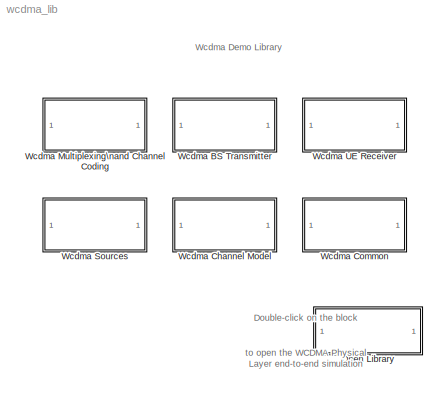
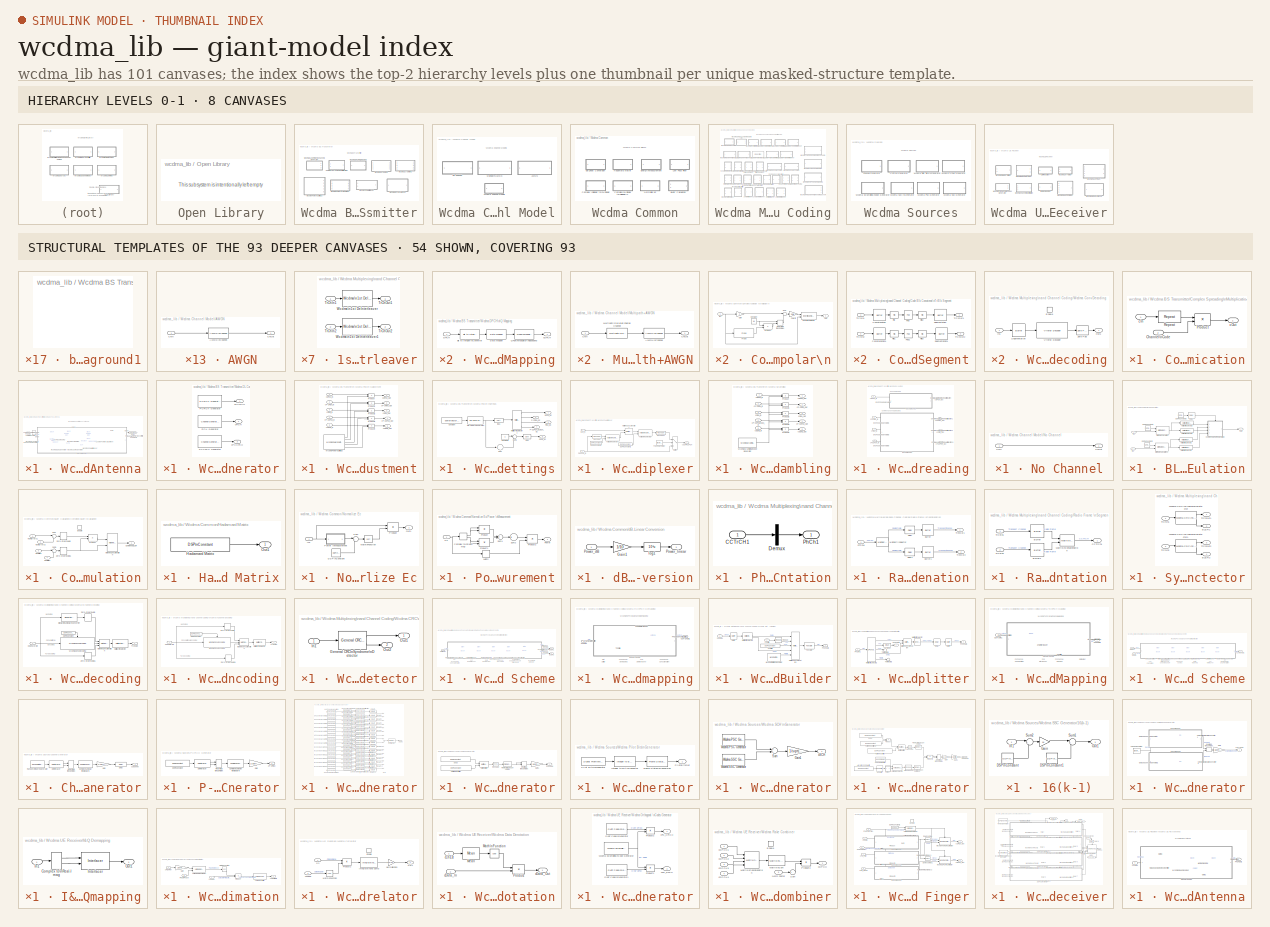
[diagram: thumbnail index - top-2 hierarchy levels (8 canvases) + 54 structural-template representatives of the remaining 93 canvases]
MODEL wcdma_lib
KIND library
BLOCK [SubSystem] Open Library
  EnableExecutionContextPropagation = on
  MaskDisplay = disp('WCDMA PhLayer\\nEnd-to-End\\nSimulation')
  MaskIconFrame = on
  MaskIconOpaque = on
  MaskIconRotate = none
  MaskIconUnits = autoscale
  MinAlgLoopOccurrences = off
  OpenFcn = open('wcdma_phlayer.mdl');
  Ports = []
  ShowPortLabels = off
  TreatAsAtomicUnit = off
BLOCK [SubSystem] Wcdma BS Transmitter
  EnableExecutionContextPropagation = on
  MaskDisplay = disp('Wcdma \\nBS \\nTransmitter');
  MaskIconFrame = on
  MaskIconOpaque = on
  MaskIconRotate = none
  MaskIconUnits = autoscale
  MaskType = Wcdma BS Tx
  MinAlgLoopOccurrences = off
  Ports = []
  TreatAsAtomicUnit = off
BLOCK [SubSystem] Wcdma BS Transmitter/Complex Spreading\nMultiplication
  EnableExecutionContextPropagation = on
  MaskEnableString = on
  MaskIconFrame = on
  MaskIconOpaque = on
  MaskIconRotate = none
  MaskIconUnits = autoscale
  MaskPromptString = Spreading Factor (SF):
  MaskStyleString = edit
  MaskToolTipString = on
  MaskTunableValueString = on
  MaskType = Complex Spreading
  MaskValueString = 256
  MaskVariables = sprdFactor=@1;
  MaskVisibilityString = on
  MinAlgLoopOccurrences = off
  Ports = [2, 1]
  TreatAsAtomicUnit = off
BLOCK [Inport] Wcdma BS Transmitter/Complex Spreading\nMultiplication/Channel\nCode
  IconDisplay = Port number
  LatchInput = off
  Port = 2
BLOCK [Product] Wcdma BS Transmitter/Complex Spreading\nMultiplication/Product
  Ports = [2, 1]
  RndMeth = Floor
BLOCK [Reference] Wcdma BS Transmitter/Complex Spreading\nMultiplication/Repeat  REF=dspsigops/Repeat
  N = sprdFactor
  Ports = [1, 1]
  SourceBlock = dspsigops/Repeat
  SourceType = Repeat
  ic = 0
  mode = Maintain input frame rate
BLOCK [Inport] Wcdma BS Transmitter/Complex Spreading\nMultiplication/cIn
  IconDisplay = Port number
  LatchInput = off
BLOCK [Outport] Wcdma BS Transmitter/Complex Spreading\nMultiplication/cOut
  BusOutputAsStruct = off
  IconDisplay = Port number
BLOCK [SubSystem] Wcdma BS Transmitter/Wcdma BS Tx\nAntenna
  EnableExecutionContextPropagation = on
  MaskCallbackString = ||||||
  MaskDescription = After combining the different transport channels into physical channels, data is sent to the Downlink Base Station Tranmitter Antenna in the form of slots. \n\nAt the Transmitter antenna, data is first spread by a real-value orthogonal signature code for channel separation and then is scrambled by a complex-valued Gold Code Sequence.\n\nFinally other channels that are also transmitted during a con...<+251ch>
  MaskDisplay = disp('Wcdma BS Tx\\nAntenna');
  MaskEnableString = on,on,on,on,on,on,on
  MaskHelp = <p>After combining the different transport channels into physical channels, data is sent to the Downlink Base Station Tranmitter Antenna in the form of slots. </p>\n\n<p>At the Transmitter antenna, data is first spread by a real-value orthogonal signature code for channel separation and then is scrambled by a complex-valued Gold Code Sequence.</p>\n\n<p>Finally other channels that are also transmi...<+445ch>
  MaskIconFrame = on
  MaskIconOpaque = on
  MaskIconRotate = none
  MaskIconUnits = autoscale
  MaskInitialization = if slotFormat < 2\nnumChipsOut = 512;\nelse\nnumChipsOut = 256;\nend\nif(checkparams == 1)\nwcdma_checkparamstxant.m;\nend\n\n
  MaskPromptString = Slot Format (0..16):|DPCH Code number (0..Spreading Factor -1):|Scrambling Code [Scr Code Grup(0..63) Primary Code(0..7)]:|Power for [DPCH, P-CPICH, PICH, P-CCPCH, SCH] in dB:|Number of Filter Taps for RRC filters:|Oversampling Factor:|Check here to validate parameters.
  MaskStyleString = edit,edit,edit,edit,edit,edit,checkbox
  MaskTabNameString = ,,,,,,
  MaskToolTipString = on,on,on,on,on,on,on
  MaskTunableValueString = on,on,on,on,on,on,on
  MaskType = Wcdma BS Tx Antenna
  MaskValueString = 11|123|[63 0]|[-8.8 -10 -15 -12 -12]|96|8|off
  MaskVarAliasString = ,,,,,,
  MaskVariables = slotFormat=@1;dpchCode=@2;scrCode=@3;powerVector=@4;numTapsRRC=@5;overSampling=@6;checkparams=@7;
  MaskVisibilityString = on,on,on,on,on,on,on
  MinAlgLoopOccurrences = off
  Ports = [1, 1]
  TreatAsAtomicUnit = off
BLOCK [Goto] Wcdma BS Transmitter/Wcdma BS Tx\nAntenna/Goto3
  DialogController = Simulink.DDGSource
  GotoTag = DPCH_Tx_sprd
  TagVisibility = global
BLOCK [Goto] Wcdma BS Transmitter/Wcdma BS Tx\nAntenna/Goto4
  DialogController = Simulink.DDGSource
  GotoTag = ToChannel
  TagVisibility = global
BLOCK [Goto] Wcdma BS Transmitter/Wcdma BS Tx\nAntenna/Goto6
  DialogController = Simulink.DDGSource
  GotoTag = DPCH_Tx
  TagVisibility = global
BLOCK [Goto] Wcdma BS Transmitter/Wcdma BS Tx\nAntenna/Goto7
  DialogController = Simulink.DDGSource
  GotoTag = DPCH_Tx_all
  TagVisibility = global
BLOCK [Reference] Wcdma BS Transmitter/Wcdma BS Tx\nAntenna/Parallel to\nSerial2  REF=dspbuff3/Buffer
  N = 2*(numChipsOut/sprdFactor)
  Ports = [1, 1]
  SourceBlock = dspbuff3/Buffer
  SourceType = Buffer
  V = 0
  ic = 0
BLOCK [Inport] Wcdma BS Transmitter/Wcdma BS Tx\nAntenna/PhCHIn1
  IconDisplay = Port number
  LatchInput = off
BLOCK [Outport] Wcdma BS Transmitter/Wcdma BS Tx\nAntenna/PhCHOut1
  BusOutputAsStruct = off
  IconDisplay = Port number
BLOCK [Reference] Wcdma BS Transmitter/Wcdma BS Tx\nAntenna/Raised Cosine\nTransmit Filter  REF=commfilt2/Raised Cosine\nTransmit Filter
  D = floor(numTapsRRC/(overSampling*2))
  N = overSampling
  Ports = [1, 1]
  R = 0.22
  SourceBlock = commfilt2/Raised Cosine\nTransmit Filter
  SourceType = Raised Cosine Trasmit Filter
  checkCoeff = off
  checkGain = User-specified
  filtType = Square root
  filterGain = sqrt(overSampling)
  sampMode = Frame-based
  variableName = rcTxFilt
BLOCK [Sum] Wcdma BS Transmitter/Wcdma BS Tx\nAntenna/Sum
  Inputs = +++++
  Ports = [5, 1]
BLOCK [Reference] Wcdma BS Transmitter/Wcdma BS Tx\nAntenna/Wcdma DL Common \nChannels Generator  REF=wcdma_lib/Wcdma BS Transmitter/Wcdma DL Common \nChannels Generator  (lib defined in mdl_415921f2943f)
  Ports = [0, 3]
  SourceBlock = wcdma_lib/Wcdma BS Transmitter/Wcdma DL Common \nChannels Generator
  SourceType = Wcdma DL Common Channels Generator
  antenna = 1
  numSymbOut = numChipsOut/256
  st = 1/15e3
BLOCK [Reference] Wcdma BS Transmitter/Wcdma BS Tx\nAntenna/Wcdma DPCH\nIQ Mapping  REF=wcdma_lib/Wcdma BS Transmitter/Wcdma DPCH\nIQ Mapping  (lib defined in mdl_415921f2943f)
  Ports = [1, 1]
  SourceBlock = wcdma_lib/Wcdma BS Transmitter/Wcdma DPCH\nIQ Mapping
  SourceType = Wcdma DPCH Spreading
BLOCK [Reference] Wcdma BS Transmitter/Wcdma BS Tx\nAntenna/Wcdma OCNS Generator  REF=wcdma_lib/Wcdma Sources/Wcdma OCNS Generator  (lib defined in mdl_415921f2943f)
  Ports = [0, 1]
  SourceBlock = wcdma_lib/Wcdma Sources/Wcdma OCNS Generator
  SourceType = Wcdma OCNS Generator
  numSymbOut = numChipsOut/256
  sprdFactor = 256
  st = 1/15e3
BLOCK [Reference] Wcdma BS Transmitter/Wcdma BS Tx\nAntenna/Wcdma Power\nAdjustment  REF=wcdma_lib/Wcdma BS Transmitter/Wcdma Power\nAdjustment  (lib defined in mdl_415921f2943f)
  Ports = [5, 5]
  SourceBlock = wcdma_lib/Wcdma BS Transmitter/Wcdma Power\nAdjustment
  SourceType = Wcdma Power Adjustment
  powerVector = powerVector
BLOCK [Reference] Wcdma BS Transmitter/Wcdma BS Tx\nAntenna/Wcdma SCH Multiplexer  REF=wcdma_lib/Wcdma BS Transmitter/Wcdma SCH Multiplexer  (lib defined in mdl_415921f2943f)
  Ports = [2, 1]
  SourceBlock = wcdma_lib/Wcdma BS Transmitter/Wcdma SCH Multiplexer
  SourceType = Wcdma SCH Multiplexer
  numChipsOut = numChipsOut
BLOCK [Reference] Wcdma BS Transmitter/Wcdma BS Tx\nAntenna/Wcdma SCH \nGenerator  REF=wcdma_lib/Wcdma Sources/Wcdma SCH \nGenerator  (lib defined in mdl_415921f2943f)
  Ports = [0, 1]
  SourceBlock = wcdma_lib/Wcdma Sources/Wcdma SCH \nGenerator
  SourceType = Wcdma SCH Generator
  a_sch = 1
  scrGroup = scrCode(1)
BLOCK [Reference] Wcdma BS Transmitter/Wcdma BS Tx\nAntenna/Wcdma Scrambling  REF=wcdma_lib/Wcdma BS Transmitter/Wcdma Scrambling  (lib defined in mdl_415921f2943f)
  Ports = [5, 5]
  SourceBlock = wcdma_lib/Wcdma BS Transmitter/Wcdma Scrambling
  SourceType = Wcdma Scrambling
  numChipsOut = numChipsOut
  scrCode = scrCode
BLOCK [Reference] Wcdma BS Transmitter/Wcdma BS Tx\nAntenna/Wcdma Spreading  REF=wcdma_lib/Wcdma BS Transmitter/Wcdma Spreading  (lib defined in mdl_415921f2943f)
  Ports = [4, 4]
  SourceBlock = wcdma_lib/Wcdma BS Transmitter/Wcdma Spreading
  SourceType = Wcdma Spreading
  codeVector = [0 4 1]
  dpchCode = dpchCode
  numChipsOut = numChipsOut
  sprdFactor = sprdFactor
BLOCK [SubSystem] Wcdma BS Transmitter/Wcdma BS Tx\nAntenna/background1
  EnableExecutionContextPropagation = on
  MaskDisplay = disp('')
  MaskIconFrame = on
  MaskIconOpaque = on
  MaskIconRotate = none
  MaskIconUnits = autoscale
  MinAlgLoopOccurrences = off
  Ports = []
  TreatAsAtomicUnit = off
BLOCK [SubSystem] Wcdma BS Transmitter/Wcdma DL Common \nChannels Generator
  EnableExecutionContextPropagation = on
  MaskCallbackString = ||
  MaskDescription = This block generates P-CPICH (Primary Common Pilot Generator), PICH (Paging Indicator Channel) and P-CCPCH (Primary-Common Control Physical Channel).
  MaskEnableString = on,on,on
  MaskIconFrame = on
  MaskIconOpaque = on
  MaskIconRotate = none
  MaskIconUnits = autoscale
  MaskPromptString = Select Antenna (1-2):|Number of Symbols per Output:|Symbol Time (Ts):
  MaskStyleString = edit,edit,edit
  MaskTabNameString = ,,
  MaskToolTipString = on,on,on
  MaskTunableValueString = on,on,on
  MaskType = Wcdma DL Common Channels Generator
  MaskValueString = 1|1|1/15e3
  MaskVarAliasString = ,,
  MaskVariables = antenna=@1;numSymbOut=@2;st=@3;
  MaskVisibilityString = on,on,on
  MinAlgLoopOccurrences = off
  Ports = [0, 3]
  TreatAsAtomicUnit = off
BLOCK [Reference] Wcdma BS Transmitter/Wcdma DL Common \nChannels Generator/P-CCPCH Generator  REF=wcdma_lib/Wcdma Sources/Channel Generator  (lib defined in mdl_415921f2943f)
  Ports = [0, 1]
  SourceBlock = wcdma_lib/Wcdma Sources/Channel Generator
  SourceType = Channel Generator
  initDelay = 0
  numSymbOut = numSymbOut
  rndSeed = 98765
  st = st
BLOCK [Reference] Wcdma BS Transmitter/Wcdma DL Common \nChannels Generator/P-CPICH Generator  REF=wcdma_lib/Wcdma Sources/P-CPICH Generator  (lib defined in mdl_415921f2943f)
  Ports = [0, 1]
  SourceBlock = wcdma_lib/Wcdma Sources/P-CPICH Generator
  SourceType = Wcdma P-CPICH Generator
  antenna = antenna
  numSymbOut = numSymbOut
  st = st
BLOCK [Reference] Wcdma BS Transmitter/Wcdma DL Common \nChannels Generator/PICH Generator  REF=wcdma_lib/Wcdma Sources/Channel Generator  (lib defined in mdl_415921f2943f)
  Ports = [0, 1]
  SourceBlock = wcdma_lib/Wcdma Sources/Channel Generator
  SourceType = Channel Generator
  initDelay = 0
  numSymbOut = numSymbOut
  rndSeed = 12345
  st = st
BLOCK [Outport] Wcdma BS Transmitter/Wcdma DL Common \nChannels Generator/cP-CCPCH
  BusOutputAsStruct = off
  IconDisplay = Port number
  Port = 3
BLOCK [Outport] Wcdma BS Transmitter/Wcdma DL Common \nChannels Generator/cP-CPICH
  BusOutputAsStruct = off
  IconDisplay = Port number
BLOCK [Outport] Wcdma BS Transmitter/Wcdma DL Common \nChannels Generator/cPICH
  BusOutputAsStruct = off
  IconDisplay = Port number
  Port = 2
BLOCK [SubSystem] Wcdma BS Transmitter/Wcdma DPCH\nIQ Mapping
  EnableExecutionContextPropagation = on
  MaskDescription = Each pair of DPCH bits is serial-to-parallel converted and mapped to an I and Q branch. Even numbered symbols are mapped to I branch whereas odd numbered are mapped to Q branch.
  MaskDisplay = disp('DPCH IQ \\nMapping')
  MaskIconFrame = on
  MaskIconOpaque = on
  MaskIconRotate = none
  MaskIconUnits = autoscale
  MaskType = Wcdma DPCH Spreading
  MinAlgLoopOccurrences = off
  Ports = [1, 1]
  TreatAsAtomicUnit = off
BLOCK [Reference] Wcdma BS Transmitter/Wcdma DPCH\nIQ Mapping/Bit to Integer\nConverter  REF=commutil2/Bit to Integer\nConverter
  Ports = [1, 1]
  SourceBlock = commutil2/Bit to Integer\nConverter
  SourceType = Bit to Integer Converter
  nbits = 2
BLOCK [Inport] Wcdma BS Transmitter/Wcdma DPCH\nIQ Mapping/DPCH
  IconDisplay = Port number
  LatchInput = off
BLOCK [Reference] Wcdma BS Transmitter/Wcdma DPCH\nIQ Mapping/Data Mapper  REF=commutil2/Data Mapper
  M = 4
  MapMode = User Defined
  MapVec = [0 3 1 2]
  Ports = [1, 1]
  SourceBlock = commutil2/Data Mapper
  SourceType = Data Mapper
BLOCK [Reference] Wcdma BS Transmitter/Wcdma DPCH\nIQ Mapping/QPSK\nModulator\nBaseband  REF=commdigbbndpm2/QPSK\nModulator\nBaseband
  Enc = Binary
  InType = Integer
  Ph = pi/4
  Ports = [1, 1]
  SourceBlock = commdigbbndpm2/QPSK\nModulator\nBaseband
  SourceType = QPSK Modulator Baseband
  numSamp = 1
BLOCK [Outport] Wcdma BS Transmitter/Wcdma DPCH\nIQ Mapping/cDPCH
  BusOutputAsStruct = off
  IconDisplay = Port number
BLOCK [SubSystem] Wcdma BS Transmitter/Wcdma Power\nAdjustment
  EnableExecutionContextPropagation = on
  MaskDescription = Using the power gains specified on the mask of the block, applies the corresponding weight to the different channels. \n\nThe power settings for the OCNS are such that the total transmit power spectral density of the Node B adds to one, as is specified in Annex C of the 3GPP TS. 25.101 document.
  MaskDisplay = disp('Wcdma\\nPower\\n Adjustment');
  MaskEnableString = on
  MaskIconFrame = on
  MaskIconOpaque = on
  MaskIconRotate = none
  MaskIconUnits = autoscale
  MaskPromptString = Power for [DPCH, P-CPICH, PICH, P-CCPCH, SCH] in dB:
  MaskStyleString = edit
  MaskToolTipString = on
  MaskTunableValueString = on
  MaskType = Wcdma Power Adjustment
  MaskValueString = powerVector
  MaskVariables = powerVector=@1;
  MaskVisibilityString = on
  MinAlgLoopOccurrences = off
  Ports = [5, 5]
  TreatAsAtomicUnit = off
BLOCK [Product] Wcdma BS Transmitter/Wcdma Power\nAdjustment/Product
  Ports = [2, 1]
  RndMeth = Floor
BLOCK [Product] Wcdma BS Transmitter/Wcdma Power\nAdjustment/Product1
  Ports = [2, 1]
  RndMeth = Floor
BLOCK [Product] Wcdma BS Transmitter/Wcdma Power\nAdjustment/Product2
  Ports = [2, 1]
  RndMeth = Floor
BLOCK [Product] Wcdma BS Transmitter/Wcdma Power\nAdjustment/Product3
  Ports = [2, 1]
  RndMeth = Floor
BLOCK [Product] Wcdma BS Transmitter/Wcdma Power\nAdjustment/Product4
  Ports = [2, 1]
  RndMeth = Floor
BLOCK [Reference] Wcdma BS Transmitter/Wcdma Power\nAdjustment/Wcdma Power\nSettings  REF=wcdma_lib/Wcdma BS Transmitter/Wcdma Power\nSettings  (lib defined in mdl_415921f2943f)
  Ports = [0, 5]
  SourceBlock = wcdma_lib/Wcdma BS Transmitter/Wcdma Power\nSettings
  SourceType = Wcdma Power Settings
  powerVector = powerVector
BLOCK [Inport] Wcdma BS Transmitter/Wcdma Power\nAdjustment/cDPCH_In
  IconDisplay = Port number
  LatchInput = off
BLOCK [Outport] Wcdma BS Transmitter/Wcdma Power\nAdjustment/cDPCH_Out
  BusOutputAsStruct = off
  IconDisplay = Port number
BLOCK [Inport] Wcdma BS Transmitter/Wcdma Power\nAdjustment/cOCNS_In
  IconDisplay = Port number
  LatchInput = off
  Port = 5
BLOCK [Outport] Wcdma BS Transmitter/Wcdma Power\nAdjustment/cOCNS_Out
  BusOutputAsStruct = off
  IconDisplay = Port number
  Port = 5
BLOCK [Inport] Wcdma BS Transmitter/Wcdma Power\nAdjustment/cP-CCPCH_In
  IconDisplay = Port number
  LatchInput = off
  Port = 4
BLOCK [Outport] Wcdma BS Transmitter/Wcdma Power\nAdjustment/cP-CCPCH_Out
  BusOutputAsStruct = off
  IconDisplay = Port number
  Port = 4
BLOCK [Inport] Wcdma BS Transmitter/Wcdma Power\nAdjustment/cP-CPICH_In
  IconDisplay = Port number
  LatchInput = off
  Port = 2
BLOCK [Outport] Wcdma BS Transmitter/Wcdma Power\nAdjustment/cP-CPICH_Out
  BusOutputAsStruct = off
  IconDisplay = Port number
  Port = 2
BLOCK [Inport] Wcdma BS Transmitter/Wcdma Power\nAdjustment/cPICH_In
  IconDisplay = Port number
  LatchInput = off
  Port = 3
BLOCK [Outport] Wcdma BS Transmitter/Wcdma Power\nAdjustment/cPICH_Out
  BusOutputAsStruct = off
  IconDisplay = Port number
  Port = 3
BLOCK [SubSystem] Wcdma BS Transmitter/Wcdma Power\nSettings
  EnableExecutionContextPropagation = on
  MaskEnableString = on
  MaskIconFrame = on
  MaskIconOpaque = on
  MaskIconRotate = none
  MaskIconUnits = autoscale
  MaskPromptString = Power for [DPCH, P-CPICH, PICH, P-CCPCH, SCH] in dB:
  MaskStyleString = edit
  MaskToolTipString = on
  MaskTunableValueString = on
  MaskType = Wcdma Power Settings
  MaskValueString = powerVector
  MaskVariables = powerVector=@1;
  MaskVisibilityString = on
  MinAlgLoopOccurrences = off
  Ports = [0, 5]
  TreatAsAtomicUnit = off
BLOCK [Constant] Wcdma BS Transmitter/Wcdma Power\nSettings/Constant
  Value = powerVector(1:4)'
  VectorParams1D = off
BLOCK [Constant] Wcdma BS Transmitter/Wcdma Power\nSettings/Constant1
BLOCK [Outport] Wcdma BS Transmitter/Wcdma Power\nSettings/DPCH_Ec
  BusOutputAsStruct = off
  IconDisplay = Port number
BLOCK [Reference] Wcdma BS Transmitter/Wcdma Power\nSettings/Multiport\nSelector1  REF=dspindex/Multiport\nSelector
  Ports = [1, 4]
  SourceBlock = dspindex/Multiport\nSelector
  SourceType = Multiport Selector
  idxCellArray = {1,2,3, 4}
  idxErrMode = Clip and Warn
  rowsOrCols = Rows
BLOCK [Outport] Wcdma BS Transmitter/Wcdma Power\nSettings/OCNS_Ec
  BusOutputAsStruct = off
  IconDisplay = Port number
  Port = 5
BLOCK [Outport] Wcdma BS Transmitter/Wcdma Power\nSettings/P-CCPCH_Ec//SCH_Ec
  BusOutputAsStruct = off
  IconDisplay = Port number
  Port = 4
BLOCK [Outport] Wcdma BS Transmitter/Wcdma Power\nSettings/P-CPICH_Ec
  BusOutputAsStruct = off
  IconDisplay = Port number
  Port = 2
BLOCK [Outport] Wcdma BS Transmitter/Wcdma Power\nSettings/PICH_Ec
  BusOutputAsStruct = off
  IconDisplay = Port number
  Port = 3
BLOCK [Sum] Wcdma BS Transmitter/Wcdma Power\nSettings/Sum
  IconShape = round
  Inputs = +
  Ports = [1, 1]
BLOCK [Sum] Wcdma BS Transmitter/Wcdma Power\nSettings/Sum1
  IconShape = round
  Inputs = |+-
  Ports = [2, 1]
BLOCK [Reference] Wcdma BS Transmitter/Wcdma Power\nSettings/dB-Linear Conversion  REF=wcdma_lib/Wcdma Common/dB-Linear Conversion  (lib defined in mdl_415921f2943f)
  Ports = [1, 1]
  SourceBlock = wcdma_lib/Wcdma Common/dB-Linear Conversion
  SourceType = dB Conversion
BLOCK [Math] Wcdma BS Transmitter/Wcdma Power\nSettings/log1
  Operator = sqrt
  Ports = [1, 1]
BLOCK [Math] Wcdma BS Transmitter/Wcdma Power\nSettings/log5
  Operator = sqrt
  Ports = [1, 1]
BLOCK [SubSystem] Wcdma BS Transmitter/Wcdma SCH Multiplexer
  EnableExecutionContextPropagation = on
  MaskDescription = Perform SCH multiplexing according to TS 25.211. The Primary CCPCH is not transmitted during the first 256 chips of each slot. Instead Primary and Secondary SCH are transmitted during this period..
  MaskEnableString = on
  MaskIconFrame = on
  MaskIconOpaque = on
  MaskIconRotate = none
  MaskIconUnits = autoscale
  MaskInitialization = numSymbOut = numChipsOut/256;
  MaskPromptString = Number of Chips per Output:
  MaskStyleString = edit
  MaskToolTipString = on
  MaskTunableValueString = on
  MaskType = Wcdma SCH Multiplexer
  MaskValueString = numSymbOut*256
  MaskVariables = numChipsOut=@1;
  MaskVisibilityString = on
  MinAlgLoopOccurrences = off
  Ports = [2, 1]
  TreatAsAtomicUnit = off
BLOCK [Reference] Wcdma BS Transmitter/Wcdma SCH Multiplexer/DSP\nConstant1  REF=dspsrcs4/DSP\nConstant
  FramebasedOutput = off
  InterpretAs1D = off
  Ports = [0, 1]
  SampleMode = Discrete
  SourceBlock = dspsrcs4/DSP\nConstant
  SourceType = DSP Constant
  Ts = numSymbOut/15e3
  Value = numSymbOut
BLOCK [Reference] Wcdma BS Transmitter/Wcdma SCH Multiplexer/DSP\nConstant2  REF=dspsrcs4/DSP\nConstant
  FramebasedOutput = off
  InterpretAs1D = off
  Ports = [0, 1]
  SampleMode = Discrete
  SourceBlock = dspsrcs4/DSP\nConstant
  SourceType = DSP Constant
  Ts = numSymbOut/15e3
  Value = [1:numSymbOut]
BLOCK [Reference] Wcdma BS Transmitter/Wcdma SCH Multiplexer/Matrix\nConcatenation  REF=simulink/Math\nOperations/Matrix\nConcatenation
  Ports = [2, 1]
  SourceBlock = simulink/Math\nOperations/Matrix\nConcatenation
  SourceType = Matrix Concatenation
  catMethod = Horizontal
  numInports = 2
BLOCK [Inport] Wcdma BS Transmitter/Wcdma SCH Multiplexer/P-CCPCH_In
  IconDisplay = Port number
  LatchInput = off
BLOCK [DiscretePulseGenerator] Wcdma BS Transmitter/Wcdma SCH Multiplexer/Pulse\nGenerator
  Period = 10/numSymbOut
  Ports = [0, 1]
  SampleTime = numSymbOut/15e3
BLOCK [Reference] Wcdma BS Transmitter/Wcdma SCH Multiplexer/Reshape  REF=simulink/Math\nOperations/Reshape
  OutputDimensionality = Customize
  OutputDimensions = [256,numSymbOut]
  Ports = [1, 1]
  SourceBlock = simulink/Math\nOperations/Reshape
  SourceType = Reshape
BLOCK [Reference] Wcdma BS Transmitter/Wcdma SCH Multiplexer/Reshape1  REF=simulink/Math\nOperations/Reshape
  OutputDimensionality = Customize
  OutputDimensions = [256*numSymbOut,1]
  Ports = [1, 1]
  SourceBlock = simulink/Math\nOperations/Reshape
  SourceType = Reshape
BLOCK [Inport] Wcdma BS Transmitter/Wcdma SCH Multiplexer/SCH_In
  IconDisplay = Port number
  LatchInput = off
  Port = 2
BLOCK [Switch] Wcdma BS Transmitter/Wcdma SCH Multiplexer/Switch
  SaturateOnIntegerOverflow = off
  Threshold = 0.5
BLOCK [Reference] Wcdma BS Transmitter/Wcdma SCH Multiplexer/Variable\nSelector  REF=dspindex/Variable\nSelector
  Elements = [1 3]
  IdxMode = Variable
  Ports = [2, 1]
  SourceBlock = dspindex/Variable\nSelector
  SourceType = Variable Selector
  ZerOneIdxMode = One-based
  errmode = Clip Index
  rowsOrCols = Columns
BLOCK [Reference] Wcdma BS Transmitter/Wcdma SCH Multiplexer/Variable\nSelector1  REF=dspindex/Variable\nSelector
  Elements = [1 3]
  IdxMode = Variable
  Ports = [2, 1]
  SourceBlock = dspindex/Variable\nSelector
  SourceType = Variable Selector
  ZerOneIdxMode = One-based
  errmode = Clip Index
  rowsOrCols = Columns
BLOCK [Outport] Wcdma BS Transmitter/Wcdma SCH Multiplexer/cSCH//PCCPCH
  BusOutputAsStruct = off
  IconDisplay = Port number
BLOCK [SubSystem] Wcdma BS Transmitter/Wcdma Scrambling
  EnableExecutionContextPropagation = on
  MaskCallbackString = |
  MaskDescription = Performs scrambling of the complex-valued input signal using a long Gold Code Sequence whose period is truncated to 10 ms. The same sequence is used by all the channels in the cell.
  MaskDisplay = disp('Wcdma\\nScrambling');
  MaskEnableString = on,on
  MaskIconFrame = on
  MaskIconOpaque = on
  MaskIconRotate = none
  MaskIconUnits = autoscale
  MaskPromptString = Scrambling Code [Scr Code Grup(0..63) Primary Code(0..7)]:|Number of Chips per Output:
  MaskStyleString = edit,edit
  MaskTabNameString = ,
  MaskToolTipString = on,on
  MaskTunableValueString = on,on
  MaskType = Wcdma Scrambling
  MaskValueString = [0 0]|256
  MaskVarAliasString = ,
  MaskVariables = scrCode=@1;numChipsOut=@2;
  MaskVisibilityString = on,on
  MinAlgLoopOccurrences = off
  Ports = [5, 5]
  TreatAsAtomicUnit = off
BLOCK [Product] Wcdma BS Transmitter/Wcdma Scrambling/Product
  Ports = [2, 1]
  RndMeth = Floor
BLOCK [Product] Wcdma BS Transmitter/Wcdma Scrambling/Product1
  Ports = [2, 1]
  RndMeth = Floor
BLOCK [Product] Wcdma BS Transmitter/Wcdma Scrambling/Product2
  Ports = [2, 1]
  RndMeth = Floor
BLOCK [Product] Wcdma BS Transmitter/Wcdma Scrambling/Product3
  Ports = [2, 1]
  RndMeth = Floor
BLOCK [Product] Wcdma BS Transmitter/Wcdma Scrambling/Product4
  Ports = [2, 1]
  RndMeth = Floor
BLOCK [Reference] Wcdma BS Transmitter/Wcdma Scrambling/Wcdma Scrambling\nCode Generator  REF=wcdma_lib/Wcdma Sources/Wcdma Scrambling\nCode Generator  (lib defined in mdl_415921f2943f)
  Ports = [0, 1]
  SourceBlock = wcdma_lib/Wcdma Sources/Wcdma Scrambling\nCode Generator
  SourceType = Wcdma Scr Code Generator
  chipRate = 3.84e6
  numChipsOut = numChipsOut
  scrCode = scrCode
BLOCK [Inport] Wcdma BS Transmitter/Wcdma Scrambling/cDPCH_In
  IconDisplay = Port number
  LatchInput = off
BLOCK [Outport] Wcdma BS Transmitter/Wcdma Scrambling/cDPCH_Out
  BusOutputAsStruct = off
  IconDisplay = Port number
BLOCK [Inport] Wcdma BS Transmitter/Wcdma Scrambling/cOCNS_In
  IconDisplay = Port number
  LatchInput = off
  Port = 5
BLOCK [Outport] Wcdma BS Transmitter/Wcdma Scrambling/cOCNS_Out
  BusOutputAsStruct = off
  IconDisplay = Port number
  Port = 5
BLOCK [Inport] Wcdma BS Transmitter/Wcdma Scrambling/cP-CCPCH//cSCH_In
  IconDisplay = Port number
  LatchInput = off
  Port = 4
BLOCK [Outport] Wcdma BS Transmitter/Wcdma Scrambling/cP-CCPCH_Out
  BusOutputAsStruct = off
  IconDisplay = Port number
  Port = 4
BLOCK [Inport] Wcdma BS Transmitter/Wcdma Scrambling/cP-CPICH_In
  IconDisplay = Port number
  LatchInput = off
  Port = 2
BLOCK [Outport] Wcdma BS Transmitter/Wcdma Scrambling/cP-CPICH_Out
  BusOutputAsStruct = off
  IconDisplay = Port number
  Port = 2
BLOCK [Inport] Wcdma BS Transmitter/Wcdma Scrambling/cPICH_In
  IconDisplay = Port number
  LatchInput = off
  Port = 3
BLOCK [Outport] Wcdma BS Transmitter/Wcdma Scrambling/cPICH_Out
  BusOutputAsStruct = off
  IconDisplay = Port number
  Port = 3
BLOCK [SubSystem] Wcdma BS Transmitter/Wcdma Spreading
  EnableExecutionContextPropagation = on
  MaskCallbackString = |||
  MaskDescription = Performs spreading (also referred as channelization) of the complex-valuee input sequence by a real-valued orthogonal sequence whose indices are set on the mask of the block. \n\nThis operation transform every symbol of data into a given number of chips. The number of chips per symbol is called Spreading Factor. \n\nThe orthogonal codes specified by 3GPP TS 25.213 are Orthogonal Variable Spreading...<+21ch>
  MaskDisplay = disp('Wcdma\\nSpreading')
  MaskEnableString = on,on,on,on
  MaskIconFrame = on
  MaskIconOpaque = on
  MaskIconRotate = none
  MaskIconUnits = autoscale
  MaskPromptString = DPCH Spreading Factor :|DPCH Code number :|Common Channels Code Number Vector (P-CPICH, PICH, P-CCPCH)|Number of Chips per Output:
  MaskSelfModifiable = on
  MaskStyleString = edit,edit,edit,edit
  MaskTabNameString = ,,,
  MaskToolTipString = on,on,on,on
  MaskTunableValueString = on,on,on,on
  MaskType = Wcdma Spreading
  MaskValueString = 256|256-1|[0 4 1]|256
  MaskVarAliasString = ,,,
  MaskVariables = sprdFactor=@1;dpchCode=@2;codeVector=@3;numChipsOut=@4;
  MaskVisibilityString = on,on,on,on
  MinAlgLoopOccurrences = off
  Ports = [4, 4]
  TreatAsAtomicUnit = off
BLOCK [Reference] Wcdma BS Transmitter/Wcdma Spreading/Complex Spreading\nMultiplication  REF=wcdma_lib/Wcdma BS Transmitter/Complex Spreading\nMultiplication  (lib defined in mdl_415921f2943f)
  Ports = [2, 1]
  SourceBlock = wcdma_lib/Wcdma BS Transmitter/Complex Spreading\nMultiplication
  SourceType = Complex Spreading
  sprdFactor = sprdFactor
BLOCK [Reference] Wcdma BS Transmitter/Wcdma Spreading/Complex Spreading\nMultiplication1  REF=wcdma_lib/Wcdma BS Transmitter/Complex Spreading\nMultiplication  (lib defined in mdl_415921f2943f)
  Ports = [2, 1]
  SourceBlock = wcdma_lib/Wcdma BS Transmitter/Complex Spreading\nMultiplication
  SourceType = Complex Spreading
  sprdFactor = 256
BLOCK [Reference] Wcdma BS Transmitter/Wcdma Spreading/Complex Spreading\nMultiplication2  REF=wcdma_lib/Wcdma BS Transmitter/Complex Spreading\nMultiplication  (lib defined in mdl_415921f2943f)
  Ports = [2, 1]
  SourceBlock = wcdma_lib/Wcdma BS Transmitter/Complex Spreading\nMultiplication
  SourceType = Complex Spreading
  sprdFactor = 256
BLOCK [Reference] Wcdma BS Transmitter/Wcdma Spreading/Complex Spreading\nMultiplication3  REF=wcdma_lib/Wcdma BS Transmitter/Complex Spreading\nMultiplication  (lib defined in mdl_415921f2943f)
  Ports = [2, 1]
  SourceBlock = wcdma_lib/Wcdma BS Transmitter/Complex Spreading\nMultiplication
  SourceType = Complex Spreading
  sprdFactor = 256
BLOCK [Reference] Wcdma BS Transmitter/Wcdma Spreading/OVSF Code\nGenerator  REF=commseqgen2/OVSF Code\nGenerator
  Ports = [0, 1]
  SourceBlock = commseqgen2/OVSF Code\nGenerator
  SourceType = OVSF Code Generator
  frameBased = on
  index = dpchCode
  sampPerFrame = numChipsOut
  spreadFact = sprdFactor
  ts = (numChipsOut/256)/15e3
BLOCK [Reference] Wcdma BS Transmitter/Wcdma Spreading/OVSF Code\nGenerator1  REF=commseqgen2/OVSF Code\nGenerator
  Ports = [0, 1]
  SourceBlock = commseqgen2/OVSF Code\nGenerator
  SourceType = OVSF Code Generator
  frameBased = on
  index = codeVector(1)
  sampPerFrame = numChipsOut
  spreadFact = 256
  ts = (numChipsOut/256)/15e3
BLOCK [Reference] Wcdma BS Transmitter/Wcdma Spreading/OVSF Code\nGenerator2  REF=commseqgen2/OVSF Code\nGenerator
  Ports = [0, 1]
  SourceBlock = commseqgen2/OVSF Code\nGenerator
  SourceType = OVSF Code Generator
  frameBased = on
  index = codeVector(2)
  sampPerFrame = numChipsOut
  spreadFact = 256
  ts = (numChipsOut/256)/15e3
BLOCK [Reference] Wcdma BS Transmitter/Wcdma Spreading/OVSF Code\nGenerator3  REF=commseqgen2/OVSF Code\nGenerator
  Ports = [0, 1]
  SourceBlock = commseqgen2/OVSF Code\nGenerator
  SourceType = OVSF Code Generator
  frameBased = on
  index = codeVector(3)
  sampPerFrame = numChipsOut
  spreadFact = 256
  ts = (numChipsOut/256)/15e3
BLOCK [SubSystem] Wcdma BS Transmitter/Wcdma Spreading/background1
  EnableExecutionContextPropagation = on
  MaskDisplay = disp('')
  MaskIconFrame = on
  MaskIconOpaque = on
  MaskIconRotate = none
  MaskIconUnits = autoscale
  MinAlgLoopOccurrences = off
  Ports = []
  TreatAsAtomicUnit = off
BLOCK [SubSystem] Wcdma BS Transmitter/Wcdma Spreading/background2
  EnableExecutionContextPropagation = on
  MaskDisplay = disp('')
  MaskIconFrame = on
  MaskIconOpaque = on
  MaskIconRotate = none
  MaskIconUnits = autoscale
  MinAlgLoopOccurrences = off
  Ports = []
  TreatAsAtomicUnit = off
BLOCK [Inport] Wcdma BS Transmitter/Wcdma Spreading/cDPCH_In
  IconDisplay = Port number
  LatchInput = off
BLOCK [Outport] Wcdma BS Transmitter/Wcdma Spreading/cDPCH_Out
  BusOutputAsStruct = off
  IconDisplay = Port number
BLOCK [Inport] Wcdma BS Transmitter/Wcdma Spreading/cPCCPCH_In
  IconDisplay = Port number
  LatchInput = off
  Port = 4
BLOCK [Outport] Wcdma BS Transmitter/Wcdma Spreading/cPCCPCH_Out
  BusOutputAsStruct = off
  IconDisplay = Port number
  Port = 4
BLOCK [Outport] Wcdma BS Transmitter/Wcdma Spreading/cPCIH_Out
  BusOutputAsStruct = off
  IconDisplay = Port number
  Port = 3
BLOCK [Inport] Wcdma BS Transmitter/Wcdma Spreading/cPCPICH_In
  IconDisplay = Port number
  LatchInput = off
  Port = 2
BLOCK [Outport] Wcdma BS Transmitter/Wcdma Spreading/cPCPICH_Out
  BusOutputAsStruct = off
  IconDisplay = Port number
  Port = 2
BLOCK [Inport] Wcdma BS Transmitter/Wcdma Spreading/cPICH_In
  IconDisplay = Port number
  LatchInput = off
  Port = 3
BLOCK [SubSystem] Wcdma Channel Model
  EnableExecutionContextPropagation = on
  MaskDisplay = disp('Wcdma \\nChannel Model');
  MaskIconFrame = on
  MaskIconOpaque = on
  MaskIconRotate = none
  MaskIconUnits = autoscale
  MaskType = Wcdma Common
  MinAlgLoopOccurrences = off
  Ports = []
  TreatAsAtomicUnit = off
BLOCK [SubSystem] Wcdma Channel Model/AWGN
  EnableExecutionContextPropagation = on
  MaskDisplay = disp('Wcdma Channel Model:\\nAWGN Channel');
  MaskIconFrame = on
  MaskIconOpaque = on
  MaskIconRotate = none
  MaskIconUnits = autoscale
  MinAlgLoopOccurrences = off
  Ports = [1, 1]
  TreatAsAtomicUnit = off
BLOCK [Reference] Wcdma Channel Model/AWGN/AWGN\nChannel  REF=commchan2/AWGN\nChannel
  EsNodB = snrdB
  Ports = [1, 1]
  Ps = 1
  SNRdB = snrdB
  SourceBlock = commchan2/AWGN\nChannel
  SourceType = AWGN Channel
  Tsym = 1/3.84e6
  noiseMode = Signal to noise ratio  (Es/No)
  seed = 1237
  variance = 1
BLOCK [Inport] Wcdma Channel Model/AWGN/ChIn
  IconDisplay = Port number
  LatchInput = off
BLOCK [Outport] Wcdma Channel Model/AWGN/ChOut
  BusOutputAsStruct = off
  IconDisplay = Port number
BLOCK [SubSystem] Wcdma Channel Model/Multipath+AWGN
  EnableExecutionContextPropagation = on
  MaskDisplay = disp('Wcdma Channel Model:\\nMultipath-AWGN Channel');
  MaskIconFrame = on
  MaskIconOpaque = on
  MaskIconRotate = none
  MaskIconUnits = autoscale
  MinAlgLoopOccurrences = off
  Ports = [1, 1]
  TreatAsAtomicUnit = off
BLOCK [Reference] Wcdma Channel Model/Multipath+AWGN/AWGN\nChannel  REF=commchan2/AWGN\nChannel
  EsNodB = snrdB
  Ports = [1, 1]
  Ps = 1
  SNRdB = snrdB
  SourceBlock = commchan2/AWGN\nChannel
  SourceType = AWGN Channel
  Tsym = 1/3.84e6
  noiseMode = Signal to noise ratio  (Es/No)
  seed = 1237
  variance = 1
BLOCK [Inport] Wcdma Channel Model/Multipath+AWGN/ChIn
  IconDisplay = Port number
  LatchInput = off
BLOCK [Outport] Wcdma Channel Model/Multipath+AWGN/ChOut
  BusOutputAsStruct = off
  IconDisplay = Port number
BLOCK [Reference] Wcdma Channel Model/Multipath+AWGN/Multipath Rayleigh Fading Channel  REF=commchan2/Multipath Rayleigh\nFading Channel
  Fd = dopplerFreq
  Ports = [1, 1]
  Seed = 12345
  SourceBlock = commchan2/Multipath Rayleigh\nFading Channel
  SourceType = Multipath Rayleigh Fading Channel
  delayVec = fingerPhases
  gainVecdB = fingerPowers
  normGain = off
  simTs = 1/(overSampling*3.84e6)
BLOCK [SubSystem] Wcdma Channel Model/No Channel
  EnableExecutionContextPropagation = on
  MaskDisplay = disp('Wcdma Channel Model:\\nNo Channel');
  MaskIconFrame = on
  MaskIconOpaque = on
  MaskIconRotate = none
  MaskIconUnits = autoscale
  MinAlgLoopOccurrences = off
  Ports = [1, 1]
  TreatAsAtomicUnit = off
BLOCK [Inport] Wcdma Channel Model/No Channel/ChIn
  IconDisplay = Port number
  LatchInput = off
BLOCK [Outport] Wcdma Channel Model/No Channel/ChOut
  BusOutputAsStruct = off
  IconDisplay = Port number
BLOCK [SubSystem] Wcdma Channel Model/Wcdma Channel Models
  BlockChoice = AWGN
  EnableExecutionContextPropagation = on
  MemberBlocks = AWGN,Multipath+AWGN,No Channel
  MinAlgLoopOccurrences = off
  Ports = [1, 1]
  ShowPortLabels = off
  TemplateBlock = self
  TreatAsAtomicUnit = off
BLOCK [Reference] Wcdma Channel Model/Wcdma Channel Models/AWGN  REF=wcdma_lib/Wcdma Channel Model/AWGN  (lib defined in mdl_415921f2943f)
  Ports = [1, 1]
  SourceBlock = wcdma_lib/Wcdma Channel Model/AWGN
  SourceType = Unknown
BLOCK [Inport] Wcdma Channel Model/Wcdma Channel Models/ChIn
  IconDisplay = Port number
  LatchInput = off
BLOCK [Outport] Wcdma Channel Model/Wcdma Channel Models/ChOut
  BusOutputAsStruct = off
  IconDisplay = Port number
BLOCK [SubSystem] Wcdma Common
  EnableExecutionContextPropagation = on
  MaskDisplay = disp('Wcdma \\nCommon Blocks');
  MaskIconFrame = on
  MaskIconOpaque = on
  MaskIconRotate = none
  MaskIconUnits = autoscale
  MaskType = Wcdma Common
  MinAlgLoopOccurrences = off
  Ports = []
  TreatAsAtomicUnit = off
BLOCK [SubSystem] Wcdma Common/BLER Calculation
  EnableExecutionContextPropagation = on
  MaskCallbackString = ||
  MaskDisplay = disp('BLER\\nCalculation');\n
  MaskEnableString = on,on,on
  MaskIconFrame = on
  MaskIconOpaque = on
  MaskIconRotate = none
  MaskIconUnits = autoscale
  MaskInitialization = numTrBlksDelay = numBitsDelay./trBlkSetSize;\n[m,i] = min(numTrBlksDelay.* tti);\nminNumTrBlksDelay = numTrBlksDelay(i);\n[m,i] = min(tti);\n
  MaskPromptString = Transport Block Set Size:|TTI (in ms):|Number of Bits Delay:
  MaskStyleString = edit,edit,edit
  MaskTabNameString = ,,
  MaskToolTipString = on,on,on
  MaskTunableValueString = on,on,on
  MaskType = BLER Calculation
  MaskValueString = [244 100]|[20 40]|[488 200]
  MaskVarAliasString = ,,
  MaskVariables = trBlkSetSize=@1;tti=@2;numBitsDelay=@3;
  MaskVisibilityString = on,on,on
  MinAlgLoopOccurrences = off
  Ports = [2, 1]
  TreatAsAtomicUnit = off
BLOCK [SubSystem] Wcdma Common/BLER Calculation/Combined BLER\nCalculation
  EnableExecutionContextPropagation = on
  MaskDisplay = disp('Combined\\nBLER\\nCalculation');
  MaskIconFrame = on
  MaskIconOpaque = on
  MaskIconRotate = none
  MaskIconUnits = autoscale
  MinAlgLoopOccurrences = off
  Ports = [4, 1, 1]
  TreatAsAtomicUnit = on
BLOCK [Outport] Wcdma Common/BLER Calculation/Combined BLER\nCalculation/Combined BLER
  BusOutputAsStruct = off
  IconDisplay = Port number
BLOCK [EnablePort] Wcdma Common/BLER Calculation/Combined BLER\nCalculation/Enable
  Ports = []
BLOCK [Reference] Wcdma Common/BLER Calculation/Combined BLER\nCalculation/Matrix\nConcatenation  REF=simulink/Math\nOperations/Matrix\nConcatenation
  Ports = [2, 1]
  SourceBlock = simulink/Math\nOperations/Matrix\nConcatenation
  SourceType = Matrix Concatenation
  catMethod = Vertical
  numInports = 2
BLOCK [Inport] Wcdma Common/BLER Calculation/Combined BLER\nCalculation/NumBits1
  IconDisplay = Port number
  LatchInput = off
  Port = 3
BLOCK [Inport] Wcdma Common/BLER Calculation/Combined BLER\nCalculation/NumBits2
  IconDisplay = Port number
  LatchInput = off
  Port = 4
BLOCK [Inport] Wcdma Common/BLER Calculation/Combined BLER\nCalculation/NumErrors1
  IconDisplay = Port number
  LatchInput = off
BLOCK [Inport] Wcdma Common/BLER Calculation/Combined BLER\nCalculation/NumErrors2
  IconDisplay = Port number
  LatchInput = off
  Port = 2
BLOCK [Product] Wcdma Common/BLER Calculation/Combined BLER\nCalculation/Product
  Inputs = */
  Ports = [2, 1]
  RndMeth = Floor
BLOCK [Sum] Wcdma Common/BLER Calculation/Combined BLER\nCalculation/Sum
  IconShape = round
  Inputs = |++
  Ports = [2, 1]
BLOCK [Sum] Wcdma Common/BLER Calculation/Combined BLER\nCalculation/Sum1
  IconShape = round
  Inputs = |++
  Ports = [2, 1]
BLOCK [ZeroOrderHold] Wcdma Common/BLER Calculation/Combined BLER\nCalculation/Zero-Order\nHold
  SampleTime = tti(i)*(1e-3)
BLOCK [ZeroOrderHold] Wcdma Common/BLER Calculation/Combined BLER\nCalculation/Zero-Order\nHold1
  SampleTime = tti(i)*(1e-3)
BLOCK [Reference] Wcdma Common/BLER Calculation/DSP\nConstant1  REF=dspsrcs4/DSP\nConstant
  FramebasedOutput = off
  InterpretAs1D = off
  Ports = [0, 1]
  SampleMode = Discrete
  SourceBlock = dspsrcs4/DSP\nConstant
  SourceType = DSP Constant
  Ts = tti(1)*(1e-3)
  Value = 0
  additionalParams = off
  allowOverrides = on
  continuousOutput = Sample-based
  dataType = Inherit from 'Constant value'
  discreteOutput = Sample-based
  fracBitsMode = Best precision
  framePeriod = tti(1)*(1e-3)
  numFracBits = 15
  sampTime = tti(1)*(1e-3)
  udDataType = sfix(16)
  wordLen = 16
BLOCK [Reference] Wcdma Common/BLER Calculation/DSP\nConstant2  REF=dspsrcs4/DSP\nConstant
  FramebasedOutput = off
  InterpretAs1D = off
  Ports = [0, 1]
  SampleMode = Discrete
  SourceBlock = dspsrcs4/DSP\nConstant
  SourceType = DSP Constant
  Ts = tti(2)*(1e-3)
  Value = 0
  additionalParams = off
  allowOverrides = on
  continuousOutput = Sample-based
  dataType = Inherit from 'Constant value'
  discreteOutput = Sample-based
  fracBitsMode = Best precision
  framePeriod = tti(2)*(1e-3)
  numFracBits = 15
  sampTime = tti(2)*(1e-3)
  udDataType = sfix(16)
  wordLen = 16
BLOCK [Reference] Wcdma Common/BLER Calculation/DSP\nConstant3  REF=dspsrcs4/DSP\nConstant
  FramebasedOutput = off
  InterpretAs1D = off
  Ports = [0, 1]
  SampleMode = Discrete
  SourceBlock = dspsrcs4/DSP\nConstant
  SourceType = DSP Constant
  Ts = tti(i)*(1e-3)
  Value = 1
  additionalParams = off
  allowOverrides = on
  continuousOutput = Sample-based
  dataType = Inherit from 'Constant value'
  discreteOutput = Sample-based
  fracBitsMode = Best precision
  framePeriod = tti(i)*(1e-3)
  numFracBits = 15
  sampTime = tti(i)*(1e-3)
  udDataType = sfix(16)
  wordLen = 16
BLOCK [Reference] Wcdma Common/BLER Calculation/Delay  REF=dspsigops/Delay
  Ports = [1, 1]
  SourceBlock = dspsigops/Delay
  SourceType = Delay
  delay = minNumTrBlksDelay
  dif_ic_for_ch = off
  dif_ic_for_dly = off
  dly_unit = Samples
  ic = 0
  ic_detail = off
  reset_popup = None
BLOCK [Reference] Wcdma Common/BLER Calculation/Error Rate Calculation  REF=commsink2/Error Rate\nCalculation
  N = 0
  PMode = Port
  Ports = [2, 1]
  RsMode2 = off
  SourceBlock = commsink2/Error Rate\nCalculation
  SourceType = Error Rate Calculation
  WsName = ErrorVec
  cp_mode = Entire frame
  maxBits = 1e6
  numErr = 100
  st_delay = numTrBlksDelay(1)
  stop = off
  subframe = []
BLOCK [Reference] Wcdma Common/BLER Calculation/Error Rate Calculation1  REF=commsink2/Error Rate\nCalculation
  N = 0
  PMode = Port
  Ports = [2, 1]
  RsMode2 = off
  SourceBlock = commsink2/Error Rate\nCalculation
  SourceType = Error Rate Calculation
  WsName = ErrorVec
  cp_mode = Entire frame
  maxBits = 1e6
  numErr = 100
  st_delay = numTrBlksDelay(2)
  stop = off
  subframe = []
BLOCK [Inport] Wcdma Common/BLER Calculation/In1
  IconDisplay = Port number
  LatchInput = off
BLOCK [Inport] Wcdma Common/BLER Calculation/In2
  IconDisplay = Port number
  LatchInput = off
  Port = 2
BLOCK [Reference] Wcdma Common/BLER Calculation/Multiport\nSelector1  REF=dspindex/Multiport\nSelector
  Ports = [1, 1]
  SourceBlock = dspindex/Multiport\nSelector
  SourceType = Multiport Selector
  idxCellArray = 2
  idxErrMode = Clip Index
  rowsOrCols = Rows
BLOCK [Reference] Wcdma Common/BLER Calculation/Multiport\nSelector2  REF=dspindex/Multiport\nSelector
  Ports = [1, 1]
  SourceBlock = dspindex/Multiport\nSelector
  SourceType = Multiport Selector
  idxCellArray = 2
  idxErrMode = Clip Index
  rowsOrCols = Rows
BLOCK [Reference] Wcdma Common/BLER Calculation/Multiport\nSelector3  REF=dspindex/Multiport\nSelector
  Ports = [1, 1]
  SourceBlock = dspindex/Multiport\nSelector
  SourceType = Multiport Selector
  idxCellArray = 3
  idxErrMode = Clip Index
  rowsOrCols = Rows
BLOCK [Reference] Wcdma Common/BLER Calculation/Multiport\nSelector4  REF=dspindex/Multiport\nSelector
  Ports = [1, 1]
  SourceBlock = dspindex/Multiport\nSelector
  SourceType = Multiport Selector
  idxCellArray = 3
  idxErrMode = Clip Index
  rowsOrCols = Rows
BLOCK [Outport] Wcdma Common/BLER Calculation/Out1
  BusOutputAsStruct = off
  IconDisplay = Port number
BLOCK [SubSystem] Wcdma Common/Complex \nBipolar to\nUnipolar
  EnableExecutionContextPropagation = on
  MaskCallbackString = |
  MaskDescription = Convert a bipolar signal into a unipolar signal in the range [0, M-1], where M is the M-ary number.
  MaskDisplay = disp('Bipolar to\\nUnipolar\\nConverter');\n
  MaskEnableString = on,on
  MaskHelp = helpview(commbhelp);
  MaskIconFrame = on
  MaskIconOpaque = on
  MaskIconRotate = none
  MaskIconUnits = autoscale
  MaskInitialization = if strcmp(polarity, 'Negative')\n   pole = -1;\nelse\n   pole = 1;\nend
  MaskPromptString = M-ary number:|Polarity:
  MaskStyleString = edit,popup(Positive|Negative)
  MaskTabNameString = ,
  MaskToolTipString = on,on
  MaskTunableValueString = on,on
  MaskType = Bipolar to Unipolar Converter
  MaskValueString = 2|Negative
  MaskVarAliasString = ,
  MaskVariables = M=@1;polarity=&2;
  MaskVisibilityString = on,on
  MinAlgLoopOccurrences = off
  Ports = [1, 1]
  TreatAsAtomicUnit = off
BLOCK [Constant] Wcdma Common/Complex \nBipolar to\nUnipolar/Constant1
  Value = M-1
BLOCK [Gain] Wcdma Common/Complex \nBipolar to\nUnipolar/Gain1
  Gain = 0.5
  SaturateOnIntegerOverflow = off
BLOCK [Inport] Wcdma Common/Complex \nBipolar to\nUnipolar/In2
  IconDisplay = Port number
  LatchInput = off
BLOCK [Reference] Wcdma Common/Complex \nBipolar to\nUnipolar/Inherit\nComplexity  REF=dspsigattribs/Inherit\nComplexity
  Ports = [2, 1]
  SourceBlock = dspsigattribs/Inherit\nComplexity
  SourceType = Inherit Complexity
BLOCK [Outport] Wcdma Common/Complex \nBipolar to\nUnipolar/Out2
  BusOutputAsStruct = off
  IconDisplay = Port number
BLOCK [Gain] Wcdma Common/Complex \nBipolar to\nUnipolar/Polarity
  Gain = pole
  SaturateOnIntegerOverflow = off
BLOCK [Probe] Wcdma Common/Complex \nBipolar to\nUnipolar/Probe
  Ports = [1, 1]
  ProbeSampleTime = off
  ProbeWidth = off
BLOCK [Product] Wcdma Common/Complex \nBipolar to\nUnipolar/Product
  Ports = [2, 1]
  RndMeth = Floor
BLOCK [RealImagToComplex] Wcdma Common/Complex \nBipolar to\nUnipolar/Real-Imag to\nComplex
  Input = Real and imag
  Ports = [2, 1]
BLOCK [Sum] Wcdma Common/Complex \nBipolar to\nUnipolar/Sum1
  IconShape = round
  Inputs = |++
  Ports = [2, 1]
  SaturateOnIntegerOverflow = off
BLOCK [SubSystem] Wcdma Common/Complex\nUnipolar to\nBipolar\n
  EnableExecutionContextPropagation = on
  MaskCallbackString = |
  MaskDescription = Convert a unipolar signal in the range [0, M-1], where M is the M-ary number,  into a bipolar signal.
  MaskDisplay = disp(' Complex \\nUnipolar to \\nBipolar');\n
  MaskEnableString = on,on
  MaskHelp = helpview(commbhelp);
  MaskIconFrame = on
  MaskIconOpaque = on
  MaskIconRotate = none
  MaskIconUnits = autoscale
  MaskInitialization = if strcmp(polarity, 'Negative')\n   pole = -1;\nelse\n   pole = 1;\nend
  MaskPromptString = M-ary number:|Polarity:
  MaskStyleString = edit,popup(Positive|Negative)
  MaskTabNameString = ,
  MaskToolTipString = on,on
  MaskTunableValueString = on,on
  MaskType = Unipolar to Bipolar Converter
  MaskValueString = 2|Negative
  MaskVarAliasString = ,
  MaskVariables = M=@1;polarity=&2;
  MaskVisibilityString = on,on
  MinAlgLoopOccurrences = off
  Ports = [1, 1]
  TreatAsAtomicUnit = off
BLOCK [Constant] Wcdma Common/Complex\nUnipolar to\nBipolar\n/Constant
  Value = M-1
BLOCK [Gain] Wcdma Common/Complex\nUnipolar to\nBipolar\n/Gain
  Gain = 2
  SaturateOnIntegerOverflow = off
BLOCK [Inport] Wcdma Common/Complex\nUnipolar to\nBipolar\n/In1
  IconDisplay = Port number
  LatchInput = off
BLOCK [Reference] Wcdma Common/Complex\nUnipolar to\nBipolar\n/Inherit\nComplexity  REF=dspsigattribs/Inherit\nComplexity
  Ports = [2, 1]
  SourceBlock = dspsigattribs/Inherit\nComplexity
  SourceType = Inherit Complexity
BLOCK [Outport] Wcdma Common/Complex\nUnipolar to\nBipolar\n/Out1
  BusOutputAsStruct = off
  IconDisplay = Port number
BLOCK [Gain] Wcdma Common/Complex\nUnipolar to\nBipolar\n/Polarity
  Gain = pole
  SaturateOnIntegerOverflow = off
BLOCK [Probe] Wcdma Common/Complex\nUnipolar to\nBipolar\n/Probe
  Ports = [1, 1]
  ProbeSampleTime = off
  ProbeWidth = off
BLOCK [Product] Wcdma Common/Complex\nUnipolar to\nBipolar\n/Product
  Ports = [2, 1]
  RndMeth = Floor
BLOCK [RealImagToComplex] Wcdma Common/Complex\nUnipolar to\nBipolar\n/Real-Imag to\nComplex
  Input = Real and imag
  Ports = [2, 1]
BLOCK [Sum] Wcdma Common/Complex\nUnipolar to\nBipolar\n/Sum
  IconShape = round
  Inputs = |+-
  Ports = [2, 1]
  SaturateOnIntegerOverflow = off
BLOCK [SubSystem] Wcdma Common/Energy\nMeasurement
  EnableExecutionContextPropagation = on
  MaskDisplay = disp('Energy')
  MaskIconFrame = on
  MaskIconOpaque = on
  MaskIconRotate = none
  MaskIconUnits = autoscale
  MinAlgLoopOccurrences = off
  Ports = [1, 1]
  TreatAsAtomicUnit = off
BLOCK [Reference] Wcdma Common/Energy\nMeasurement/Frame Status\nConversion  REF=dspsigattribs/Frame Status\nConversion
  Ports = [1, 1]
  SourceBlock = dspsigattribs/Frame Status\nConversion
  SourceType = Frame Status Conversion
  growRefPort = off
  outframe = Frame-based
BLOCK [Reference] Wcdma Common/Energy\nMeasurement/Matrix Multiply  REF=dspmtrx3/Matrix Multiply
  OptimizationLevel = None
  Ports = [2, 1]
  SourceBlock = dspmtrx3/Matrix Multiply
  SourceType = Matrix Multiply
  numInputPorts = 2
BLOCK [Outport] Wcdma Common/Energy\nMeasurement/Out
  BusOutputAsStruct = off
  IconDisplay = Port number
BLOCK [Reference] Wcdma Common/Energy\nMeasurement/Transpose  REF=dspmtrx3/Transpose
  Hermitian = on
  Ports = [1, 1]
  SourceBlock = dspmtrx3/Transpose
  SourceType = Transpose
BLOCK [Inport] Wcdma Common/Energy\nMeasurement/cIn
  IconDisplay = Port number
  LatchInput = off
BLOCK [SubSystem] Wcdma Common/Hadamard Matrix
  EnableExecutionContextPropagation = on
  MaskDisplay = disp('256-Hadamard\\nMatrix');
  MaskEnableString = on
  MaskIconFrame = on
  MaskIconOpaque = on
  MaskIconRotate = none
  MaskIconUnits = autoscale
  MaskPromptString = Order
  MaskStyleString = edit
  MaskToolTipString = on
  MaskTunableValueString = on
  MaskType = Hadamard Matrix
  MaskValueString = 8
  MaskVariables = order=@1;
  MaskVisibilityString = on
  MinAlgLoopOccurrences = off
  Ports = [0, 1]
  TreatAsAtomicUnit = off
BLOCK [Reference] Wcdma Common/Hadamard Matrix/Hadamard Matrix  REF=dspsrcs4/DSP\nConstant
  FramebasedOutput = on
  InterpretAs1D = off
  Ports = [0, 1]
  SampleMode = Discrete
  SourceBlock = dspsrcs4/DSP\nConstant
  SourceType = DSP Constant
  Ts = 0.01/15
  Value = hadamard(2^order)
BLOCK [Outport] Wcdma Common/Hadamard Matrix/Out1
  BusOutputAsStruct = off
  IconDisplay = Port number
BLOCK [SubSystem] Wcdma Common/Low Pass Filter
  EnableExecutionContextPropagation = on
  MaskCallbackString = ||
  MaskDescription = KAISER window Low Pass filter
  MaskDisplay = plot( 1:prod( size( h)), h);
  MaskEnableString = on,on,on
  MaskIconFrame = on
  MaskIconOpaque = on
  MaskIconRotate = none
  MaskIconUnits = autoscale
  MaskInitialization = h=fir1(N,Wn,kaiser(N+1,4))';
  MaskPromptString = Order of the Filter:|Cut-off Frequency|Output buffer initial conditions:
  MaskStyleString = edit,edit,edit
  MaskTabNameString = ,,
  MaskToolTipString = on,on,on
  MaskTunableValueString = on,on,on
  MaskType = Channel Estimation low pass filter
  MaskValueString = 2|1/4|0
  MaskVarAliasString = ,,
  MaskVariables = N=@1;Wn=@2;outputBufInitCond=@3;
  MaskVisibilityString = on,on,on
  MinAlgLoopOccurrences = off
  Ports = [1, 1]
  TreatAsAtomicUnit = off
BLOCK [Reference] Wcdma Common/Low Pass Filter/Digital Filter  REF=dsparch4/Digital Filter
  AllPoleFiltStruct = Direct form
  BiQuadCoeffs = [1 0.3 0.4 1 0.1 0.2]
  CoeffSource = Specify via dialog
  DenCoeffs = [1 0.1]
  FIRFiltStruct = Direct form
  FiltPerSampPopup = One filter per frame
  IC = outputBufInitCond
  ICden = 0
  ICnum = 0
  IIRFiltStruct = Direct form II transposed
  LatticeCoeffs = [0.2 0.4]
  NumCoeffs = h
  Ports = [1, 1]
  SourceBlock = dsparch4/Digital Filter
  SourceType = Digital Filter
  TypePopup = FIR (all zeros)
  denIgnore = on
BLOCK [Inport] Wcdma Common/Low Pass Filter/In1
  IconDisplay = Port number
  LatchInput = off
BLOCK [Outport] Wcdma Common/Low Pass Filter/Out1
  BusOutputAsStruct = off
  IconDisplay = Port number
BLOCK [SubSystem] Wcdma Common/Normalize Ec
  EnableExecutionContextPropagation = on
  MaskDescription = This block normalizes the energy per sample of the input sequence.
  MaskDisplay = disp('Normalize\\nEc');
  MaskIconFrame = on
  MaskIconOpaque = on
  MaskIconRotate = none
  MaskIconUnits = autoscale
  MinAlgLoopOccurrences = off
  Ports = [1, 1]
  TreatAsAtomicUnit = off
BLOCK [Reference] Wcdma Common/Normalize Ec/DSP\nConstant  REF=dspsrcs4/DSP\nConstant
  FramebasedOutput = off
  InterpretAs1D = on
  Ports = [0, 1]
  SampleMode = Discrete
  SourceBlock = dspsrcs4/DSP\nConstant
  SourceType = DSP Constant
  Ts = 1
  Value = 1e-6
BLOCK [Inport] Wcdma Common/Normalize Ec/In1
  IconDisplay = Port number
  LatchInput = off
BLOCK [Math] Wcdma Common/Normalize Ec/Math\nFunction
  Operator = sqrt
  Ports = [1, 1]
BLOCK [Outport] Wcdma Common/Normalize Ec/Out1
  BusOutputAsStruct = off
  IconDisplay = Port number
BLOCK [SubSystem] Wcdma Common/Normalize Ec/Power \nMeasurement
  EnableExecutionContextPropagation = on
  MaskDisplay = disp('Power\\nMeasurement')
  MaskIconFrame = on
  MaskIconOpaque = on
  MaskIconRotate = none
  MaskIconUnits = autoscale
  MinAlgLoopOccurrences = off
  Ports = [1, 1]
  TreatAsAtomicUnit = off
BLOCK [ComplexToRealImag] Wcdma Common/Normalize Ec/Power \nMeasurement/Complex to\nReal-Imag
  Output = Real and imag
  Ports = [1, 2]
BLOCK [Outport] Wcdma Common/Normalize Ec/Power \nMeasurement/Power
  BusOutputAsStruct = off
  IconDisplay = Port number
BLOCK [Product] Wcdma Common/Normalize Ec/Power \nMeasurement/Product
  Ports = [2, 1]
  RndMeth = Floor
BLOCK [Product] Wcdma Common/Normalize Ec/Power \nMeasurement/Product1
  Ports = [2, 1]
  RndMeth = Floor
BLOCK [Product] Wcdma Common/Normalize Ec/Power \nMeasurement/Product2
  Inputs = */
  Ports = [2, 1]
  RndMeth = Floor
BLOCK [Sum] Wcdma Common/Normalize Ec/Power \nMeasurement/Sum1
  Ports = [2, 1]
BLOCK [Sum] Wcdma Common/Normalize Ec/Power \nMeasurement/Sum2
  Inputs = +
  Ports = [1, 1]
BLOCK [Width] Wcdma Common/Normalize Ec/Power \nMeasurement/Width
BLOCK [Inport] Wcdma Common/Normalize Ec/Power \nMeasurement/cIn
  IconDisplay = Port number
  LatchInput = off
BLOCK [Product] Wcdma Common/Normalize Ec/Product
  Inputs = */
  Ports = [2, 1]
  RndMeth = Floor
BLOCK [Sum] Wcdma Common/Normalize Ec/Sum
  IconShape = round
  Inputs = |++
  Ports = [2, 1]
BLOCK [SubSystem] Wcdma Common/dB-Linear Conversion
  EnableExecutionContextPropagation = on
  MaskDescription = Convert dB to Linear
  MaskDisplay = disp('dB to linear')\n\n
  MaskIconFrame = on
  MaskIconOpaque = on
  MaskIconRotate = none
  MaskIconUnits = autoscale
  MaskSelfModifiable = on
  MaskType = dB Conversion
  MinAlgLoopOccurrences = off
  Ports = [1, 1]
  TreatAsAtomicUnit = off
BLOCK [Gain] Wcdma Common/dB-Linear Conversion/Gain1
  Gain = 1/10
BLOCK [Inport] Wcdma Common/dB-Linear Conversion/Power_dB
  IconDisplay = Port number
  LatchInput = off
BLOCK [Outport] Wcdma Common/dB-Linear Conversion/Power_linear
  BusOutputAsStruct = off
  IconDisplay = Port number
BLOCK [Math] Wcdma Common/dB-Linear Conversion/log1
  Operator = 10^u
  Ports = [1, 1]
BLOCK [SubSystem] Wcdma Multiplexing\nand Channel Coding
  EnableExecutionContextPropagation = on
  MaskDisplay = disp('Wcdma\\nMultiplexing\\nand Channel coding');
  MaskIconFrame = on
  MaskIconOpaque = on
  MaskIconRotate = none
  MaskIconUnits = autoscale
  MinAlgLoopOccurrences = off
  Ports = []
  TreatAsAtomicUnit = off
BLOCK [SubSystem] Wcdma Multiplexing\nand Channel Coding/1st DeInterleaver
  EnableExecutionContextPropagation = on
  MaskDisplay = disp('1st\\nDeInterleaver');
  MaskIconFrame = on
  MaskIconOpaque = on
  MaskIconRotate = none
  MaskIconUnits = autoscale
  MaskType = Wcdma 1st Interleaver
  MinAlgLoopOccurrences = off
  Ports = [2, 2]
  TreatAsAtomicUnit = off
BLOCK [Inport] Wcdma Multiplexing\nand Channel Coding/1st DeInterleaver/TrChIn1
  IconDisplay = Port number
  LatchInput = off
BLOCK [Inport] Wcdma Multiplexing\nand Channel Coding/1st DeInterleaver/TrChIn2
  IconDisplay = Port number
  LatchInput = off
  Port = 2
BLOCK [Outport] Wcdma Multiplexing\nand Channel Coding/1st DeInterleaver/TrChOut1
  BusOutputAsStruct = off
  IconDisplay = Port number
BLOCK [Outport] Wcdma Multiplexing\nand Channel Coding/1st DeInterleaver/TrChOut2
  BusOutputAsStruct = off
  IconDisplay = Port number
  Port = 2
BLOCK [Reference] Wcdma Multiplexing\nand Channel Coding/1st DeInterleaver/Wcdma\n1st DeInterleaver  REF=wcdma_lib/Wcdma Multiplexing\nand Channel Coding/Wcdma\n1st DeInterleaver  (lib defined in mdl_415921f2943f)
  Ports = [1, 1]
  SourceBlock = wcdma_lib/Wcdma Multiplexing\nand Channel Coding/Wcdma\n1st DeInterleaver
  SourceType = Wcdma 1st Deinterleaver
  numBits = numBitsFirstInt(1)
  tti = tti(1)
BLOCK [Reference] Wcdma Multiplexing\nand Channel Coding/1st DeInterleaver/Wcdma\n1st DeInterleaver1  REF=wcdma_lib/Wcdma Multiplexing\nand Channel Coding/Wcdma\n1st DeInterleaver  (lib defined in mdl_415921f2943f)
  Ports = [1, 1]
  SourceBlock = wcdma_lib/Wcdma Multiplexing\nand Channel Coding/Wcdma\n1st DeInterleaver
  SourceType = Wcdma 1st Deinterleaver
  numBits = numBitsFirstInt(2)
  tti = tti(2)
BLOCK [SubSystem] Wcdma Multiplexing\nand Channel Coding/1st Interleaver
  EnableExecutionContextPropagation = on
  MaskDisplay = disp('1st\\nInterleaver');
  MaskIconFrame = on
  MaskIconOpaque = on
  MaskIconRotate = none
  MaskIconUnits = autoscale
  MaskType = Wcdma 1st Interleaver
  MinAlgLoopOccurrences = off
  Ports = [2, 2]
  TreatAsAtomicUnit = off
BLOCK [Inport] Wcdma Multiplexing\nand Channel Coding/1st Interleaver/TrChIn1
  IconDisplay = Port number
  LatchInput = off
BLOCK [Inport] Wcdma Multiplexing\nand Channel Coding/1st Interleaver/TrChIn2
  IconDisplay = Port number
  LatchInput = off
  Port = 2
BLOCK [Outport] Wcdma Multiplexing\nand Channel Coding/1st Interleaver/TrChOut1
  BusOutputAsStruct = off
  IconDisplay = Port number
BLOCK [Outport] Wcdma Multiplexing\nand Channel Coding/1st Interleaver/TrChOut2
  BusOutputAsStruct = off
  IconDisplay = Port number
  Port = 2
BLOCK [Reference] Wcdma Multiplexing\nand Channel Coding/1st Interleaver/Wcdma\n1st Interleaver  REF=wcdma_lib/Wcdma Multiplexing\nand Channel Coding/Wcdma\n1st Interleaver  (lib defined in mdl_415921f2943f)
  Ports = [1, 1]
  SourceBlock = wcdma_lib/Wcdma Multiplexing\nand Channel Coding/Wcdma\n1st Interleaver
  SourceType = Wcdma 1st Interleaver
  numBits = numBitsFirstInt(1)
  tti = tti(1)
BLOCK [Reference] Wcdma Multiplexing\nand Channel Coding/1st Interleaver/Wcdma\n1st Interleaver1  REF=wcdma_lib/Wcdma Multiplexing\nand Channel Coding/Wcdma\n1st Interleaver  (lib defined in mdl_415921f2943f)
  Ports = [1, 1]
  SourceBlock = wcdma_lib/Wcdma Multiplexing\nand Channel Coding/Wcdma\n1st Interleaver
  SourceType = Wcdma 1st Interleaver
  numBits = numBitsFirstInt(2)
  tti = tti(2)
BLOCK [SubSystem] Wcdma Multiplexing\nand Channel Coding/2nd DeInterleaver
  EnableExecutionContextPropagation = on
  MaskDisplay = disp('2nd\\nDeinterleaver');
  MaskIconFrame = on
  MaskIconOpaque = on
  MaskIconRotate = none
  MaskIconUnits = autoscale
  MaskType = 2nd DeInterleaver
  MinAlgLoopOccurrences = off
  Ports = [1, 1]
  TreatAsAtomicUnit = off
BLOCK [Inport] Wcdma Multiplexing\nand Channel Coding/2nd DeInterleaver/PhChIn1
  IconDisplay = Port number
  LatchInput = off
BLOCK [Outport] Wcdma Multiplexing\nand Channel Coding/2nd DeInterleaver/PhChOut1
  BusOutputAsStruct = off
  IconDisplay = Port number
BLOCK [Reference] Wcdma Multiplexing\nand Channel Coding/2nd DeInterleaver/Wcdma\n2nd DeInterleaver  REF=wcdma_lib/Wcdma Multiplexing\nand Channel Coding/Wcdma\n2nd DeInterleaver  (lib defined in mdl_415921f2943f)
  Ports = [1, 1]
  SourceBlock = wcdma_lib/Wcdma Multiplexing\nand Channel Coding/Wcdma\n2nd DeInterleaver
  SourceType = Wcdma 2nd DeInterleaver
  numBits = sum(numBitsRF)/numPhCH
BLOCK [SubSystem] Wcdma Multiplexing\nand Channel Coding/2nd Interleaver
  EnableExecutionContextPropagation = on
  MaskDisplay = disp('2nd\\nInterleaver');
  MaskIconFrame = on
  MaskIconOpaque = on
  MaskIconRotate = none
  MaskIconUnits = autoscale
  MaskType = 2nd Interleaver
  MinAlgLoopOccurrences = off
  Ports = [1, 1]
  TreatAsAtomicUnit = off
BLOCK [Inport] Wcdma Multiplexing\nand Channel Coding/2nd Interleaver/PhChIn1
  IconDisplay = Port number
  LatchInput = off
BLOCK [Outport] Wcdma Multiplexing\nand Channel Coding/2nd Interleaver/PhChOut1
  BusOutputAsStruct = off
  IconDisplay = Port number
BLOCK [Reference] Wcdma Multiplexing\nand Channel Coding/2nd Interleaver/Wcdma\n2nd Interleaver  REF=wcdma_lib/Wcdma Multiplexing\nand Channel Coding/Wcdma\n2nd Interleaver  (lib defined in mdl_415921f2943f)
  Ports = [1, 1]
  SourceBlock = wcdma_lib/Wcdma Multiplexing\nand Channel Coding/Wcdma\n2nd Interleaver
  SourceType = Wcdma 2nd Interleaver
  numBits = sum(numBitsRF)/numPhCH
BLOCK [SubSystem] Wcdma Multiplexing\nand Channel Coding/CRC Calculation
  EnableExecutionContextPropagation = on
  MaskDisplay = disp('Wcdma\\nCRC\\nCalculation');
  MaskIconFrame = on
  MaskIconOpaque = on
  MaskIconRotate = none
  MaskIconUnits = autoscale
  MaskType = CRC Calculation
  MinAlgLoopOccurrences = off
  Ports = [2, 2]
  TreatAsAtomicUnit = off
BLOCK [Inport] Wcdma Multiplexing\nand Channel Coding/CRC Calculation/TrChIn1
  IconDisplay = Port number
  LatchInput = off
BLOCK [Inport] Wcdma Multiplexing\nand Channel Coding/CRC Calculation/TrChIn2
  IconDisplay = Port number
  LatchInput = off
  Port = 2
BLOCK [Outport] Wcdma Multiplexing\nand Channel Coding/CRC Calculation/TrChOut1
  BusOutputAsStruct = off
  IconDisplay = Port number
BLOCK [Outport] Wcdma Multiplexing\nand Channel Coding/CRC Calculation/TrChOut2
  BusOutputAsStruct = off
  IconDisplay = Port number
  Port = 2
BLOCK [Reference] Wcdma Multiplexing\nand Channel Coding/CRC Calculation/Wcdma CRC\nGenerator  REF=wcdma_lib/Wcdma Multiplexing\nand Channel Coding/Wcdma CRC\nGenerator  (lib defined in mdl_415921f2943f)
  Ports = [1, 1]
  SourceBlock = wcdma_lib/Wcdma Multiplexing\nand Channel Coding/Wcdma CRC\nGenerator
  SourceType = Wcdma CRC Generator
  bits = crcSize(1)
  dataFrames = numTrBlks(1)
  iniStates = 0
BLOCK [Reference] Wcdma Multiplexing\nand Channel Coding/CRC Calculation/Wcdma CRC\nGenerator1  REF=wcdma_lib/Wcdma Multiplexing\nand Channel Coding/Wcdma CRC\nGenerator  (lib defined in mdl_415921f2943f)
  Ports = [1, 1]
  SourceBlock = wcdma_lib/Wcdma Multiplexing\nand Channel Coding/Wcdma CRC\nGenerator
  SourceType = Wcdma CRC Generator
  bits = crcSize(2)
  dataFrames = numTrBlks(2)
  iniStates = 0
BLOCK [SubSystem] Wcdma Multiplexing\nand Channel Coding/Channel\nDecoding
  EnableExecutionContextPropagation = on
  MaskDisplay = disp('Channel\\nDecoding');
  MaskIconFrame = on
  MaskIconOpaque = on
  MaskIconRotate = none
  MaskIconUnits = autoscale
  MaskType = Channel Decoding
  MinAlgLoopOccurrences = off
  Ports = [2, 2]
  TreatAsAtomicUnit = off
BLOCK [Outport] Wcdma Multiplexing\nand Channel Coding/Channel\nDecoding/CodeWordOut1
  BusOutputAsStruct = off
  IconDisplay = Port number
BLOCK [Outport] Wcdma Multiplexing\nand Channel Coding/Channel\nDecoding/CodeWordOut2
  BusOutputAsStruct = off
  IconDisplay = Port number
  Port = 2
BLOCK [Inport] Wcdma Multiplexing\nand Channel Coding/Channel\nDecoding/TrChIn1
  IconDisplay = Port number
  LatchInput = off
BLOCK [Inport] Wcdma Multiplexing\nand Channel Coding/Channel\nDecoding/TrChIn2
  IconDisplay = Port number
  LatchInput = off
  Port = 2
BLOCK [Reference] Wcdma Multiplexing\nand Channel Coding/Channel\nDecoding/Wcdma\nChannel Decoding  REF=wcdma_lib/Wcdma Multiplexing\nand Channel Coding/Wcdma\nChannel Decoding  (lib defined in mdl_415921f2943f)
  Ports = [1, 1]
  SourceBlock = wcdma_lib/Wcdma Multiplexing\nand Channel Coding/Wcdma\nChannel Decoding
  SourceType = Wcdma Channel Decoding
  errorCorr = errorCorr(1)
  numBitsCodeWord = numBitsCodeWord(1)
  numCodeWords = numCodeWords(1)
  tti = tti(1)
BLOCK [Reference] Wcdma Multiplexing\nand Channel Coding/Channel\nDecoding/Wcdma\nChannel Decoding1  REF=wcdma_lib/Wcdma Multiplexing\nand Channel Coding/Wcdma\nChannel Decoding  (lib defined in mdl_415921f2943f)
  Ports = [1, 1]
  SourceBlock = wcdma_lib/Wcdma Multiplexing\nand Channel Coding/Wcdma\nChannel Decoding
  SourceType = Wcdma Channel Decoding
  errorCorr = errorCorr(2)
  numBitsCodeWord = numBitsCodeWord(2)
  numCodeWords = numCodeWords(2)
  tti = tti(2)
BLOCK [SubSystem] Wcdma Multiplexing\nand Channel Coding/Channel\nEncoding
  EnableExecutionContextPropagation = on
  MaskDisplay = disp('Channel\\nEncoding');
  MaskIconFrame = on
  MaskIconOpaque = on
  MaskIconRotate = none
  MaskIconUnits = autoscale
  MaskType = Channel Encoding
  MinAlgLoopOccurrences = off
  Ports = [2, 2]
  TreatAsAtomicUnit = off
BLOCK [Inport] Wcdma Multiplexing\nand Channel Coding/Channel\nEncoding/CodeWordIn1
  IconDisplay = Port number
  LatchInput = off
BLOCK [Inport] Wcdma Multiplexing\nand Channel Coding/Channel\nEncoding/CodeWordIn2
  IconDisplay = Port number
  LatchInput = off
  Port = 2
BLOCK [Outport] Wcdma Multiplexing\nand Channel Coding/Channel\nEncoding/TrChOut1
  BusOutputAsStruct = off
  IconDisplay = Port number
BLOCK [Outport] Wcdma Multiplexing\nand Channel Coding/Channel\nEncoding/TrChOut2
  BusOutputAsStruct = off
  IconDisplay = Port number
  Port = 2
BLOCK [Reference] Wcdma Multiplexing\nand Channel Coding/Channel\nEncoding/Wcdma\nChannel Encoding  REF=wcdma_lib/Wcdma Multiplexing\nand Channel Coding/Wcdma\nChannel Encoding  (lib defined in mdl_415921f2943f)
  Ports = [1, 1]
  SourceBlock = wcdma_lib/Wcdma Multiplexing\nand Channel Coding/Wcdma\nChannel Encoding
  SourceType = Wcdma Channel Encoding
  errorCorr = errorCorr(1)
  numBitsCodeWord = numBitsCodeWord(1)
  numCodeWords = numCodeWords(1)
  tti = tti(1)
BLOCK [Reference] Wcdma Multiplexing\nand Channel Coding/Channel\nEncoding/Wcdma\nChannel Encoding1  REF=wcdma_lib/Wcdma Multiplexing\nand Channel Coding/Wcdma\nChannel Encoding  (lib defined in mdl_415921f2943f)
  Ports = [1, 1]
  SourceBlock = wcdma_lib/Wcdma Multiplexing\nand Channel Coding/Wcdma\nChannel Encoding
  SourceType = Wcdma Channel Encoding
  errorCorr = errorCorr(2)
  numBitsCodeWord = numBitsCodeWord(2)
  numCodeWords = numCodeWords(2)
  tti = tti(2)
BLOCK [SubSystem] Wcdma Multiplexing\nand Channel Coding/Code Blk Concatenat\nTrBlk Segment
  EnableExecutionContextPropagation = on
  MaskCallbackString = ||
  MaskDescription = The function :\n\n[numBitsTrCh, numPadBits, numCodeWords, numBitsCodeWord] = wcdma_concseg(trBlkSetSize,trBlkSize,crcSize, errorCorr);\n\ncomputes the number of bits per Transport Channel, number of Padding Bits, number of Code Words as well as the number bits in each Code Word.
  MaskDisplay = disp('Code Blk<path>');
  MaskEnableString = on,on,on
  MaskIconFrame = on
  MaskIconOpaque = on
  MaskIconRotate = none
  MaskIconUnits = autoscale
  MaskInitialization = numTrBlks = trBlkSetSize./trBlkSize;
  MaskPromptString = Transport Block Set Size:|Transport Block Size:|Size of CRC Vector {24, 16, 12, 8, 0}:
  MaskStyleString = edit,edit,edit
  MaskTabNameString = ,,
  MaskToolTipString = on,on,on
  MaskTunableValueString = on,on,on
  MaskType = Code BlK Concatenation and TrBlk Segmentation
  MaskValueString = [488 200]|[244 100]|[16 12]
  MaskVarAliasString = ,,
  MaskVariables = trBlkSetSize=@1;trBlkSize=@2;crcSize=@3;
  MaskVisibilityString = on,on,on
  MinAlgLoopOccurrences = off
  Ports = [2, 2]
  TreatAsAtomicUnit = off
BLOCK [Reference] Wcdma Multiplexing\nand Channel Coding/Code Blk Concatenat\nTrBlk Segment/Concatenation  REF=dspbuff3/Buffer
  N = numBitsTrCh(1)+numPadBits(1)
  Ports = [1, 1]
  SourceBlock = dspbuff3/Buffer
  SourceType = Buffer
  V = 0
  ic = 0
BLOCK [Reference] Wcdma Multiplexing\nand Channel Coding/Code Blk Concatenat\nTrBlk Segment/Concatenation1  REF=dspbuff3/Buffer
  N = numBitsTrCh(2)+numPadBits(2)
  Ports = [1, 1]
  SourceBlock = dspbuff3/Buffer
  SourceType = Buffer
  V = 0
  ic = 0
BLOCK [Reference] Wcdma Multiplexing\nand Channel Coding/Code Blk Concatenat\nTrBlk Segment/Flip  REF=dspindex/Flip
  Ports = [1, 1]
  SourceBlock = dspindex/Flip
  SourceType = Flip
  dim = Columns
BLOCK [Reference] Wcdma Multiplexing\nand Channel Coding/Code Blk Concatenat\nTrBlk Segment/Flip1  REF=dspindex/Flip
  Ports = [1, 1]
  SourceBlock = dspindex/Flip
  SourceType = Flip
  dim = Columns
BLOCK [Reference] Wcdma Multiplexing\nand Channel Coding/Code Blk Concatenat\nTrBlk Segment/Flip2  REF=dspindex/Flip
  Ports = [1, 1]
  SourceBlock = dspindex/Flip
  SourceType = Flip
  dim = Columns
BLOCK [Reference] Wcdma Multiplexing\nand Channel Coding/Code Blk Concatenat\nTrBlk Segment/Flip3  REF=dspindex/Flip
  Ports = [1, 1]
  SourceBlock = dspindex/Flip
  SourceType = Flip
  dim = Columns
BLOCK [Reference] Wcdma Multiplexing\nand Channel Coding/Code Blk Concatenat\nTrBlk Segment/Pad  REF=dspsigops/Pad
  Ports = [1, 1]
  SourceBlock = dspsigops/Pad
  SourceType = Pad
  numOutCols = 1
  numOutRows = numBitsTrCh(1)
  padAlong = Columns
  padVal = 0
  trunc_flag = None
BLOCK [Reference] Wcdma Multiplexing\nand Channel Coding/Code Blk Concatenat\nTrBlk Segment/Pad1  REF=dspsigops/Pad
  Ports = [1, 1]
  SourceBlock = dspsigops/Pad
  SourceType = Pad
  numOutCols = 1
  numOutRows = numBitsTrCh(2)
  padAlong = Columns
  padVal = 0
  trunc_flag = None
BLOCK [Reference] Wcdma Multiplexing\nand Channel Coding/Code Blk Concatenat\nTrBlk Segment/Segmentation  REF=dspbuff3/Buffer
  N = (trBlkSize(1)+crcSize(1))*numTrBlks(1)
  Ports = [1, 1]
  SourceBlock = dspbuff3/Buffer
  SourceType = Buffer
  V = 0
  ic = 0
BLOCK [Reference] Wcdma Multiplexing\nand Channel Coding/Code Blk Concatenat\nTrBlk Segment/Segmentation1  REF=dspbuff3/Buffer
  N = (trBlkSize(2)+crcSize(2))*numTrBlks(2)
  Ports = [1, 1]
  SourceBlock = dspbuff3/Buffer
  SourceType = Buffer
  V = 0
  ic = 0
BLOCK [Inport] Wcdma Multiplexing\nand Channel Coding/Code Blk Concatenat\nTrBlk Segment/TrChIn1
  IconDisplay = Port number
  LatchInput = off
BLOCK [Inport] Wcdma Multiplexing\nand Channel Coding/Code Blk Concatenat\nTrBlk Segment/TrChIn2
  IconDisplay = Port number
  LatchInput = off
  Port = 2
BLOCK [Outport] Wcdma Multiplexing\nand Channel Coding/Code Blk Concatenat\nTrBlk Segment/TrChOut1
  BusOutputAsStruct = off
  IconDisplay = Port number
BLOCK [Outport] Wcdma Multiplexing\nand Channel Coding/Code Blk Concatenat\nTrBlk Segment/TrChOut2
  BusOutputAsStruct = off
  IconDisplay = Port number
  Port = 2
BLOCK [SubSystem] Wcdma Multiplexing\nand Channel Coding/PhCh\nConcatenation
  EnableExecutionContextPropagation = on
  MaskDisplay = disp('PhCh\\nConcat');
  MaskIconFrame = on
  MaskIconOpaque = on
  MaskIconRotate = none
  MaskIconUnits = autoscale
  MaskType = PhCh Concatenation
  MinAlgLoopOccurrences = off
  Ports = [1, 1]
  TreatAsAtomicUnit = off
BLOCK [Inport] Wcdma Multiplexing\nand Channel Coding/PhCh\nConcatenation/CCTrCH1
  IconDisplay = Port number
  LatchInput = off
BLOCK [Reference] Wcdma Multiplexing\nand Channel Coding/PhCh\nConcatenation/Matrix\nConcatenation  REF=simulink/Math\nOperations/Matrix\nConcatenation
  Ports = [2, 1]
  SourceBlock = simulink/Math\nOperations/Matrix\nConcatenation
  SourceType = Matrix Concatenation
  catMethod = Vertical
  numInports = numPhCH
BLOCK [Outport] Wcdma Multiplexing\nand Channel Coding/PhCh\nConcatenation/PhCh1
  BusOutputAsStruct = off
  IconDisplay = Port number
BLOCK [SubSystem] Wcdma Multiplexing\nand Channel Coding/PhCh\nSegmentation
  EnableExecutionContextPropagation = on
  MaskDisplay = disp('PhCh\\nSegment');
  MaskIconFrame = on
  MaskIconOpaque = on
  MaskIconRotate = none
  MaskIconUnits = autoscale
  MaskType = PhCh Segmentation
  MinAlgLoopOccurrences = off
  Ports = [1, 1]
  TreatAsAtomicUnit = off
BLOCK [Inport] Wcdma Multiplexing\nand Channel Coding/PhCh\nSegmentation/CCTrCH1
  IconDisplay = Port number
  LatchInput = off
BLOCK [Demux] Wcdma Multiplexing\nand Channel Coding/PhCh\nSegmentation/Demux
  Outputs = numPhCH
  Ports = [1, 1]
BLOCK [Outport] Wcdma Multiplexing\nand Channel Coding/PhCh\nSegmentation/PhCh1
  BusOutputAsStruct = off
  IconDisplay = Port number
BLOCK [SubSystem] Wcdma Multiplexing\nand Channel Coding/Radio Frame \nConcatenation
  EnableExecutionContextPropagation = on
  MaskCallbackString = ||
  MaskDisplay = disp('Radio\\nFrame\\nConcat');
  MaskEnableString = on,on,on
  MaskIconFrame = on
  MaskIconOpaque = on
  MaskIconRotate = none
  MaskIconUnits = autoscale
  MaskInitialization = numBitsRF = numBits./(tti/10);
  MaskPromptString = Number of Bits per Transport Channel:|TTI (in ms):|Check here if Rx Antenna is connected in the model.
  MaskStyleString = edit,edit,checkbox
  MaskTabNameString = ,,
  MaskToolTipString = on,on,on
  MaskTunableValueString = on,on,on
  MaskType = Radio Frame Concatenation
  MaskValueString = [260 112]|[20 40]|off
  MaskVarAliasString = ,,
  MaskVariables = numBits=@1;tti=@2;checkDelay=@3;
  MaskVisibilityString = on,on,on
  MinAlgLoopOccurrences = off
  Ports = [1, 2]
  TreatAsAtomicUnit = off
BLOCK [Reference] Wcdma Multiplexing\nand Channel Coding/Radio Frame \nConcatenation/Buffer  REF=dspbuff3/Buffer
  N = numBits(1)
  Ports = [1, 1]
  SourceBlock = dspbuff3/Buffer
  SourceType = Buffer
  V = 0
  ic = 0
BLOCK [Reference] Wcdma Multiplexing\nand Channel Coding/Radio Frame \nConcatenation/Buffer1  REF=dspbuff3/Buffer
  N = numBits(2)
  Ports = [1, 1]
  SourceBlock = dspbuff3/Buffer
  SourceType = Buffer
  V = 0
  ic = 0
BLOCK [Inport] Wcdma Multiplexing\nand Channel Coding/Radio Frame \nConcatenation/CCTrCH1
  IconDisplay = Port number
  LatchInput = off
BLOCK [Reference] Wcdma Multiplexing\nand Channel Coding/Radio Frame \nConcatenation/Delay  REF=dspsigops/Delay
  Ports = [1, 1]
  SourceBlock = dspsigops/Delay
  SourceType = Delay
  delay = (((tti(1)-20)/10)*numBitsRF(1))*checkDelay*(tti(1)~=10)
  dif_ic_for_ch = off
  dif_ic_for_dly = off
  dly_unit = Samples
  ic = 0
  ic_detail = off
  reset_popup = None
BLOCK [Reference] Wcdma Multiplexing\nand Channel Coding/Radio Frame \nConcatenation/Delay1  REF=dspsigops/Delay
  Ports = [1, 1]
  SourceBlock = dspsigops/Delay
  SourceType = Delay
  delay = (((tti(2)-20)/10)*numBitsRF(2))*checkDelay*(tti(2)~=10)
  dif_ic_for_ch = off
  dif_ic_for_dly = off
  dly_unit = Samples
  ic = 0
  ic_detail = off
  reset_popup = None
BLOCK [Reference] Wcdma Multiplexing\nand Channel Coding/Radio Frame \nConcatenation/Multiport\nSelector  REF=dspindex/Multiport\nSelector
  Ports = [1, 2]
  SourceBlock = dspindex/Multiport\nSelector
  SourceType = Multiport Selector
  idxCellArray = {[1:numBitsRF(1)] [numBitsRF(1)+1:numBitsRF(1)+numBitsRF(2)]}
  idxErrMode = Clip Index
  rowsOrCols = Rows
BLOCK [Outport] Wcdma Multiplexing\nand Channel Coding/Radio Frame \nConcatenation/TrChOut1
  BusOutputAsStruct = off
  IconDisplay = Port number
BLOCK [Outport] Wcdma Multiplexing\nand Channel Coding/Radio Frame \nConcatenation/TrChOut2
  BusOutputAsStruct = off
  IconDisplay = Port number
  Port = 2
BLOCK [SubSystem] Wcdma Multiplexing\nand Channel Coding/Radio Frame \nSegmentation
  EnableExecutionContextPropagation = on
  MaskDisplay = disp('Radio\\nFrame\\nSegment');
  MaskIconFrame = on
  MaskIconOpaque = on
  MaskIconRotate = none
  MaskIconUnits = autoscale
  MaskType = Radio Frame Segmentation
  MinAlgLoopOccurrences = off
  Ports = [2, 1]
  TreatAsAtomicUnit = off
BLOCK [Reference] Wcdma Multiplexing\nand Channel Coding/Radio Frame \nSegmentation/Buffer  REF=dspbuff3/Buffer
  N = numBitsRF(1)
  Ports = [1, 1]
  SourceBlock = dspbuff3/Buffer
  SourceType = Buffer
  V = 0
  ic = 0
BLOCK [Reference] Wcdma Multiplexing\nand Channel Coding/Radio Frame \nSegmentation/Buffer1  REF=dspbuff3/Buffer
  N = numBitsRF(2)
  Ports = [1, 1]
  SourceBlock = dspbuff3/Buffer
  SourceType = Buffer
  V = 0
  ic = 0
BLOCK [Outport] Wcdma Multiplexing\nand Channel Coding/Radio Frame \nSegmentation/CCTrCh1
  BusOutputAsStruct = off
  IconDisplay = Port number
BLOCK [Reference] Wcdma Multiplexing\nand Channel Coding/Radio Frame \nSegmentation/Matrix\nConcatenation  REF=simulink/Math\nOperations/Matrix\nConcatenation
  Ports = [2, 1]
  SourceBlock = simulink/Math\nOperations/Matrix\nConcatenation
  SourceType = Matrix Concatenation
  catMethod = Vertical
  numInports = 2
BLOCK [Inport] Wcdma Multiplexing\nand Channel Coding/Radio Frame \nSegmentation/TrChIn1
  IconDisplay = Port number
  LatchInput = off
BLOCK [Inport] Wcdma Multiplexing\nand Channel Coding/Radio Frame \nSegmentation/TrChIn2
  IconDisplay = Port number
  LatchInput = off
  Port = 2
BLOCK [SubSystem] Wcdma Multiplexing\nand Channel Coding/Rate DeMatching
  EnableExecutionContextPropagation = on
  MaskDisplay = disp('Rate\\nDematching');
  MaskIconFrame = on
  MaskIconOpaque = on
  MaskIconRotate = none
  MaskIconUnits = autoscale
  MaskType = Rate DeMatching
  MinAlgLoopOccurrences = off
  Ports = [2, 2]
  TreatAsAtomicUnit = off
BLOCK [Inport] Wcdma Multiplexing\nand Channel Coding/Rate DeMatching/TrChIn1
  IconDisplay = Port number
  LatchInput = off
BLOCK [Inport] Wcdma Multiplexing\nand Channel Coding/Rate DeMatching/TrChIn2
  IconDisplay = Port number
  LatchInput = off
  Port = 2
BLOCK [Outport] Wcdma Multiplexing\nand Channel Coding/Rate DeMatching/TrChOut1
  BusOutputAsStruct = off
  IconDisplay = Port number
BLOCK [Outport] Wcdma Multiplexing\nand Channel Coding/Rate DeMatching/TrChOut2
  BusOutputAsStruct = off
  IconDisplay = Port number
  Port = 2
BLOCK [Reference] Wcdma Multiplexing\nand Channel Coding/Rate DeMatching/Wcdma\nRate Matching  REF=wcdma_lib/Wcdma Multiplexing\nand Channel Coding/Wcdma\nRate Matching  (lib defined in mdl_415921f2943f)
  Ports = [1, 1]
  RMAttribute = RMAttribute
  SourceBlock = wcdma_lib/Wcdma Multiplexing\nand Channel Coding/Wcdma\nRate Matching
  SourceType = Wcdma Rate Matching
  checkRM = on
  errorCorr = errorCorr
  idxTrCh = 1
  numBits = numBitsRM
  numPhCH = numPhCH
  posTrCh = posTrCh
  slotFormat = slotFormat
  tti = tti
BLOCK [Reference] Wcdma Multiplexing\nand Channel Coding/Rate DeMatching/Wcdma\nRate Matching1  REF=wcdma_lib/Wcdma Multiplexing\nand Channel Coding/Wcdma\nRate Matching  (lib defined in mdl_415921f2943f)
  Ports = [1, 1]
  RMAttribute = RMAttribute
  SourceBlock = wcdma_lib/Wcdma Multiplexing\nand Channel Coding/Wcdma\nRate Matching
  SourceType = Wcdma Rate Matching
  checkRM = on
  errorCorr = errorCorr
  idxTrCh = 2
  numBits = numBitsRM
  numPhCH = numPhCH
  posTrCh = posTrCh
  slotFormat = slotFormat
  tti = tti
BLOCK [SubSystem] Wcdma Multiplexing\nand Channel Coding/Rate Matching
  EnableExecutionContextPropagation = on
  MaskDisplay = disp('Rate\\nMatching');
  MaskIconFrame = on
  MaskIconOpaque = on
  MaskIconRotate = none
  MaskIconUnits = autoscale
  MaskType = Rate Matching
  MinAlgLoopOccurrences = off
  Ports = [2, 2]
  TreatAsAtomicUnit = off
BLOCK [Inport] Wcdma Multiplexing\nand Channel Coding/Rate Matching/TrChIn1
  IconDisplay = Port number
  LatchInput = off
BLOCK [Inport] Wcdma Multiplexing\nand Channel Coding/Rate Matching/TrChIn2
  IconDisplay = Port number
  LatchInput = off
  Port = 2
BLOCK [Outport] Wcdma Multiplexing\nand Channel Coding/Rate Matching/TrChOut1
  BusOutputAsStruct = off
  IconDisplay = Port number
BLOCK [Outport] Wcdma Multiplexing\nand Channel Coding/Rate Matching/TrChOut2
  BusOutputAsStruct = off
  IconDisplay = Port number
  Port = 2
BLOCK [Reference] Wcdma Multiplexing\nand Channel Coding/Rate Matching/Wcdma\nRate Matching  REF=wcdma_lib/Wcdma Multiplexing\nand Channel Coding/Wcdma\nRate Matching  (lib defined in mdl_415921f2943f)
  Ports = [1, 1]
  RMAttribute = RMAttribute
  SourceBlock = wcdma_lib/Wcdma Multiplexing\nand Channel Coding/Wcdma\nRate Matching
  SourceType = Wcdma Rate Matching
  checkRM = off
  errorCorr = errorCorr
  idxTrCh = 1
  numBits = numBitsRM
  numPhCH = numPhCH
  posTrCh = posTrCh
  slotFormat = slotFormat
  tti = tti
BLOCK [Reference] Wcdma Multiplexing\nand Channel Coding/Rate Matching/Wcdma\nRate Matching1  REF=wcdma_lib/Wcdma Multiplexing\nand Channel Coding/Wcdma\nRate Matching  (lib defined in mdl_415921f2943f)
  Ports = [1, 1]
  RMAttribute = RMAttribute
  SourceBlock = wcdma_lib/Wcdma Multiplexing\nand Channel Coding/Wcdma\nRate Matching
  SourceType = Wcdma Rate Matching
  checkRM = off
  errorCorr = errorCorr
  idxTrCh = 2
  numBits = numBitsRM
  numPhCH = numPhCH
  posTrCh = posTrCh
  slotFormat = slotFormat
  tti = tti
BLOCK [SubSystem] Wcdma Multiplexing\nand Channel Coding/Syndrome\nDectector
  EnableExecutionContextPropagation = on
  MaskDisplay = disp('Wcdma\\nSyndrome\\nDetector');
  MaskIconFrame = on
  MaskIconOpaque = on
  MaskIconRotate = none
  MaskIconUnits = autoscale
  MaskType = Syndrome Detector
  MinAlgLoopOccurrences = off
  Ports = [2, 4]
  TreatAsAtomicUnit = off
BLOCK [Outport] Wcdma Multiplexing\nand Channel Coding/Syndrome\nDectector/BLER1
  BusOutputAsStruct = off
  IconDisplay = Port number
  Port = 2
BLOCK [Outport] Wcdma Multiplexing\nand Channel Coding/Syndrome\nDectector/BLER2
  BusOutputAsStruct = off
  IconDisplay = Port number
  Port = 4
BLOCK [Inport] Wcdma Multiplexing\nand Channel Coding/Syndrome\nDectector/TrChIn1
  IconDisplay = Port number
  LatchInput = off
BLOCK [Inport] Wcdma Multiplexing\nand Channel Coding/Syndrome\nDectector/TrChIn2
  IconDisplay = Port number
  LatchInput = off
  Port = 2
BLOCK [Outport] Wcdma Multiplexing\nand Channel Coding/Syndrome\nDectector/TrChOut1
  BusOutputAsStruct = off
  IconDisplay = Port number
BLOCK [Outport] Wcdma Multiplexing\nand Channel Coding/Syndrome\nDectector/TrChOut2
  BusOutputAsStruct = off
  IconDisplay = Port number
  Port = 3
BLOCK [Reference] Wcdma Multiplexing\nand Channel Coding/Syndrome\nDectector/Wcdma CRC\nSyndrome\nDetector  REF=wcdma_lib/Wcdma Multiplexing\nand Channel Coding/Wcdma CRC\nSyndrome\nDetector  (lib defined in mdl_415921f2943f)
  Ports = [1, 2]
  SourceBlock = wcdma_lib/Wcdma Multiplexing\nand Channel Coding/Wcdma CRC\nSyndrome\nDetector
  SourceType = Wcdma CRC Syndrome Detector
  bits = crcSize(1)
  dataFrames = numTrBlks(1)
  iniStates = 0
BLOCK [Reference] Wcdma Multiplexing\nand Channel Coding/Syndrome\nDectector/Wcdma CRC\nSyndrome\nDetector1  REF=wcdma_lib/Wcdma Multiplexing\nand Channel Coding/Wcdma CRC\nSyndrome\nDetector  (lib defined in mdl_415921f2943f)
  Ports = [1, 2]
  SourceBlock = wcdma_lib/Wcdma Multiplexing\nand Channel Coding/Wcdma CRC\nSyndrome\nDetector
  SourceType = Wcdma CRC Syndrome Detector
  bits = crcSize(2)
  dataFrames = numTrBlks(2)
  iniStates = 0
BLOCK [SubSystem] Wcdma Multiplexing\nand Channel Coding/TrBlk Concatenat\nCode Blk Segment
  EnableExecutionContextPropagation = on
  MaskCallbackString = ||
  MaskDescription = The function :\n\n[numBitsTrCh, numPadBits, numCodeWords, numBitsCodeWord] = wcdma_concseg(trBlkSetSize,trBlkSize,crcSize, errorCorr);\n\ncomputes the number of bits per Transport Channel, number of Padding Bits, number of Code Words as well as the number bits in each Code Word.
  MaskDisplay = disp('TrBlk\\nConcatenat\\nCode Blk\\n Segment');
  MaskEnableString = on,on,on
  MaskIconFrame = on
  MaskIconOpaque = on
  MaskIconRotate = none
  MaskIconUnits = autoscale
  MaskPromptString = Number of Bits per Transport Channel:|Number of Padding Bits:|Number of Bits per Code Word:
  MaskStyleString = edit,edit,edit
  MaskTabNameString = ,,
  MaskToolTipString = on,on,on
  MaskTunableValueString = on,on,on
  MaskType = TrBlk Concatenation and Code Blk Segmentation
  MaskValueString = [488 200]|[0 0]|[0 0]
  MaskVarAliasString = ,,
  MaskVariables = numBitsTrCh=@1;numPadBits=@2;numBitsCodeWord=@3;
  MaskVisibilityString = on,on,on
  MinAlgLoopOccurrences = off
  Ports = [2, 2]
  TreatAsAtomicUnit = off
BLOCK [Reference] Wcdma Multiplexing\nand Channel Coding/TrBlk Concatenat\nCode Blk Segment/Concatenation  REF=dspbuff3/Buffer
  N = numBitsTrCh(1)
  Ports = [1, 1]
  SourceBlock = dspbuff3/Buffer
  SourceType = Buffer
  V = 0
  ic = 0
BLOCK [Reference] Wcdma Multiplexing\nand Channel Coding/TrBlk Concatenat\nCode Blk Segment/Concatenation1  REF=dspbuff3/Buffer
  N = numBitsTrCh(2)
  Ports = [1, 1]
  SourceBlock = dspbuff3/Buffer
  SourceType = Buffer
  V = 0
  ic = 0
BLOCK [Reference] Wcdma Multiplexing\nand Channel Coding/TrBlk Concatenat\nCode Blk Segment/Flip  REF=dspindex/Flip
  Ports = [1, 1]
  SourceBlock = dspindex/Flip
  SourceType = Flip
  dim = Columns
BLOCK [Reference] Wcdma Multiplexing\nand Channel Coding/TrBlk Concatenat\nCode Blk Segment/Flip1  REF=dspindex/Flip
  Ports = [1, 1]
  SourceBlock = dspindex/Flip
  SourceType = Flip
  dim = Columns
BLOCK [Reference] Wcdma Multiplexing\nand Channel Coding/TrBlk Concatenat\nCode Blk Segment/Flip2  REF=dspindex/Flip
  Ports = [1, 1]
  SourceBlock = dspindex/Flip
  SourceType = Flip
  dim = Columns
BLOCK [Reference] Wcdma Multiplexing\nand Channel Coding/TrBlk Concatenat\nCode Blk Segment/Flip3  REF=dspindex/Flip
  Ports = [1, 1]
  SourceBlock = dspindex/Flip
  SourceType = Flip
  dim = Columns
BLOCK [Reference] Wcdma Multiplexing\nand Channel Coding/TrBlk Concatenat\nCode Blk Segment/Pad  REF=dspsigops/Pad
  Ports = [1, 1]
  SourceBlock = dspsigops/Pad
  SourceType = Pad
  numOutCols = 1
  numOutRows = numBitsTrCh(1)+numPadBits(1)
  padAlong = Columns
  padVal = 0
  trunc_flag = None
BLOCK [Reference] Wcdma Multiplexing\nand Channel Coding/TrBlk Concatenat\nCode Blk Segment/Pad1  REF=dspsigops/Pad
  Ports = [1, 1]
  SourceBlock = dspsigops/Pad
  SourceType = Pad
  numOutCols = 1
  numOutRows = numBitsTrCh(2)+numPadBits(2)
  padAlong = Columns
  padVal = 0
  trunc_flag = None
BLOCK [Reference] Wcdma Multiplexing\nand Channel Coding/TrBlk Concatenat\nCode Blk Segment/Segmentation1  REF=dspbuff3/Buffer
  N = numBitsCodeWord(1)
  Ports = [1, 1]
  SourceBlock = dspbuff3/Buffer
  SourceType = Buffer
  V = 0
  ic = 0
BLOCK [Reference] Wcdma Multiplexing\nand Channel Coding/TrBlk Concatenat\nCode Blk Segment/Segmentation2  REF=dspbuff3/Buffer
  N = numBitsCodeWord(2)
  Ports = [1, 1]
  SourceBlock = dspbuff3/Buffer
  SourceType = Buffer
  V = 0
  ic = 0
BLOCK [Inport] Wcdma Multiplexing\nand Channel Coding/TrBlk Concatenat\nCode Blk Segment/TrChIn1
  IconDisplay = Port number
  LatchInput = off
BLOCK [Inport] Wcdma Multiplexing\nand Channel Coding/TrBlk Concatenat\nCode Blk Segment/TrChIn2
  IconDisplay = Port number
  LatchInput = off
  Port = 2
BLOCK [Outport] Wcdma Multiplexing\nand Channel Coding/TrBlk Concatenat\nCode Blk Segment/TrChOut1
  BusOutputAsStruct = off
  IconDisplay = Port number
BLOCK [Outport] Wcdma Multiplexing\nand Channel Coding/TrBlk Concatenat\nCode Blk Segment/TrChOut2
  BusOutputAsStruct = off
  IconDisplay = Port number
  Port = 2
BLOCK [SubSystem] Wcdma Multiplexing\nand Channel Coding/Wcdma CRC\nGenerator
  EnableExecutionContextPropagation = on
  MaskCallbackString = ||
  MaskDescription = Generate the CRC bits according to the generator polynomials specified in 3G TS 25.212 and append them to the input data frames.\n\nThe input must be a frame-based column vector and can comprise of multiple data frames as specified by the input data frames parameter.
  MaskDisplay = disp('Wcdma CRC\\nGenerator');
  MaskEnableString = on,on,on
  MaskIconFrame = on
  MaskIconOpaque = on
  MaskIconRotate = none
  MaskIconUnits = autoscale
  MaskInitialization = if bits == 24\n   genPoly = [1 1 0 0 0 0 0 0 0 0 0 0 0 0 0 0 0 0 1 1 0 0 0 1 1];\nelseif bits==16\n   genPoly = [1 0 0 0 1 0 0 0 0 0 0 1 0 0 0 0 1];\nelseif bits==12\n   genPoly = [1 1 0 0 0 0 0 0 0 1 1 1 1];\nelseif bits==8\n   genPoly = [1 1 0 0 1 1 0 1 1];\nelse\n   genPoly = [1];\nend\n
  MaskPromptString = CRC Size {24, 16, 12, 8, 0}:|Initial States:|Number of Checks per Frame:
  MaskStyleString = edit,edit,edit
  MaskTabNameString = ,,
  MaskToolTipString = on,on,on
  MaskTunableValueString = on,on,on
  MaskType = Wcdma CRC Generator
  MaskValueString = 24|0|100
  MaskVarAliasString = ,,
  MaskVariables = bits=@1;iniStates=@2;dataFrames=@3;
  MaskVisibilityString = on,on,on
  MinAlgLoopOccurrences = off
  Ports = [1, 1]
  TreatAsAtomicUnit = off
BLOCK [Reference] Wcdma Multiplexing\nand Channel Coding/Wcdma CRC\nGenerator/General CRC\nGenerator  REF=commcrc2/General CRC\nGenerator
  Ports = [1, 1]
  SourceBlock = commcrc2/General CRC\nGenerator
  SourceType = General CRC Generator
  genPoly = genPoly
  iniStates = iniStates
  numChecksums = dataFrames
BLOCK [Inport] Wcdma Multiplexing\nand Channel Coding/Wcdma CRC\nGenerator/In
  IconDisplay = Port number
  LatchInput = off
BLOCK [Outport] Wcdma Multiplexing\nand Channel Coding/Wcdma CRC\nGenerator/Out
  BusOutputAsStruct = off
  IconDisplay = Port number
BLOCK [SubSystem] Wcdma Multiplexing\nand Channel Coding/Wcdma CRC\nSyndrome\nDetector
  EnableExecutionContextPropagation = on
  MaskCallbackString = ||
  MaskDescription = Wcdma CRC syndrome detector removes the redundant bits from the input data frames as per the generator polynomials specified in 3G TS 25.212 and checks the input data for any frame errors.\n\nThe input must be a frame-based column vector and can comprise of multiple data frames as specified by the output data frames parameter.
  MaskDisplay = disp('Wcdma CRC\\nSyndrome\\nDetector');\n
  MaskEnableString = on,on,on
  MaskIconFrame = on
  MaskIconOpaque = on
  MaskIconRotate = none
  MaskIconUnits = autoscale
  MaskInitialization = if bits == 24\n   genPoly = [1 1 0 0 0 0 0 0 0 0 0 0 0 0 0 0 0 0 1 1 0 0 0 1 1];\nelseif bits==16\n   genPoly = [1 0 0 0 1 0 0 0 0 0 0 1 0 0 0 0 1];\nelseif bits==12\n   genPoly = [1 1 0 0 0 0 0 0 0 1 1 1 1];\nelseif bits==8\n   genPoly = [1 1 0 0 1 1 0 1 1];\nelse\n   genPoly = [1];\nend\n
  MaskPromptString = No of Bits:|Initial states:|Output Data Frames:
  MaskStyleString = edit,edit,edit
  MaskTabNameString = ,,
  MaskToolTipString = on,on,on
  MaskTunableValueString = on,on,on
  MaskType = Wcdma CRC Syndrome Detector
  MaskValueString = 24|0|100
  MaskVarAliasString = ,,
  MaskVariables = bits=@1;iniStates=@2;dataFrames=@3;
  MaskVisibilityString = on,on,on
  MinAlgLoopOccurrences = off
  Ports = [1, 2]
  TreatAsAtomicUnit = off
BLOCK [Reference] Wcdma Multiplexing\nand Channel Coding/Wcdma CRC\nSyndrome\nDetector/General CRC\nSyndrome\nDetector  REF=commcrc2/General CRC\nSyndrome\nDetector
  Ports = [1, 2]
  SourceBlock = commcrc2/General CRC\nSyndrome\nDetector
  SourceType = General CRC Syndrome Detector
  genPoly = genPoly
  iniStates = iniStates
  numChecksums = dataFrames
BLOCK [Inport] Wcdma Multiplexing\nand Channel Coding/Wcdma CRC\nSyndrome\nDetector/In1
  IconDisplay = Port number
  LatchInput = off
BLOCK [Outport] Wcdma Multiplexing\nand Channel Coding/Wcdma CRC\nSyndrome\nDetector/Out1
  BusOutputAsStruct = off
  IconDisplay = Port number
BLOCK [Outport] Wcdma Multiplexing\nand Channel Coding/Wcdma CRC\nSyndrome\nDetector/Out2
  BusOutputAsStruct = off
  IconDisplay = Port number
  Port = 2
BLOCK [SubSystem] Wcdma Multiplexing\nand Channel Coding/Wcdma Conv Decoding
  EnableExecutionContextPropagation = on
  MaskCallbackString = ||
  MaskDisplay = disp('Wcdma\\n Convolutional Decoding');
  MaskEnableString = on,on,on
  MaskIconFrame = on
  MaskIconOpaque = on
  MaskIconRotate = none
  MaskIconUnits = autoscale
  MaskInitialization = % Default Case\ncodeRate = 1;\ntailBits = 0;\ntrellis = poly2trellis(9, [561 753]);\nif errorCorr == 1 % Conv Coding 1/2\n    codeRate = 2;\n    tailBits = 8;\n    trellis = poly2trellis(9, [561 753]);\nelseif errorCorr == 2 % Conv Coding 1/3\n    codeRate = 3;\n    tailBits = 8;\n    trellis = poly2trellis(9, [557 663 711]);\nend
  MaskPromptString = Type of Error Protection {None=0, Conv 1/2=1, Conv 1/3=2, Turbo=3}:|Number of Bits per Code Word:|Number of Code Words:
  MaskStyleString = edit,edit,edit
  MaskTabNameString = ,,
  MaskToolTipString = on,on,on
  MaskTunableValueString = on,on,on
  MaskType = Wcdma Convolutional Decoding
  MaskValueString = 2|488|1
  MaskVarAliasString = ,,
  MaskVariables = errorCorr=@1;numBitsCodeWord=@2;numCodeWords=@3;
  MaskVisibilityString = on,on,on
  MinAlgLoopOccurrences = off
  Ports = [1, 1, 1]
  TreatAsAtomicUnit = on
BLOCK [EnablePort] Wcdma Multiplexing\nand Channel Coding/Wcdma Conv Decoding/Enable
  Ports = []
BLOCK [Inport] Wcdma Multiplexing\nand Channel Coding/Wcdma Conv Decoding/In1
  IconDisplay = Port number
  LatchInput = off
BLOCK [Outport] Wcdma Multiplexing\nand Channel Coding/Wcdma Conv Decoding/Out1
  BusOutputAsStruct = off
  IconDisplay = Port number
BLOCK [Reference] Wcdma Multiplexing\nand Channel Coding/Wcdma Conv Decoding/Segmentation  REF=dspbuff3/Buffer
  N = codeRate*(numBitsCodeWord+tailBits)
  Ports = [1, 1]
  SourceBlock = dspbuff3/Buffer
  SourceType = Buffer
  V = 0
  ic = 0
BLOCK [Reference] Wcdma Multiplexing\nand Channel Coding/Wcdma Conv Decoding/Viterbi Decoder  REF=commcnvcod2/Viterbi Decoder
  Ports = [1, 1]
  SourceBlock = commcnvcod2/Viterbi Decoder
  SourceType = Viterbi Decoder
  dectype = Unquantized
  nsdecb = 4
  opmode = Truncated
  reset = off
  tbdepth = 5*8
  trellis = trellis
BLOCK [Reference] Wcdma Multiplexing\nand Channel Coding/Wcdma Conv Decoding/Zero Pad  REF=dspsigops/Zero Pad
  Ports = [1, 1]
  SourceBlock = dspsigops/Zero Pad
  SourceType = Zero Pad
  numOutCols = 1
  numOutRows = numBitsCodeWord
  trunc_flag = None
  zpadAlong = Columns
BLOCK [SubSystem] Wcdma Multiplexing\nand Channel Coding/Wcdma Conv Encoding
  EnableExecutionContextPropagation = on
  MaskCallbackString = ||
  MaskDisplay = disp('Wcdma\\nConvolutional Encoding');
  MaskEnableString = on,on,on
  MaskIconFrame = on
  MaskIconOpaque = on
  MaskIconRotate = none
  MaskIconUnits = autoscale
  MaskInitialization = % Default Case\ncodeRate = 2;\ntailBits = 8;\ntrellis = poly2trellis(9, [561 753]);\n\nif errorCorr == 2 % Conv Coding 1/3\n    codeRate = 3;\n    trellis = poly2trellis(9, [557 663 711]);\nend
  MaskPromptString = Type of Error Protection {None=0, Conv 1/2=1, Conv 1/3=2, Turbo=3}:|Number of Bits per Code Word:|Number of Code Words:
  MaskStyleString = edit,edit,edit
  MaskTabNameString = ,,
  MaskToolTipString = on,on,on
  MaskTunableValueString = on,on,on
  MaskType = Conv Encoding
  MaskValueString = 2|488|1
  MaskVarAliasString = ,,
  MaskVariables = errorCorr=@1;numBitsCodeWord=@2;numCodeWords=@3;
  MaskVisibilityString = on,on,on
  MinAlgLoopOccurrences = off
  Ports = [1, 1, 1]
  TreatAsAtomicUnit = on
BLOCK [Reference] Wcdma Multiplexing\nand Channel Coding/Wcdma Conv Encoding/Convolutional\nEncoder  REF=commcnvcod2/Convolutional\nEncoder
  Ports = [1, 1]
  SourceBlock = commcnvcod2/Convolutional\nEncoder
  SourceType = Convolutional Encoder
  reset = None
  trellis = trellis
BLOCK [EnablePort] Wcdma Multiplexing\nand Channel Coding/Wcdma Conv Encoding/Enable
  Ports = []
BLOCK [Inport] Wcdma Multiplexing\nand Channel Coding/Wcdma Conv Encoding/In1
  IconDisplay = Port number
  LatchInput = off
BLOCK [Outport] Wcdma Multiplexing\nand Channel Coding/Wcdma Conv Encoding/Out1
  BusOutputAsStruct = off
  IconDisplay = Port number
BLOCK [Reference] Wcdma Multiplexing\nand Channel Coding/Wcdma Conv Encoding/Segmentation  REF=dspbuff3/Buffer
  N = codeRate*(numBitsCodeWord+tailBits)*numCodeWords
  Ports = [1, 1]
  SourceBlock = dspbuff3/Buffer
  SourceType = Buffer
  V = 0
  ic = 0
BLOCK [Reference] Wcdma Multiplexing\nand Channel Coding/Wcdma Conv Encoding/Zero Pad1  REF=dspsigops/Zero Pad
  Ports = [1, 1]
  SourceBlock = dspsigops/Zero Pad
  SourceType = Zero Pad
  numOutCols = 1
  numOutRows = numBitsCodeWord+tailBits
  trunc_flag = None
  zpadAlong = Columns
BLOCK [SubSystem] Wcdma Multiplexing\nand Channel Coding/Wcdma Rx\nChannel Decoding Scheme
  EnableExecutionContextPropagation = on
  MaskCallbackString = |||||||||
  MaskDescription = As specified in the 3GPP TS.212 V3.6.0 document, the Downlink channel decoding scheme consists of error detection, error correction, rate matching, interleaving and transport channels splitting from the Coded Composite Transport Channel (CCTrCh).
  MaskDisplay = disp('Wcdma DL Rx\\nChannel Decoding Scheme');
  MaskEnableString = on,on,on,on,on,on,on,on,on,on
  MaskHelp = As specified in the <a href=\"http://www.3gpp.org/specs/download.htm\">3GPP TS.212 V3.6.0</a>  document, the <b> Downlink channel decoding scheme </b> consists of error detection, error correction, rate matching, interleaving and transport channels splitting from the <i>Coded Composite Transport Channel (CCTrCh)</i>.
  MaskIconFrame = on
  MaskIconOpaque = on
  MaskIconRotate = none
  MaskIconUnits = autoscale
  MaskInitialization = numTrBlks = trBlkSetSize./trBlkSize;\n[numBitsTrCh, numPadBits, numCodeWords, numBitsCodeWord] = wcdma_concseg(trBlkSetSize,trBlkSize,crcSize, errorCorr);\ncodeRate = errorCorr+1 - (errorCorr == 3);\ntailBits = 8 *(errorCorr ~=0);\nnumBitsRM = codeRate.*(numBitsCodeWord+tailBits).*numCodeWords;\n\ndeltaNimax = wcdma_ratematchinginit(numBitsRM, tti, RMAttribute, posTrCh, slotFormat, numPhCH);\nnumB...<+137ch>
  MaskPromptString = Transport Block Set Size:|Transport Block Size:|TTI (in ms) {10, 20, 40, 80):|CRC Size {24, 16, 12, 8, 0}:|Type of Error Protection {None=0, Conv 1/2=1, Conv 1/3=2, Turbo=3}:|Rate Matching Attribute:|Position of TrCH in Radio Frame {Fixed=0, Flexible=1}:|Number of PhCH:|Slot Format (0..16):|Check here to validate parameters.
  MaskStyleString = edit,edit,edit,edit,edit,edit,edit,edit,edit,checkbox
  MaskTabNameString = ,,,,,,,,,
  MaskToolTipString = on,on,on,on,on,on,on,on,on,on
  MaskTunableValueString = on,on,on,on,on,on,on,on,on,on
  MaskType = Wcdma DL Rx Channel Decoding Scheme
  MaskValueString = [244 100]|[244 100]|[20 40]|[16 12]|[2 2]|[256 256]|0|1|11|on
  MaskVarAliasString = ,,,,,,,,,
  MaskVariables = trBlkSetSize=@1;trBlkSize=@2;tti=@3;crcSize=@4;errorCorr=@5;RMAttribute=@6;posTrCh=@7;numPhCH=@8;slotFormat=@9;checkParams=@10;
  MaskVisibilityString = on,on,on,on,on,on,on,on,on,on
  MinAlgLoopOccurrences = off
  Ports = [1, 4]
  TreatAsAtomicUnit = off
BLOCK [Reference] Wcdma Multiplexing\nand Channel Coding/Wcdma Rx\nChannel Decoding Scheme/1st DeInterleaver  REF=wcdma_lib/Wcdma Multiplexing\nand Channel Coding/1st DeInterleaver  (lib defined in mdl_415921f2943f)
  Ports = [2, 2]
  SourceBlock = wcdma_lib/Wcdma Multiplexing\nand Channel Coding/1st DeInterleaver
  SourceType = Wcdma 1st Interleaver
BLOCK [Outport] Wcdma Multiplexing\nand Channel Coding/Wcdma Rx\nChannel Decoding Scheme/BLER1
  BusOutputAsStruct = off
  IconDisplay = Port number
  Port = 2
BLOCK [Outport] Wcdma Multiplexing\nand Channel Coding/Wcdma Rx\nChannel Decoding Scheme/BLER2
  BusOutputAsStruct = off
  IconDisplay = Port number
  Port = 4
BLOCK [Inport] Wcdma Multiplexing\nand Channel Coding/Wcdma Rx\nChannel Decoding Scheme/CCtrChIn1
  IconDisplay = Port number
  LatchInput = off
BLOCK [Reference] Wcdma Multiplexing\nand Channel Coding/Wcdma Rx\nChannel Decoding Scheme/Channel\nDecoding  REF=wcdma_lib/Wcdma Multiplexing\nand Channel Coding/Channel\nDecoding  (lib defined in mdl_415921f2943f)
  Ports = [2, 2]
  SourceBlock = wcdma_lib/Wcdma Multiplexing\nand Channel Coding/Channel\nDecoding
  SourceType = Channel Decoding
BLOCK [Reference] Wcdma Multiplexing\nand Channel Coding/Wcdma Rx\nChannel Decoding Scheme/Code Blk Concatenat\nTrBlk Segment  REF=wcdma_lib/Wcdma Multiplexing\nand Channel Coding/Code Blk Concatenat\nTrBlk Segment  (lib defined in mdl_415921f2943f)
  Ports = [2, 2]
  SourceBlock = wcdma_lib/Wcdma Multiplexing\nand Channel Coding/Code Blk Concatenat\nTrBlk Segment
  SourceType = Code BlK Concatenation and TrBlk Segmentation
  crcSize = crcSize
  trBlkSetSize = trBlkSetSize
  trBlkSize = trBlkSize
BLOCK [Reference] Wcdma Multiplexing\nand Channel Coding/Wcdma Rx\nChannel Decoding Scheme/Radio Frame \nConcatenation  REF=wcdma_lib/Wcdma Multiplexing\nand Channel Coding/Radio Frame \nConcatenation  (lib defined in mdl_415921f2943f)
  Ports = [1, 2]
  SourceBlock = wcdma_lib/Wcdma Multiplexing\nand Channel Coding/Radio Frame \nConcatenation
  SourceType = Radio Frame Concatenation
  checkDelay = on
  numBits = numBitsFirstInt
  tti = tti
BLOCK [Reference] Wcdma Multiplexing\nand Channel Coding/Wcdma Rx\nChannel Decoding Scheme/Rate DeMatching  REF=wcdma_lib/Wcdma Multiplexing\nand Channel Coding/Rate DeMatching  (lib defined in mdl_415921f2943f)
  Ports = [2, 2]
  SourceBlock = wcdma_lib/Wcdma Multiplexing\nand Channel Coding/Rate DeMatching
  SourceType = Rate DeMatching
BLOCK [Reference] Wcdma Multiplexing\nand Channel Coding/Wcdma Rx\nChannel Decoding Scheme/Syndrome\nDectector  REF=wcdma_lib/Wcdma Multiplexing\nand Channel Coding/Syndrome\nDectector  (lib defined in mdl_415921f2943f)
  Ports = [2, 4]
  SourceBlock = wcdma_lib/Wcdma Multiplexing\nand Channel Coding/Syndrome\nDectector
  SourceType = Syndrome Detector
BLOCK [Outport] Wcdma Multiplexing\nand Channel Coding/Wcdma Rx\nChannel Decoding Scheme/TrChOut1
  BusOutputAsStruct = off
  IconDisplay = Port number
BLOCK [Outport] Wcdma Multiplexing\nand Channel Coding/Wcdma Rx\nChannel Decoding Scheme/TrChOut3
  BusOutputAsStruct = off
  IconDisplay = Port number
  Port = 3
BLOCK [SubSystem] Wcdma Multiplexing\nand Channel Coding/Wcdma Rx\nChannel Decoding Scheme/background6
  EnableExecutionContextPropagation = on
  MaskDisplay = disp('')
  MaskIconFrame = on
  MaskIconOpaque = on
  MaskIconRotate = none
  MaskIconUnits = autoscale
  MinAlgLoopOccurrences = off
  Ports = []
  TreatAsAtomicUnit = off
BLOCK [SubSystem] Wcdma Multiplexing\nand Channel Coding/Wcdma Rx\nPhCh Demapping
  EnableExecutionContextPropagation = on
  MaskCallbackString = |||
  MaskDescription = As described in the 3GPP TS25.212 V3.6.0 document, the Downlink physical channel demapping is in charge of splitting and organizing the bits of the demodulated physical channel in order to reconstruct the Coded Composite Transport Channel (CCTrCh).
  MaskDisplay = disp('Wcdma Rx\\n Physical Channel Demapping');
  MaskEnableString = on,on,on,on
  MaskHelp = As described in the <a href=\"http://www.3gpp.org/specs/download.htm\">3GPP TS.212 V3.6.0</a>  document, the <b>Downlink physical channel demapping</b> is in charge of splitting and organizing the bits of the demodulated physical channel in order to reconstruct the <i>Coded Composite Transport Channel (CCTrCh).</i>
  MaskIconFrame = on
  MaskIconOpaque = on
  MaskIconRotate = none
  MaskIconUnits = autoscale
  MaskInitialization = if(checkParams == 1) wcdma_checkparamsphmap;\nend
  MaskPromptString = Number of Bits per CCTrCh:|Number of PhCH:|Slot Format (0..16):|Check here to validate parameters.
  MaskStyleString = edit,edit,edit,checkbox
  MaskTabNameString = ,,,
  MaskToolTipString = on,on,on,on
  MaskTunableValueString = on,on,on,on
  MaskType = Wcdma Rx Physical Channel Demapping
  MaskValueString = [420 80]|1|11|on
  MaskVarAliasString = ,,,
  MaskVariables = numBitsRF=@1;numPhCH=@2;slotFormat=@3;checkParams=@4;
  MaskVisibilityString = on,on,on,on
  MinAlgLoopOccurrences = off
  Ports = [1, 1]
  TreatAsAtomicUnit = off
BLOCK [Reference] Wcdma Multiplexing\nand Channel Coding/Wcdma Rx\nPhCh Demapping/2nd DeInterleaver  REF=wcdma_lib/Wcdma Multiplexing\nand Channel Coding/2nd DeInterleaver  (lib defined in mdl_415921f2943f)
  Ports = [1, 1]
  SourceBlock = wcdma_lib/Wcdma Multiplexing\nand Channel Coding/2nd DeInterleaver
  SourceType = 2nd DeInterleaver
BLOCK [Outport] Wcdma Multiplexing\nand Channel Coding/Wcdma Rx\nPhCh Demapping/CCTrChOut1
  BusOutputAsStruct = off
  IconDisplay = Port number
BLOCK [Inport] Wcdma Multiplexing\nand Channel Coding/Wcdma Rx\nPhCh Demapping/PhChIn1
  IconDisplay = Port number
  LatchInput = off
BLOCK [Reference] Wcdma Multiplexing\nand Channel Coding/Wcdma Rx\nPhCh Demapping/PhCh\nConcatenation  REF=wcdma_lib/Wcdma Multiplexing\nand Channel Coding/PhCh\nConcatenation  (lib defined in mdl_415921f2943f)
  Ports = [1, 1]
  SourceBlock = wcdma_lib/Wcdma Multiplexing\nand Channel Coding/PhCh\nConcatenation
  SourceType = PhCh Concatenation
BLOCK [Terminator] Wcdma Multiplexing\nand Channel Coding/Wcdma Rx\nPhCh Demapping/TPC Bits
BLOCK [Reference] Wcdma Multiplexing\nand Channel Coding/Wcdma Rx\nPhCh Demapping/Wcdma Slot \nSplitter  REF=wcdma_lib/Wcdma Multiplexing\nand Channel Coding/Wcdma Slot \nSplitter  (lib defined in mdl_415921f2943f)
  Ports = [1, 2]
  SourceBlock = wcdma_lib/Wcdma Multiplexing\nand Channel Coding/Wcdma Slot \nSplitter
  SourceType = Wcdma Slot Splitter
  numSlotDelay = 3
  slotFormat = slotFormat
BLOCK [SubSystem] Wcdma Multiplexing\nand Channel Coding/Wcdma Rx\nPhCh Demapping/background6
  EnableExecutionContextPropagation = on
  MaskDisplay = disp('')
  MaskIconFrame = on
  MaskIconOpaque = on
  MaskIconRotate = none
  MaskIconUnits = autoscale
  MinAlgLoopOccurrences = off
  Ports = []
  TreatAsAtomicUnit = off
BLOCK [SubSystem] Wcdma Multiplexing\nand Channel Coding/Wcdma Slot \nBuilder
  EnableExecutionContextPropagation = on
  MaskDisplay = disp('Wcdma\\nSlot Builder');
  MaskEnableString = on
  MaskIconFrame = on
  MaskIconOpaque = on
  MaskIconRotate = none
  MaskIconUnits = autoscale
  MaskInitialization = % Load Slot format table\nload wcdma_slotformattable;\n\n% Get variables\nNdata1 = slotformattable(slotFormat+1,4);\nNdata1prima = Ndata1 + (Ndata1 == 0);\nNdata2 = slotformattable(slotFormat+1,5);\nNtpc = slotformattable(slotFormat+1,6);\nNtfci = slotformattable(slotFormat+1,7);\nNtfciprima = Ntfci + (Ntfci == 0);\nNpilot = slotformattable(slotFormat+1,8);\n\n% Puncturing Pattern\npunctPattern = ...<+110ch>
  MaskPromptString = Slot Format (0..16):
  MaskStyleString = edit
  MaskToolTipString = on
  MaskTunableValueString = on
  MaskType = Wcdma Slot Builder
  MaskValueString = 11
  MaskVariables = slotFormat=@1;
  MaskVisibilityString = on
  MinAlgLoopOccurrences = off
  Ports = [2, 1]
  TreatAsAtomicUnit = off
BLOCK [Reference] Wcdma Multiplexing\nand Channel Coding/Wcdma Slot \nBuilder/Buffer  REF=dspbuff3/Buffer
  N = Ndata1+Ndata2
  Ports = [1, 1]
  SourceBlock = dspbuff3/Buffer
  SourceType = Buffer
  V = 0
  ic = 0
BLOCK [Reference] Wcdma Multiplexing\nand Channel Coding/Wcdma Slot \nBuilder/Matrix\nConcatenation  REF=simulink/Math\nOperations/Matrix\nConcatenation
  Ports = [5, 1]
  SourceBlock = simulink/Math\nOperations/Matrix\nConcatenation
  SourceType = Matrix Concatenation
  catMethod = Vertical
  numInports = 5
BLOCK [Reference] Wcdma Multiplexing\nand Channel Coding/Wcdma Slot \nBuilder/Multiport\nSelector1  REF=dspindex/Multiport\nSelector
  Ports = [1, 2]
  SourceBlock = dspindex/Multiport\nSelector
  SourceType = Multiport Selector
  idxCellArray = {[1:Ndata1prima] [Ndata1+1:Ndata1+Ndata2] }
  idxErrMode = Clip and Warn
  rowsOrCols = Rows
BLOCK [Inport] Wcdma Multiplexing\nand Channel Coding/Wcdma Slot \nBuilder/PhChIn1
  IconDisplay = Port number
  LatchInput = off
BLOCK [Outport] Wcdma Multiplexing\nand Channel Coding/Wcdma Slot \nBuilder/PhChOut1
  BusOutputAsStruct = off
  IconDisplay = Port number
BLOCK [Reference] Wcdma Multiplexing\nand Channel Coding/Wcdma Slot \nBuilder/Puncture  REF=commsequence2/Puncture
  Ports = [1, 1]
  SourceBlock = commsequence2/Puncture
  SourceType = Puncture
  punctureVector = punctPattern
BLOCK [Reference] Wcdma Multiplexing\nand Channel Coding/Wcdma Slot \nBuilder/Repeat  REF=dspsigops/Repeat
  N = Ntpc
  Ports = [1, 1]
  SourceBlock = dspsigops/Repeat
  SourceType = Repeat
  ic = 0
  mode = Maintain input frame rate
BLOCK [Reference] Wcdma Multiplexing\nand Channel Coding/Wcdma Slot \nBuilder/TFCI Bits  REF=dspsrcs4/DSP\nConstant
  FramebasedOutput = on
  InterpretAs1D = off
  Ports = [0, 1]
  SampleMode = Discrete
  SourceBlock = dspsrcs4/DSP\nConstant
  SourceType = DSP Constant
  Ts = 0.01/15
  Value = ones(Ntfciprima,1)
  additionalParams = off
  allowOverrides = on
  continuousOutput = Sample-based
  dataType = Inherit from 'Constant value'
  discreteOutput = Frame-based
  fracBitsMode = Best precision
  framePeriod = 0.01/15
  numFracBits = 15
  sampTime = 0.01/15
  udDataType = sfix(16)
  wordLen = 16
BLOCK [Inport] Wcdma Multiplexing\nand Channel Coding/Wcdma Slot \nBuilder/TPCBits
  IconDisplay = Port number
  LatchInput = off
  Port = 2
BLOCK [Reference] Wcdma Multiplexing\nand Channel Coding/Wcdma Slot \nBuilder/Wcdma Pilot Bits\nGenerator  REF=wcdma_lib/Wcdma Sources/Wcdma Pilot Bits\nGenerator  (lib defined in mdl_415921f2943f)
  Ports = [0, 1]
  SourceBlock = wcdma_lib/Wcdma Sources/Wcdma Pilot Bits\nGenerator
  SourceType = Wcdma Pilot Bits Generator
  frameSampTime = 0.01
  numPilotBits = Npilot
BLOCK [SubSystem] Wcdma Multiplexing\nand Channel Coding/Wcdma Slot \nSplitter
  EnableExecutionContextPropagation = on
  MaskCallbackString = |
  MaskDisplay = disp('Wcdma\\nSlot Splitter');
  MaskEnableString = on,on
  MaskIconFrame = on
  MaskIconOpaque = on
  MaskIconRotate = none
  MaskIconUnits = autoscale
  MaskInitialization = % Load Slot format table\nload wcdma_slotformattable;\n\n% Get variables\nNdata1 = slotformattable(slotFormat+1,4);\nNdata1prima = Ndata1 + (Ndata1 == 0);\nNdata2 = slotformattable(slotFormat+1,5);\nNtpc = slotformattable(slotFormat+1,6);\nNtfci = slotformattable(slotFormat+1,7);\nNtfciprima = Ntfci + (Ntfci == 0);\nNpilot = slotformattable(slotFormat+1,8);\n\n% Input to selector block\nselectPatt...<+410ch>
  MaskPromptString = Slot Format (0..16):|Number of Slots Delay after demodulation:
  MaskStyleString = edit,edit
  MaskTabNameString = ,
  MaskToolTipString = on,on
  MaskTunableValueString = on,on
  MaskType = Wcdma Slot Splitter
  MaskValueString = 11|3
  MaskVarAliasString = ,
  MaskVariables = slotFormat=@1;numSlotDelay=@2;
  MaskVisibilityString = on,on
  MinAlgLoopOccurrences = off
  Ports = [1, 2]
  TreatAsAtomicUnit = off
BLOCK [Reference] Wcdma Multiplexing\nand Channel Coding/Wcdma Slot \nSplitter/Buffer  REF=dspbuff3/Buffer
  N = (Ndata1+Ndata2)*15
  Ports = [1, 1]
  SourceBlock = dspbuff3/Buffer
  SourceType = Buffer
  V = 0
  ic = 0
BLOCK [Reference] Wcdma Multiplexing\nand Channel Coding/Wcdma Slot \nSplitter/Delay  REF=dspsigops/Delay
  Ports = [1, 1]
  SourceBlock = dspsigops/Delay
  SourceType = Delay
  delay = (Ndata1+Ndata2)*15-samplesDelay
  dif_ic_for_ch = off
  dif_ic_for_dly = off
  dly_unit = Samples
  ic = 0
  ic_detail = off
  reset_popup = None
BLOCK [Reference] Wcdma Multiplexing\nand Channel Coding/Wcdma Slot \nSplitter/Matrix\nConcatenation  REF=simulink/Math\nOperations/Matrix\nConcatenation
  Ports = [2, 1]
  SourceBlock = simulink/Math\nOperations/Matrix\nConcatenation
  SourceType = Matrix Concatenation
  catMethod = Vertical
  numInports = 2
BLOCK [Reference] Wcdma Multiplexing\nand Channel Coding/Wcdma Slot \nSplitter/Mean  REF=dspstat3/Mean
  Ports = [1, 1]
  SourceBlock = dspstat3/Mean
  SourceType = Mean
  reset_popup = None
  run = off
BLOCK [S-Function] Wcdma Multiplexing\nand Channel Coding/Wcdma Slot \nSplitter/Multiport\nSelector
  FunctionName = sdspmultiportsel
  MaskCallbackString = ||
  MaskDescription = Output specified rows or columns to one or more output ports.  The number of output ports is determined by the number of index vectors, each specified as a separate vector entry in a cell array.  Indices are 1-based and need not be unique.
  MaskDisplay = disp(['Select\\n' &1]);
  MaskEnableString = on,on,on
  MaskHelp = web(dspbhelp);
  MaskIconFrame = on
  MaskIconOpaque = on
  MaskIconRotate = none
  MaskIconUnits = autoscale
  MaskInitialization = [numOutports, flatLenVect, flatIdxVect] = dspblkmultiportsel(idxCellArray);
  MaskPromptString = Select:|Indices to output:|Invalid index:
  MaskSelfModifiable = on
  MaskStyleString = popup(Rows|Columns),edit,popup(Clip Index|Clip and Warn|Generate Error)
  MaskTabNameString = ,,
  MaskToolTipString = on,on,on
  MaskTunableValueString = off,off,on
  MaskType = Multiport Selector
  MaskValueString = Rows|selectPattern2|Clip and Warn
  MaskVarAliasString = ,,
  MaskVariables = rowsOrCols=@1;idxCellArray=@2;idxErrMode=@3;
  MaskVisibilityString = on,on,on
  Parameters = rowsOrCols, numOutports, flatIdxVect, flatLenVect, idxErrMode
  Ports = [1, 1]
BLOCK [S-Function] Wcdma Multiplexing\nand Channel Coding/Wcdma Slot \nSplitter/Multiport\nSelector1
  FunctionName = sdspmultiportsel
  MaskCallbackString = ||
  MaskDescription = Output specified rows or columns to one or more output ports.  The number of output ports is determined by the number of index vectors, each specified as a separate vector entry in a cell array.  Indices are 1-based and need not be unique.
  MaskDisplay = disp('Slot\\nSplitter');
  MaskEnableString = on,on,on
  MaskHelp = web(dspbhelp);
  MaskIconFrame = on
  MaskIconOpaque = on
  MaskIconRotate = none
  MaskIconUnits = autoscale
  MaskInitialization = [numOutports, flatLenVect, flatIdxVect] = dspblkmultiportsel(idxCellArray);
  MaskPromptString = Select:|Indices to output:|Invalid index:
  MaskSelfModifiable = on
  MaskStyleString = popup(Rows|Columns),edit,popup(Clip Index|Clip and Warn|Generate Error)
  MaskTabNameString = ,,
  MaskToolTipString = on,on,on
  MaskTunableValueString = off,off,on
  MaskType = Multiport Selector
  MaskValueString = Rows|selectPattern|Clip and Warn
  MaskVarAliasString = ,,
  MaskVariables = rowsOrCols=@1;idxCellArray=@2;idxErrMode=@3;
  MaskVisibilityString = on,on,on
  Parameters = rowsOrCols, numOutports, flatIdxVect, flatLenVect, idxErrMode
  Ports = [1, 5]
BLOCK [Inport] Wcdma Multiplexing\nand Channel Coding/Wcdma Slot \nSplitter/PhChIn1
  IconDisplay = Port number
  LatchInput = off
BLOCK [Outport] Wcdma Multiplexing\nand Channel Coding/Wcdma Slot \nSplitter/PhChOut1
  BusOutputAsStruct = off
  IconDisplay = Port number
BLOCK [Outport] Wcdma Multiplexing\nand Channel Coding/Wcdma Slot \nSplitter/PhChOut2
  BusOutputAsStruct = off
  IconDisplay = Port number
  Port = 2
BLOCK [Terminator] Wcdma Multiplexing\nand Channel Coding/Wcdma Slot \nSplitter/Terminator1
BLOCK [Terminator] Wcdma Multiplexing\nand Channel Coding/Wcdma Slot \nSplitter/Terminator2
BLOCK [SubSystem] Wcdma Multiplexing\nand Channel Coding/Wcdma Tx \nChannel Coding Scheme
  EnableExecutionContextPropagation = on
  MaskCallbackString = |||||||||
  MaskDescription = As specified in the 3GPP TS.212 V3.6.0 document, the Downlink channel encoding scheme consists of error detection, error correction, rate matching, interleaving and transport channels mapping onto the Coded Composite Transport Channel (CCTrCh).
  MaskDisplay = disp('Wcdma DL Tx\\nChannel Coding Scheme')
  MaskEnableString = on,on,on,on,on,on,on,on,on,on
  MaskHelp = As specified in the <a href=\"http://www.3gpp.org/specs/download.htm\">3GPP TS.212 V3.6.0</a> document, the <b>Downlink channel encoding scheme </b> consists of error detection, error correction, rate matching, interleaving and transport channels mapping onto the <i>Coded Composite Transport Channel (CCTrCh)</i>.
  MaskIconFrame = on
  MaskIconOpaque = on
  MaskIconRotate = none
  MaskIconUnits = autoscale
  MaskInitialization = numTrBlks = trBlkSetSize./trBlkSize;\n[numBitsTrCh, numPadBits, numCodeWords, numBitsCodeWord] = wcdma_concseg(trBlkSetSize,trBlkSize,crcSize, errorCorr);\ncodeRate = errorCorr+1 - (errorCorr == 3);\ntailBits = 8 *(errorCorr ~=0);\nnumBitsRM = codeRate.*(numBitsCodeWord+tailBits).*numCodeWords;\n\ndeltaNimax = wcdma_ratematchinginit(numBitsRM, tti, RMAttribute, posTrCh, slotFormat, numPhCH);\nnumB...<+137ch>
  MaskPromptString = Transport Block Set Size:|Transport Block Size:|TTI (in ms) {10, 20, 40, 80):|CRC Size {24, 16, 12, 8, 0}:|Type of Error Protection {None=0, Conv 1/2=1, Conv 1/3=2, Turbo=3}:|Rate Matching Attribute:|Position of TrCH in Radio Frame {Fixed=0, Flexible=1}:|Number of PhCH:|Slot Format (0..16):|Check here to validate parameters.
  MaskStyleString = edit,edit,edit,edit,edit,edit,edit,edit,edit,checkbox
  MaskTabNameString = ,,,,,,,,,
  MaskToolTipString = on,on,on,on,on,on,on,on,on,on
  MaskTunableValueString = on,on,on,on,on,on,on,on,on,on
  MaskType = Wcdma DL Tx Channel Coding Scheme
  MaskValueString = [244 100]|[244 100]|[20 40]|[16 12]|[2 2]|[256 256]|0|1|11|on
  MaskVarAliasString = ,,,,,,,,,
  MaskVariables = trBlkSetSize=@1;trBlkSize=@2;tti=@3;crcSize=@4;errorCorr=@5;RMAttribute=@6;posTrCh=@7;numPhCH=@8;slotFormat=@9;checkParams=@10;
  MaskVisibilityString = on,on,on,on,on,on,on,on,on,on
  MinAlgLoopOccurrences = off
  Ports = [2, 1]
  TreatAsAtomicUnit = off
BLOCK [Reference] Wcdma Multiplexing\nand Channel Coding/Wcdma Tx \nChannel Coding Scheme/1st Interleaver  REF=wcdma_lib/Wcdma Multiplexing\nand Channel Coding/1st Interleaver  (lib defined in mdl_415921f2943f)
  Ports = [2, 2]
  SourceBlock = wcdma_lib/Wcdma Multiplexing\nand Channel Coding/1st Interleaver
  SourceType = Wcdma 1st Interleaver
BLOCK [Outport] Wcdma Multiplexing\nand Channel Coding/Wcdma Tx \nChannel Coding Scheme/CCTrChOut1
  BusOutputAsStruct = off
  IconDisplay = Port number
BLOCK [Reference] Wcdma Multiplexing\nand Channel Coding/Wcdma Tx \nChannel Coding Scheme/CRC Calculation  REF=wcdma_lib/Wcdma Multiplexing\nand Channel Coding/CRC Calculation  (lib defined in mdl_415921f2943f)
  Ports = [2, 2]
  SourceBlock = wcdma_lib/Wcdma Multiplexing\nand Channel Coding/CRC Calculation
  SourceType = CRC Calculation
BLOCK [Reference] Wcdma Multiplexing\nand Channel Coding/Wcdma Tx \nChannel Coding Scheme/Channel\nEncoding  REF=wcdma_lib/Wcdma Multiplexing\nand Channel Coding/Channel\nEncoding  (lib defined in mdl_415921f2943f)
  Ports = [2, 2]
  SourceBlock = wcdma_lib/Wcdma Multiplexing\nand Channel Coding/Channel\nEncoding
  SourceType = Channel Encoding
BLOCK [Reference] Wcdma Multiplexing\nand Channel Coding/Wcdma Tx \nChannel Coding Scheme/Radio Frame \nSegmentation  REF=wcdma_lib/Wcdma Multiplexing\nand Channel Coding/Radio Frame \nSegmentation  (lib defined in mdl_415921f2943f)
  Ports = [2, 1]
  SourceBlock = wcdma_lib/Wcdma Multiplexing\nand Channel Coding/Radio Frame \nSegmentation
  SourceType = Radio Frame Segmentation
BLOCK [Reference] Wcdma Multiplexing\nand Channel Coding/Wcdma Tx \nChannel Coding Scheme/Rate Matching  REF=wcdma_lib/Wcdma Multiplexing\nand Channel Coding/Rate Matching  (lib defined in mdl_415921f2943f)
  Ports = [2, 2]
  SourceBlock = wcdma_lib/Wcdma Multiplexing\nand Channel Coding/Rate Matching
  SourceType = Rate Matching
BLOCK [Reference] Wcdma Multiplexing\nand Channel Coding/Wcdma Tx \nChannel Coding Scheme/TrBlk Concatenat\nCode Blk Segment  REF=wcdma_lib/Wcdma Multiplexing\nand Channel Coding/TrBlk Concatenat\nCode Blk Segment  (lib defined in mdl_415921f2943f)
  Ports = [2, 2]
  SourceBlock = wcdma_lib/Wcdma Multiplexing\nand Channel Coding/TrBlk Concatenat\nCode Blk Segment
  SourceType = TrBlk Concatenation and Code Blk Segmentation
  numBitsCodeWord = numBitsCodeWord
  numBitsTrCh = numBitsTrCh
  numPadBits = numPadBits
BLOCK [Inport] Wcdma Multiplexing\nand Channel Coding/Wcdma Tx \nChannel Coding Scheme/TrChIn1
  IconDisplay = Port number
  LatchInput = off
BLOCK [Inport] Wcdma Multiplexing\nand Channel Coding/Wcdma Tx \nChannel Coding Scheme/TrChIn2
  IconDisplay = Port number
  LatchInput = off
  Port = 2
BLOCK [SubSystem] Wcdma Multiplexing\nand Channel Coding/Wcdma Tx \nChannel Coding Scheme/background6
  EnableExecutionContextPropagation = on
  MaskDisplay = disp('')
  MaskIconFrame = on
  MaskIconOpaque = on
  MaskIconRotate = none
  MaskIconUnits = autoscale
  MinAlgLoopOccurrences = off
  Ports = []
  TreatAsAtomicUnit = off
BLOCK [SubSystem] Wcdma Multiplexing\nand Channel Coding/Wcdma Tx\nPhCh Mapping
  EnableExecutionContextPropagation = on
  MaskCallbackString = |||
  MaskDescription = As described in the 3GPP TS25.212 V3.6.0 document, the Downlink physical channel mapping is in charge of organizing and multiplexing the bits of the Coded Composite Transport Channel (CCTrCh), which is the result of the concatenation of the different transport channels, into a Dedicated Physical Channel (DPCH) in the form of slots.\n\nEach slot of the Dedicated physical channel contains informatio...<+62ch>
  MaskDisplay = disp('Wcdma Tx\\nPhysical Channel Mapping');
  MaskEnableString = on,on,on,on
  MaskHelp = <p>As described in the <a href=\"http://www.3gpp.org/specs/download.htm\">3GPP TS.212 V3.6.0</a>  document, the <b>Downlink physical channel mapping</b> is in charge of organizing and multiplexing the bits of the <i>Coded Composite Transport Channel (CCTrCh)</i>, which is the result of the concatenation of the different transport channels, into a <i>Dedicated Physical Channel (DPCH)</i> in the for...<+159ch>
  MaskIconFrame = on
  MaskIconOpaque = on
  MaskIconRotate = none
  MaskIconUnits = autoscale
  MaskInitialization = if(checkParams == 1)wcdma_checkparamsph;\nend
  MaskPromptString = Number of Bits per CCTrCh:|Number of PhCH:|Slot Format (0..16):|Check here to validate parameters.
  MaskStyleString = edit,edit,edit,checkbox
  MaskTabNameString = ,,,
  MaskToolTipString = on,on,on,on
  MaskTunableValueString = on,on,on,on
  MaskType = Wcdma Tx Physical Channel Mapping
  MaskValueString = [420 80]|1|11|on
  MaskVarAliasString = ,,,
  MaskVariables = numBitsRF=@1;numPhCH=@2;slotFormat=@3;checkParams=@4;
  MaskVisibilityString = on,on,on,on
  MinAlgLoopOccurrences = off
  Ports = [1, 1]
  TreatAsAtomicUnit = off
BLOCK [Reference] Wcdma Multiplexing\nand Channel Coding/Wcdma Tx\nPhCh Mapping/2nd Interleaver  REF=wcdma_lib/Wcdma Multiplexing\nand Channel Coding/2nd Interleaver  (lib defined in mdl_415921f2943f)
  Ports = [1, 1]
  SourceBlock = wcdma_lib/Wcdma Multiplexing\nand Channel Coding/2nd Interleaver
  SourceType = 2nd Interleaver
BLOCK [Inport] Wcdma Multiplexing\nand Channel Coding/Wcdma Tx\nPhCh Mapping/CCTrChIn1
  IconDisplay = Port number
  LatchInput = off
BLOCK [Outport] Wcdma Multiplexing\nand Channel Coding/Wcdma Tx\nPhCh Mapping/PhChOut1
  BusOutputAsStruct = off
  IconDisplay = Port number
BLOCK [Reference] Wcdma Multiplexing\nand Channel Coding/Wcdma Tx\nPhCh Mapping/PhCh\nSegmentation  REF=wcdma_lib/Wcdma Multiplexing\nand Channel Coding/PhCh\nSegmentation  (lib defined in mdl_415921f2943f)
  Ports = [1, 1]
  SourceBlock = wcdma_lib/Wcdma Multiplexing\nand Channel Coding/PhCh\nSegmentation
  SourceType = PhCh Segmentation
BLOCK [Reference] Wcdma Multiplexing\nand Channel Coding/Wcdma Tx\nPhCh Mapping/TPC Bits  REF=dspsrcs4/DSP\nConstant
  FramebasedOutput = on
  InterpretAs1D = off
  Ports = [0, 1]
  SampleMode = Discrete
  SourceBlock = dspsrcs4/DSP\nConstant
  SourceType = DSP Constant
  Ts = 0.01/15
  Value = 1
BLOCK [Reference] Wcdma Multiplexing\nand Channel Coding/Wcdma Tx\nPhCh Mapping/Wcdma Slot \nBuilder  REF=wcdma_lib/Wcdma Multiplexing\nand Channel Coding/Wcdma Slot \nBuilder  (lib defined in mdl_415921f2943f)
  Ports = [2, 1]
  SourceBlock = wcdma_lib/Wcdma Multiplexing\nand Channel Coding/Wcdma Slot \nBuilder
  SourceType = Wcdma Slot Builder
  slotFormat = slotFormat
BLOCK [SubSystem] Wcdma Multiplexing\nand Channel Coding/Wcdma Tx\nPhCh Mapping/background6
  EnableExecutionContextPropagation = on
  MaskDisplay = disp('')
  MaskIconFrame = on
  MaskIconOpaque = on
  MaskIconRotate = none
  MaskIconUnits = autoscale
  MinAlgLoopOccurrences = off
  Ports = []
  TreatAsAtomicUnit = off
BLOCK [SubSystem] Wcdma Multiplexing\nand Channel Coding/Wcdma\n1st DeInterleaver
  EnableExecutionContextPropagation = on
  MaskCallbackString = |
  MaskDescription = Interleave the input vector by writing the elements into a matrix row-by-row, performing inter-column permutation by using an specific pattern defined in 3GPP TS 25.212 and reading them out column-by-column.  <repeated x6 — deduplicated; at blocks: Wcdma\n1st DeInterleaver, Wcdma\n1st Interleaver, Wcdma\n2nd DeInterleaver, Wcdma\n2nd Interleaver, Wcdma\nTurbo DeInterleaver, Wcdma\nTurbo Interleaver>
  MaskDisplay = disp('Wcdma\\n1st Deinterleaver')
  MaskEnableString = on,on
  MaskIconFrame = on
  MaskIconOpaque = on
  MaskIconRotate = none
  MaskIconUnits = autoscale
  MaskInitialization = int_table = wcdma_firstinterleaver(numBits, tti);
  MaskPromptString = Number of Input Bits:|TTI (in ms):
  MaskStyleString = edit,edit
  MaskTabNameString = ,
  MaskToolTipString = on,on
  MaskTunableValueString = on,on
  MaskType = Wcdma 1st Deinterleaver
  MaskValueString = 244|20
  MaskVarAliasString = ,
  MaskVariables = numBits=@1;tti=@2;
  MaskVisibilityString = on,on
  MinAlgLoopOccurrences = off
  Ports = [1, 1]
  TreatAsAtomicUnit = off
BLOCK [Reference] Wcdma Multiplexing\nand Channel Coding/Wcdma\n1st DeInterleaver/General Block\nDeinterleaver  REF=commblkintrlv2/General Block\nDeinterleaver
  Ports = [1, 1]
  SourceBlock = commblkintrlv2/General Block\nDeinterleaver
  SourceType = General Block Deinterleaver
  elements = int_table
BLOCK [Inport] Wcdma Multiplexing\nand Channel Coding/Wcdma\n1st DeInterleaver/In1
  IconDisplay = Port number
  LatchInput = off
BLOCK [Outport] Wcdma Multiplexing\nand Channel Coding/Wcdma\n1st DeInterleaver/Out1
  BusOutputAsStruct = off
  IconDisplay = Port number
BLOCK [SubSystem] Wcdma Multiplexing\nand Channel Coding/Wcdma\n1st Interleaver
  EnableExecutionContextPropagation = on
  MaskCallbackString = |
  MaskDisplay = disp('Wcdma\\n1st Interleaver')
  MaskEnableString = on,on
  MaskIconFrame = on
  MaskIconOpaque = on
  MaskIconRotate = none
  MaskIconUnits = autoscale
  MaskInitialization = int_table = wcdma_firstinterleaver(numBits, tti);
  MaskPromptString = Number of Input Bits:|TTI (in ms):
  MaskStyleString = edit,edit
  MaskTabNameString = ,
  MaskToolTipString = on,on
  MaskTunableValueString = on,on
  MaskType = Wcdma 1st Interleaver
  MaskValueString = 244|20
  MaskVarAliasString = ,
  MaskVariables = numBits=@1;tti=@2;
  MaskVisibilityString = on,on
  MinAlgLoopOccurrences = off
  Ports = [1, 1]
  TreatAsAtomicUnit = off
BLOCK [Reference] Wcdma Multiplexing\nand Channel Coding/Wcdma\n1st Interleaver/General Block\nInterleaver  REF=commblkintrlv2/General Block\nInterleaver
  Ports = [1, 1]
  SourceBlock = commblkintrlv2/General Block\nInterleaver
  SourceType = General Block Interleaver
  elements = int_table
BLOCK [Inport] Wcdma Multiplexing\nand Channel Coding/Wcdma\n1st Interleaver/In1
  IconDisplay = Port number
  LatchInput = off
BLOCK [Outport] Wcdma Multiplexing\nand Channel Coding/Wcdma\n1st Interleaver/Out1
  BusOutputAsStruct = off
  IconDisplay = Port number
BLOCK [SubSystem] Wcdma Multiplexing\nand Channel Coding/Wcdma\n2nd DeInterleaver
  EnableExecutionContextPropagation = on
  MaskDisplay = disp('Wcdma\\n2nd DeInterleaver')
  MaskEnableString = on
  MaskIconFrame = on
  MaskIconOpaque = on
  MaskIconRotate = none
  MaskIconUnits = autoscale
  MaskInitialization = int_table = wcdma_secondinterleaver(numBits);
  MaskPromptString = Number of Input Bits:
  MaskStyleString = edit
  MaskToolTipString = on
  MaskTunableValueString = on
  MaskType = Wcdma 2nd DeInterleaver
  MaskValueString = 520
  MaskVariables = numBits=@1;
  MaskVisibilityString = on
  MinAlgLoopOccurrences = off
  Ports = [1, 1]
  TreatAsAtomicUnit = off
BLOCK [Reference] Wcdma Multiplexing\nand Channel Coding/Wcdma\n2nd DeInterleaver/General Block\nDeinterleaver  REF=commblkintrlv2/General Block\nDeinterleaver
  Ports = [1, 1]
  SourceBlock = commblkintrlv2/General Block\nDeinterleaver
  SourceType = General Block Deinterleaver
  elements = int_table
BLOCK [Inport] Wcdma Multiplexing\nand Channel Coding/Wcdma\n2nd DeInterleaver/In1
  IconDisplay = Port number
  LatchInput = off
BLOCK [Outport] Wcdma Multiplexing\nand Channel Coding/Wcdma\n2nd DeInterleaver/Out1
  BusOutputAsStruct = off
  IconDisplay = Port number
BLOCK [SubSystem] Wcdma Multiplexing\nand Channel Coding/Wcdma\n2nd Interleaver
  EnableExecutionContextPropagation = on
  MaskDisplay = disp('Wcdma\\n2nd Interleaver')
  MaskEnableString = on
  MaskIconFrame = on
  MaskIconOpaque = on
  MaskIconRotate = none
  MaskIconUnits = autoscale
  MaskInitialization = int_table = wcdma_secondinterleaver(numBits);
  MaskPromptString = Number of Input Bits:
  MaskStyleString = edit
  MaskToolTipString = on
  MaskTunableValueString = on
  MaskType = Wcdma 2nd Interleaver
  MaskValueString = 520
  MaskVariables = numBits=@1;
  MaskVisibilityString = on
  MinAlgLoopOccurrences = off
  Ports = [1, 1]
  TreatAsAtomicUnit = off
BLOCK [Reference] Wcdma Multiplexing\nand Channel Coding/Wcdma\n2nd Interleaver/General Block\nInterleaver  REF=commblkintrlv2/General Block\nInterleaver
  Ports = [1, 1]
  SourceBlock = commblkintrlv2/General Block\nInterleaver
  SourceType = General Block Interleaver
  elements = int_table
BLOCK [Inport] Wcdma Multiplexing\nand Channel Coding/Wcdma\n2nd Interleaver/In1
  IconDisplay = Port number
  LatchInput = off
BLOCK [Outport] Wcdma Multiplexing\nand Channel Coding/Wcdma\n2nd Interleaver/Out1
  BusOutputAsStruct = off
  IconDisplay = Port number
BLOCK [SubSystem] Wcdma Multiplexing\nand Channel Coding/Wcdma\nChannel Decoding
  EnableExecutionContextPropagation = on
  MaskCallbackString = |||
  MaskDisplay = disp('Wcdma\\nChannel Decoding');
  MaskEnableString = on,on,on,on
  MaskIconFrame = on
  MaskIconOpaque = on
  MaskIconRotate = none
  MaskIconUnits = autoscale
  MaskInitialization = switch(errorCorr)\ncase 0 % No Channel Coding\n    codeRate = 1;\n    tailBits = 0;\n    selectBits = [1:numBitsCodeWord*numCodeWords];\n    enableEnc = 0;\ncase 1 % Conv Coding 1/2\n    codeRate = 2;\n    tailBits = 8;\n    selectBits = (numBitsCodeWord+tailBits)*codeRate*numCodeWords+[1:numBitsCodeWord];\n    enableEnc = 1;\ncase 2 % Conv Coding 1/3\n    codeRate = 3;\n    tailBits = 8;\n    sel...<+181ch>
  MaskPromptString = Type of Error Protection {None=0, Conv 1/2=1, Conv 1/3=2, Turbo=3}:|Number of Bits per Code Word:|Number of Code Words:|TTI (in ms):
  MaskStyleString = edit,edit,edit,edit
  MaskTabNameString = ,,,
  MaskToolTipString = on,on,on,on
  MaskTunableValueString = on,on,on,on
  MaskType = Wcdma Channel Decoding
  MaskValueString = 2|488|1|20
  MaskVarAliasString = ,,,
  MaskVariables = errorCorr=@1;numBitsCodeWord=@2;numCodeWords=@3;tti=@4;
  MaskVisibilityString = on,on,on,on
  MinAlgLoopOccurrences = off
  Ports = [1, 1]
  TreatAsAtomicUnit = off
BLOCK [Reference] Wcdma Multiplexing\nand Channel Coding/Wcdma\nChannel Decoding/Bipolar to\nUnipolar\nConverter  REF=commutil2/Bipolar to\nUnipolar\nConverter
  M = 2
  Ports = [1, 1]
  SourceBlock = commutil2/Bipolar to\nUnipolar\nConverter
  SourceType = Bipolar to Unipolar Converter
  polarity = Negative
BLOCK [Inport] Wcdma Multiplexing\nand Channel Coding/Wcdma\nChannel Decoding/CodeWordIn
  IconDisplay = Port number
  LatchInput = off
BLOCK [Reference] Wcdma Multiplexing\nand Channel Coding/Wcdma\nChannel Decoding/DSP\nConstant  REF=dspsrcs4/DSP\nConstant
  FramebasedOutput = off
  InterpretAs1D = off
  Ports = [0, 1]
  SampleMode = Discrete
  SourceBlock = dspsrcs4/DSP\nConstant
  SourceType = DSP Constant
  Ts = tti*(1e-3)
  Value = enableEnc
  additionalParams = off
  allowOverrides = on
  continuousOutput = Sample-based
  dataType = Inherit from 'Constant value'
  discreteOutput = Sample-based
  fracBitsMode = Best precision
  framePeriod = tti*(1e-3)
  numFracBits = 15
  sampTime = tti*(1e-3)
  udDataType = sfix(16)
  wordLen = 16
BLOCK [Reference] Wcdma Multiplexing\nand Channel Coding/Wcdma\nChannel Decoding/Matrix\nConcatenation  REF=simulink/Math\nOperations/Matrix\nConcatenation
  Ports = [3, 1]
  SourceBlock = simulink/Math\nOperations/Matrix\nConcatenation
  SourceType = Matrix Concatenation
  catMethod = Vertical
  numInports = 3
BLOCK [Reference] Wcdma Multiplexing\nand Channel Coding/Wcdma\nChannel Decoding/Multiport\nSelector  REF=dspindex/Multiport\nSelector
  Ports = [1, 1]
  SourceBlock = dspindex/Multiport\nSelector
  SourceType = Multiport Selector
  idxCellArray = selectBits
  idxErrMode = Clip Index
  rowsOrCols = Rows
BLOCK [Outport] Wcdma Multiplexing\nand Channel Coding/Wcdma\nChannel Decoding/TrChOut
  BusOutputAsStruct = off
  IconDisplay = Port number
BLOCK [Reference] Wcdma Multiplexing\nand Channel Coding/Wcdma\nChannel Decoding/Wcdma Conv Decoding  REF=wcdma_lib/Wcdma Multiplexing\nand Channel Coding/Wcdma Conv Decoding  (lib defined in mdl_415921f2943f)
  Ports = [1, 1, 1]
  SourceBlock = wcdma_lib/Wcdma Multiplexing\nand Channel Coding/Wcdma Conv Decoding
  SourceType = Wcdma Convolutional Decoding
  errorCorr = errorCorr
  numBitsCodeWord = numBitsCodeWord
  numCodeWords = numCodeWords
BLOCK [ZeroOrderHold] Wcdma Multiplexing\nand Channel Coding/Wcdma\nChannel Decoding/Zero-Order\nHold
  SampleTime = (tti*1e-3)/numCodeWords
BLOCK [ZeroOrderHold] Wcdma Multiplexing\nand Channel Coding/Wcdma\nChannel Decoding/Zero-Order\nHold1
  SampleTime = (tti*1e-3)/numCodeWords
BLOCK [SubSystem] Wcdma Multiplexing\nand Channel Coding/Wcdma\nChannel Encoding
  EnableExecutionContextPropagation = on
  MaskCallbackString = |||
  MaskDescription = Performs Channel encoding to each transport channel separately.
  MaskDisplay = disp('Wcdma\\nChannel Encoding');
  MaskEnableString = on,on,on,on
  MaskHelp = Performs Channel encoding to each transport channel separately.
  MaskIconFrame = on
  MaskIconOpaque = on
  MaskIconRotate = none
  MaskIconUnits = autoscale
  MaskInitialization = switch(errorCorr)\ncase 0 % No Channel Coding\n    codeRate = 1;\n    tailBits = 0;\n    selectBits = [1:numBitsCodeWord];\n    enableEnc = 0;\ncase 1 % Conv Coding 1/2\n    codeRate = 2;\n    tailBits = 8;\n    selectBits = numBitsCodeWord+[1:(numBitsCodeWord+tailBits)*codeRate*numCodeWords];\n    enableEnc = 1;\ncase 2 % Conv Coding 1/3\n    codeRate = 3;\n    tailBits = 8;\n    selectBits = num...<+168ch>
  MaskPromptString = Type of Error Protection {None=0, Conv 1/2=1, Conv 1/3=2, Turbo=3}:|Number of Bits per Code Word:|Number of Code Words:|TTI (in ms):
  MaskStyleString = edit,edit,edit,edit
  MaskTabNameString = ,,,
  MaskToolTipString = on,on,on,on
  MaskTunableValueString = on,on,on,on
  MaskType = Wcdma Channel Encoding
  MaskValueString = 2|488|1|20
  MaskVarAliasString = ,,,
  MaskVariables = errorCorr=@1;numBitsCodeWord=@2;numCodeWords=@3;tti=@4;
  MaskVisibilityString = on,on,on,on
  MinAlgLoopOccurrences = off
  Ports = [1, 1]
  TreatAsAtomicUnit = off
BLOCK [Inport] Wcdma Multiplexing\nand Channel Coding/Wcdma\nChannel Encoding/CodeWordIn
  IconDisplay = Port number
  LatchInput = off
BLOCK [Reference] Wcdma Multiplexing\nand Channel Coding/Wcdma\nChannel Encoding/DSP\nConstant  REF=dspsrcs4/DSP\nConstant
  FramebasedOutput = off
  InterpretAs1D = off
  Ports = [0, 1]
  SampleMode = Discrete
  SourceBlock = dspsrcs4/DSP\nConstant
  SourceType = DSP Constant
  Ts = (tti*1e-3)
  Value = enableEnc
BLOCK [Reference] Wcdma Multiplexing\nand Channel Coding/Wcdma\nChannel Encoding/Matrix\nConcatenation  REF=simulink3/Signals\n& Systems/Matrix\nConcatenation
  Ports = [3, 1]
  SourceBlock = simulink3/Signals\n& Systems/Matrix\nConcatenation
  SourceType = Matrix Concatenation
  catMethod = Vertical
  numInports = 3
BLOCK [Reference] Wcdma Multiplexing\nand Channel Coding/Wcdma\nChannel Encoding/Multiport\nSelector  REF=dspindex/Multiport\nSelector
  Ports = [1, 1]
  SourceBlock = dspindex/Multiport\nSelector
  SourceType = Multiport Selector
  idxCellArray = selectBits
  idxErrMode = Clip Index
  rowsOrCols = Rows
BLOCK [Outport] Wcdma Multiplexing\nand Channel Coding/Wcdma\nChannel Encoding/TrChOut
  BusOutputAsStruct = off
  IconDisplay = Port number
BLOCK [Reference] Wcdma Multiplexing\nand Channel Coding/Wcdma\nChannel Encoding/Wcdma Conv Encoding  REF=wcdma_lib/Wcdma Multiplexing\nand Channel Coding/Wcdma Conv Encoding  (lib defined in mdl_415921f2943f)
  Ports = [1, 1, 1]
  SourceBlock = wcdma_lib/Wcdma Multiplexing\nand Channel Coding/Wcdma Conv Encoding
  SourceType = Conv Encoding
  errorCorr = errorCorr
  numBitsCodeWord = numBitsCodeWord
  numCodeWords = numCodeWords
BLOCK [ZeroOrderHold] Wcdma Multiplexing\nand Channel Coding/Wcdma\nChannel Encoding/Zero-Order\nHold
  SampleTime = tti*1e-3
BLOCK [ZeroOrderHold] Wcdma Multiplexing\nand Channel Coding/Wcdma\nChannel Encoding/Zero-Order\nHold1
  SampleTime = tti*1e-3
BLOCK [S-Function] Wcdma Multiplexing\nand Channel Coding/Wcdma\nRate Matching
  FunctionName = swcdma_ratematching
  MaskCallbackString = ||||||||
  MaskDisplay = disp('Wcdma\\nRate Matching');
  MaskEnableString = on,on,on,on,on,on,on,on,on
  MaskIconFrame = on
  MaskIconOpaque = on
  MaskIconRotate = none
  MaskIconUnits = autoscale
  MaskInitialization = deltaNimax = wcdma_ratematchinginit(numBits, tti, RMAttribute, posTrCh, slotFormat, numPhCH);\n\ndeltaNimax = deltaNimax(idxTrCh);\nnumBits = numBits(idxTrCh);\nerrorCorr = errorCorr(idxTrCh);\n\n\n\n\n
  MaskPromptString = Index of the current Transport Channel {1..8}:|Number of Bits per Transport Channel:|Rate Matching Attribute:|TTI (in ms):|Type of Error Protection {None=0, Conv 1/2=1, Conv 1/3=2, Turbo=3}:|Position of TrCH in Radio Frame {Fixed=0, Flexible=1}:|Slot Format (0..16):|Number of Physical Channels|Check for Rate Dematching
  MaskStyleString = popup(1|2|3|4|5|6|7|8),edit,edit,edit,edit,edit,edit,edit,checkbox
  MaskTabNameString = ,,,,,,,,
  MaskToolTipString = on,on,on,on,on,on,on,on,on
  MaskTunableValueString = on,on,on,on,on,on,on,on,on
  MaskType = Wcdma Rate Matching
  MaskValueString = 1|[804 360]|[256 256]|[20 40]|[2 2]|0|11|1|off
  MaskVarAliasString = ,,,,,,,,
  MaskVariables = idxTrCh=@1;numBits=@2;RMAttribute=@3;tti=@4;errorCorr=@5;posTrCh=@6;slotFormat=@7;numPhCH=@8;checkRM=@9;
  MaskVisibilityString = on,on,on,on,on,on,on,on,on
  Parameters = deltaNimax, numBits, errorCorr, checkRM
  Ports = [1, 1]
BLOCK [SubSystem] Wcdma Multiplexing\nand Channel Coding/Wcdma\nTurbo DeInterleaver
  EnableExecutionContextPropagation = on
  MaskDisplay = disp('Wcdma\\nTurbo DeInterleaver')
  MaskEnableString = on
  MaskIconFrame = on
  MaskIconOpaque = on
  MaskIconRotate = none
  MaskIconUnits = autoscale
  MaskInitialization = int_table = wcdma_turbointerleaver(numBitsCodeWord);
  MaskPromptString = Number of Bits per Code Word:
  MaskStyleString = edit
  MaskToolTipString = on
  MaskTunableValueString = on
  MaskType = Wcdma Turbo DeInterleaver
  MaskValueString = 244
  MaskVariables = numBitsCodeWord=@1;
  MaskVisibilityString = on
  MinAlgLoopOccurrences = off
  Ports = [1, 1]
  TreatAsAtomicUnit = off
BLOCK [Reference] Wcdma Multiplexing\nand Channel Coding/Wcdma\nTurbo DeInterleaver/General Block\nDeinterleaver  REF=commblkintrlv2/General Block\nDeinterleaver
  Ports = [1, 1]
  SourceBlock = commblkintrlv2/General Block\nDeinterleaver
  SourceType = General Block Deinterleaver
  elements = int_table
BLOCK [Inport] Wcdma Multiplexing\nand Channel Coding/Wcdma\nTurbo DeInterleaver/In1
  IconDisplay = Port number
  LatchInput = off
BLOCK [Outport] Wcdma Multiplexing\nand Channel Coding/Wcdma\nTurbo DeInterleaver/Out1
  BusOutputAsStruct = off
  IconDisplay = Port number
BLOCK [SubSystem] Wcdma Multiplexing\nand Channel Coding/Wcdma\nTurbo Interleaver
  EnableExecutionContextPropagation = on
  MaskDisplay = disp('Wcdma\\nTurbo Interleaver')
  MaskEnableString = on
  MaskIconFrame = on
  MaskIconOpaque = on
  MaskIconRotate = none
  MaskIconUnits = autoscale
  MaskInitialization = int_table = wcdma_turbointerleaver(numBitsCodeWord);
  MaskPromptString = Number of Bits per Code Word:
  MaskStyleString = edit
  MaskToolTipString = on
  MaskTunableValueString = on
  MaskType = Wcdma Turbo Interleaver
  MaskValueString = 244
  MaskVariables = numBitsCodeWord=@1;
  MaskVisibilityString = on
  MinAlgLoopOccurrences = off
  Ports = [1, 1]
  TreatAsAtomicUnit = off
BLOCK [Reference] Wcdma Multiplexing\nand Channel Coding/Wcdma\nTurbo Interleaver/General Block\nInterleaver  REF=commblkintrlv2/General Block\nInterleaver
  Ports = [1, 1]
  SourceBlock = commblkintrlv2/General Block\nInterleaver
  SourceType = General Block Interleaver
  elements = int_table
BLOCK [Inport] Wcdma Multiplexing\nand Channel Coding/Wcdma\nTurbo Interleaver/In1
  IconDisplay = Port number
  LatchInput = off
BLOCK [Outport] Wcdma Multiplexing\nand Channel Coding/Wcdma\nTurbo Interleaver/Out1
  BusOutputAsStruct = off
  IconDisplay = Port number
BLOCK [SubSystem] Wcdma Sources
  EnableExecutionContextPropagation = on
  MaskDisplay = disp('Wcdma \\nSources');
  MaskIconFrame = on
  MaskIconOpaque = on
  MaskIconRotate = none
  MaskIconUnits = autoscale
  MaskType = Wcdma Sources
  MinAlgLoopOccurrences = off
  Ports = []
  TreatAsAtomicUnit = off
BLOCK [SubSystem] Wcdma Sources/Channel Generator
  EnableExecutionContextPropagation = on
  MaskCallbackString = |||
  MaskEnableString = on,on,on,on
  MaskIconFrame = on
  MaskIconOpaque = on
  MaskIconRotate = none
  MaskIconUnits = autoscale
  MaskPromptString = Random Seed:|Initial Delay (Units of Symbols):|Number of Symbols per Output:|Symbol Time (Ts):
  MaskStyleString = edit,edit,edit,edit
  MaskTabNameString = ,,,
  MaskToolTipString = on,on,on,on
  MaskTunableValueString = on,on,on,on
  MaskType = Channel Generator
  MaskValueString = 12345|0|1|1/15e3
  MaskVarAliasString = ,,,
  MaskVariables = rndSeed=@1;initDelay=@2;numSymbOut=@3;st=@4;
  MaskVisibilityString = on,on,on,on
  MinAlgLoopOccurrences = off
  Ports = [0, 1]
  TreatAsAtomicUnit = off
BLOCK [Reference] Wcdma Sources/Channel Generator/Complex\nUnipolar to\nBipolar\n  REF=wcdma_lib/Wcdma Common/Complex\nUnipolar to\nBipolar\n  (lib defined in mdl_415921f2943f)
  M = 2
  Ports = [1, 1]
  SourceBlock = wcdma_lib/Wcdma Common/Complex\nUnipolar to\nBipolar\n
  SourceType = Unipolar to Bipolar Converter
  polarity = Negative
BLOCK [Reference] Wcdma Sources/Channel Generator/Deinterlacer  REF=commsequence2/Deinterlacer
  Ports = [1, 2]
  SourceBlock = commsequence2/Deinterlacer
  SourceType = Deinterlacer
BLOCK [Reference] Wcdma Sources/Channel Generator/Delay  REF=dspsigops/Delay
  Ports = [1, 1]
  SourceBlock = dspsigops/Delay
  SourceType = Delay
  delay = initDelay
  dif_ic_for_ch = off
  dif_ic_for_dly = off
  dly_unit = Samples
  ic = 0
  ic_detail = off
  reset_popup = None
BLOCK [Gain] Wcdma Sources/Channel Generator/Gain
  Gain = 1/sqrt(2)
BLOCK [Reference] Wcdma Sources/Channel Generator/Random-Integer\nGenerator  REF=commrandsrc2/Random Integer\nGenerator
  Ports = [0, 1]
  SourceBlock = commrandsrc2/Random Integer\nGenerator
  SourceType = Random Integer Generator
  Ts = st/2
  frameBased = on
  mul = 2
  orient = off
  sampPerFrame = 2*numSymbOut
  seed = rndSeed
BLOCK [RealImagToComplex] Wcdma Sources/Channel Generator/Real-Imag to\nComplex
  Input = Real and imag
  Ports = [2, 1]
BLOCK [Outport] Wcdma Sources/Channel Generator/cChannel
  BusOutputAsStruct = off
  IconDisplay = Port number
BLOCK [SubSystem] Wcdma Sources/P-CPICH Generator
  EnableExecutionContextPropagation = on
  MaskCallbackString = ||
  MaskDisplay = disp('Wcdma P-CPICH\\n Generator')
  MaskEnableString = on,on,on
  MaskIconFrame = on
  MaskIconOpaque = on
  MaskIconRotate = none
  MaskIconUnits = autoscale
  MaskInitialization = %wcdma_pcpichgen(antenna, st);
  MaskPromptString = Select Antenna:|Number of Symbols per Output:|Symbol Time (Ts):
  MaskStyleString = edit,edit,edit
  MaskTabNameString = ,,
  MaskToolTipString = on,on,on
  MaskTunableValueString = on,on,on
  MaskType = Wcdma P-CPICH Generator
  MaskValueString = 1|1|1/15e3
  MaskVarAliasString = ,,
  MaskVariables = antenna=@1;numSymbOut=@2;st=@3;
  MaskVisibilityString = on,on,on
  MinAlgLoopOccurrences = off
  Ports = [0, 1]
  TreatAsAtomicUnit = off
BLOCK [Reference] Wcdma Sources/P-CPICH Generator/Complex\nUnipolar to\nBipolar\n  REF=wcdma_lib/Wcdma Common/Complex\nUnipolar to\nBipolar\n  (lib defined in mdl_415921f2943f)
  M = 2
  Ports = [1, 1]
  SourceBlock = wcdma_lib/Wcdma Common/Complex\nUnipolar to\nBipolar\n
  SourceType = Unipolar to Bipolar Converter
  polarity = Negative
BLOCK [Reference] Wcdma Sources/P-CPICH Generator/DSP\nConstant  REF=dspsrcs4/DSP\nConstant
  FramebasedOutput = on
  InterpretAs1D = off
  Ports = [0, 1]
  SampleMode = Discrete
  SourceBlock = dspsrcs4/DSP\nConstant
  SourceType = DSP Constant
  Ts = numSymbOut*st
  Value = ones(2*numSymbOut,1)
BLOCK [Reference] Wcdma Sources/P-CPICH Generator/Deinterlacer  REF=commsequence2/Deinterlacer
  Ports = [1, 2]
  SourceBlock = commsequence2/Deinterlacer
  SourceType = Deinterlacer
BLOCK [Gain] Wcdma Sources/P-CPICH Generator/Gain
  Gain = 1/sqrt(2)
BLOCK [RealImagToComplex] Wcdma Sources/P-CPICH Generator/Real-Imag to\nComplex
  Input = Real and imag
  Ports = [2, 1]
BLOCK [Outport] Wcdma Sources/P-CPICH Generator/cP-CPICH
  BusOutputAsStruct = off
  IconDisplay = Port number
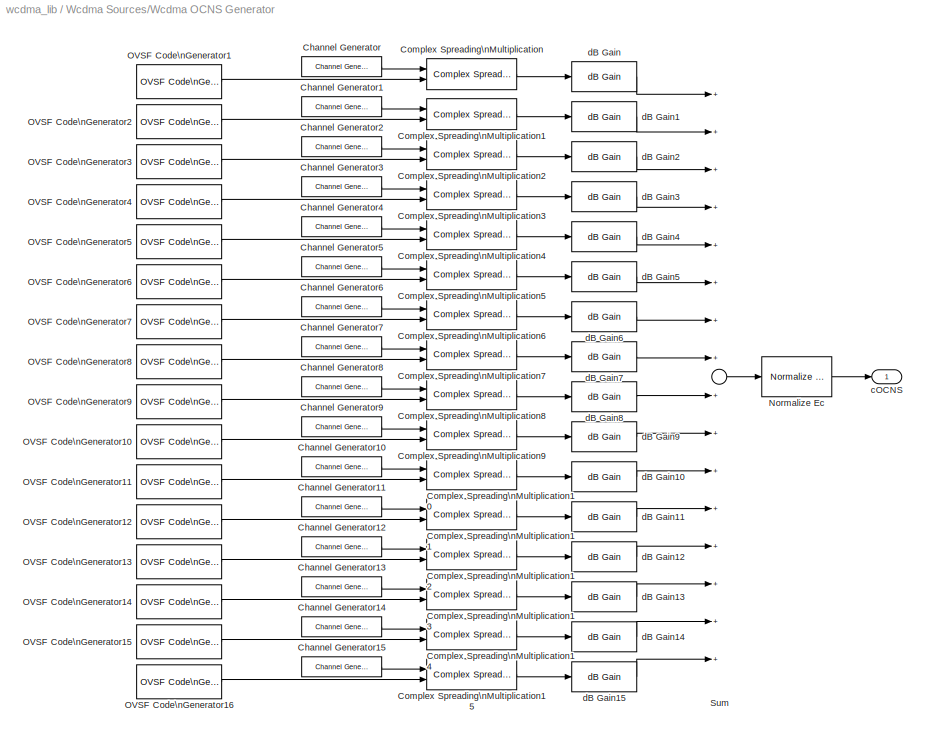
BLOCK [SubSystem] Wcdma Sources/Wcdma OCNS Generator
  EnableExecutionContextPropagation = on
  MaskCallbackString = ||
  MaskDescription = Generates ONCS interference as a combination of 16 dedicated data channels whose channelization codes, level settings and data timing offsets are specified by 3GPP standard (3GPP Ts 25.101).
  MaskDisplay = disp('Wcdma OCNS\\n Generator');
  MaskEnableString = on,on,on
  MaskIconFrame = on
  MaskIconOpaque = on
  MaskIconRotate = none
  MaskIconUnits = autoscale
  MaskPromptString = OCNS Spreading Factor (SF):|Number of Symbols per Output:|Symbol Time (Ts):
  MaskStyleString = edit,edit,edit
  MaskTabNameString = ,,
  MaskToolTipString = on,on,on
  MaskTunableValueString = on,on,on
  MaskType = Wcdma OCNS Generator
  MaskValueString = 256|1|1/15e3
  MaskVarAliasString = ,,
  MaskVariables = sprdFactor=@1;numSymbOut=@2;st=@3;
  MaskVisibilityString = on,on,on
  MinAlgLoopOccurrences = off
  Ports = [0, 1]
  TreatAsAtomicUnit = off
BLOCK [Reference] Wcdma Sources/Wcdma OCNS Generator/Channel Generator  REF=wcdma_lib/Wcdma Sources/Channel Generator  (lib defined in mdl_415921f2943f)
  Ports = [0, 1]
  SourceBlock = wcdma_lib/Wcdma Sources/Channel Generator
  SourceType = Channel Generator
  initDelay = 86
  numSymbOut = numSymbOut
  rndSeed = 8686
  st = 1/15e3
BLOCK [Reference] Wcdma Sources/Wcdma OCNS Generator/Channel Generator1  REF=wcdma_lib/Wcdma Sources/Channel Generator  (lib defined in mdl_415921f2943f)
  Ports = [0, 1]
  SourceBlock = wcdma_lib/Wcdma Sources/Channel Generator
  SourceType = Channel Generator
  initDelay = 134
  numSymbOut = numSymbOut
  rndSeed = 134134
  st = 1/15e3
BLOCK [Reference] Wcdma Sources/Wcdma OCNS Generator/Channel Generator10  REF=wcdma_lib/Wcdma Sources/Channel Generator  (lib defined in mdl_415921f2943f)
  Ports = [0, 1]
  SourceBlock = wcdma_lib/Wcdma Sources/Channel Generator
  SourceType = Channel Generator
  initDelay = 30
  numSymbOut = numSymbOut
  rndSeed = 3030
  st = 1/15e3
BLOCK [Reference] Wcdma Sources/Wcdma OCNS Generator/Channel Generator11  REF=wcdma_lib/Wcdma Sources/Channel Generator  (lib defined in mdl_415921f2943f)
  Ports = [0, 1]
  SourceBlock = wcdma_lib/Wcdma Sources/Channel Generator
  SourceType = Channel Generator
  initDelay = 18
  numSymbOut = numSymbOut
  rndSeed = 1818
  st = 1/15e3
BLOCK [Reference] Wcdma Sources/Wcdma OCNS Generator/Channel Generator12  REF=wcdma_lib/Wcdma Sources/Channel Generator  (lib defined in mdl_415921f2943f)
  Ports = [0, 1]
  SourceBlock = wcdma_lib/Wcdma Sources/Channel Generator
  SourceType = Channel Generator
  initDelay = 30
  numSymbOut = numSymbOut
  rndSeed = 3030
  st = 1/15e3
BLOCK [Reference] Wcdma Sources/Wcdma OCNS Generator/Channel Generator13  REF=wcdma_lib/Wcdma Sources/Channel Generator  (lib defined in mdl_415921f2943f)
  Ports = [0, 1]
  SourceBlock = wcdma_lib/Wcdma Sources/Channel Generator
  SourceType = Channel Generator
  initDelay = 61
  numSymbOut = numSymbOut
  rndSeed = 6161
  st = 1/15e3
BLOCK [Reference] Wcdma Sources/Wcdma OCNS Generator/Channel Generator14  REF=wcdma_lib/Wcdma Sources/Channel Generator  (lib defined in mdl_415921f2943f)
  Ports = [0, 1]
  SourceBlock = wcdma_lib/Wcdma Sources/Channel Generator
  SourceType = Channel Generator
  initDelay = 128
  numSymbOut = numSymbOut
  rndSeed = 128128
  st = 1/15e3
BLOCK [Reference] Wcdma Sources/Wcdma OCNS Generator/Channel Generator15  REF=wcdma_lib/Wcdma Sources/Channel Generator  (lib defined in mdl_415921f2943f)
  Ports = [0, 1]
  SourceBlock = wcdma_lib/Wcdma Sources/Channel Generator
  SourceType = Channel Generator
  initDelay = 143
  numSymbOut = numSymbOut
  rndSeed = 143143
  st = 1/15e3
BLOCK [Reference] Wcdma Sources/Wcdma OCNS Generator/Channel Generator2  REF=wcdma_lib/Wcdma Sources/Channel Generator  (lib defined in mdl_415921f2943f)
  Ports = [0, 1]
  SourceBlock = wcdma_lib/Wcdma Sources/Channel Generator
  SourceType = Channel Generator
  initDelay = 52
  numSymbOut = numSymbOut
  rndSeed = 5252
  st = 1/15e3
BLOCK [Reference] Wcdma Sources/Wcdma OCNS Generator/Channel Generator3  REF=wcdma_lib/Wcdma Sources/Channel Generator  (lib defined in mdl_415921f2943f)
  Ports = [0, 1]
  SourceBlock = wcdma_lib/Wcdma Sources/Channel Generator
  SourceType = Channel Generator
  initDelay = 45
  numSymbOut = numSymbOut
  rndSeed = 4545
  st = 1/15e3
BLOCK [Reference] Wcdma Sources/Wcdma OCNS Generator/Channel Generator4  REF=wcdma_lib/Wcdma Sources/Channel Generator  (lib defined in mdl_415921f2943f)
  Ports = [0, 1]
  SourceBlock = wcdma_lib/Wcdma Sources/Channel Generator
  SourceType = Channel Generator
  initDelay = 143
  numSymbOut = numSymbOut
  rndSeed = 143143
  st = 1/15e3
BLOCK [Reference] Wcdma Sources/Wcdma OCNS Generator/Channel Generator5  REF=wcdma_lib/Wcdma Sources/Channel Generator  (lib defined in mdl_415921f2943f)
  Ports = [0, 1]
  SourceBlock = wcdma_lib/Wcdma Sources/Channel Generator
  SourceType = Channel Generator
  initDelay = 112
  numSymbOut = numSymbOut
  rndSeed = 112112
  st = 1/15e3
BLOCK [Reference] Wcdma Sources/Wcdma OCNS Generator/Channel Generator6  REF=wcdma_lib/Wcdma Sources/Channel Generator  (lib defined in mdl_415921f2943f)
  Ports = [0, 1]
  SourceBlock = wcdma_lib/Wcdma Sources/Channel Generator
  SourceType = Channel Generator
  initDelay = 59
  numSymbOut = numSymbOut
  rndSeed = 5959
  st = 1/15e3
BLOCK [Reference] Wcdma Sources/Wcdma OCNS Generator/Channel Generator7  REF=wcdma_lib/Wcdma Sources/Channel Generator  (lib defined in mdl_415921f2943f)
  Ports = [0, 1]
  SourceBlock = wcdma_lib/Wcdma Sources/Channel Generator
  SourceType = Channel Generator
  initDelay = 23
  numSymbOut = numSymbOut
  rndSeed = 2323
  st = 1/15e3
BLOCK [Reference] Wcdma Sources/Wcdma OCNS Generator/Channel Generator8  REF=wcdma_lib/Wcdma Sources/Channel Generator  (lib defined in mdl_415921f2943f)
  Ports = [0, 1]
  SourceBlock = wcdma_lib/Wcdma Sources/Channel Generator
  SourceType = Channel Generator
  initDelay = 1
  numSymbOut = numSymbOut
  rndSeed = 11
  st = 1/15e3
BLOCK [Reference] Wcdma Sources/Wcdma OCNS Generator/Channel Generator9  REF=wcdma_lib/Wcdma Sources/Channel Generator  (lib defined in mdl_415921f2943f)
  Ports = [0, 1]
  SourceBlock = wcdma_lib/Wcdma Sources/Channel Generator
  SourceType = Channel Generator
  initDelay = 88
  numSymbOut = numSymbOut
  rndSeed = 8888
  st = 1/15e3
BLOCK [Reference] Wcdma Sources/Wcdma OCNS Generator/Complex Spreading\nMultiplication  REF=wcdma_lib/Wcdma BS Transmitter/Complex Spreading\nMultiplication  (lib defined in mdl_415921f2943f)
  Ports = [2, 1]
  SourceBlock = wcdma_lib/Wcdma BS Transmitter/Complex Spreading\nMultiplication
  SourceType = Complex Spreading
  sprdFactor = sprdFactor
BLOCK [Reference] Wcdma Sources/Wcdma OCNS Generator/Complex Spreading\nMultiplication1  REF=wcdma_lib/Wcdma BS Transmitter/Complex Spreading\nMultiplication  (lib defined in mdl_415921f2943f)
  Ports = [2, 1]
  SourceBlock = wcdma_lib/Wcdma BS Transmitter/Complex Spreading\nMultiplication
  SourceType = Complex Spreading
  sprdFactor = sprdFactor
BLOCK [Reference] Wcdma Sources/Wcdma OCNS Generator/Complex Spreading\nMultiplication10  REF=wcdma_lib/Wcdma BS Transmitter/Complex Spreading\nMultiplication  (lib defined in mdl_415921f2943f)
  Ports = [2, 1]
  SourceBlock = wcdma_lib/Wcdma BS Transmitter/Complex Spreading\nMultiplication
  SourceType = Complex Spreading
  sprdFactor = sprdFactor
BLOCK [Reference] Wcdma Sources/Wcdma OCNS Generator/Complex Spreading\nMultiplication11  REF=wcdma_lib/Wcdma BS Transmitter/Complex Spreading\nMultiplication  (lib defined in mdl_415921f2943f)
  Ports = [2, 1]
  SourceBlock = wcdma_lib/Wcdma BS Transmitter/Complex Spreading\nMultiplication
  SourceType = Complex Spreading
  sprdFactor = sprdFactor
BLOCK [Reference] Wcdma Sources/Wcdma OCNS Generator/Complex Spreading\nMultiplication12  REF=wcdma_lib/Wcdma BS Transmitter/Complex Spreading\nMultiplication  (lib defined in mdl_415921f2943f)
  Ports = [2, 1]
  SourceBlock = wcdma_lib/Wcdma BS Transmitter/Complex Spreading\nMultiplication
  SourceType = Complex Spreading
  sprdFactor = sprdFactor
BLOCK [Reference] Wcdma Sources/Wcdma OCNS Generator/Complex Spreading\nMultiplication13  REF=wcdma_lib/Wcdma BS Transmitter/Complex Spreading\nMultiplication  (lib defined in mdl_415921f2943f)
  Ports = [2, 1]
  SourceBlock = wcdma_lib/Wcdma BS Transmitter/Complex Spreading\nMultiplication
  SourceType = Complex Spreading
  sprdFactor = sprdFactor
BLOCK [Reference] Wcdma Sources/Wcdma OCNS Generator/Complex Spreading\nMultiplication14  REF=wcdma_lib/Wcdma BS Transmitter/Complex Spreading\nMultiplication  (lib defined in mdl_415921f2943f)
  Ports = [2, 1]
  SourceBlock = wcdma_lib/Wcdma BS Transmitter/Complex Spreading\nMultiplication
  SourceType = Complex Spreading
  sprdFactor = sprdFactor
BLOCK [Reference] Wcdma Sources/Wcdma OCNS Generator/Complex Spreading\nMultiplication15  REF=wcdma_lib/Wcdma BS Transmitter/Complex Spreading\nMultiplication  (lib defined in mdl_415921f2943f)
  Ports = [2, 1]
  SourceBlock = wcdma_lib/Wcdma BS Transmitter/Complex Spreading\nMultiplication
  SourceType = Complex Spreading
  sprdFactor = sprdFactor
BLOCK [Reference] Wcdma Sources/Wcdma OCNS Generator/Complex Spreading\nMultiplication2  REF=wcdma_lib/Wcdma BS Transmitter/Complex Spreading\nMultiplication  (lib defined in mdl_415921f2943f)
  Ports = [2, 1]
  SourceBlock = wcdma_lib/Wcdma BS Transmitter/Complex Spreading\nMultiplication
  SourceType = Complex Spreading
  sprdFactor = sprdFactor
BLOCK [Reference] Wcdma Sources/Wcdma OCNS Generator/Complex Spreading\nMultiplication3  REF=wcdma_lib/Wcdma BS Transmitter/Complex Spreading\nMultiplication  (lib defined in mdl_415921f2943f)
  Ports = [2, 1]
  SourceBlock = wcdma_lib/Wcdma BS Transmitter/Complex Spreading\nMultiplication
  SourceType = Complex Spreading
  sprdFactor = sprdFactor
BLOCK [Reference] Wcdma Sources/Wcdma OCNS Generator/Complex Spreading\nMultiplication4  REF=wcdma_lib/Wcdma BS Transmitter/Complex Spreading\nMultiplication  (lib defined in mdl_415921f2943f)
  Ports = [2, 1]
  SourceBlock = wcdma_lib/Wcdma BS Transmitter/Complex Spreading\nMultiplication
  SourceType = Complex Spreading
  sprdFactor = sprdFactor
BLOCK [Reference] Wcdma Sources/Wcdma OCNS Generator/Complex Spreading\nMultiplication5  REF=wcdma_lib/Wcdma BS Transmitter/Complex Spreading\nMultiplication  (lib defined in mdl_415921f2943f)
  Ports = [2, 1]
  SourceBlock = wcdma_lib/Wcdma BS Transmitter/Complex Spreading\nMultiplication
  SourceType = Complex Spreading
  sprdFactor = sprdFactor
BLOCK [Reference] Wcdma Sources/Wcdma OCNS Generator/Complex Spreading\nMultiplication6  REF=wcdma_lib/Wcdma BS Transmitter/Complex Spreading\nMultiplication  (lib defined in mdl_415921f2943f)
  Ports = [2, 1]
  SourceBlock = wcdma_lib/Wcdma BS Transmitter/Complex Spreading\nMultiplication
  SourceType = Complex Spreading
  sprdFactor = sprdFactor
BLOCK [Reference] Wcdma Sources/Wcdma OCNS Generator/Complex Spreading\nMultiplication7  REF=wcdma_lib/Wcdma BS Transmitter/Complex Spreading\nMultiplication  (lib defined in mdl_415921f2943f)
  Ports = [2, 1]
  SourceBlock = wcdma_lib/Wcdma BS Transmitter/Complex Spreading\nMultiplication
  SourceType = Complex Spreading
  sprdFactor = sprdFactor
BLOCK [Reference] Wcdma Sources/Wcdma OCNS Generator/Complex Spreading\nMultiplication8  REF=wcdma_lib/Wcdma BS Transmitter/Complex Spreading\nMultiplication  (lib defined in mdl_415921f2943f)
  Ports = [2, 1]
  SourceBlock = wcdma_lib/Wcdma BS Transmitter/Complex Spreading\nMultiplication
  SourceType = Complex Spreading
  sprdFactor = sprdFactor
BLOCK [Reference] Wcdma Sources/Wcdma OCNS Generator/Complex Spreading\nMultiplication9  REF=wcdma_lib/Wcdma BS Transmitter/Complex Spreading\nMultiplication  (lib defined in mdl_415921f2943f)
  Ports = [2, 1]
  SourceBlock = wcdma_lib/Wcdma BS Transmitter/Complex Spreading\nMultiplication
  SourceType = Complex Spreading
  sprdFactor = sprdFactor
BLOCK [Reference] Wcdma Sources/Wcdma OCNS Generator/Normalize Ec  REF=wcdma_lib/Wcdma Common/Normalize Ec  (lib defined in mdl_415921f2943f)
  Ports = [1, 1]
  SourceBlock = wcdma_lib/Wcdma Common/Normalize Ec
  SourceType = Unknown
BLOCK [Reference] Wcdma Sources/Wcdma OCNS Generator/OVSF Code\nGenerator1  REF=commseqgen2/OVSF Code\nGenerator
  Ports = [0, 1]
  SourceBlock = commseqgen2/OVSF Code\nGenerator
  SourceType = OVSF Code Generator
  frameBased = on
  index = 2
  sampPerFrame = numChipsOut
  spreadFact = 256
  ts = 1/15e3
BLOCK [Reference] Wcdma Sources/Wcdma OCNS Generator/OVSF Code\nGenerator10  REF=commseqgen2/OVSF Code\nGenerator
  Ports = [0, 1]
  SourceBlock = commseqgen2/OVSF Code\nGenerator
  SourceType = OVSF Code Generator
  frameBased = on
  index = 69
  sampPerFrame = numChipsOut
  spreadFact = 256
  ts = 1/15e3
BLOCK [Reference] Wcdma Sources/Wcdma OCNS Generator/OVSF Code\nGenerator11  REF=commseqgen2/OVSF Code\nGenerator
  Ports = [0, 1]
  SourceBlock = commseqgen2/OVSF Code\nGenerator
  SourceType = OVSF Code Generator
  frameBased = on
  index = 78
  sampPerFrame = numChipsOut
  spreadFact = 256
  ts = 1/15e3
BLOCK [Reference] Wcdma Sources/Wcdma OCNS Generator/OVSF Code\nGenerator12  REF=commseqgen2/OVSF Code\nGenerator
  Ports = [0, 1]
  SourceBlock = commseqgen2/OVSF Code\nGenerator
  SourceType = OVSF Code Generator
  frameBased = on
  index = 85
  sampPerFrame = numChipsOut
  spreadFact = 256
  ts = 1/15e3
BLOCK [Reference] Wcdma Sources/Wcdma OCNS Generator/OVSF Code\nGenerator13  REF=commseqgen2/OVSF Code\nGenerator
  Ports = [0, 1]
  SourceBlock = commseqgen2/OVSF Code\nGenerator
  SourceType = OVSF Code Generator
  frameBased = on
  index = 94
  sampPerFrame = numChipsOut
  spreadFact = 256
  ts = 1/15e3
BLOCK [Reference] Wcdma Sources/Wcdma OCNS Generator/OVSF Code\nGenerator14  REF=commseqgen2/OVSF Code\nGenerator
  Ports = [0, 1]
  SourceBlock = commseqgen2/OVSF Code\nGenerator
  SourceType = OVSF Code Generator
  frameBased = on
  index = 125
  sampPerFrame = numChipsOut
  spreadFact = 256
  ts = 1/15e3
BLOCK [Reference] Wcdma Sources/Wcdma OCNS Generator/OVSF Code\nGenerator15  REF=commseqgen2/OVSF Code\nGenerator
  Ports = [0, 1]
  SourceBlock = commseqgen2/OVSF Code\nGenerator
  SourceType = OVSF Code Generator
  frameBased = on
  index = 113
  sampPerFrame = numChipsOut
  spreadFact = 256
  ts = 1/15e3
BLOCK [Reference] Wcdma Sources/Wcdma OCNS Generator/OVSF Code\nGenerator16  REF=commseqgen2/OVSF Code\nGenerator
  Ports = [0, 1]
  SourceBlock = commseqgen2/OVSF Code\nGenerator
  SourceType = OVSF Code Generator
  frameBased = on
  index = 119
  sampPerFrame = numChipsOut
  spreadFact = 256
  ts = 1/15e3
BLOCK [Reference] Wcdma Sources/Wcdma OCNS Generator/OVSF Code\nGenerator2  REF=commseqgen2/OVSF Code\nGenerator
  Ports = [0, 1]
  SourceBlock = commseqgen2/OVSF Code\nGenerator
  SourceType = OVSF Code Generator
  frameBased = on
  index = 11
  sampPerFrame = numChipsOut
  spreadFact = 256
  ts = 1/15e3
BLOCK [Reference] Wcdma Sources/Wcdma OCNS Generator/OVSF Code\nGenerator3  REF=commseqgen2/OVSF Code\nGenerator
  Ports = [0, 1]
  SourceBlock = commseqgen2/OVSF Code\nGenerator
  SourceType = OVSF Code Generator
  frameBased = on
  index = 17
  sampPerFrame = numChipsOut
  spreadFact = 256
  ts = 1/15e3
BLOCK [Reference] Wcdma Sources/Wcdma OCNS Generator/OVSF Code\nGenerator4  REF=commseqgen2/OVSF Code\nGenerator
  Ports = [0, 1]
  SourceBlock = commseqgen2/OVSF Code\nGenerator
  SourceType = OVSF Code Generator
  frameBased = on
  index = 23
  sampPerFrame = numChipsOut
  spreadFact = 256
  ts = 1/15e3
BLOCK [Reference] Wcdma Sources/Wcdma OCNS Generator/OVSF Code\nGenerator5  REF=commseqgen2/OVSF Code\nGenerator
  Ports = [0, 1]
  SourceBlock = commseqgen2/OVSF Code\nGenerator
  SourceType = OVSF Code Generator
  frameBased = on
  index = 31
  sampPerFrame = numChipsOut
  spreadFact = 256
  ts = 1/15e3
BLOCK [Reference] Wcdma Sources/Wcdma OCNS Generator/OVSF Code\nGenerator6  REF=commseqgen2/OVSF Code\nGenerator
  Ports = [0, 1]
  SourceBlock = commseqgen2/OVSF Code\nGenerator
  SourceType = OVSF Code Generator
  frameBased = on
  index = 38
  sampPerFrame = numChipsOut
  spreadFact = 256
  ts = 1/15e3
BLOCK [Reference] Wcdma Sources/Wcdma OCNS Generator/OVSF Code\nGenerator7  REF=commseqgen2/OVSF Code\nGenerator
  Ports = [0, 1]
  SourceBlock = commseqgen2/OVSF Code\nGenerator
  SourceType = OVSF Code Generator
  frameBased = on
  index = 47
  sampPerFrame = numChipsOut
  spreadFact = 256
  ts = 1/15e3
BLOCK [Reference] Wcdma Sources/Wcdma OCNS Generator/OVSF Code\nGenerator8  REF=commseqgen2/OVSF Code\nGenerator
  Ports = [0, 1]
  SourceBlock = commseqgen2/OVSF Code\nGenerator
  SourceType = OVSF Code Generator
  frameBased = on
  index = 55
  sampPerFrame = numChipsOut
  spreadFact = 256
  ts = 1/15e3
BLOCK [Reference] Wcdma Sources/Wcdma OCNS Generator/OVSF Code\nGenerator9  REF=commseqgen2/OVSF Code\nGenerator
  Ports = [0, 1]
  SourceBlock = commseqgen2/OVSF Code\nGenerator
  SourceType = OVSF Code Generator
  frameBased = on
  index = 62
  sampPerFrame = numChipsOut
  spreadFact = 256
  ts = 1/15e3
BLOCK [Sum] Wcdma Sources/Wcdma OCNS Generator/Sum
  Inputs = ++++++++++++++++
  Ports = [16, 1]
BLOCK [Outport] Wcdma Sources/Wcdma OCNS Generator/cOCNS
  BusOutputAsStruct = off
  IconDisplay = Port number
BLOCK [Reference] Wcdma Sources/Wcdma OCNS Generator/dB Gain  REF=dspmathops/dB Gain
  Ports = [1, 1]
  SourceBlock = dspmathops/dB Gain
  SourceType = dB Gain
  dB = -1
  intype = Amplitude
BLOCK [Reference] Wcdma Sources/Wcdma OCNS Generator/dB Gain1  REF=dspmathops/dB Gain
  Ports = [1, 1]
  SourceBlock = dspmathops/dB Gain
  SourceType = dB Gain
  dB = -3
  intype = Amplitude
BLOCK [Reference] Wcdma Sources/Wcdma OCNS Generator/dB Gain10  REF=dspmathops/dB Gain
  Ports = [1, 1]
  SourceBlock = dspmathops/dB Gain
  SourceType = dB Gain
  dB = -5
  intype = Amplitude
BLOCK [Reference] Wcdma Sources/Wcdma OCNS Generator/dB Gain11  REF=dspmathops/dB Gain
  Ports = [1, 1]
  SourceBlock = dspmathops/dB Gain
  SourceType = dB Gain
  dB = -9
  intype = Amplitude
BLOCK [Reference] Wcdma Sources/Wcdma OCNS Generator/dB Gain12  REF=dspmathops/dB Gain
  Ports = [1, 1]
  SourceBlock = dspmathops/dB Gain
  SourceType = dB Gain
  dB = -10
  intype = Amplitude
BLOCK [Reference] Wcdma Sources/Wcdma OCNS Generator/dB Gain13  REF=dspmathops/dB Gain
  Ports = [1, 1]
  SourceBlock = dspmathops/dB Gain
  SourceType = dB Gain
  dB = -8
  intype = Amplitude
BLOCK [Reference] Wcdma Sources/Wcdma OCNS Generator/dB Gain14  REF=dspmathops/dB Gain
  Ports = [1, 1]
  SourceBlock = dspmathops/dB Gain
  SourceType = dB Gain
  dB = -6
  intype = Amplitude
BLOCK [Reference] Wcdma Sources/Wcdma OCNS Generator/dB Gain15  REF=dspmathops/dB Gain
  Ports = [1, 1]
  SourceBlock = dspmathops/dB Gain
  SourceType = dB Gain
  dB = 0
  intype = Amplitude
BLOCK [Reference] Wcdma Sources/Wcdma OCNS Generator/dB Gain2  REF=dspmathops/dB Gain
  Ports = [1, 1]
  SourceBlock = dspmathops/dB Gain
  SourceType = dB Gain
  dB = -3
  intype = Amplitude
BLOCK [Reference] Wcdma Sources/Wcdma OCNS Generator/dB Gain3  REF=dspmathops/dB Gain
  Ports = [1, 1]
  SourceBlock = dspmathops/dB Gain
  SourceType = dB Gain
  dB = -5
  intype = Amplitude
BLOCK [Reference] Wcdma Sources/Wcdma OCNS Generator/dB Gain4  REF=dspmathops/dB Gain
  Ports = [1, 1]
  SourceBlock = dspmathops/dB Gain
  SourceType = dB Gain
  dB = -2
  intype = Amplitude
BLOCK [Reference] Wcdma Sources/Wcdma OCNS Generator/dB Gain5  REF=dspmathops/dB Gain
  Ports = [1, 1]
  SourceBlock = dspmathops/dB Gain
  SourceType = dB Gain
  dB = -4
  intype = Amplitude
BLOCK [Reference] Wcdma Sources/Wcdma OCNS Generator/dB Gain6  REF=dspmathops/dB Gain
  Ports = [1, 1]
  SourceBlock = dspmathops/dB Gain
  SourceType = dB Gain
  dB = -8
  intype = Amplitude
BLOCK [Reference] Wcdma Sources/Wcdma OCNS Generator/dB Gain7  REF=dspmathops/dB Gain
  Ports = [1, 1]
  SourceBlock = dspmathops/dB Gain
  SourceType = dB Gain
  dB = -7
  intype = Amplitude
BLOCK [Reference] Wcdma Sources/Wcdma OCNS Generator/dB Gain8  REF=dspmathops/dB Gain
  Ports = [1, 1]
  SourceBlock = dspmathops/dB Gain
  SourceType = dB Gain
  dB = -4
  intype = Amplitude
BLOCK [Reference] Wcdma Sources/Wcdma OCNS Generator/dB Gain9  REF=dspmathops/dB Gain
  Ports = [1, 1]
  SourceBlock = dspmathops/dB Gain
  SourceType = dB Gain
  dB = -6
  intype = Amplitude
BLOCK [SubSystem] Wcdma Sources/Wcdma PSC Generator
  EnableExecutionContextPropagation = on
  MaskDisplay = disp(' Primary SCH\\nGenerator');
  MaskEnableString = on
  MaskIconFrame = on
  MaskIconOpaque = on
  MaskIconRotate = none
  MaskIconUnits = autoscale
  MaskPromptString = Value of a {-1,1}:
  MaskStyleString = edit
  MaskToolTipString = on
  MaskTunableValueString = on
  MaskType = Wcdma PSC Generator
  MaskValueString = -1
  MaskVariables = a_sch=@1;
  MaskVisibilityString = on
  MinAlgLoopOccurrences = off
  Ports = [0, 1]
  TreatAsAtomicUnit = off
BLOCK [Reference] Wcdma Sources/Wcdma PSC Generator/Frame Status\nConversion  REF=dspsigattribs/Frame Status\nConversion
  Ports = [1, 1]
  SourceBlock = dspsigattribs/Frame Status\nConversion
  SourceType = Frame Status Conversion
  growRefPort = off
  outframe = Frame-based
BLOCK [Gain] Wcdma Sources/Wcdma PSC Generator/Gain1
  Gain = 1/sqrt(2)
BLOCK [Reference] Wcdma Sources/Wcdma PSC Generator/Matrix Multiply  REF=dspmtrx3/Matrix Multiply
  OptimizationLevel = None
  Ports = [2, 1]
  SourceBlock = dspmtrx3/Matrix Multiply
  SourceType = Matrix Multiply
  numInputPorts = 2
BLOCK [Outport] Wcdma Sources/Wcdma PSC Generator/PSC Code
  BusOutputAsStruct = off
  IconDisplay = Port number
BLOCK [Reference] Wcdma Sources/Wcdma PSC Generator/Pattern Repetition  REF=dspsrcs4/DSP\nConstant
  FramebasedOutput = on
  InterpretAs1D = off
  Ports = [0, 1]
  SampleMode = Discrete
  SourceBlock = dspsrcs4/DSP\nConstant
  SourceType = DSP Constant
  Ts = 0.01/15
  Value = [1 1 1 -1 -1 1 -1 -1  1 1 1 -1 1 -1 1 1]
BLOCK [RealImagToComplex] Wcdma Sources/Wcdma PSC Generator/Real-Imag to\nComplex
  Input = Real and imag
  Ports = [2, 1]
BLOCK [Reference] Wcdma Sources/Wcdma PSC Generator/Reshape  REF=simulink3/Signals\n& Systems/Reshape
  OutputDimensionality = Column vector
  OutputDimensions = [1,1]
  Ports = [1, 1]
  SourceBlock = simulink3/Signals\n& Systems/Reshape
  SourceType = Reshape
BLOCK [Reference] Wcdma Sources/Wcdma PSC Generator/Seq a  REF=dspsrcs4/DSP\nConstant
  FramebasedOutput = on
  InterpretAs1D = off
  Ports = [0, 1]
  SampleMode = Discrete
  SourceBlock = dspsrcs4/DSP\nConstant
  SourceType = DSP Constant
  Ts = 0.01/15
  Value = [1 1 1 1 1 1 -1 -1 1 -1 1 -1 1 -1 -1 1]'
BLOCK [SubSystem] Wcdma Sources/Wcdma Pilot Bits\nGenerator
  EnableExecutionContextPropagation = on
  MaskCallbackString = |
  MaskDisplay = disp('Wcdma\\n Pilot Bits\\nGenerator');
  MaskEnableString = on,on
  MaskIconFrame = on
  MaskIconOpaque = on
  MaskIconRotate = none
  MaskIconUnits = autoscale
  MaskInitialization = pilotBits = wcdma_pilotbitgenerator(numPilotBits);
  MaskPromptString = Number of Pilot bits per slot:|Frame Sample Time:
  MaskStyleString = edit,edit
  MaskTabNameString = ,
  MaskToolTipString = on,on
  MaskTunableValueString = on,on
  MaskType = Wcdma Pilot Bits Generator
  MaskValueString = 6|0.01
  MaskVarAliasString = ,
  MaskVariables = numPilotBits=@1;frameSampTime=@2;
  MaskVisibilityString = on,on
  MinAlgLoopOccurrences = off
  Ports = [0, 1]
  TreatAsAtomicUnit = off
BLOCK [Reference] Wcdma Sources/Wcdma Pilot Bits\nGenerator/Frame Status\nConversion  REF=dspsigattribs/Frame Status\nConversion
  Ports = [1, 1]
  SourceBlock = dspsigattribs/Frame Status\nConversion
  SourceType = Frame Status Conversion
  growRefPort = off
  outframe = Frame-based
BLOCK [Reference] Wcdma Sources/Wcdma Pilot Bits\nGenerator/Integer to Bit\nConverter  REF=commutil2/Integer to Bit\nConverter
  Ports = [1, 1]
  SourceBlock = commutil2/Integer to Bit\nConverter
  SourceType = Integer to Bit Converter
  nbits = numPilotBits
BLOCK [Reference] Wcdma Sources/Wcdma Pilot Bits\nGenerator/Pilot Bits\nGenerator  REF=dspsrcs4/Signal From\nWorkspace
  OutputAfterFinalValue = Cyclic Repetition
  Ports = [0, 1]
  SourceBlock = dspsrcs4/Signal From\nWorkspace
  SourceType = Signal From Workspace
  Ts = 0.01/15
  X = pilotBits
  nsamps = 1
BLOCK [Outport] Wcdma Sources/Wcdma Pilot Bits\nGenerator/PilotBitsOut
  BusOutputAsStruct = off
  IconDisplay = Port number
BLOCK [SubSystem] Wcdma Sources/Wcdma SCH \nGenerator
  EnableExecutionContextPropagation = on
  MaskCallbackString = |
  MaskDescription = Generate Synchronisation channel (SCH) as specified by 3GPP TS.25.213. The SCH is the results of combining two different subchannels: Primary SCH and Secondary SCH.
  MaskDisplay = disp('Wcdma SCH\\n Generator');
  MaskEnableString = on,on
  MaskIconFrame = on
  MaskIconOpaque = on
  MaskIconRotate = none
  MaskIconUnits = autoscale
  MaskPromptString = Scrambling Code Group (0..64):|Value of \"a\" {-1,1}:
  MaskStyleString = edit,edit
  MaskTabNameString = ,
  MaskToolTipString = on,on
  MaskTunableValueString = on,on
  MaskType = Wcdma SCH Generator
  MaskValueString = 0|1
  MaskVarAliasString = ,
  MaskVariables = scrGroup=@1;a_sch=@2;
  MaskVisibilityString = on,on
  MinAlgLoopOccurrences = off
  Ports = [0, 1]
  TreatAsAtomicUnit = off
BLOCK [Gain] Wcdma Sources/Wcdma SCH \nGenerator/Gain1
  Gain = 1/sqrt(2)
BLOCK [Sum] Wcdma Sources/Wcdma SCH \nGenerator/Sum
  Ports = [2, 1]
BLOCK [Reference] Wcdma Sources/Wcdma SCH \nGenerator/Wcdma PSC Generator  REF=wcdma_lib/Wcdma Sources/Wcdma PSC Generator  (lib defined in mdl_415921f2943f)
  Ports = [0, 1]
  SourceBlock = wcdma_lib/Wcdma Sources/Wcdma PSC Generator
  SourceType = Wcdma PSC Generator
  a_sch = a_sch
BLOCK [Reference] Wcdma Sources/Wcdma SCH \nGenerator/Wcdma SSC Generator  REF=wcdma_lib/Wcdma Sources/Wcdma SSC Generator  (lib defined in mdl_415921f2943f)
  Ports = [0, 1]
  SourceBlock = wcdma_lib/Wcdma Sources/Wcdma SSC Generator
  SourceType = Wcdma SSC Generator
  a_sch = a_sch
  scrGroup = scrGroup
BLOCK [Outport] Wcdma Sources/Wcdma SCH \nGenerator/cSCH
  BusOutputAsStruct = off
  IconDisplay = Port number
BLOCK [SubSystem] Wcdma Sources/Wcdma SSC Generator
  EnableExecutionContextPropagation = on
  MaskCallbackString = |
  MaskDisplay = disp(' Secondary SCH\\nGenerator');
  MaskEnableString = on,on
  MaskIconFrame = on
  MaskIconOpaque = on
  MaskIconRotate = none
  MaskIconUnits = autoscale
  MaskInitialization = load wcdma_allocationssc.mat
  MaskPromptString = Scrambling Code Group (0..64):|Value of a {-1,1}:
  MaskStyleString = edit,edit
  MaskTabNameString = ,
  MaskToolTipString = on,on
  MaskTunableValueString = on,on
  MaskType = Wcdma SSC Generator
  MaskValueString = 0|-1
  MaskVarAliasString = ,
  MaskVariables = scrGroup=@1;a_sch=@2;
  MaskVisibilityString = on,on
  MinAlgLoopOccurrences = off
  Ports = [0, 1]
  TreatAsAtomicUnit = off
BLOCK [SubSystem] Wcdma Sources/Wcdma SSC Generator/16(k-1)
  EnableExecutionContextPropagation = on
  MaskDisplay = disp('16(K-1)');
  MaskIconFrame = on
  MaskIconOpaque = on
  MaskIconRotate = none
  MaskIconUnits = autoscale
  MinAlgLoopOccurrences = off
  Ports = [1, 1]
  TreatAsAtomicUnit = off
BLOCK [Reference] Wcdma Sources/Wcdma SSC Generator/16(k-1)/DSP\nConstant  REF=dspsrcs4/DSP\nConstant
  FramebasedOutput = on
  InterpretAs1D = off
  Ports = [0, 1]
  SampleMode = Discrete
  SourceBlock = dspsrcs4/DSP\nConstant
  SourceType = DSP Constant
  Ts = 0.01/15
  Value = 1
BLOCK [Reference] Wcdma Sources/Wcdma SSC Generator/16(k-1)/DSP\nConstant1  REF=dspsrcs4/DSP\nConstant
  FramebasedOutput = on
  InterpretAs1D = off
  Ports = [0, 1]
  SampleMode = Discrete
  SourceBlock = dspsrcs4/DSP\nConstant
  SourceType = DSP Constant
  Ts = 0.01/15
  Value = 1
BLOCK [Gain] Wcdma Sources/Wcdma SSC Generator/16(k-1)/Gain
  Gain = 16
BLOCK [Inport] Wcdma Sources/Wcdma SSC Generator/16(k-1)/In1
  IconDisplay = Port number
  LatchInput = off
BLOCK [Outport] Wcdma Sources/Wcdma SSC Generator/16(k-1)/Out1
  BusOutputAsStruct = off
  IconDisplay = Port number
BLOCK [Sum] Wcdma Sources/Wcdma SSC Generator/16(k-1)/Sum1
  IconShape = round
  Inputs = |++
  Ports = [2, 1]
BLOCK [Sum] Wcdma Sources/Wcdma SSC Generator/16(k-1)/Sum2
  IconShape = round
  Inputs = |+-
  Ports = [2, 1]
BLOCK [Reference] Wcdma Sources/Wcdma SSC Generator/Allocation SSC\nMatrix  REF=dspsrcs4/DSP\nConstant
  FramebasedOutput = on
  InterpretAs1D = off
  Ports = [0, 1]
  SampleMode = Discrete
  SourceBlock = dspsrcs4/DSP\nConstant
  SourceType = DSP Constant
  Ts = 0.01
  Value = allocationssc(scrGroup+1,:)'
BLOCK [Reference] Wcdma Sources/Wcdma SSC Generator/Frame Status\nConversion  REF=dspsigattribs/Frame Status\nConversion
  Ports = [1, 1]
  SourceBlock = dspsigattribs/Frame Status\nConversion
  SourceType = Frame Status Conversion
  growRefPort = off
  outframe = Frame-based
BLOCK [Reference] Wcdma Sources/Wcdma SSC Generator/Frame Status\nConversion2  REF=dspsigattribs/Frame Status\nConversion
  Ports = [1, 1]
  SourceBlock = dspsigattribs/Frame Status\nConversion
  SourceType = Frame Status Conversion
  growRefPort = off
  outframe = Frame-based
BLOCK [Gain] Wcdma Sources/Wcdma SSC Generator/Gain
  Gain = a_sch
BLOCK [Gain] Wcdma Sources/Wcdma SSC Generator/Gain1
  Gain = 1/sqrt(2)
BLOCK [Reference] Wcdma Sources/Wcdma SSC Generator/Hadamard Matrix1  REF=wcdma_lib/Wcdma Common/Hadamard Matrix  (lib defined in mdl_415921f2943f)
  Ports = [0, 1]
  SourceBlock = wcdma_lib/Wcdma Common/Hadamard Matrix
  SourceType = Hadamard Matrix
  order = 8
BLOCK [Reference] Wcdma Sources/Wcdma SSC Generator/Matrix Multiply  REF=dspmtrx3/Matrix Multiply
  OptimizationLevel = None
  Ports = [2, 1]
  SourceBlock = dspmtrx3/Matrix Multiply
  SourceType = Matrix Multiply
  numInputPorts = 2
BLOCK [Reference] Wcdma Sources/Wcdma SSC Generator/Pattern Repetition  REF=dspsrcs4/DSP\nConstant
  FramebasedOutput = on
  InterpretAs1D = off
  Ports = [0, 1]
  SampleMode = Discrete
  SourceBlock = dspsrcs4/DSP\nConstant
  SourceType = DSP Constant
  Ts = 0.01/15
  Value = [1 1 1 -1 -1 1 -1 -1  1 1 1 -1 1 -1 1 1]
BLOCK [Reference] Wcdma Sources/Wcdma SSC Generator/Pattern Repetition b  REF=dspsrcs4/DSP\nConstant
  FramebasedOutput = on
  InterpretAs1D = off
  Ports = [0, 1]
  SampleMode = Discrete
  SourceBlock = dspsrcs4/DSP\nConstant
  SourceType = DSP Constant
  Ts = 0.01/15
  Value = [ones(8,1) ; -1*ones(8,1)]
BLOCK [Product] Wcdma Sources/Wcdma SSC Generator/Product
  Ports = [2, 1]
  RndMeth = Floor
BLOCK [Product] Wcdma Sources/Wcdma SSC Generator/Product1
  Ports = [2, 1]
  RndMeth = Floor
BLOCK [RealImagToComplex] Wcdma Sources/Wcdma SSC Generator/Real-Imag to\nComplex
  Input = Real and imag
  Ports = [2, 1]
BLOCK [Reference] Wcdma Sources/Wcdma SSC Generator/Reshape  REF=simulink3/Signals\n& Systems/Reshape
  OutputDimensionality = Column vector
  OutputDimensions = [1,1]
  Ports = [1, 1]
  SourceBlock = simulink3/Signals\n& Systems/Reshape
  SourceType = Reshape
BLOCK [Outport] Wcdma Sources/Wcdma SSC Generator/SSC Code
  BusOutputAsStruct = off
  IconDisplay = Port number
BLOCK [Reference] Wcdma Sources/Wcdma SSC Generator/Seq a  REF=dspsrcs4/DSP\nConstant
  FramebasedOutput = on
  InterpretAs1D = off
  Ports = [0, 1]
  SampleMode = Discrete
  SourceBlock = dspsrcs4/DSP\nConstant
  SourceType = DSP Constant
  Ts = 0.01/15
  Value = [1 1 1 1 1 1 -1 -1 1 -1 1 -1 1 -1 -1 1]'
BLOCK [Reference] Wcdma Sources/Wcdma SSC Generator/Transpose1  REF=dspmtrx3/Transpose
  Hermitian = off
  Ports = [1, 1]
  SourceBlock = dspmtrx3/Transpose
  SourceType = Transpose
BLOCK [Reference] Wcdma Sources/Wcdma SSC Generator/Unbuffer  REF=dspbuff3/Unbuffer
  Ports = [1, 1]
  SourceBlock = dspbuff3/Unbuffer
  SourceType = Unbuffer
  ic = 0
BLOCK [Reference] Wcdma Sources/Wcdma SSC Generator/Variable\nSelector  REF=dspindex/Variable\nSelector
  Elements = [1 3]
  IdxMode = Variable
  Ports = [2, 1]
  SourceBlock = dspindex/Variable\nSelector
  SourceType = Variable Selector
  errmode = Clip and Warn
  rowsOrCols = Rows
BLOCK [SubSystem] Wcdma Sources/Wcdma Scrambling\nCode Generator
  EnableExecutionContextPropagation = on
  MaskCallbackString = ||
  MaskDisplay = disp('Wcdma\\nScr Code\\nGenerator');
  MaskEnableString = on,on,on
  MaskIconFrame = on
  MaskIconOpaque = on
  MaskIconRotate = none
  MaskIconUnits = autoscale
  MaskPromptString = Scrambling Code [Scr Code Grup(0..63) Primary Code(0..7)]:|Chip Rate (in s):|Number of Chips per Output:
  MaskSelfModifiable = on
  MaskStyleString = edit,edit,edit
  MaskTabNameString = ,,
  MaskToolTipString = on,on,on
  MaskTunableValueString = on,on,on
  MaskType = Wcdma Scr Code Generator
  MaskValueString = [0 0]|3.84e6|256
  MaskVarAliasString = ,,
  MaskVariables = scrCode=@1;chipRate=@2;numChipsOut=@3;
  MaskVisibilityString = on,on,on
  MinAlgLoopOccurrences = off
  Ports = [0, 1]
  TreatAsAtomicUnit = off
BLOCK [Gain] Wcdma Sources/Wcdma Scrambling\nCode Generator/Gain
  Gain = 1/sqrt(2)
BLOCK [Reference] Wcdma Sources/Wcdma Scrambling\nCode Generator/Gold Sequence\nGenerator  REF=commseqgen2/Gold Sequence\nGenerator
  Ports = [1, 1]
  SourceBlock = commseqgen2/Gold Sequence\nGenerator
  SourceType = Gold Sequence Generator
  frameBased = on
  genPoly1 = [18 10 7 5 0]
  genPoly2 = [18 7 0]
  index = 16*8*scrCode(1)+16*scrCode(2)
  iniState1 = 1
  iniState2 = [zeros(1,17) 1]
  reset = on
  sampPerFrame = numChipsOut
  shift = 0
  ts = 1/3.84e6
BLOCK [Reference] Wcdma Sources/Wcdma Scrambling\nCode Generator/Gold Sequence\nGenerator1  REF=commseqgen2/Gold Sequence\nGenerator
  Ports = [1, 1]
  SourceBlock = commseqgen2/Gold Sequence\nGenerator
  SourceType = Gold Sequence Generator
  frameBased = on
  genPoly1 = [18 10 7 5 0]
  genPoly2 = [18 7 0]
  index = 16*8*scrCode(1)+16*scrCode(2)
  iniState1 = 1
  iniState2 = [zeros(1,17) 1]
  reset = on
  sampPerFrame = numChipsOut
  shift = 131072
  ts = 1/3.84e6
BLOCK [DiscretePulseGenerator] Wcdma Sources/Wcdma Scrambling\nCode Generator/Pulse\nGenerator
  Period = 150/(numChipsOut/256)
  Ports = [0, 1]
  SampleTime = (numChipsOut/256)/15e3
BLOCK [RealImagToComplex] Wcdma Sources/Wcdma Scrambling\nCode Generator/Real-Imag to\nComplex
  Input = Real and imag
  Ports = [2, 1]
BLOCK [Reference] Wcdma Sources/Wcdma Scrambling\nCode Generator/Unipolar to\nBipolar\nConverter1  REF=commutil2/Unipolar to\nBipolar\nConverter
  M = 2
  Ports = [1, 1]
  SourceBlock = commutil2/Unipolar to\nBipolar\nConverter
  SourceType = Unipolar to Bipolar Converter
  polarity = Negative
BLOCK [Reference] Wcdma Sources/Wcdma Scrambling\nCode Generator/Unipolar to\nBipolar\nConverter2  REF=commutil2/Unipolar to\nBipolar\nConverter
  M = 2
  Ports = [1, 1]
  SourceBlock = commutil2/Unipolar to\nBipolar\nConverter
  SourceType = Unipolar to Bipolar Converter
  polarity = Negative
BLOCK [SubSystem] Wcdma Sources/Wcdma Scrambling\nCode Generator/background1
  EnableExecutionContextPropagation = on
  MaskDisplay = disp('')
  MaskIconFrame = on
  MaskIconOpaque = on
  MaskIconRotate = none
  MaskIconUnits = autoscale
  MinAlgLoopOccurrences = off
  Ports = []
  TreatAsAtomicUnit = off
BLOCK [SubSystem] Wcdma Sources/Wcdma Scrambling\nCode Generator/background2
  EnableExecutionContextPropagation = on
  MaskDisplay = disp('')
  MaskIconFrame = on
  MaskIconOpaque = on
  MaskIconRotate = none
  MaskIconUnits = autoscale
  MinAlgLoopOccurrences = off
  Ports = []
  TreatAsAtomicUnit = off
BLOCK [Outport] Wcdma Sources/Wcdma Scrambling\nCode Generator/cScr_Code
  BusOutputAsStruct = off
  IconDisplay = Port number
BLOCK [SubSystem] Wcdma UE Receiver
  EnableExecutionContextPropagation = on
  MaskDisplay = disp('Wcdma \\nUE \\nReceiver');
  MaskIconFrame = on
  MaskIconOpaque = on
  MaskIconRotate = none
  MaskIconUnits = autoscale
  MaskType = Wcdma UE Rx
  MinAlgLoopOccurrences = off
  Ports = []
  TreatAsAtomicUnit = off
BLOCK [SubSystem] Wcdma UE Receiver/I&Q Demapping
  EnableExecutionContextPropagation = on
  MaskDescription = Transform complex signal into two serially concatenated real signals.
  MaskDisplay = disp('DPCH IQ\\nDemapping');
  MaskIconFrame = on
  MaskIconOpaque = on
  MaskIconRotate = none
  MaskIconUnits = autoscale
  MaskType = I&Q Demapping
  MinAlgLoopOccurrences = off
  Ports = [1, 1]
  TreatAsAtomicUnit = off
BLOCK [ComplexToRealImag] Wcdma UE Receiver/I&Q Demapping/Complex to\nReal-Imag
  Output = Real and imag
  Ports = [1, 2]
BLOCK [Inport] Wcdma UE Receiver/I&Q Demapping/In1
  IconDisplay = Port number
  LatchInput = off
BLOCK [Reference] Wcdma UE Receiver/I&Q Demapping/Interlacer  REF=commsequence2/Interlacer
  Ports = [2, 1]
  SourceBlock = commsequence2/Interlacer
  SourceType = Interlacer
BLOCK [Outport] Wcdma UE Receiver/I&Q Demapping/Out1
  BusOutputAsStruct = off
  IconDisplay = Port number
BLOCK [SubSystem] Wcdma UE Receiver/Slot Rebuilder
  EnableExecutionContextPropagation = on
  MaskCallbackString = |
  MaskDescription = Stores input symbols to generate slots of data. \n\nThis block introduces an initial delay corresponding to one slot of data if the initial delay specified on the mask of the block is greater than 0,
  MaskDisplay = disp('Slot\\nRebuilder');
  MaskEnableString = on,on
  MaskIconFrame = on
  MaskIconOpaque = on
  MaskIconRotate = none
  MaskIconUnits = autoscale
  MaskPromptString = Number of Bits per Slot:|Total Receiver Delay
  MaskStyleString = edit,edit
  MaskTabNameString = ,
  MaskToolTipString = on,on
  MaskTunableValueString = on,on
  MaskType = Wcdma Slot Rebuilder
  MaskValueString = 40|44
  MaskVarAliasString = ,
  MaskVariables = numBits=@1;totalDelay=@2;
  MaskVisibilityString = on,on
  MinAlgLoopOccurrences = off
  Ports = [1, 1]
  TreatAsAtomicUnit = off
BLOCK [Inport] Wcdma UE Receiver/Slot Rebuilder/BitsIn
  IconDisplay = Port number
  LatchInput = off
BLOCK [Reference] Wcdma UE Receiver/Slot Rebuilder/Buffer  REF=dspbuff3/Buffer
  N = numBits
  Ports = [1, 1]
  SourceBlock = dspbuff3/Buffer
  SourceType = Buffer
  V = 0
  ic = 0
BLOCK [Reference] Wcdma UE Receiver/Slot Rebuilder/Delay  REF=dspsigops/Delay
  Ports = [1, 1]
  SourceBlock = dspsigops/Delay
  SourceType = Delay
  delay = numBits-mod(totalDelay,numBits)
  dif_ic_for_ch = off
  dif_ic_for_dly = off
  dly_unit = Samples
  ic = 0
  ic_detail = off
  reset_popup = None
BLOCK [Outport] Wcdma UE Receiver/Slot Rebuilder/SlotOut
  BusOutputAsStruct = off
  IconDisplay = Port number
BLOCK [SubSystem] Wcdma UE Receiver/Wcdma Channel\nEstimation
  EnableExecutionContextPropagation = on
  MaskCallbackString = |
  MaskDescription = Perform Channel Estimation
  MaskEnableString = on,on
  MaskIconFrame = on
  MaskIconOpaque = on
  MaskIconRotate = none
  MaskIconUnits = autoscale
  MaskPromptString = Number of Filter Taps for Channel Estimation:|Number of Chips per Output:
  MaskStyleString = edit,edit
  MaskTabNameString = ,
  MaskToolTipString = on,on
  MaskTunableValueString = on,on
  MaskType = Wcdma Channel Estimation
  MaskValueString = 3|256
  MaskVarAliasString = ,
  MaskVariables = numTapsChEst=@1;numChipsOut=@2;
  MaskVisibilityString = on,on
  MinAlgLoopOccurrences = off
  Ports = [3, 1]
  TreatAsAtomicUnit = off
BLOCK [Inport] Wcdma UE Receiver/Wcdma Channel\nEstimation/Finger Phase
  IconDisplay = Port number
  LatchInput = off
  Port = 3
BLOCK [Gain] Wcdma UE Receiver/Wcdma Channel\nEstimation/Gain
  Gain = 1/sqrt(2)
BLOCK [Reference] Wcdma UE Receiver/Wcdma Channel\nEstimation/Low Pass Filter  REF=wcdma_lib/Wcdma Common/Low Pass Filter  (lib defined in mdl_415921f2943f)
  N = (numTapsChEst-1)*(numChipsOut/256)
  Ports = [1, 1]
  ShowPortLabels = on
  SourceBlock = wcdma_lib/Wcdma Common/Low Pass Filter
  SourceType = Channel Estimation low pass filter
  Wn = 1/4
  outputBufInitCond = 0
BLOCK [Math] Wcdma UE Receiver/Wcdma Channel\nEstimation/Math\nFunction
  Operator = conj
  OutputSignalType = complex
  Ports = [1, 1]
BLOCK [Product] Wcdma UE Receiver/Wcdma Channel\nEstimation/Product
  Ports = [2, 1]
  RndMeth = Floor
BLOCK [Reference] Wcdma UE Receiver/Wcdma Channel\nEstimation/Variable\nInteger Delay  REF=dspsigops/Variable\nInteger Delay
  Ports = [2, 1]
  SourceBlock = dspsigops/Variable\nInteger Delay
  SourceType = Variable Integer Delay
  dmax = 1000
  ic = 0
BLOCK [Inport] Wcdma UE Receiver/Wcdma Channel\nEstimation/cPICH Ref
  IconDisplay = Port number
  LatchInput = off
BLOCK [Inport] Wcdma UE Receiver/Wcdma Channel\nEstimation/cPICH Rx
  IconDisplay = Port number
  LatchInput = off
  Port = 2
BLOCK [Outport] Wcdma UE Receiver/Wcdma Channel\nEstimation/chEstimate
  BusOutputAsStruct = off
  IconDisplay = Port number
BLOCK [SubSystem] Wcdma UE Receiver/Wcdma Correlator
  EnableExecutionContextPropagation = on
  MaskEnableString = on
  MaskIconFrame = on
  MaskIconOpaque = on
  MaskIconRotate = none
  MaskIconUnits = autoscale
  MaskPromptString = Spreading Factor (SF):
  MaskStyleString = edit
  MaskToolTipString = on
  MaskTunableValueString = on
  MaskType = Wcdma Correlator
  MaskValueString = 256
  MaskVariables = sprdFactor=@1;
  MaskVisibilityString = on
  MinAlgLoopOccurrences = off
  Ports = [2, 1, 1]
  TreatAsAtomicUnit = on
BLOCK [EnablePort] Wcdma UE Receiver/Wcdma Correlator/Enable
  Ports = []
BLOCK [Reference] Wcdma UE Receiver/Wcdma Correlator/Integrate\nand Dump  REF=commfilt2/Integrate\nand Dump
  Ports = [1, 1]
  SourceBlock = commfilt2/Integrate\nand Dump
  SourceType = Integrate and dump
  nodump = off
  obssamples = sprdFactor
  offsetsamples = 0
BLOCK [Math] Wcdma UE Receiver/Wcdma Correlator/Math\nFunction
  Operator = conj
  OutputSignalType = complex
  Ports = [1, 1]
BLOCK [Gain] Wcdma UE Receiver/Wcdma Correlator/Normalization
  Gain = 1/sprdFactor
BLOCK [Outport] Wcdma UE Receiver/Wcdma Correlator/Out1
  BusOutputAsStruct = off
  IconDisplay = Port number
BLOCK [Product] Wcdma UE Receiver/Wcdma Correlator/Product2
  Inputs = **
  Ports = [2, 1]
  RndMeth = Floor
BLOCK [Inport] Wcdma UE Receiver/Wcdma Correlator/cIn
  IconDisplay = Port number
  LatchInput = off
BLOCK [Inport] Wcdma UE Receiver/Wcdma Correlator/cPNseq
  IconDisplay = Port number
  LatchInput = off
  Port = 2
BLOCK [SubSystem] Wcdma UE Receiver/Wcdma Data Derotation
  EnableExecutionContextPropagation = on
  MaskDescription = Performs Data Derotation.
  MaskIconFrame = on
  MaskIconOpaque = on
  MaskIconRotate = none
  MaskIconUnits = autoscale
  MaskType = Wcdma Data Derotation
  MinAlgLoopOccurrences = off
  Ports = [2, 1]
  TreatAsAtomicUnit = off
BLOCK [Math] Wcdma UE Receiver/Wcdma Data Derotation/Math\nFunction
  Operator = conj
  Ports = [1, 1]
BLOCK [Reference] Wcdma UE Receiver/Wcdma Data Derotation/Mean  REF=dspstat3/Mean
  Ports = [1, 1]
  SourceBlock = dspstat3/Mean
  SourceType = Mean
  reset_popup = None
  run = off
BLOCK [Product] Wcdma UE Receiver/Wcdma Data Derotation/Product
  Ports = [2, 1]
  RndMeth = Floor
BLOCK [Inport] Wcdma UE Receiver/Wcdma Data Derotation/cChEst
  IconDisplay = Port number
  LatchInput = off
BLOCK [Inport] Wcdma UE Receiver/Wcdma Data Derotation/cData_In
  IconDisplay = Port number
  LatchInput = off
  Port = 2
BLOCK [Outport] Wcdma UE Receiver/Wcdma Data Derotation/cData_Out
  BusOutputAsStruct = off
  IconDisplay = Port number
BLOCK [SubSystem] Wcdma UE Receiver/Wcdma Orthogonal \nCodes Generator
  EnableExecutionContextPropagation = on
  MaskCallbackString = ||||
  MaskEnableString = on,on,on,on,on
  MaskIconFrame = on
  MaskIconOpaque = on
  MaskIconRotate = none
  MaskIconUnits = autoscale
  MaskPromptString = DPCH Spreading Factor (SF) :|Code Number (k) :|Scrambling Code [Scr Code Grup(0..63) k(0..7)]:|Number of Chips per Output:|Sampling Time:
  MaskSelfModifiable = on
  MaskStyleString = edit,edit,edit,edit,edit
  MaskTabNameString = ,,,,
  MaskToolTipString = on,on,on,on,on
  MaskTunableValueString = on,on,on,on,on
  MaskType = Wcdma Orthogonal Codes Generator
  MaskValueString = 256|255|[63 0]|256|1/15e3
  MaskVarAliasString = ,,,,
  MaskVariables = sprdFactor=@1;codeNumber=@2;scrCode=@3;numChipsOut=@4;st=@5;
  MaskVisibilityString = on,on,on,on,on
  MinAlgLoopOccurrences = off
  Ports = [0, 2]
  TreatAsAtomicUnit = off
BLOCK [Reference] Wcdma UE Receiver/Wcdma Orthogonal \nCodes Generator/OVSF Code\nGenerator  REF=commseqgen2/OVSF Code\nGenerator
  Ports = [0, 1]
  SourceBlock = commseqgen2/OVSF Code\nGenerator
  SourceType = OVSF Code Generator
  frameBased = on
  index = 0
  sampPerFrame = numChipsOut
  spreadFact = 256
  ts = st
BLOCK [Reference] Wcdma UE Receiver/Wcdma Orthogonal \nCodes Generator/OVSF Code\nGenerator1  REF=commseqgen2/OVSF Code\nGenerator
  Ports = [0, 1]
  SourceBlock = commseqgen2/OVSF Code\nGenerator
  SourceType = OVSF Code Generator
  frameBased = on
  index = codeNumber
  sampPerFrame = numChipsOut
  spreadFact = sprdFactor
  ts = st
BLOCK [Product] Wcdma UE Receiver/Wcdma Orthogonal \nCodes Generator/Product1
  Inputs = **
  Ports = [2, 1]
  RndMeth = Floor
BLOCK [Product] Wcdma UE Receiver/Wcdma Orthogonal \nCodes Generator/Product2
  Inputs = **
  Ports = [2, 1]
  RndMeth = Floor
BLOCK [Reference] Wcdma UE Receiver/Wcdma Orthogonal \nCodes Generator/Wcdma Scrambling\nCode Generator  REF=wcdma_lib/Wcdma Sources/Wcdma Scrambling\nCode Generator  (lib defined in mdl_415921f2943f)
  Ports = [0, 1]
  SourceBlock = wcdma_lib/Wcdma Sources/Wcdma Scrambling\nCode Generator
  SourceType = Wcdma Scr Code Generator
  chipRate = 3.84e6
  numChipsOut = numChipsOut
  scrCode = scrCode
BLOCK [Outport] Wcdma UE Receiver/Wcdma Orthogonal \nCodes Generator/cPN_CPICH
  BusOutputAsStruct = off
  IconDisplay = Port number
BLOCK [Outport] Wcdma UE Receiver/Wcdma Orthogonal \nCodes Generator/cPN_DPCH
  BusOutputAsStruct = off
  IconDisplay = Port number
  Port = 2
BLOCK [SubSystem] Wcdma UE Receiver/Wcdma Rake Combiner
  EnableExecutionContextPropagation = on
  MaskDescription = Performs Rake combjner by averaging the output of enabled Rake Fingers blocks.
  MaskIconFrame = on
  MaskIconOpaque = on
  MaskIconRotate = none
  MaskIconUnits = autoscale
  MaskType = Wcdma Rake Combiner
  MinAlgLoopOccurrences = off
  Ports = [5, 1, 1]
  TreatAsAtomicUnit = on
BLOCK [EnablePort] Wcdma UE Receiver/Wcdma Rake Combiner/Enable
  Ports = []
BLOCK [Reference] Wcdma UE Receiver/Wcdma Rake Combiner/Matrix\nConcatenation  REF=simulink/Math\nOperations/Matrix\nConcatenation
  Ports = [4, 1]
  SourceBlock = simulink/Math\nOperations/Matrix\nConcatenation
  SourceType = Matrix Concatenation
  catMethod = Horizontal
  numInports = 4
BLOCK [Reference] Wcdma UE Receiver/Wcdma Rake Combiner/Matrix\nSum  REF=dspmtrx3/Matrix\nSum
  Dim = Rows
  Ports = [1, 1]
  SourceBlock = dspmtrx3/Matrix\nSum
  SourceType = Matrix Sum
  accumFracLength = 30
  accumMode = Inherit via internal rule
  accumWordLength = 32
  additionalParams = off
  allowOverrides = on
  outputFracLength = 15
  outputMode = Same as input
  outputWordLength = 16
  overflowMode = off
  roundingMode = Floor
BLOCK [Inport] Wcdma UE Receiver/Wcdma Rake Combiner/Norm Factor
  IconDisplay = Port number
  LatchInput = off
  Port = 5
BLOCK [Product] Wcdma UE Receiver/Wcdma Rake Combiner/Product3
  Inputs = */
  Ports = [2, 1]
  RndMeth = Floor
BLOCK [Sum] Wcdma UE Receiver/Wcdma Rake Combiner/Sum
  Inputs = +
  Ports = [1, 1]
BLOCK [Outport] Wcdma UE Receiver/Wcdma Rake Combiner/cDPCH
  BusOutputAsStruct = off
  IconDisplay = Port number
BLOCK [Inport] Wcdma UE Receiver/Wcdma Rake Combiner/cDPCH1
  IconDisplay = Port number
  LatchInput = off
BLOCK [Inport] Wcdma UE Receiver/Wcdma Rake Combiner/cDPCH2
  IconDisplay = Port number
  LatchInput = off
  Port = 2
BLOCK [Inport] Wcdma UE Receiver/Wcdma Rake Combiner/cDPCH3
  IconDisplay = Port number
  LatchInput = off
  Port = 3
BLOCK [Inport] Wcdma UE Receiver/Wcdma Rake Combiner/cDPCH4
  IconDisplay = Port number
  LatchInput = off
  Port = 4
BLOCK [SubSystem] Wcdma UE Receiver/Wcdma Rake Finger
  EnableExecutionContextPropagation = on
  MaskCallbackString = |||
  MaskDescription = Each finger downsamples and decorrelates pilot bits and data using the corresponding channelization code and Gold Code sequence.
  MaskEnableString = on,on,on,on
  MaskHelp = Each finger downsamples and decorrelates pilot bits and data using the corresponding channelization code and Gold Code sequence.
  MaskIconFrame = on
  MaskIconOpaque = on
  MaskIconRotate = none
  MaskIconUnits = autoscale
  MaskInitialization = numSymbOut = numChipsOut/256;
  MaskPromptString = DPCH Spreading Factor (SF):|Oversampling Factor:|Number of Chips per Output:|Sampling Time:
  MaskStyleString = edit,edit,edit,edit
  MaskTabNameString = ,,,
  MaskToolTipString = on,on,on,on
  MaskTunableValueString = on,on,on,on
  MaskType = Wcdma Rake Finger
  MaskValueString = 256|8|256|1/15e3
  MaskVarAliasString = ,,,
  MaskVariables = sprdFactor=@1;overSampling=@2;numChipsOut=@3;st=@4;
  MaskVisibilityString = on,on,on,on
  MinAlgLoopOccurrences = off
  Ports = [5, 2, 1]
  TreatAsAtomicUnit = on
BLOCK [Reference] Wcdma UE Receiver/Wcdma Rake Finger/DSP\nConstant1  REF=dspsrcs4/DSP\nConstant
  FramebasedOutput = off
  InterpretAs1D = off
  Ports = [0, 1]
  SampleMode = Discrete
  ShowPortLabels = on
  SourceBlock = dspsrcs4/DSP\nConstant
  SourceType = DSP Constant
  Ts = st
  Value = 1
  additionalParams = off
  allowOverrides = on
  continuousOutput = Sample-based
  dataType = Inherit from 'Constant value'
  discreteOutput = Sample-based
  fracBitsMode = Best precision
  framePeriod = st
  numFracBits = 15
  sampTime = st
  udDataType = sfix(16)
  wordLen = 16
BLOCK [Reference] Wcdma UE Receiver/Wcdma Rake Finger/Downsample  REF=dspsigops/Downsample
  N = overSampling
  Ports = [1, 1]
  SourceBlock = dspsigops/Downsample
  SourceType = Downsample
  fmode = Maintain input frame rate
  ic = 0
  phase = 0
  smode = Force single rate
BLOCK [Reference] Wcdma UE Receiver/Wcdma Rake Finger/Downsample1  REF=dspsigops/Downsample
  N = overSampling
  Ports = [1, 1]
  SourceBlock = dspsigops/Downsample
  SourceType = Downsample
  fmode = Maintain input frame rate
  ic = 0
  phase = 0
  smode = Force single rate
BLOCK [EnablePort] Wcdma UE Receiver/Wcdma Rake Finger/Enable
  Ports = []
BLOCK [Inport] Wcdma UE Receiver/Wcdma Rake Finger/Fng Ph (Chips)
  IconDisplay = Port number
  LatchInput = off
  Port = 4
BLOCK [Inport] Wcdma UE Receiver/Wcdma Rake Finger/Fng Ph (Symb)
  IconDisplay = Port number
  LatchInput = off
  Port = 5
BLOCK [Product] Wcdma UE Receiver/Wcdma Rake Finger/Product
  Ports = [2, 1]
  RndMeth = Floor
BLOCK [Product] Wcdma UE Receiver/Wcdma Rake Finger/Product1
  Ports = [2, 1]
  RndMeth = Floor
BLOCK [Product] Wcdma UE Receiver/Wcdma Rake Finger/Product2
  Ports = [2, 1]
  RndMeth = Floor
BLOCK [Sum] Wcdma UE Receiver/Wcdma Rake Finger/Sum
  IconShape = round
  Inputs = |+-
  Ports = [2, 1]
BLOCK [Reference] Wcdma UE Receiver/Wcdma Rake Finger/Variable\nInteger Delay  REF=dspsigops/Variable\nInteger Delay
  Ports = [2, 1]
  SourceBlock = dspsigops/Variable\nInteger Delay
  SourceType = Variable Integer Delay
  dmax = 100
  ic = 0
BLOCK [Reference] Wcdma UE Receiver/Wcdma Rake Finger/Variable\nInteger Delay1  REF=dspsigops/Variable\nInteger Delay
  Ports = [2, 1]
  SourceBlock = dspsigops/Variable\nInteger Delay
  SourceType = Variable Integer Delay
  dmax = 100*256
  ic = 0
BLOCK [Reference] Wcdma UE Receiver/Wcdma Rake Finger/Variable\nInteger Delay2  REF=dspsigops/Variable\nInteger Delay
  Ports = [2, 1]
  SourceBlock = dspsigops/Variable\nInteger Delay
  SourceType = Variable Integer Delay
  dmax = 100*256
  ic = 0
BLOCK [Reference] Wcdma UE Receiver/Wcdma Rake Finger/Variable\nInteger Delay3  REF=dspsigops/Variable\nInteger Delay
  Ports = [2, 1]
  SourceBlock = dspsigops/Variable\nInteger Delay
  SourceType = Variable Integer Delay
  dmax = 100*256
  ic = 0
BLOCK [Reference] Wcdma UE Receiver/Wcdma Rake Finger/Wcdma DPCH\nCorrelator  REF=wcdma_lib/Wcdma UE Receiver/Wcdma Correlator  (lib defined in mdl_415921f2943f)
  Ports = [2, 1, 1]
  ShowPortLabels = on
  SourceBlock = wcdma_lib/Wcdma UE Receiver/Wcdma Correlator
  SourceType = Wcdma Correlator
  sprdFactor = sprdFactor
BLOCK [Reference] Wcdma UE Receiver/Wcdma Rake Finger/Wcdma PCPICH\nCorrelator  REF=wcdma_lib/Wcdma UE Receiver/Wcdma Correlator  (lib defined in mdl_415921f2943f)
  Ports = [2, 1, 1]
  ShowPortLabels = on
  SourceBlock = wcdma_lib/Wcdma UE Receiver/Wcdma Correlator
  SourceType = Wcdma Correlator
  sprdFactor = 256
BLOCK [Width] Wcdma UE Receiver/Wcdma Rake Finger/Width
BLOCK [Width] Wcdma UE Receiver/Wcdma Rake Finger/Width1
BLOCK [Width] Wcdma UE Receiver/Wcdma Rake Finger/Width2
BLOCK [SubSystem] Wcdma UE Receiver/Wcdma Rake Finger/background1
  EnableExecutionContextPropagation = on
  MaskDisplay = disp('')
  MaskIconFrame = on
  MaskIconOpaque = on
  MaskIconRotate = none
  MaskIconUnits = autoscale
  MinAlgLoopOccurrences = off
  Ports = []
  TreatAsAtomicUnit = off
BLOCK [SubSystem] Wcdma UE Receiver/Wcdma Rake Finger/background2
  EnableExecutionContextPropagation = on
  MaskDisplay = disp('')
  MaskIconFrame = on
  MaskIconOpaque = on
  MaskIconRotate = none
  MaskIconUnits = autoscale
  MinAlgLoopOccurrences = off
  Ports = []
  TreatAsAtomicUnit = off
BLOCK [SubSystem] Wcdma UE Receiver/Wcdma Rake Finger/background3
  EnableExecutionContextPropagation = on
  MaskDisplay = disp('')
  MaskIconFrame = on
  MaskIconOpaque = on
  MaskIconRotate = none
  MaskIconUnits = autoscale
  MinAlgLoopOccurrences = off
  Ports = []
  TreatAsAtomicUnit = off
BLOCK [Outport] Wcdma UE Receiver/Wcdma Rake Finger/cCPICH_Out
  BusOutputAsStruct = off
  IconDisplay = Port number
BLOCK [Outport] Wcdma UE Receiver/Wcdma Rake Finger/cDPCH_Out
  BusOutputAsStruct = off
  IconDisplay = Port number
  Port = 2
BLOCK [Inport] Wcdma UE Receiver/Wcdma Rake Finger/cInData
  IconDisplay = Port number
  LatchInput = off
BLOCK [Inport] Wcdma UE Receiver/Wcdma Rake Finger/cPN_DPCH
  IconDisplay = Port number
  LatchInput = off
  Port = 3
BLOCK [Inport] Wcdma UE Receiver/Wcdma Rake Finger/cPN_Pilot
  IconDisplay = Port number
  LatchInput = off
  Port = 2
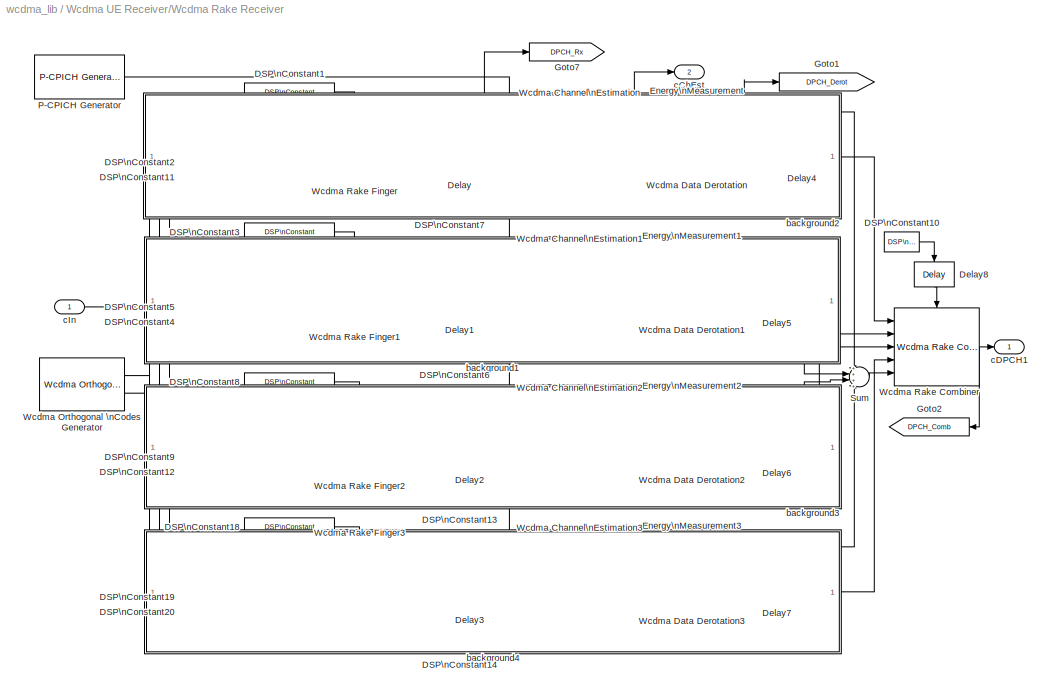
BLOCK [SubSystem] Wcdma UE Receiver/Wcdma Rake Receiver
  EnableExecutionContextPropagation = on
  MaskCallbackString = |||||||||
  MaskDescription = Rake receiver is made of 4 different fingers. Each finger downsamples and decorrelates pilot bits and data using the corresponding channelization code and Gold Code sequence. \n\nPilot bits are then sent to the channel estimator whose output is then used to derotate the received data signal. The demodulated data processed by each rake finger is finally coherently combined before sending it to the ...<+27ch>
  MaskDisplay = disp('RAKE Receiver');
  MaskEnableString = on,on,on,on,on,on,on,on,on,on
  MaskHelp = <p>Rake receiver is made of 4 different fingers. Each finger downsamples and decorrelates pilot bits and data using the corresponding channelization code and Gold Code sequence. </p>\n\n<p>Pilot bits are then sent to the channel estimator whose output is then used to derotate the received data signal. The demodulated data processed by each rake finger is finally coherently combined before sending ...<+41ch>
  MaskIconFrame = on
  MaskIconOpaque = on
  MaskIconRotate = none
  MaskIconUnits = autoscale
  MaskInitialization = numSymbOut = numChipsOut/256;\nst =  numSymbOut*st;\n\n% Setting Parameters\nnumTapsRRC = numTapsRRC - (mod(numTapsRRC,2));\nnumSymbFrame = numChipsOut/sprdFactor;\nrxTicksDelay = numTapsRRC + fingerPhases;\nrxSymDelay = ceil(rxTicksDelay/(numChipsOut*overSampling));\nmaxSymDelay = max(rxSymDelay*diag(fingerEnables));\n
  MaskPromptString = DPCH Spreading Factor (SF):|Code Number (k):|Scrambling Code [Scr Code Grup(0..63)  Primary Code(0..7)]:|Number of Filter Taps for Channel Estimation:|Number of Filter Taps for RRC filters:|Oversampling Factor:|Finger Enables:|Finger Phases (in units of Ticks):|Number of Chips per Output:|Symbol Time (Ts):
  MaskSelfModifiable = on
  MaskStyleString = edit,edit,edit,edit,edit,edit,edit,edit,edit,edit
  MaskTabNameString = ,,,,,,,,,
  MaskToolTipString = on,on,on,on,on,on,on,on,on,on
  MaskTunableValueString = on,on,on,on,on,on,on,on,on,on
  MaskType = Wcdma Rake Receiver
  MaskValueString = 256|256-1|[63 0]|3|32|8|[1 0 0 0]|[0 0 0 0]|256|1/15e3
  MaskVarAliasString = ,,,,,,,,,
  MaskVariables = sprdFactor=@1;codeNumber=@2;scrCode=@3;numTapsChEst=@4;numTapsRRC=@5;overSampling=@6;fingerEnables=@7;fingerPhases=@8;numChipsOut=@9;st=@10;
  MaskVisibilityString = on,on,on,on,on,on,on,on,on,on
  MinAlgLoopOccurrences = off
  Ports = [1, 2]
  TreatAsAtomicUnit = off
BLOCK [Reference] Wcdma UE Receiver/Wcdma Rake Receiver/DSP\nConstant1  REF=dspsrcs4/DSP\nConstant
  FramebasedOutput = off
  InterpretAs1D = off
  Ports = [0, 1]
  SampleMode = Discrete
  ShowPortLabels = on
  SourceBlock = dspsrcs4/DSP\nConstant
  SourceType = DSP Constant
  Ts = st
  Value = fingerEnables(1)
  additionalParams = off
  allowOverrides = on
  continuousOutput = Sample-based
  dataType = Inherit from 'Constant value'
  discreteOutput = Sample-based
  fracBitsMode = Best precision
  framePeriod = st
  numFracBits = 15
  sampTime = st
  udDataType = sfix(16)
  wordLen = 16
BLOCK [Reference] Wcdma UE Receiver/Wcdma Rake Receiver/DSP\nConstant10  REF=dspsrcs4/DSP\nConstant
  FramebasedOutput = off
  InterpretAs1D = off
  Ports = [0, 1]
  SampleMode = Discrete
  ShowPortLabels = on
  SourceBlock = dspsrcs4/DSP\nConstant
  SourceType = DSP Constant
  Ts = st
  Value = 1
  additionalParams = off
  allowOverrides = on
  continuousOutput = Sample-based
  dataType = Inherit from 'Constant value'
  discreteOutput = Sample-based
  fracBitsMode = Best precision
  framePeriod = st
  numFracBits = 15
  sampTime = st
  udDataType = sfix(16)
  wordLen = 16
BLOCK [Reference] Wcdma UE Receiver/Wcdma Rake Receiver/DSP\nConstant11  REF=dspsrcs4/DSP\nConstant
  FramebasedOutput = off
  InterpretAs1D = off
  Ports = [0, 1]
  SampleMode = Discrete
  ShowPortLabels = on
  SourceBlock = dspsrcs4/DSP\nConstant
  SourceType = DSP Constant
  Ts = st
  Value = rxSymDelay(1)
  additionalParams = off
  allowOverrides = on
  continuousOutput = Sample-based
  dataType = Inherit from 'Constant value'
  discreteOutput = Sample-based
  fracBitsMode = Best precision
  framePeriod = st
  numFracBits = 15
  sampTime = st
  udDataType = sfix(16)
  wordLen = 16
BLOCK [Reference] Wcdma UE Receiver/Wcdma Rake Receiver/DSP\nConstant12  REF=dspsrcs4/DSP\nConstant
  FramebasedOutput = off
  InterpretAs1D = off
  Ports = [0, 1]
  SampleMode = Discrete
  ShowPortLabels = on
  SourceBlock = dspsrcs4/DSP\nConstant
  SourceType = DSP Constant
  Ts = st
  Value = rxSymDelay(3)
  additionalParams = off
  allowOverrides = on
  continuousOutput = Sample-based
  dataType = Inherit from 'Constant value'
  discreteOutput = Sample-based
  fracBitsMode = Best precision
  framePeriod = st
  numFracBits = 15
  sampTime = st
  udDataType = sfix(16)
  wordLen = 16
BLOCK [Reference] Wcdma UE Receiver/Wcdma Rake Receiver/DSP\nConstant13  REF=dspsrcs4/DSP\nConstant
  FramebasedOutput = off
  InterpretAs1D = off
  Ports = [0, 1]
  SampleMode = Discrete
  ShowPortLabels = on
  SourceBlock = dspsrcs4/DSP\nConstant
  SourceType = DSP Constant
  Ts = st
  Value = rxSymDelay(3)
  additionalParams = off
  allowOverrides = on
  continuousOutput = Sample-based
  dataType = Inherit from 'Constant value'
  discreteOutput = Sample-based
  fracBitsMode = Best precision
  framePeriod = st
  numFracBits = 15
  sampTime = st
  udDataType = sfix(16)
  wordLen = 16
BLOCK [Reference] Wcdma UE Receiver/Wcdma Rake Receiver/DSP\nConstant14  REF=dspsrcs4/DSP\nConstant
  FramebasedOutput = off
  InterpretAs1D = off
  Ports = [0, 1]
  SampleMode = Discrete
  ShowPortLabels = on
  SourceBlock = dspsrcs4/DSP\nConstant
  SourceType = DSP Constant
  Ts = st
  Value = rxSymDelay(4)
  additionalParams = off
  allowOverrides = on
  continuousOutput = Sample-based
  dataType = Inherit from 'Constant value'
  discreteOutput = Sample-based
  fracBitsMode = Best precision
  framePeriod = st
  numFracBits = 15
  sampTime = st
  udDataType = sfix(16)
  wordLen = 16
BLOCK [Reference] Wcdma UE Receiver/Wcdma Rake Receiver/DSP\nConstant18  REF=dspsrcs4/DSP\nConstant
  FramebasedOutput = off
  InterpretAs1D = off
  Ports = [0, 1]
  SampleMode = Discrete
  ShowPortLabels = on
  SourceBlock = dspsrcs4/DSP\nConstant
  SourceType = DSP Constant
  Ts = st
  Value = fingerEnables(4)
  additionalParams = off
  allowOverrides = on
  continuousOutput = Sample-based
  dataType = Inherit from 'Constant value'
  discreteOutput = Sample-based
  fracBitsMode = Best precision
  framePeriod = st
  numFracBits = 15
  sampTime = st
  udDataType = sfix(16)
  wordLen = 16
BLOCK [Reference] Wcdma UE Receiver/Wcdma Rake Receiver/DSP\nConstant19  REF=dspsrcs4/DSP\nConstant
  FramebasedOutput = off
  InterpretAs1D = off
  Ports = [0, 1]
  SampleMode = Discrete
  ShowPortLabels = on
  SourceBlock = dspsrcs4/DSP\nConstant
  SourceType = DSP Constant
  Ts = st
  Value = rxTicksDelay(4)
  additionalParams = off
  allowOverrides = on
  continuousOutput = Sample-based
  dataType = Inherit from 'Constant value'
  discreteOutput = Sample-based
  fracBitsMode = Best precision
  framePeriod = st
  numFracBits = 15
  sampTime = st
  udDataType = sfix(16)
  wordLen = 16
BLOCK [Reference] Wcdma UE Receiver/Wcdma Rake Receiver/DSP\nConstant2  REF=dspsrcs4/DSP\nConstant
  FramebasedOutput = off
  InterpretAs1D = off
  Ports = [0, 1]
  SampleMode = Discrete
  ShowPortLabels = on
  SourceBlock = dspsrcs4/DSP\nConstant
  SourceType = DSP Constant
  Ts = st
  Value = rxTicksDelay(1)
  additionalParams = off
  allowOverrides = on
  continuousOutput = Sample-based
  dataType = Inherit from 'Constant value'
  discreteOutput = Sample-based
  fracBitsMode = Best precision
  framePeriod = st
  numFracBits = 15
  sampTime = st
  udDataType = sfix(16)
  wordLen = 16
BLOCK [Reference] Wcdma UE Receiver/Wcdma Rake Receiver/DSP\nConstant20  REF=dspsrcs4/DSP\nConstant
  FramebasedOutput = off
  InterpretAs1D = off
  Ports = [0, 1]
  SampleMode = Discrete
  ShowPortLabels = on
  SourceBlock = dspsrcs4/DSP\nConstant
  SourceType = DSP Constant
  Ts = st
  Value = rxSymDelay(4)
  additionalParams = off
  allowOverrides = on
  continuousOutput = Sample-based
  dataType = Inherit from 'Constant value'
  discreteOutput = Sample-based
  fracBitsMode = Best precision
  framePeriod = st
  numFracBits = 15
  sampTime = st
  udDataType = sfix(16)
  wordLen = 16
BLOCK [Reference] Wcdma UE Receiver/Wcdma Rake Receiver/DSP\nConstant3  REF=dspsrcs4/DSP\nConstant
  FramebasedOutput = off
  InterpretAs1D = off
  Ports = [0, 1]
  SampleMode = Discrete
  ShowPortLabels = on
  SourceBlock = dspsrcs4/DSP\nConstant
  SourceType = DSP Constant
  Ts = st
  Value = fingerEnables(2)
  additionalParams = off
  allowOverrides = on
  continuousOutput = Sample-based
  dataType = Inherit from 'Constant value'
  discreteOutput = Sample-based
  fracBitsMode = Best precision
  framePeriod = st
  numFracBits = 15
  sampTime = st
  udDataType = sfix(16)
  wordLen = 16
BLOCK [Reference] Wcdma UE Receiver/Wcdma Rake Receiver/DSP\nConstant4  REF=dspsrcs4/DSP\nConstant
  FramebasedOutput = off
  InterpretAs1D = off
  Ports = [0, 1]
  SampleMode = Discrete
  ShowPortLabels = on
  SourceBlock = dspsrcs4/DSP\nConstant
  SourceType = DSP Constant
  Ts = st
  Value = rxSymDelay(2)
  additionalParams = off
  allowOverrides = on
  continuousOutput = Sample-based
  dataType = Inherit from 'Constant value'
  discreteOutput = Sample-based
  fracBitsMode = Best precision
  framePeriod = st
  numFracBits = 15
  sampTime = st
  udDataType = sfix(16)
  wordLen = 16
BLOCK [Reference] Wcdma UE Receiver/Wcdma Rake Receiver/DSP\nConstant5  REF=dspsrcs4/DSP\nConstant
  FramebasedOutput = off
  InterpretAs1D = off
  Ports = [0, 1]
  SampleMode = Discrete
  ShowPortLabels = on
  SourceBlock = dspsrcs4/DSP\nConstant
  SourceType = DSP Constant
  Ts = st
  Value = rxTicksDelay(2)
  additionalParams = off
  allowOverrides = on
  continuousOutput = Sample-based
  dataType = Inherit from 'Constant value'
  discreteOutput = Sample-based
  fracBitsMode = Best precision
  framePeriod = st
  numFracBits = 15
  sampTime = st
  udDataType = sfix(16)
  wordLen = 16
BLOCK [Reference] Wcdma UE Receiver/Wcdma Rake Receiver/DSP\nConstant6  REF=dspsrcs4/DSP\nConstant
  FramebasedOutput = off
  InterpretAs1D = off
  Ports = [0, 1]
  SampleMode = Discrete
  ShowPortLabels = on
  SourceBlock = dspsrcs4/DSP\nConstant
  SourceType = DSP Constant
  Ts = st
  Value = rxSymDelay(2)
  additionalParams = off
  allowOverrides = on
  continuousOutput = Sample-based
  dataType = Inherit from 'Constant value'
  discreteOutput = Sample-based
  fracBitsMode = Best precision
  framePeriod = st
  numFracBits = 15
  sampTime = st
  udDataType = sfix(16)
  wordLen = 16
BLOCK [Reference] Wcdma UE Receiver/Wcdma Rake Receiver/DSP\nConstant7  REF=dspsrcs4/DSP\nConstant
  FramebasedOutput = off
  InterpretAs1D = off
  Ports = [0, 1]
  SampleMode = Discrete
  ShowPortLabels = on
  SourceBlock = dspsrcs4/DSP\nConstant
  SourceType = DSP Constant
  Ts = st
  Value = rxSymDelay(1)
  additionalParams = off
  allowOverrides = on
  continuousOutput = Sample-based
  dataType = Inherit from 'Constant value'
  discreteOutput = Sample-based
  fracBitsMode = Best precision
  framePeriod = st
  numFracBits = 15
  sampTime = st
  udDataType = sfix(16)
  wordLen = 16
BLOCK [Reference] Wcdma UE Receiver/Wcdma Rake Receiver/DSP\nConstant8  REF=dspsrcs4/DSP\nConstant
  FramebasedOutput = off
  InterpretAs1D = off
  Ports = [0, 1]
  SampleMode = Discrete
  ShowPortLabels = on
  SourceBlock = dspsrcs4/DSP\nConstant
  SourceType = DSP Constant
  Ts = st
  Value = fingerEnables(3)
  additionalParams = off
  allowOverrides = on
  continuousOutput = Sample-based
  dataType = Inherit from 'Constant value'
  discreteOutput = Sample-based
  fracBitsMode = Best precision
  framePeriod = st
  numFracBits = 15
  sampTime = st
  udDataType = sfix(16)
  wordLen = 16
BLOCK [Reference] Wcdma UE Receiver/Wcdma Rake Receiver/DSP\nConstant9  REF=dspsrcs4/DSP\nConstant
  FramebasedOutput = off
  InterpretAs1D = off
  Ports = [0, 1]
  SampleMode = Discrete
  ShowPortLabels = on
  SourceBlock = dspsrcs4/DSP\nConstant
  SourceType = DSP Constant
  Ts = st
  Value = rxTicksDelay(3)
  additionalParams = off
  allowOverrides = on
  continuousOutput = Sample-based
  dataType = Inherit from 'Constant value'
  discreteOutput = Sample-based
  fracBitsMode = Best precision
  framePeriod = st
  numFracBits = 15
  sampTime = st
  udDataType = sfix(16)
  wordLen = 16
BLOCK [Reference] Wcdma UE Receiver/Wcdma Rake Receiver/Delay  REF=dspsigops/Delay
  Ports = [1, 1]
  SourceBlock = dspsigops/Delay
  SourceType = Delay
  delay = ((numTapsChEst-1)/2)*numSymbFrame
  dif_ic_for_ch = off
  dif_ic_for_dly = off
  dly_unit = Samples
  ic = 0
  ic_detail = off
  reset_popup = None
BLOCK [Reference] Wcdma UE Receiver/Wcdma Rake Receiver/Delay1  REF=dspsigops/Delay
  Ports = [1, 1]
  SourceBlock = dspsigops/Delay
  SourceType = Delay
  delay = ((numTapsChEst-1)/2)*numSymbFrame
  dif_ic_for_ch = off
  dif_ic_for_dly = off
  dly_unit = Samples
  ic = 0
  ic_detail = off
  reset_popup = None
BLOCK [Reference] Wcdma UE Receiver/Wcdma Rake Receiver/Delay2  REF=dspsigops/Delay
  Ports = [1, 1]
  SourceBlock = dspsigops/Delay
  SourceType = Delay
  delay = ((numTapsChEst-1)/2)*numSymbFrame
  dif_ic_for_ch = off
  dif_ic_for_dly = off
  dly_unit = Samples
  ic = 0
  ic_detail = off
  reset_popup = None
BLOCK [Reference] Wcdma UE Receiver/Wcdma Rake Receiver/Delay3  REF=dspsigops/Delay
  Ports = [1, 1]
  SourceBlock = dspsigops/Delay
  SourceType = Delay
  delay = ((numTapsChEst-1)/2)*numSymbFrame
  dif_ic_for_ch = off
  dif_ic_for_dly = off
  dly_unit = Samples
  ic = 0
  ic_detail = off
  reset_popup = None
BLOCK [Reference] Wcdma UE Receiver/Wcdma Rake Receiver/Delay4  REF=dspsigops/Delay
  Ports = [1, 1]
  SourceBlock = dspsigops/Delay
  SourceType = Delay
  delay = (maxSymDelay-rxSymDelay(1))*numSymbFrame
  dif_ic_for_ch = off
  dif_ic_for_dly = off
  dly_unit = Samples
  ic = 0
  ic_detail = off
  reset_popup = None
BLOCK [Reference] Wcdma UE Receiver/Wcdma Rake Receiver/Delay5  REF=dspsigops/Delay
  Ports = [1, 1]
  SourceBlock = dspsigops/Delay
  SourceType = Delay
  delay = (maxSymDelay-rxSymDelay(2))*numSymbFrame
  dif_ic_for_ch = off
  dif_ic_for_dly = off
  dly_unit = Samples
  ic = 0
  ic_detail = off
  reset_popup = None
BLOCK [Reference] Wcdma UE Receiver/Wcdma Rake Receiver/Delay6  REF=dspsigops/Delay
  Ports = [1, 1]
  SourceBlock = dspsigops/Delay
  SourceType = Delay
  delay = (maxSymDelay-rxSymDelay(3))*numSymbFrame
  dif_ic_for_ch = off
  dif_ic_for_dly = off
  dly_unit = Samples
  ic = 0
  ic_detail = off
  reset_popup = None
BLOCK [Reference] Wcdma UE Receiver/Wcdma Rake Receiver/Delay7  REF=dspsigops/Delay
  Ports = [1, 1]
  SourceBlock = dspsigops/Delay
  SourceType = Delay
  delay = (maxSymDelay-rxSymDelay(4))*numSymbFrame
  dif_ic_for_ch = off
  dif_ic_for_dly = off
  dly_unit = Samples
  ic = 0
  ic_detail = off
  reset_popup = None
BLOCK [Reference] Wcdma UE Receiver/Wcdma Rake Receiver/Delay8  REF=dspsigops/Delay
  Ports = [1, 1]
  SourceBlock = dspsigops/Delay
  SourceType = Delay
  delay = (((numTapsChEst-1)/2) +maxSymDelay)
  dif_ic_for_ch = off
  dif_ic_for_dly = off
  dly_unit = Samples
  ic = 0
  ic_detail = off
  reset_popup = None
BLOCK [Reference] Wcdma UE Receiver/Wcdma Rake Receiver/Energy\nMeasurement  REF=wcdma_lib/Wcdma Common/Energy\nMeasurement  (lib defined in mdl_415921f2943f)
  Ports = [1, 1]
  ShowPortLabels = on
  SourceBlock = wcdma_lib/Wcdma Common/Energy\nMeasurement
  SourceType = Unknown
BLOCK [Reference] Wcdma UE Receiver/Wcdma Rake Receiver/Energy\nMeasurement1  REF=wcdma_lib/Wcdma Common/Energy\nMeasurement  (lib defined in mdl_415921f2943f)
  Ports = [1, 1]
  ShowPortLabels = on
  SourceBlock = wcdma_lib/Wcdma Common/Energy\nMeasurement
  SourceType = Unknown
BLOCK [Reference] Wcdma UE Receiver/Wcdma Rake Receiver/Energy\nMeasurement2  REF=wcdma_lib/Wcdma Common/Energy\nMeasurement  (lib defined in mdl_415921f2943f)
  Ports = [1, 1]
  ShowPortLabels = on
  SourceBlock = wcdma_lib/Wcdma Common/Energy\nMeasurement
  SourceType = Unknown
BLOCK [Reference] Wcdma UE Receiver/Wcdma Rake Receiver/Energy\nMeasurement3  REF=wcdma_lib/Wcdma Common/Energy\nMeasurement  (lib defined in mdl_415921f2943f)
  Ports = [1, 1]
  ShowPortLabels = on
  SourceBlock = wcdma_lib/Wcdma Common/Energy\nMeasurement
  SourceType = Unknown
BLOCK [Goto] Wcdma UE Receiver/Wcdma Rake Receiver/Goto1
  DialogController = Simulink.DDGSource
  GotoTag = DPCH_Derot
  TagVisibility = global
BLOCK [Goto] Wcdma UE Receiver/Wcdma Rake Receiver/Goto2
  DialogController = Simulink.DDGSource
  GotoTag = DPCH_Comb
  TagVisibility = global
BLOCK [Goto] Wcdma UE Receiver/Wcdma Rake Receiver/Goto7
  DialogController = Simulink.DDGSource
  GotoTag = DPCH_Rx
  TagVisibility = global
BLOCK [Reference] Wcdma UE Receiver/Wcdma Rake Receiver/P-CPICH Generator  REF=wcdma_lib/Wcdma Sources/P-CPICH Generator  (lib defined in mdl_415921f2943f)
  Ports = [0, 1]
  ShowPortLabels = on
  SourceBlock = wcdma_lib/Wcdma Sources/P-CPICH Generator
  SourceType = Wcdma P-CPICH Generator
  antenna = 1
  numSymbOut = 1
  st = st
BLOCK [Sum] Wcdma UE Receiver/Wcdma Rake Receiver/Sum
  IconShape = round
  Inputs = ++++
  Ports = [4, 1]
BLOCK [Reference] Wcdma UE Receiver/Wcdma Rake Receiver/Wcdma Channel\nEstimation  REF=wcdma_lib/Wcdma UE Receiver/Wcdma Channel\nEstimation  (lib defined in mdl_415921f2943f)
  Ports = [3, 1]
  ShowPortLabels = on
  SourceBlock = wcdma_lib/Wcdma UE Receiver/Wcdma Channel\nEstimation
  SourceType = Wcdma Channel Estimation
  numChipsOut = numChipsOut
  numTapsChEst = numTapsChEst
BLOCK [Reference] Wcdma UE Receiver/Wcdma Rake Receiver/Wcdma Channel\nEstimation1  REF=wcdma_lib/Wcdma UE Receiver/Wcdma Channel\nEstimation  (lib defined in mdl_415921f2943f)
  Ports = [3, 1]
  ShowPortLabels = on
  SourceBlock = wcdma_lib/Wcdma UE Receiver/Wcdma Channel\nEstimation
  SourceType = Wcdma Channel Estimation
  numChipsOut = numChipsOut
  numTapsChEst = numTapsChEst
BLOCK [Reference] Wcdma UE Receiver/Wcdma Rake Receiver/Wcdma Channel\nEstimation2  REF=wcdma_lib/Wcdma UE Receiver/Wcdma Channel\nEstimation  (lib defined in mdl_415921f2943f)
  Ports = [3, 1]
  ShowPortLabels = on
  SourceBlock = wcdma_lib/Wcdma UE Receiver/Wcdma Channel\nEstimation
  SourceType = Wcdma Channel Estimation
  numChipsOut = numChipsOut
  numTapsChEst = numTapsChEst
BLOCK [Reference] Wcdma UE Receiver/Wcdma Rake Receiver/Wcdma Channel\nEstimation3  REF=wcdma_lib/Wcdma UE Receiver/Wcdma Channel\nEstimation  (lib defined in mdl_415921f2943f)
  Ports = [3, 1]
  ShowPortLabels = on
  SourceBlock = wcdma_lib/Wcdma UE Receiver/Wcdma Channel\nEstimation
  SourceType = Wcdma Channel Estimation
  numChipsOut = numChipsOut
  numTapsChEst = numTapsChEst
BLOCK [Reference] Wcdma UE Receiver/Wcdma Rake Receiver/Wcdma Data Derotation  REF=wcdma_lib/Wcdma UE Receiver/Wcdma Data Derotation  (lib defined in mdl_415921f2943f)
  Ports = [2, 1]
  ShowPortLabels = on
  SourceBlock = wcdma_lib/Wcdma UE Receiver/Wcdma Data Derotation
  SourceType = Wcdma Data Derotation
BLOCK [Reference] Wcdma UE Receiver/Wcdma Rake Receiver/Wcdma Data Derotation1  REF=wcdma_lib/Wcdma UE Receiver/Wcdma Data Derotation  (lib defined in mdl_415921f2943f)
  Ports = [2, 1]
  ShowPortLabels = on
  SourceBlock = wcdma_lib/Wcdma UE Receiver/Wcdma Data Derotation
  SourceType = Wcdma Data Derotation
BLOCK [Reference] Wcdma UE Receiver/Wcdma Rake Receiver/Wcdma Data Derotation2  REF=wcdma_lib/Wcdma UE Receiver/Wcdma Data Derotation  (lib defined in mdl_415921f2943f)
  Ports = [2, 1]
  ShowPortLabels = on
  SourceBlock = wcdma_lib/Wcdma UE Receiver/Wcdma Data Derotation
  SourceType = Wcdma Data Derotation
BLOCK [Reference] Wcdma UE Receiver/Wcdma Rake Receiver/Wcdma Data Derotation3  REF=wcdma_lib/Wcdma UE Receiver/Wcdma Data Derotation  (lib defined in mdl_415921f2943f)
  Ports = [2, 1]
  ShowPortLabels = on
  SourceBlock = wcdma_lib/Wcdma UE Receiver/Wcdma Data Derotation
  SourceType = Wcdma Data Derotation
BLOCK [Reference] Wcdma UE Receiver/Wcdma Rake Receiver/Wcdma Orthogonal \nCodes Generator  REF=wcdma_lib/Wcdma UE Receiver/Wcdma Orthogonal \nCodes Generator  (lib defined in mdl_415921f2943f)
  Ports = [0, 2]
  ShowPortLabels = on
  SourceBlock = wcdma_lib/Wcdma UE Receiver/Wcdma Orthogonal \nCodes Generator
  SourceType = Wcdma Orthogonal Codes Generator
  codeNumber = codeNumber
  numChipsOut = numChipsOut
  scrCode = scrCode
  sprdFactor = sprdFactor
  st = st
BLOCK [Reference] Wcdma UE Receiver/Wcdma Rake Receiver/Wcdma Rake Combiner  REF=wcdma_lib/Wcdma UE Receiver/Wcdma Rake Combiner  (lib defined in mdl_415921f2943f)
  Ports = [5, 1, 1]
  ShowPortLabels = on
  SourceBlock = wcdma_lib/Wcdma UE Receiver/Wcdma Rake Combiner
  SourceType = Wcdma Rake Combiner
BLOCK [Reference] Wcdma UE Receiver/Wcdma Rake Receiver/Wcdma Rake Finger  REF=wcdma_lib/Wcdma UE Receiver/Wcdma Rake Finger  (lib defined in mdl_415921f2943f)
  Ports = [5, 2, 1]
  ShowPortLabels = on
  SourceBlock = wcdma_lib/Wcdma UE Receiver/Wcdma Rake Finger
  SourceType = Wcdma Rake Finger
  numChipsOut = numChipsOut
  overSampling = overSampling
  sprdFactor = sprdFactor
  st = st
BLOCK [Reference] Wcdma UE Receiver/Wcdma Rake Receiver/Wcdma Rake Finger1  REF=wcdma_lib/Wcdma UE Receiver/Wcdma Rake Finger  (lib defined in mdl_415921f2943f)
  Ports = [5, 2, 1]
  ShowPortLabels = on
  SourceBlock = wcdma_lib/Wcdma UE Receiver/Wcdma Rake Finger
  SourceType = Wcdma Rake Finger
  numChipsOut = numChipsOut
  overSampling = overSampling
  sprdFactor = sprdFactor
  st = st
BLOCK [Reference] Wcdma UE Receiver/Wcdma Rake Receiver/Wcdma Rake Finger2  REF=wcdma_lib/Wcdma UE Receiver/Wcdma Rake Finger  (lib defined in mdl_415921f2943f)
  Ports = [5, 2, 1]
  ShowPortLabels = on
  SourceBlock = wcdma_lib/Wcdma UE Receiver/Wcdma Rake Finger
  SourceType = Wcdma Rake Finger
  numChipsOut = numChipsOut
  overSampling = overSampling
  sprdFactor = sprdFactor
  st = st
BLOCK [Reference] Wcdma UE Receiver/Wcdma Rake Receiver/Wcdma Rake Finger3  REF=wcdma_lib/Wcdma UE Receiver/Wcdma Rake Finger  (lib defined in mdl_415921f2943f)
  Ports = [5, 2, 1]
  ShowPortLabels = on
  SourceBlock = wcdma_lib/Wcdma UE Receiver/Wcdma Rake Finger
  SourceType = Wcdma Rake Finger
  numChipsOut = numChipsOut
  overSampling = overSampling
  sprdFactor = sprdFactor
  st = st
BLOCK [SubSystem] Wcdma UE Receiver/Wcdma Rake Receiver/background1
  EnableExecutionContextPropagation = on
  MaskDisplay = disp('')
  MaskIconFrame = on
  MaskIconOpaque = on
  MaskIconRotate = none
  MaskIconUnits = autoscale
  MinAlgLoopOccurrences = off
  Ports = []
  TreatAsAtomicUnit = off
BLOCK [SubSystem] Wcdma UE Receiver/Wcdma Rake Receiver/background2
  EnableExecutionContextPropagation = on
  MaskDisplay = disp('')
  MaskIconFrame = on
  MaskIconOpaque = on
  MaskIconRotate = none
  MaskIconUnits = autoscale
  MinAlgLoopOccurrences = off
  Ports = []
  TreatAsAtomicUnit = off
BLOCK [SubSystem] Wcdma UE Receiver/Wcdma Rake Receiver/background3
  EnableExecutionContextPropagation = on
  MaskDisplay = disp('')
  MaskIconFrame = on
  MaskIconOpaque = on
  MaskIconRotate = none
  MaskIconUnits = autoscale
  MinAlgLoopOccurrences = off
  Ports = []
  TreatAsAtomicUnit = off
BLOCK [SubSystem] Wcdma UE Receiver/Wcdma Rake Receiver/background4
  EnableExecutionContextPropagation = on
  MaskDisplay = disp('')
  MaskIconFrame = on
  MaskIconOpaque = on
  MaskIconRotate = none
  MaskIconUnits = autoscale
  MinAlgLoopOccurrences = off
  Ports = []
  TreatAsAtomicUnit = off
BLOCK [Outport] Wcdma UE Receiver/Wcdma Rake Receiver/cChEst
  BusOutputAsStruct = off
  IconDisplay = Port number
  Port = 2
BLOCK [Outport] Wcdma UE Receiver/Wcdma Rake Receiver/cDPCH1
  BusOutputAsStruct = off
  IconDisplay = Port number
BLOCK [Inport] Wcdma UE Receiver/Wcdma Rake Receiver/cIn
  IconDisplay = Port number
  LatchInput = off
BLOCK [SubSystem] Wcdma UE Receiver/Wcdma UE Rx\nAntenna
  EnableExecutionContextPropagation = on
  MaskCallbackString = |||||||||
  MaskDescription = After applying the receiver pulse shaping filter, oversampled data is sent to the Rake receiver. \n\nRake receiver is made of 4 different fingers. Each finger downsamples and decorrelates pilot bits and data using the corresponding channelization code and Gold Code sequence. \n\nPilot bits are then sent to the channel estimator whose output is then use to derotate the received data signal. The dem...<+220ch>
  MaskDisplay = disp('Wcdma UE Rx\\nAntenna');
  MaskEnableString = on,on,on,on,on,on,on,on,on,on
  MaskHelp = <p>After applying the receiver pulse shaping filter, oversampled data is sent to the Rake receiver. </p>\n<p>Rake receiver is made of 4 different fingers. Each finger downsamples and decorrelates pilot bits and data using the corresponding channelization code and Gold Code sequence. </p>\n<p>Pilot bits are then sent to the channel estimator whose output is then use to derotate the received data si...<+407ch>
  MaskIconFrame = on
  MaskIconOpaque = on
  MaskIconRotate = none
  MaskIconUnits = autoscale
  MaskInitialization = if slotFormat < 2\nnumChipsOut = 512;\nelse\nnumChipsOut = 256;\nend\n\nload wcdma_slotformattable;\nsprdFactor = slotformattable(slotFormat+1,2);\nnumSymbOut = numChipsOut/sprdFactor;\nnumBits = slotformattable(slotFormat+1,3);\n\nlen = length(fingerPhases);\nfingerPhases = [fingerPhases zeros(1,4-len)];\nfingerPhases = round(fingerPhases*3.84e6*overSampling);\n\n% Compute Total Received Delay\nl...<+320ch>
  MaskPromptString = Slot Format (0..16):|DPCH Code number (0..Spreading Factor -1):|Scrambling Code [Scr Code Grup(0..63) Primary Code(0..7)]:|Power for [DPCH, P-CPICH, PICH, P-CCPCH, SCH] in dB:|Number of Filter Taps for RRC filters:|Oversampling Factor:|Finger Enables:|Finger Phases (in s):|Number of Filter Taps for Channel Estimation:|Check here to validate parameters.
  MaskStyleString = edit,edit,edit,edit,edit,edit,edit,edit,edit,checkbox
  MaskTabNameString = ,,,,,,,,,
  MaskToolTipString = on,on,on,on,on,on,on,on,on,on
  MaskTunableValueString = on,on,on,on,on,on,on,on,on,on
  MaskType = Wcdma UE Rx Antenna
  MaskValueString = 11|127|[63 0]|[-16.6 -10 -15 -12 -12]|32|8|[1 0 0 0]|[0 0 0 0]|31|off
  MaskVarAliasString = ,,,,,,,,,
  MaskVariables = slotFormat=@1;dpchCode=@2;scrCode=@3;powerVector=@4;numTapsRRC=@5;overSampling=@6;fingerEnables=@7;fingerPhases=@8;numTapsChEst=@9;checkParams=@10;
  MaskVisibilityString = on,on,on,on,on,on,on,on,on,on
  MinAlgLoopOccurrences = off
  Ports = [1, 1]
  TreatAsAtomicUnit = off
BLOCK [Goto] Wcdma UE Receiver/Wcdma UE Rx\nAntenna/Goto1
  DialogController = Simulink.DDGSource
  GotoTag = chEst
  TagVisibility = global
BLOCK [Goto] Wcdma UE Receiver/Wcdma UE Rx\nAntenna/Goto8
  DialogController = Simulink.DDGSource
  GotoTag = RxSignal
  TagVisibility = global
BLOCK [Reference] Wcdma UE Receiver/Wcdma UE Rx\nAntenna/I&Q Demapping  REF=wcdma_lib/Wcdma UE Receiver/I&Q Demapping  (lib defined in mdl_415921f2943f)
  Ports = [1, 1]
  ShowPortLabels = on
  SourceBlock = wcdma_lib/Wcdma UE Receiver/I&Q Demapping
  SourceType = I&Q Demapping
BLOCK [Inport] Wcdma UE Receiver/Wcdma UE Rx\nAntenna/PhCHIn1
  IconDisplay = Port number
  LatchInput = off
BLOCK [Outport] Wcdma UE Receiver/Wcdma UE Rx\nAntenna/PhCHOut1
  BusOutputAsStruct = off
  IconDisplay = Port number
BLOCK [Reference] Wcdma UE Receiver/Wcdma UE Rx\nAntenna/Raised Cosine\nReceive Filter  REF=commfilt2/Raised Cosine\nReceive Filter
  D = floor(numTapsRRC/(overSampling*2))
  N = overSampling
  Ports = [1, 1]
  R = 0.22
  ShowPortLabels = on
  SourceBlock = commfilt2/Raised Cosine\nReceive Filter
  SourceType = Raised Cosine Receive Filter
  checkCoeff = off
  checkGain = User-specified
  downFactor = 8
  downOffset = 0
  filtType = Square root
  filterGain = 1/sqrt(overSampling)
  launchFVT = off
  rateMode = None
  sampMode = Frame-based
  variableName = rcRxFilt
BLOCK [Reference] Wcdma UE Receiver/Wcdma UE Rx\nAntenna/Slot Rebuilder  REF=wcdma_lib/Wcdma UE Receiver/Slot Rebuilder  (lib defined in mdl_415921f2943f)
  Ports = [1, 1]
  ShowPortLabels = on
  SourceBlock = wcdma_lib/Wcdma UE Receiver/Slot Rebuilder
  SourceType = Wcdma Slot Rebuilder
  numBits = numBits
  totalDelay = rxDelay*2
BLOCK [Reference] Wcdma UE Receiver/Wcdma UE Rx\nAntenna/Wcdma Rake Receiver  REF=wcdma_lib/Wcdma UE Receiver/Wcdma Rake Receiver  (lib defined in mdl_415921f2943f)
  Ports = [1, 2]
  ShowPortLabels = on
  SourceBlock = wcdma_lib/Wcdma UE Receiver/Wcdma Rake Receiver
  SourceType = Wcdma Rake Receiver
  codeNumber = dpchCode
  fingerEnables = fingerEnables
  fingerPhases = fingerPhases
  numChipsOut = numChipsOut
  numTapsChEst = numTapsChEst
  numTapsRRC = numTapsRRC
  overSampling = overSampling
  scrCode = scrCode
  sprdFactor = sprdFactor
  st = 1/15e3
BLOCK [SubSystem] Wcdma UE Receiver/Wcdma UE Rx\nAntenna/background2
  EnableExecutionContextPropagation = on
  MaskDisplay = disp('')
  MaskIconFrame = on
  MaskIconOpaque = on
  MaskIconRotate = none
  MaskIconUnits = autoscale
  MinAlgLoopOccurrences = off
  Ports = []
  TreatAsAtomicUnit = off
ANNOTATION (root): Double-click on the block\nto open the WCDMA Physical\nLayer end-to-end simulation
ANNOTATION (root): Wcdma Demo Library
ANNOTATION Open Library: This subsystem is intentionally left empty
ANNOTATION Wcdma BS Transmitter: Wcdma BS Transmitter
ANNOTATION Wcdma BS Transmitter/Wcdma BS Tx\nAntenna: Wcdma Base Station Tx Antenna
ANNOTATION Wcdma BS Transmitter/Wcdma Spreading: Common Channel Spreading
ANNOTATION Wcdma BS Transmitter/Wcdma Spreading: DPCH Spreading
ANNOTATION Wcdma Channel Model: Wcdma Channel Models
ANNOTATION Wcdma Common: Wcdma Common Blocks
ANNOTATION Wcdma Multiplexing\nand Channel Coding: Wcdma Channel Coding and Multiplexing
ANNOTATION Wcdma Multiplexing\nand Channel Coding/Wcdma Rx\nChannel Decoding Scheme: 1st\nDeinterleaver
ANNOTATION Wcdma Multiplexing\nand Channel Coding/Wcdma Rx\nChannel Decoding Scheme: Channel\nDecoding
ANNOTATION Wcdma Multiplexing\nand Channel Coding/Wcdma Rx\nChannel Decoding Scheme: Code Blk Concat/\n TrBlk Segm
ANNOTATION Wcdma Multiplexing\nand Channel Coding/Wcdma Rx\nChannel Decoding Scheme: Radio Frame\nConcatenation
ANNOTATION Wcdma Multiplexing\nand Channel Coding/Wcdma Rx\nChannel Decoding Scheme: Rate\nDeMatching
ANNOTATION Wcdma Multiplexing\nand Channel Coding/Wcdma Rx\nChannel Decoding Scheme: Syndrome\nDetector
ANNOTATION Wcdma Multiplexing\nand Channel Coding/Wcdma Rx\nChannel Decoding Scheme: Wcdma Physical Channel RX Error Correction
ANNOTATION Wcdma Multiplexing\nand Channel Coding/Wcdma Rx\nPhCh Demapping: 2nd\nDeinterleaver
ANNOTATION Wcdma Multiplexing\nand Channel Coding/Wcdma Rx\nPhCh Demapping: Ph Channel\nConcatenation
ANNOTATION Wcdma Multiplexing\nand Channel Coding/Wcdma Rx\nPhCh Demapping: Ph Channel\nDemapping
ANNOTATION Wcdma Multiplexing\nand Channel Coding/Wcdma Rx\nPhCh Demapping: Slot\nSplitter
ANNOTATION Wcdma Multiplexing\nand Channel Coding/Wcdma Rx\nPhCh Demapping: Wcdma Rx Physical Channel Demapping
ANNOTATION Wcdma Multiplexing\nand Channel Coding/Wcdma Tx \nChannel Coding Scheme: 1st\nInterleaver
ANNOTATION Wcdma Multiplexing\nand Channel Coding/Wcdma Tx \nChannel Coding Scheme: CRC\nCalculation
ANNOTATION Wcdma Multiplexing\nand Channel Coding/Wcdma Tx \nChannel Coding Scheme: Channel\nCoding
ANNOTATION Wcdma Multiplexing\nand Channel Coding/Wcdma Tx \nChannel Coding Scheme: Radio Frame\nSegmentation
ANNOTATION Wcdma Multiplexing\nand Channel Coding/Wcdma Tx \nChannel Coding Scheme: Rate\nMatching
ANNOTATION Wcdma Multiplexing\nand Channel Coding/Wcdma Tx \nChannel Coding Scheme: TrBlk Concat/\nCode Blk Segm
ANNOTATION Wcdma Multiplexing\nand Channel Coding/Wcdma Tx \nChannel Coding Scheme: Wcdma Physical Channel TX Error Correction
ANNOTATION Wcdma Multiplexing\nand Channel Coding/Wcdma Tx\nPhCh Mapping: 2nd\nInterleaver
ANNOTATION Wcdma Multiplexing\nand Channel Coding/Wcdma Tx\nPhCh Mapping: Ph Channel\nMapping
ANNOTATION Wcdma Multiplexing\nand Channel Coding/Wcdma Tx\nPhCh Mapping: Ph Channel\nSegmentation
ANNOTATION Wcdma Multiplexing\nand Channel Coding/Wcdma Tx\nPhCh Mapping: Slot Builder
ANNOTATION Wcdma Multiplexing\nand Channel Coding/Wcdma Tx\nPhCh Mapping: Wcdma Tx Physical Channel Mapping
ANNOTATION Wcdma Multiplexing\nand Channel Coding/Wcdma\nChannel Decoding: Convolutional \nEncoding
ANNOTATION Wcdma Multiplexing\nand Channel Coding/Wcdma\nChannel Decoding: No Coding
ANNOTATION Wcdma Multiplexing\nand Channel Coding/Wcdma\nChannel Decoding: Turbocoding
ANNOTATION Wcdma Multiplexing\nand Channel Coding/Wcdma\nChannel Encoding: Convolutional Encoding
ANNOTATION Wcdma Multiplexing\nand Channel Coding/Wcdma\nChannel Encoding: No Coding
ANNOTATION Wcdma Multiplexing\nand Channel Coding/Wcdma\nChannel Encoding: Turbocoding
ANNOTATION Wcdma Sources: Wcdma Sources
ANNOTATION Wcdma UE Receiver: Wcdma UE Receiver
ANNOTATION Wcdma UE Receiver/Wcdma UE Rx\nAntenna: Wcdma UE Rx Antenna
LINE Wcdma BS Transmitter/Complex Spreading\nMultiplication/Channel\nCode:1 -> Wcdma BS Transmitter/Complex Spreading\nMultiplication/Product:2
LINE Wcdma BS Transmitter/Complex Spreading\nMultiplication/Product:1 -> Wcdma BS Transmitter/Complex Spreading\nMultiplication/cOut:1
LINE Wcdma BS Transmitter/Complex Spreading\nMultiplication/Repeat:1 -> Wcdma BS Transmitter/Complex Spreading\nMultiplication/Product:1
LINE Wcdma BS Transmitter/Complex Spreading\nMultiplication/cIn:1 -> Wcdma BS Transmitter/Complex Spreading\nMultiplication/Repeat:1
NET Wcdma BS Transmitter/Wcdma BS Tx\nAntenna/Parallel to\nSerial2:1 -> Wcdma BS Transmitter/Wcdma BS Tx\nAntenna/Goto6:1, Wcdma BS Transmitter/Wcdma BS Tx\nAntenna/Wcdma DPCH\nIQ Mapping:1
LINE Wcdma BS Transmitter/Wcdma BS Tx\nAntenna/PhCHIn1:1 -> Wcdma BS Transmitter/Wcdma BS Tx\nAntenna/Parallel to\nSerial2:1
NET Wcdma BS Transmitter/Wcdma BS Tx\nAntenna/Raised Cosine\nTransmit Filter:1 -> Wcdma BS Transmitter/Wcdma BS Tx\nAntenna/Goto4:1, Wcdma BS Transmitter/Wcdma BS Tx\nAntenna/PhCHOut1:1
NET Wcdma BS Transmitter/Wcdma BS Tx\nAntenna/Sum:1 -> Wcdma BS Transmitter/Wcdma BS Tx\nAntenna/Goto7:1, Wcdma BS Transmitter/Wcdma BS Tx\nAntenna/Raised Cosine\nTransmit Filter:1
LINE Wcdma BS Transmitter/Wcdma BS Tx\nAntenna/Wcdma DL Common \nChannels Generator:1 -> Wcdma BS Transmitter/Wcdma BS Tx\nAntenna/Wcdma Spreading:2
LINE Wcdma BS Transmitter/Wcdma BS Tx\nAntenna/Wcdma DL Common \nChannels Generator:2 -> Wcdma BS Transmitter/Wcdma BS Tx\nAntenna/Wcdma Spreading:3
LINE Wcdma BS Transmitter/Wcdma BS Tx\nAntenna/Wcdma DL Common \nChannels Generator:3 -> Wcdma BS Transmitter/Wcdma BS Tx\nAntenna/Wcdma Spreading:4
LINE Wcdma BS Transmitter/Wcdma BS Tx\nAntenna/Wcdma DPCH\nIQ Mapping:1 -> Wcdma BS Transmitter/Wcdma BS Tx\nAntenna/Wcdma Spreading:1
LINE Wcdma BS Transmitter/Wcdma BS Tx\nAntenna/Wcdma OCNS Generator:1 -> Wcdma BS Transmitter/Wcdma BS Tx\nAntenna/Wcdma Scrambling:5
LINE Wcdma BS Transmitter/Wcdma BS Tx\nAntenna/Wcdma Power\nAdjustment:1 -> Wcdma BS Transmitter/Wcdma BS Tx\nAntenna/Sum:1
LINE Wcdma BS Transmitter/Wcdma BS Tx\nAntenna/Wcdma Power\nAdjustment:2 -> Wcdma BS Transmitter/Wcdma BS Tx\nAntenna/Sum:2
LINE Wcdma BS Transmitter/Wcdma BS Tx\nAntenna/Wcdma Power\nAdjustment:3 -> Wcdma BS Transmitter/Wcdma BS Tx\nAntenna/Sum:3
LINE Wcdma BS Transmitter/Wcdma BS Tx\nAntenna/Wcdma Power\nAdjustment:4 -> Wcdma BS Transmitter/Wcdma BS Tx\nAntenna/Sum:4
LINE Wcdma BS Transmitter/Wcdma BS Tx\nAntenna/Wcdma Power\nAdjustment:5 -> Wcdma BS Transmitter/Wcdma BS Tx\nAntenna/Sum:5
LINE Wcdma BS Transmitter/Wcdma BS Tx\nAntenna/Wcdma SCH Multiplexer:1 -> Wcdma BS Transmitter/Wcdma BS Tx\nAntenna/Wcdma Power\nAdjustment:4
LINE Wcdma BS Transmitter/Wcdma BS Tx\nAntenna/Wcdma SCH \nGenerator:1 -> Wcdma BS Transmitter/Wcdma BS Tx\nAntenna/Wcdma SCH Multiplexer:2
LINE Wcdma BS Transmitter/Wcdma BS Tx\nAntenna/Wcdma Scrambling:1 -> Wcdma BS Transmitter/Wcdma BS Tx\nAntenna/Wcdma Power\nAdjustment:1
LINE Wcdma BS Transmitter/Wcdma BS Tx\nAntenna/Wcdma Scrambling:2 -> Wcdma BS Transmitter/Wcdma BS Tx\nAntenna/Wcdma Power\nAdjustment:2
LINE Wcdma BS Transmitter/Wcdma BS Tx\nAntenna/Wcdma Scrambling:3 -> Wcdma BS Transmitter/Wcdma BS Tx\nAntenna/Wcdma Power\nAdjustment:3
LINE Wcdma BS Transmitter/Wcdma BS Tx\nAntenna/Wcdma Scrambling:4 -> Wcdma BS Transmitter/Wcdma BS Tx\nAntenna/Wcdma SCH Multiplexer:1
LINE Wcdma BS Transmitter/Wcdma BS Tx\nAntenna/Wcdma Scrambling:5 -> Wcdma BS Transmitter/Wcdma BS Tx\nAntenna/Wcdma Power\nAdjustment:5
NET Wcdma BS Transmitter/Wcdma BS Tx\nAntenna/Wcdma Spreading:1 -> Wcdma BS Transmitter/Wcdma BS Tx\nAntenna/Goto3:1, Wcdma BS Transmitter/Wcdma BS Tx\nAntenna/Wcdma Scrambling:1
LINE Wcdma BS Transmitter/Wcdma BS Tx\nAntenna/Wcdma Spreading:2 -> Wcdma BS Transmitter/Wcdma BS Tx\nAntenna/Wcdma Scrambling:2
LINE Wcdma BS Transmitter/Wcdma BS Tx\nAntenna/Wcdma Spreading:3 -> Wcdma BS Transmitter/Wcdma BS Tx\nAntenna/Wcdma Scrambling:3
LINE Wcdma BS Transmitter/Wcdma BS Tx\nAntenna/Wcdma Spreading:4 -> Wcdma BS Transmitter/Wcdma BS Tx\nAntenna/Wcdma Scrambling:4
LINE Wcdma BS Transmitter/Wcdma DL Common \nChannels Generator/P-CCPCH Generator:1 -> Wcdma BS Transmitter/Wcdma DL Common \nChannels Generator/cP-CCPCH:1
LINE Wcdma BS Transmitter/Wcdma DL Common \nChannels Generator/P-CPICH Generator:1 -> Wcdma BS Transmitter/Wcdma DL Common \nChannels Generator/cP-CPICH:1
LINE Wcdma BS Transmitter/Wcdma DL Common \nChannels Generator/PICH Generator:1 -> Wcdma BS Transmitter/Wcdma DL Common \nChannels Generator/cPICH:1
LINE Wcdma BS Transmitter/Wcdma DPCH\nIQ Mapping/Bit to Integer\nConverter:1 -> Wcdma BS Transmitter/Wcdma DPCH\nIQ Mapping/Data Mapper:1
LINE Wcdma BS Transmitter/Wcdma DPCH\nIQ Mapping/DPCH:1 -> Wcdma BS Transmitter/Wcdma DPCH\nIQ Mapping/Bit to Integer\nConverter:1
LINE Wcdma BS Transmitter/Wcdma DPCH\nIQ Mapping/Data Mapper:1 -> Wcdma BS Transmitter/Wcdma DPCH\nIQ Mapping/QPSK\nModulator\nBaseband:1
LINE Wcdma BS Transmitter/Wcdma DPCH\nIQ Mapping/QPSK\nModulator\nBaseband:1 -> Wcdma BS Transmitter/Wcdma DPCH\nIQ Mapping/cDPCH:1
LINE Wcdma BS Transmitter/Wcdma Power\nAdjustment/Product1:1 -> Wcdma BS Transmitter/Wcdma Power\nAdjustment/cP-CPICH_Out:1
LINE Wcdma BS Transmitter/Wcdma Power\nAdjustment/Product2:1 -> Wcdma BS Transmitter/Wcdma Power\nAdjustment/cPICH_Out:1
LINE Wcdma BS Transmitter/Wcdma Power\nAdjustment/Product3:1 -> Wcdma BS Transmitter/Wcdma Power\nAdjustment/cP-CCPCH_Out:1
LINE Wcdma BS Transmitter/Wcdma Power\nAdjustment/Product4:1 -> Wcdma BS Transmitter/Wcdma Power\nAdjustment/cOCNS_Out:1
LINE Wcdma BS Transmitter/Wcdma Power\nAdjustment/Product:1 -> Wcdma BS Transmitter/Wcdma Power\nAdjustment/cDPCH_Out:1
LINE Wcdma BS Transmitter/Wcdma Power\nAdjustment/Wcdma Power\nSettings:1 -> Wcdma BS Transmitter/Wcdma Power\nAdjustment/Product:2
LINE Wcdma BS Transmitter/Wcdma Power\nAdjustment/Wcdma Power\nSettings:2 -> Wcdma BS Transmitter/Wcdma Power\nAdjustment/Product1:2
LINE Wcdma BS Transmitter/Wcdma Power\nAdjustment/Wcdma Power\nSettings:3 -> Wcdma BS Transmitter/Wcdma Power\nAdjustment/Product2:2
LINE Wcdma BS Transmitter/Wcdma Power\nAdjustment/Wcdma Power\nSettings:4 -> Wcdma BS Transmitter/Wcdma Power\nAdjustment/Product3:2
LINE Wcdma BS Transmitter/Wcdma Power\nAdjustment/Wcdma Power\nSettings:5 -> Wcdma BS Transmitter/Wcdma Power\nAdjustment/Product4:2
LINE Wcdma BS Transmitter/Wcdma Power\nAdjustment/cDPCH_In:1 -> Wcdma BS Transmitter/Wcdma Power\nAdjustment/Product:1
LINE Wcdma BS Transmitter/Wcdma Power\nAdjustment/cOCNS_In:1 -> Wcdma BS Transmitter/Wcdma Power\nAdjustment/Product4:1
LINE Wcdma BS Transmitter/Wcdma Power\nAdjustment/cP-CCPCH_In:1 -> Wcdma BS Transmitter/Wcdma Power\nAdjustment/Product3:1
LINE Wcdma BS Transmitter/Wcdma Power\nAdjustment/cP-CPICH_In:1 -> Wcdma BS Transmitter/Wcdma Power\nAdjustment/Product1:1
LINE Wcdma BS Transmitter/Wcdma Power\nAdjustment/cPICH_In:1 -> Wcdma BS Transmitter/Wcdma Power\nAdjustment/Product2:1
LINE Wcdma BS Transmitter/Wcdma Power\nSettings/Constant1:1 -> Wcdma BS Transmitter/Wcdma Power\nSettings/Sum1:1
LINE Wcdma BS Transmitter/Wcdma Power\nSettings/Constant:1 -> Wcdma BS Transmitter/Wcdma Power\nSettings/dB-Linear Conversion:1
LINE Wcdma BS Transmitter/Wcdma Power\nSettings/Multiport\nSelector1:1 -> Wcdma BS Transmitter/Wcdma Power\nSettings/DPCH_Ec:1
LINE Wcdma BS Transmitter/Wcdma Power\nSettings/Multiport\nSelector1:2 -> Wcdma BS Transmitter/Wcdma Power\nSettings/P-CPICH_Ec:1
LINE Wcdma BS Transmitter/Wcdma Power\nSettings/Multiport\nSelector1:3 -> Wcdma BS Transmitter/Wcdma Power\nSettings/PICH_Ec:1
LINE Wcdma BS Transmitter/Wcdma Power\nSettings/Multiport\nSelector1:4 -> Wcdma BS Transmitter/Wcdma Power\nSettings/P-CCPCH_Ec//SCH_Ec:1
LINE Wcdma BS Transmitter/Wcdma Power\nSettings/Sum1:1 -> Wcdma BS Transmitter/Wcdma Power\nSettings/log5:1
LINE Wcdma BS Transmitter/Wcdma Power\nSettings/Sum:1 -> Wcdma BS Transmitter/Wcdma Power\nSettings/Sum1:2
NET Wcdma BS Transmitter/Wcdma Power\nSettings/dB-Linear Conversion:1 -> Wcdma BS Transmitter/Wcdma Power\nSettings/Sum:1, Wcdma BS Transmitter/Wcdma Power\nSettings/log1:1
LINE Wcdma BS Transmitter/Wcdma Power\nSettings/log1:1 -> Wcdma BS Transmitter/Wcdma Power\nSettings/Multiport\nSelector1:1
LINE Wcdma BS Transmitter/Wcdma Power\nSettings/log5:1 -> Wcdma BS Transmitter/Wcdma Power\nSettings/OCNS_Ec:1
LINE Wcdma BS Transmitter/Wcdma SCH Multiplexer/DSP\nConstant1:1 -> Wcdma BS Transmitter/Wcdma SCH Multiplexer/Variable\nSelector:2
LINE Wcdma BS Transmitter/Wcdma SCH Multiplexer/DSP\nConstant2:1 -> Wcdma BS Transmitter/Wcdma SCH Multiplexer/Variable\nSelector1:2
LINE Wcdma BS Transmitter/Wcdma SCH Multiplexer/Matrix\nConcatenation:1 -> Wcdma BS Transmitter/Wcdma SCH Multiplexer/Variable\nSelector1:1
NET Wcdma BS Transmitter/Wcdma SCH Multiplexer/P-CCPCH_In:1 -> Wcdma BS Transmitter/Wcdma SCH Multiplexer/Reshape:1, Wcdma BS Transmitter/Wcdma SCH Multiplexer/Switch:3
LINE Wcdma BS Transmitter/Wcdma SCH Multiplexer/Pulse\nGenerator:1 -> Wcdma BS Transmitter/Wcdma SCH Multiplexer/Switch:2
LINE Wcdma BS Transmitter/Wcdma SCH Multiplexer/Reshape1:1 -> Wcdma BS Transmitter/Wcdma SCH Multiplexer/Switch:1
LINE Wcdma BS Transmitter/Wcdma SCH Multiplexer/Reshape:1 -> Wcdma BS Transmitter/Wcdma SCH Multiplexer/Variable\nSelector:1
LINE Wcdma BS Transmitter/Wcdma SCH Multiplexer/SCH_In:1 -> Wcdma BS Transmitter/Wcdma SCH Multiplexer/Matrix\nConcatenation:1
LINE Wcdma BS Transmitter/Wcdma SCH Multiplexer/Switch:1 -> Wcdma BS Transmitter/Wcdma SCH Multiplexer/cSCH//PCCPCH:1
LINE Wcdma BS Transmitter/Wcdma SCH Multiplexer/Variable\nSelector1:1 -> Wcdma BS Transmitter/Wcdma SCH Multiplexer/Reshape1:1
LINE Wcdma BS Transmitter/Wcdma SCH Multiplexer/Variable\nSelector:1 -> Wcdma BS Transmitter/Wcdma SCH Multiplexer/Matrix\nConcatenation:2
LINE Wcdma BS Transmitter/Wcdma Scrambling/Product1:1 -> Wcdma BS Transmitter/Wcdma Scrambling/cP-CPICH_Out:1
LINE Wcdma BS Transmitter/Wcdma Scrambling/Product2:1 -> Wcdma BS Transmitter/Wcdma Scrambling/cPICH_Out:1
LINE Wcdma BS Transmitter/Wcdma Scrambling/Product3:1 -> Wcdma BS Transmitter/Wcdma Scrambling/cP-CCPCH_Out:1
LINE Wcdma BS Transmitter/Wcdma Scrambling/Product4:1 -> Wcdma BS Transmitter/Wcdma Scrambling/cOCNS_Out:1
LINE Wcdma BS Transmitter/Wcdma Scrambling/Product:1 -> Wcdma BS Transmitter/Wcdma Scrambling/cDPCH_Out:1
NET Wcdma BS Transmitter/Wcdma Scrambling/Wcdma Scrambling\nCode Generator:1 -> Wcdma BS Transmitter/Wcdma Scrambling/Product1:2, Wcdma BS Transmitter/Wcdma Scrambling/Product2:2, Wcdma BS Transmitter/Wcdma Scrambling/Product3:2, Wcdma BS Transmitter/Wcdma Scrambling/Product4:2, Wcdma BS Transmitter/Wcdma Scrambling/Product:2
LINE Wcdma BS Transmitter/Wcdma Scrambling/cDPCH_In:1 -> Wcdma BS Transmitter/Wcdma Scrambling/Product:1
LINE Wcdma BS Transmitter/Wcdma Scrambling/cOCNS_In:1 -> Wcdma BS Transmitter/Wcdma Scrambling/Product4:1
LINE Wcdma BS Transmitter/Wcdma Scrambling/cP-CCPCH//cSCH_In:1 -> Wcdma BS Transmitter/Wcdma Scrambling/Product3:1
LINE Wcdma BS Transmitter/Wcdma Scrambling/cP-CPICH_In:1 -> Wcdma BS Transmitter/Wcdma Scrambling/Product1:1
LINE Wcdma BS Transmitter/Wcdma Scrambling/cPICH_In:1 -> Wcdma BS Transmitter/Wcdma Scrambling/Product2:1
LINE Wcdma BS Transmitter/Wcdma Spreading/Complex Spreading\nMultiplication1:1 -> Wcdma BS Transmitter/Wcdma Spreading/cPCPICH_Out:1
LINE Wcdma BS Transmitter/Wcdma Spreading/Complex Spreading\nMultiplication2:1 -> Wcdma BS Transmitter/Wcdma Spreading/cPCIH_Out:1
LINE Wcdma BS Transmitter/Wcdma Spreading/Complex Spreading\nMultiplication3:1 -> Wcdma BS Transmitter/Wcdma Spreading/cPCCPCH_Out:1
LINE Wcdma BS Transmitter/Wcdma Spreading/Complex Spreading\nMultiplication:1 -> Wcdma BS Transmitter/Wcdma Spreading/cDPCH_Out:1
LINE Wcdma BS Transmitter/Wcdma Spreading/OVSF Code\nGenerator1:1 -> Wcdma BS Transmitter/Wcdma Spreading/Complex Spreading\nMultiplication1:2
LINE Wcdma BS Transmitter/Wcdma Spreading/OVSF Code\nGenerator2:1 -> Wcdma BS Transmitter/Wcdma Spreading/Complex Spreading\nMultiplication2:2
LINE Wcdma BS Transmitter/Wcdma Spreading/OVSF Code\nGenerator3:1 -> Wcdma BS Transmitter/Wcdma Spreading/Complex Spreading\nMultiplication3:2
LINE Wcdma BS Transmitter/Wcdma Spreading/OVSF Code\nGenerator:1 -> Wcdma BS Transmitter/Wcdma Spreading/Complex Spreading\nMultiplication:2
LINE Wcdma BS Transmitter/Wcdma Spreading/cDPCH_In:1 -> Wcdma BS Transmitter/Wcdma Spreading/Complex Spreading\nMultiplication:1
LINE Wcdma BS Transmitter/Wcdma Spreading/cPCCPCH_In:1 -> Wcdma BS Transmitter/Wcdma Spreading/Complex Spreading\nMultiplication3:1
LINE Wcdma BS Transmitter/Wcdma Spreading/cPCPICH_In:1 -> Wcdma BS Transmitter/Wcdma Spreading/Complex Spreading\nMultiplication1:1
LINE Wcdma BS Transmitter/Wcdma Spreading/cPICH_In:1 -> Wcdma BS Transmitter/Wcdma Spreading/Complex Spreading\nMultiplication2:1
LINE Wcdma Channel Model/AWGN/AWGN\nChannel:1 -> Wcdma Channel Model/AWGN/ChOut:1
LINE Wcdma Channel Model/AWGN/ChIn:1 -> Wcdma Channel Model/AWGN/AWGN\nChannel:1
LINE Wcdma Channel Model/Multipath+AWGN/AWGN\nChannel:1 -> Wcdma Channel Model/Multipath+AWGN/ChOut:1
LINE Wcdma Channel Model/Multipath+AWGN/ChIn:1 -> Wcdma Channel Model/Multipath+AWGN/Multipath Rayleigh Fading Channel:1
LINE Wcdma Channel Model/Multipath+AWGN/Multipath Rayleigh Fading Channel:1 -> Wcdma Channel Model/Multipath+AWGN/AWGN\nChannel:1
LINE Wcdma Channel Model/No Channel/ChIn:1 -> Wcdma Channel Model/No Channel/ChOut:1
LINE Wcdma Channel Model/Wcdma Channel Models/AWGN:1 -> Wcdma Channel Model/Wcdma Channel Models/ChOut:1
LINE Wcdma Channel Model/Wcdma Channel Models/ChIn:1 -> Wcdma Channel Model/Wcdma Channel Models/AWGN:1
LINE Wcdma Common/BLER Calculation/Combined BLER\nCalculation/Matrix\nConcatenation:1 -> Wcdma Common/BLER Calculation/Combined BLER\nCalculation/Combined BLER:1
LINE Wcdma Common/BLER Calculation/Combined BLER\nCalculation/NumBits1:1 -> Wcdma Common/BLER Calculation/Combined BLER\nCalculation/Sum1:1
LINE Wcdma Common/BLER Calculation/Combined BLER\nCalculation/NumBits2:1 -> Wcdma Common/BLER Calculation/Combined BLER\nCalculation/Sum1:2
LINE Wcdma Common/BLER Calculation/Combined BLER\nCalculation/NumErrors1:1 -> Wcdma Common/BLER Calculation/Combined BLER\nCalculation/Sum:1
LINE Wcdma Common/BLER Calculation/Combined BLER\nCalculation/NumErrors2:1 -> Wcdma Common/BLER Calculation/Combined BLER\nCalculation/Sum:2
LINE Wcdma Common/BLER Calculation/Combined BLER\nCalculation/Product:1 -> Wcdma Common/BLER Calculation/Combined BLER\nCalculation/Matrix\nConcatenation:1
LINE Wcdma Common/BLER Calculation/Combined BLER\nCalculation/Sum1:1 -> Wcdma Common/BLER Calculation/Combined BLER\nCalculation/Zero-Order\nHold1:1
LINE Wcdma Common/BLER Calculation/Combined BLER\nCalculation/Sum:1 -> Wcdma Common/BLER Calculation/Combined BLER\nCalculation/Zero-Order\nHold:1
NET Wcdma Common/BLER Calculation/Combined BLER\nCalculation/Zero-Order\nHold1:1 -> Wcdma Common/BLER Calculation/Combined BLER\nCalculation/Matrix\nConcatenation:2, Wcdma Common/BLER Calculation/Combined BLER\nCalculation/Product:2
LINE Wcdma Common/BLER Calculation/Combined BLER\nCalculation/Zero-Order\nHold:1 -> Wcdma Common/BLER Calculation/Combined BLER\nCalculation/Product:1
LINE Wcdma Common/BLER Calculation/Combined BLER\nCalculation:1 -> Wcdma Common/BLER Calculation/Out1:1
LINE Wcdma Common/BLER Calculation/DSP\nConstant1:1 -> Wcdma Common/BLER Calculation/Error Rate Calculation:1
LINE Wcdma Common/BLER Calculation/DSP\nConstant2:1 -> Wcdma Common/BLER Calculation/Error Rate Calculation1:1
LINE Wcdma Common/BLER Calculation/DSP\nConstant3:1 -> Wcdma Common/BLER Calculation/Delay:1
LINE Wcdma Common/BLER Calculation/Delay:1 -> Wcdma Common/BLER Calculation/Combined BLER\nCalculation:enable
NET Wcdma Common/BLER Calculation/Error Rate Calculation1:1 -> Wcdma Common/BLER Calculation/Multiport\nSelector1:1, Wcdma Common/BLER Calculation/Multiport\nSelector4:1
NET Wcdma Common/BLER Calculation/Error Rate Calculation:1 -> Wcdma Common/BLER Calculation/Multiport\nSelector2:1, Wcdma Common/BLER Calculation/Multiport\nSelector3:1
LINE Wcdma Common/BLER Calculation/In1:1 -> Wcdma Common/BLER Calculation/Error Rate Calculation:2
LINE Wcdma Common/BLER Calculation/In2:1 -> Wcdma Common/BLER Calculation/Error Rate Calculation1:2
LINE Wcdma Common/BLER Calculation/Multiport\nSelector1:1 -> Wcdma Common/BLER Calculation/Combined BLER\nCalculation:2
LINE Wcdma Common/BLER Calculation/Multiport\nSelector2:1 -> Wcdma Common/BLER Calculation/Combined BLER\nCalculation:1
LINE Wcdma Common/BLER Calculation/Multiport\nSelector3:1 -> Wcdma Common/BLER Calculation/Combined BLER\nCalculation:3
LINE Wcdma Common/BLER Calculation/Multiport\nSelector4:1 -> Wcdma Common/BLER Calculation/Combined BLER\nCalculation:4
NET Wcdma Common/Complex \nBipolar to\nUnipolar/Constant1:1 -> Wcdma Common/Complex \nBipolar to\nUnipolar/Product:1, Wcdma Common/Complex \nBipolar to\nUnipolar/Real-Imag to\nComplex:1
LINE Wcdma Common/Complex \nBipolar to\nUnipolar/Gain1:1 -> Wcdma Common/Complex \nBipolar to\nUnipolar/Inherit\nComplexity:1
NET Wcdma Common/Complex \nBipolar to\nUnipolar/In2:1 -> Wcdma Common/Complex \nBipolar to\nUnipolar/Inherit\nComplexity:2, Wcdma Common/Complex \nBipolar to\nUnipolar/Polarity:1, Wcdma Common/Complex \nBipolar to\nUnipolar/Probe:1
LINE Wcdma Common/Complex \nBipolar to\nUnipolar/Inherit\nComplexity:1 -> Wcdma Common/Complex \nBipolar to\nUnipolar/Out2:1
LINE Wcdma Common/Complex \nBipolar to\nUnipolar/Polarity:1 -> Wcdma Common/Complex \nBipolar to\nUnipolar/Sum1:1
LINE Wcdma Common/Complex \nBipolar to\nUnipolar/Probe:1 -> Wcdma Common/Complex \nBipolar to\nUnipolar/Product:2
LINE Wcdma Common/Complex \nBipolar to\nUnipolar/Product:1 -> Wcdma Common/Complex \nBipolar to\nUnipolar/Real-Imag to\nComplex:2
LINE Wcdma Common/Complex \nBipolar to\nUnipolar/Real-Imag to\nComplex:1 -> Wcdma Common/Complex \nBipolar to\nUnipolar/Sum1:2
LINE Wcdma Common/Complex \nBipolar to\nUnipolar/Sum1:1 -> Wcdma Common/Complex \nBipolar to\nUnipolar/Gain1:1
NET Wcdma Common/Complex\nUnipolar to\nBipolar\n/Constant:1 -> Wcdma Common/Complex\nUnipolar to\nBipolar\n/Product:1, Wcdma Common/Complex\nUnipolar to\nBipolar\n/Real-Imag to\nComplex:1
LINE Wcdma Common/Complex\nUnipolar to\nBipolar\n/Gain:1 -> Wcdma Common/Complex\nUnipolar to\nBipolar\n/Sum:1
NET Wcdma Common/Complex\nUnipolar to\nBipolar\n/In1:1 -> Wcdma Common/Complex\nUnipolar to\nBipolar\n/Gain:1, Wcdma Common/Complex\nUnipolar to\nBipolar\n/Inherit\nComplexity:2, Wcdma Common/Complex\nUnipolar to\nBipolar\n/Probe:1
LINE Wcdma Common/Complex\nUnipolar to\nBipolar\n/Inherit\nComplexity:1 -> Wcdma Common/Complex\nUnipolar to\nBipolar\n/Out1:1
LINE Wcdma Common/Complex\nUnipolar to\nBipolar\n/Polarity:1 -> Wcdma Common/Complex\nUnipolar to\nBipolar\n/Inherit\nComplexity:1
LINE Wcdma Common/Complex\nUnipolar to\nBipolar\n/Probe:1 -> Wcdma Common/Complex\nUnipolar to\nBipolar\n/Product:2
LINE Wcdma Common/Complex\nUnipolar to\nBipolar\n/Product:1 -> Wcdma Common/Complex\nUnipolar to\nBipolar\n/Real-Imag to\nComplex:2
LINE Wcdma Common/Complex\nUnipolar to\nBipolar\n/Real-Imag to\nComplex:1 -> Wcdma Common/Complex\nUnipolar to\nBipolar\n/Sum:2
LINE Wcdma Common/Complex\nUnipolar to\nBipolar\n/Sum:1 -> Wcdma Common/Complex\nUnipolar to\nBipolar\n/Polarity:1
LINE Wcdma Common/Energy\nMeasurement/Frame Status\nConversion:1 -> Wcdma Common/Energy\nMeasurement/Matrix Multiply:1
LINE Wcdma Common/Energy\nMeasurement/Matrix Multiply:1 -> Wcdma Common/Energy\nMeasurement/Out:1
LINE Wcdma Common/Energy\nMeasurement/Transpose:1 -> Wcdma Common/Energy\nMeasurement/Frame Status\nConversion:1
NET Wcdma Common/Energy\nMeasurement/cIn:1 -> Wcdma Common/Energy\nMeasurement/Matrix Multiply:2, Wcdma Common/Energy\nMeasurement/Transpose:1
LINE Wcdma Common/Hadamard Matrix/Hadamard Matrix:1 -> Wcdma Common/Hadamard Matrix/Out1:1
LINE Wcdma Common/Low Pass Filter/Digital Filter:1 -> Wcdma Common/Low Pass Filter/Out1:1
LINE Wcdma Common/Low Pass Filter/In1:1 -> Wcdma Common/Low Pass Filter/Digital Filter:1
LINE Wcdma Common/Normalize Ec/DSP\nConstant:1 -> Wcdma Common/Normalize Ec/Sum:2
NET Wcdma Common/Normalize Ec/In1:1 -> Wcdma Common/Normalize Ec/Power \nMeasurement:1, Wcdma Common/Normalize Ec/Product:1
LINE Wcdma Common/Normalize Ec/Math\nFunction:1 -> Wcdma Common/Normalize Ec/Product:2
NET Wcdma Common/Normalize Ec/Power \nMeasurement/Complex to\nReal-Imag:1 -> Wcdma Common/Normalize Ec/Power \nMeasurement/Product:1, Wcdma Common/Normalize Ec/Power \nMeasurement/Product:2
NET Wcdma Common/Normalize Ec/Power \nMeasurement/Complex to\nReal-Imag:2 -> Wcdma Common/Normalize Ec/Power \nMeasurement/Product1:1, Wcdma Common/Normalize Ec/Power \nMeasurement/Product1:2
LINE Wcdma Common/Normalize Ec/Power \nMeasurement/Product1:1 -> Wcdma Common/Normalize Ec/Power \nMeasurement/Sum1:2
LINE Wcdma Common/Normalize Ec/Power \nMeasurement/Product2:1 -> Wcdma Common/Normalize Ec/Power \nMeasurement/Power:1
LINE Wcdma Common/Normalize Ec/Power \nMeasurement/Product:1 -> Wcdma Common/Normalize Ec/Power \nMeasurement/Sum1:1
LINE Wcdma Common/Normalize Ec/Power \nMeasurement/Sum1:1 -> Wcdma Common/Normalize Ec/Power \nMeasurement/Sum2:1
LINE Wcdma Common/Normalize Ec/Power \nMeasurement/Sum2:1 -> Wcdma Common/Normalize Ec/Power \nMeasurement/Product2:1
LINE Wcdma Common/Normalize Ec/Power \nMeasurement/Width:1 -> Wcdma Common/Normalize Ec/Power \nMeasurement/Product2:2
NET Wcdma Common/Normalize Ec/Power \nMeasurement/cIn:1 -> Wcdma Common/Normalize Ec/Power \nMeasurement/Complex to\nReal-Imag:1, Wcdma Common/Normalize Ec/Power \nMeasurement/Width:1
LINE Wcdma Common/Normalize Ec/Power \nMeasurement:1 -> Wcdma Common/Normalize Ec/Sum:1
LINE Wcdma Common/Normalize Ec/Product:1 -> Wcdma Common/Normalize Ec/Out1:1
LINE Wcdma Common/Normalize Ec/Sum:1 -> Wcdma Common/Normalize Ec/Math\nFunction:1
LINE Wcdma Common/dB-Linear Conversion/Gain1:1 -> Wcdma Common/dB-Linear Conversion/log1:1
LINE Wcdma Common/dB-Linear Conversion/Power_dB:1 -> Wcdma Common/dB-Linear Conversion/Gain1:1
LINE Wcdma Common/dB-Linear Conversion/log1:1 -> Wcdma Common/dB-Linear Conversion/Power_linear:1
LINE Wcdma Multiplexing\nand Channel Coding/1st DeInterleaver/TrChIn1:1 -> Wcdma Multiplexing\nand Channel Coding/1st DeInterleaver/Wcdma\n1st DeInterleaver:1
LINE Wcdma Multiplexing\nand Channel Coding/1st DeInterleaver/TrChIn2:1 -> Wcdma Multiplexing\nand Channel Coding/1st DeInterleaver/Wcdma\n1st DeInterleaver1:1
LINE Wcdma Multiplexing\nand Channel Coding/1st DeInterleaver/Wcdma\n1st DeInterleaver1:1 -> Wcdma Multiplexing\nand Channel Coding/1st DeInterleaver/TrChOut2:1
LINE Wcdma Multiplexing\nand Channel Coding/1st DeInterleaver/Wcdma\n1st DeInterleaver:1 -> Wcdma Multiplexing\nand Channel Coding/1st DeInterleaver/TrChOut1:1
LINE Wcdma Multiplexing\nand Channel Coding/1st Interleaver/TrChIn1:1 -> Wcdma Multiplexing\nand Channel Coding/1st Interleaver/Wcdma\n1st Interleaver:1
LINE Wcdma Multiplexing\nand Channel Coding/1st Interleaver/TrChIn2:1 -> Wcdma Multiplexing\nand Channel Coding/1st Interleaver/Wcdma\n1st Interleaver1:1
LINE Wcdma Multiplexing\nand Channel Coding/1st Interleaver/Wcdma\n1st Interleaver1:1 -> Wcdma Multiplexing\nand Channel Coding/1st Interleaver/TrChOut2:1
LINE Wcdma Multiplexing\nand Channel Coding/1st Interleaver/Wcdma\n1st Interleaver:1 -> Wcdma Multiplexing\nand Channel Coding/1st Interleaver/TrChOut1:1
LINE Wcdma Multiplexing\nand Channel Coding/2nd DeInterleaver/PhChIn1:1 -> Wcdma Multiplexing\nand Channel Coding/2nd DeInterleaver/Wcdma\n2nd DeInterleaver:1
LINE Wcdma Multiplexing\nand Channel Coding/2nd DeInterleaver/Wcdma\n2nd DeInterleaver:1 -> Wcdma Multiplexing\nand Channel Coding/2nd DeInterleaver/PhChOut1:1
LINE Wcdma Multiplexing\nand Channel Coding/2nd Interleaver/PhChIn1:1 -> Wcdma Multiplexing\nand Channel Coding/2nd Interleaver/Wcdma\n2nd Interleaver:1
LINE Wcdma Multiplexing\nand Channel Coding/2nd Interleaver/Wcdma\n2nd Interleaver:1 -> Wcdma Multiplexing\nand Channel Coding/2nd Interleaver/PhChOut1:1
LINE Wcdma Multiplexing\nand Channel Coding/CRC Calculation/TrChIn1:1 -> Wcdma Multiplexing\nand Channel Coding/CRC Calculation/Wcdma CRC\nGenerator:1
LINE Wcdma Multiplexing\nand Channel Coding/CRC Calculation/TrChIn2:1 -> Wcdma Multiplexing\nand Channel Coding/CRC Calculation/Wcdma CRC\nGenerator1:1
LINE Wcdma Multiplexing\nand Channel Coding/CRC Calculation/Wcdma CRC\nGenerator1:1 -> Wcdma Multiplexing\nand Channel Coding/CRC Calculation/TrChOut2:1
LINE Wcdma Multiplexing\nand Channel Coding/CRC Calculation/Wcdma CRC\nGenerator:1 -> Wcdma Multiplexing\nand Channel Coding/CRC Calculation/TrChOut1:1
LINE Wcdma Multiplexing\nand Channel Coding/Channel\nDecoding/TrChIn1:1 -> Wcdma Multiplexing\nand Channel Coding/Channel\nDecoding/Wcdma\nChannel Decoding:1
LINE Wcdma Multiplexing\nand Channel Coding/Channel\nDecoding/TrChIn2:1 -> Wcdma Multiplexing\nand Channel Coding/Channel\nDecoding/Wcdma\nChannel Decoding1:1
LINE Wcdma Multiplexing\nand Channel Coding/Channel\nDecoding/Wcdma\nChannel Decoding1:1 -> Wcdma Multiplexing\nand Channel Coding/Channel\nDecoding/CodeWordOut2:1
LINE Wcdma Multiplexing\nand Channel Coding/Channel\nDecoding/Wcdma\nChannel Decoding:1 -> Wcdma Multiplexing\nand Channel Coding/Channel\nDecoding/CodeWordOut1:1
LINE Wcdma Multiplexing\nand Channel Coding/Channel\nEncoding/CodeWordIn1:1 -> Wcdma Multiplexing\nand Channel Coding/Channel\nEncoding/Wcdma\nChannel Encoding:1
LINE Wcdma Multiplexing\nand Channel Coding/Channel\nEncoding/CodeWordIn2:1 -> Wcdma Multiplexing\nand Channel Coding/Channel\nEncoding/Wcdma\nChannel Encoding1:1
LINE Wcdma Multiplexing\nand Channel Coding/Channel\nEncoding/Wcdma\nChannel Encoding1:1 -> Wcdma Multiplexing\nand Channel Coding/Channel\nEncoding/TrChOut2:1
LINE Wcdma Multiplexing\nand Channel Coding/Channel\nEncoding/Wcdma\nChannel Encoding:1 -> Wcdma Multiplexing\nand Channel Coding/Channel\nEncoding/TrChOut1:1
LINE Wcdma Multiplexing\nand Channel Coding/Code Blk Concatenat\nTrBlk Segment/Concatenation1:1 -> Wcdma Multiplexing\nand Channel Coding/Code Blk Concatenat\nTrBlk Segment/Flip1:1
LINE Wcdma Multiplexing\nand Channel Coding/Code Blk Concatenat\nTrBlk Segment/Concatenation:1 -> Wcdma Multiplexing\nand Channel Coding/Code Blk Concatenat\nTrBlk Segment/Flip:1
LINE Wcdma Multiplexing\nand Channel Coding/Code Blk Concatenat\nTrBlk Segment/Flip1:1 -> Wcdma Multiplexing\nand Channel Coding/Code Blk Concatenat\nTrBlk Segment/Pad1:1
LINE Wcdma Multiplexing\nand Channel Coding/Code Blk Concatenat\nTrBlk Segment/Flip2:1 -> Wcdma Multiplexing\nand Channel Coding/Code Blk Concatenat\nTrBlk Segment/Segmentation:1
LINE Wcdma Multiplexing\nand Channel Coding/Code Blk Concatenat\nTrBlk Segment/Flip3:1 -> Wcdma Multiplexing\nand Channel Coding/Code Blk Concatenat\nTrBlk Segment/Segmentation1:1
LINE Wcdma Multiplexing\nand Channel Coding/Code Blk Concatenat\nTrBlk Segment/Flip:1 -> Wcdma Multiplexing\nand Channel Coding/Code Blk Concatenat\nTrBlk Segment/Pad:1
LINE Wcdma Multiplexing\nand Channel Coding/Code Blk Concatenat\nTrBlk Segment/Pad1:1 -> Wcdma Multiplexing\nand Channel Coding/Code Blk Concatenat\nTrBlk Segment/Flip3:1
LINE Wcdma Multiplexing\nand Channel Coding/Code Blk Concatenat\nTrBlk Segment/Pad:1 -> Wcdma Multiplexing\nand Channel Coding/Code Blk Concatenat\nTrBlk Segment/Flip2:1
LINE Wcdma Multiplexing\nand Channel Coding/Code Blk Concatenat\nTrBlk Segment/Segmentation1:1 -> Wcdma Multiplexing\nand Channel Coding/Code Blk Concatenat\nTrBlk Segment/TrChOut2:1
LINE Wcdma Multiplexing\nand Channel Coding/Code Blk Concatenat\nTrBlk Segment/Segmentation:1 -> Wcdma Multiplexing\nand Channel Coding/Code Blk Concatenat\nTrBlk Segment/TrChOut1:1
LINE Wcdma Multiplexing\nand Channel Coding/Code Blk Concatenat\nTrBlk Segment/TrChIn1:1 -> Wcdma Multiplexing\nand Channel Coding/Code Blk Concatenat\nTrBlk Segment/Concatenation:1
LINE Wcdma Multiplexing\nand Channel Coding/Code Blk Concatenat\nTrBlk Segment/TrChIn2:1 -> Wcdma Multiplexing\nand Channel Coding/Code Blk Concatenat\nTrBlk Segment/Concatenation1:1
LINE Wcdma Multiplexing\nand Channel Coding/PhCh\nConcatenation/CCTrCH1:1 -> Wcdma Multiplexing\nand Channel Coding/PhCh\nConcatenation/Matrix\nConcatenation:1
LINE Wcdma Multiplexing\nand Channel Coding/PhCh\nConcatenation/Matrix\nConcatenation:1 -> Wcdma Multiplexing\nand Channel Coding/PhCh\nConcatenation/PhCh1:1
LINE Wcdma Multiplexing\nand Channel Coding/PhCh\nSegmentation/CCTrCH1:1 -> Wcdma Multiplexing\nand Channel Coding/PhCh\nSegmentation/Demux:1
LINE Wcdma Multiplexing\nand Channel Coding/PhCh\nSegmentation/Demux:1 -> Wcdma Multiplexing\nand Channel Coding/PhCh\nSegmentation/PhCh1:1
LINE Wcdma Multiplexing\nand Channel Coding/Radio Frame \nConcatenation/Buffer1:1 -> Wcdma Multiplexing\nand Channel Coding/Radio Frame \nConcatenation/TrChOut2:1
LINE Wcdma Multiplexing\nand Channel Coding/Radio Frame \nConcatenation/Buffer:1 -> Wcdma Multiplexing\nand Channel Coding/Radio Frame \nConcatenation/TrChOut1:1
LINE Wcdma Multiplexing\nand Channel Coding/Radio Frame \nConcatenation/CCTrCH1:1 -> Wcdma Multiplexing\nand Channel Coding/Radio Frame \nConcatenation/Multiport\nSelector:1
LINE Wcdma Multiplexing\nand Channel Coding/Radio Frame \nConcatenation/Delay1:1 -> Wcdma Multiplexing\nand Channel Coding/Radio Frame \nConcatenation/Buffer1:1
LINE Wcdma Multiplexing\nand Channel Coding/Radio Frame \nConcatenation/Delay:1 -> Wcdma Multiplexing\nand Channel Coding/Radio Frame \nConcatenation/Buffer:1
LINE Wcdma Multiplexing\nand Channel Coding/Radio Frame \nConcatenation/Multiport\nSelector:1 -> Wcdma Multiplexing\nand Channel Coding/Radio Frame \nConcatenation/Delay:1
LINE Wcdma Multiplexing\nand Channel Coding/Radio Frame \nConcatenation/Multiport\nSelector:2 -> Wcdma Multiplexing\nand Channel Coding/Radio Frame \nConcatenation/Delay1:1
LINE Wcdma Multiplexing\nand Channel Coding/Radio Frame \nSegmentation/Buffer1:1 -> Wcdma Multiplexing\nand Channel Coding/Radio Frame \nSegmentation/Matrix\nConcatenation:2
LINE Wcdma Multiplexing\nand Channel Coding/Radio Frame \nSegmentation/Buffer:1 -> Wcdma Multiplexing\nand Channel Coding/Radio Frame \nSegmentation/Matrix\nConcatenation:1
LINE Wcdma Multiplexing\nand Channel Coding/Radio Frame \nSegmentation/Matrix\nConcatenation:1 -> Wcdma Multiplexing\nand Channel Coding/Radio Frame \nSegmentation/CCTrCh1:1
LINE Wcdma Multiplexing\nand Channel Coding/Radio Frame \nSegmentation/TrChIn1:1 -> Wcdma Multiplexing\nand Channel Coding/Radio Frame \nSegmentation/Buffer:1
LINE Wcdma Multiplexing\nand Channel Coding/Radio Frame \nSegmentation/TrChIn2:1 -> Wcdma Multiplexing\nand Channel Coding/Radio Frame \nSegmentation/Buffer1:1
LINE Wcdma Multiplexing\nand Channel Coding/Rate DeMatching/TrChIn1:1 -> Wcdma Multiplexing\nand Channel Coding/Rate DeMatching/Wcdma\nRate Matching:1
LINE Wcdma Multiplexing\nand Channel Coding/Rate DeMatching/TrChIn2:1 -> Wcdma Multiplexing\nand Channel Coding/Rate DeMatching/Wcdma\nRate Matching1:1
LINE Wcdma Multiplexing\nand Channel Coding/Rate DeMatching/Wcdma\nRate Matching1:1 -> Wcdma Multiplexing\nand Channel Coding/Rate DeMatching/TrChOut2:1
LINE Wcdma Multiplexing\nand Channel Coding/Rate DeMatching/Wcdma\nRate Matching:1 -> Wcdma Multiplexing\nand Channel Coding/Rate DeMatching/TrChOut1:1
LINE Wcdma Multiplexing\nand Channel Coding/Rate Matching/TrChIn1:1 -> Wcdma Multiplexing\nand Channel Coding/Rate Matching/Wcdma\nRate Matching:1
LINE Wcdma Multiplexing\nand Channel Coding/Rate Matching/TrChIn2:1 -> Wcdma Multiplexing\nand Channel Coding/Rate Matching/Wcdma\nRate Matching1:1
LINE Wcdma Multiplexing\nand Channel Coding/Rate Matching/Wcdma\nRate Matching1:1 -> Wcdma Multiplexing\nand Channel Coding/Rate Matching/TrChOut2:1
LINE Wcdma Multiplexing\nand Channel Coding/Rate Matching/Wcdma\nRate Matching:1 -> Wcdma Multiplexing\nand Channel Coding/Rate Matching/TrChOut1:1
LINE Wcdma Multiplexing\nand Channel Coding/Syndrome\nDectector/TrChIn1:1 -> Wcdma Multiplexing\nand Channel Coding/Syndrome\nDectector/Wcdma CRC\nSyndrome\nDetector:1
LINE Wcdma Multiplexing\nand Channel Coding/Syndrome\nDectector/TrChIn2:1 -> Wcdma Multiplexing\nand Channel Coding/Syndrome\nDectector/Wcdma CRC\nSyndrome\nDetector1:1
LINE Wcdma Multiplexing\nand Channel Coding/Syndrome\nDectector/Wcdma CRC\nSyndrome\nDetector1:1 -> Wcdma Multiplexing\nand Channel Coding/Syndrome\nDectector/TrChOut2:1
LINE Wcdma Multiplexing\nand Channel Coding/Syndrome\nDectector/Wcdma CRC\nSyndrome\nDetector1:2 -> Wcdma Multiplexing\nand Channel Coding/Syndrome\nDectector/BLER2:1
LINE Wcdma Multiplexing\nand Channel Coding/Syndrome\nDectector/Wcdma CRC\nSyndrome\nDetector:1 -> Wcdma Multiplexing\nand Channel Coding/Syndrome\nDectector/TrChOut1:1
LINE Wcdma Multiplexing\nand Channel Coding/Syndrome\nDectector/Wcdma CRC\nSyndrome\nDetector:2 -> Wcdma Multiplexing\nand Channel Coding/Syndrome\nDectector/BLER1:1
LINE Wcdma Multiplexing\nand Channel Coding/TrBlk Concatenat\nCode Blk Segment/Concatenation1:1 -> Wcdma Multiplexing\nand Channel Coding/TrBlk Concatenat\nCode Blk Segment/Flip2:1
LINE Wcdma Multiplexing\nand Channel Coding/TrBlk Concatenat\nCode Blk Segment/Concatenation:1 -> Wcdma Multiplexing\nand Channel Coding/TrBlk Concatenat\nCode Blk Segment/Flip:1
LINE Wcdma Multiplexing\nand Channel Coding/TrBlk Concatenat\nCode Blk Segment/Flip1:1 -> Wcdma Multiplexing\nand Channel Coding/TrBlk Concatenat\nCode Blk Segment/Segmentation1:1
LINE Wcdma Multiplexing\nand Channel Coding/TrBlk Concatenat\nCode Blk Segment/Flip2:1 -> Wcdma Multiplexing\nand Channel Coding/TrBlk Concatenat\nCode Blk Segment/Pad1:1
LINE Wcdma Multiplexing\nand Channel Coding/TrBlk Concatenat\nCode Blk Segment/Flip3:1 -> Wcdma Multiplexing\nand Channel Coding/TrBlk Concatenat\nCode Blk Segment/Segmentation2:1
LINE Wcdma Multiplexing\nand Channel Coding/TrBlk Concatenat\nCode Blk Segment/Flip:1 -> Wcdma Multiplexing\nand Channel Coding/TrBlk Concatenat\nCode Blk Segment/Pad:1
LINE Wcdma Multiplexing\nand Channel Coding/TrBlk Concatenat\nCode Blk Segment/Pad1:1 -> Wcdma Multiplexing\nand Channel Coding/TrBlk Concatenat\nCode Blk Segment/Flip3:1
LINE Wcdma Multiplexing\nand Channel Coding/TrBlk Concatenat\nCode Blk Segment/Pad:1 -> Wcdma Multiplexing\nand Channel Coding/TrBlk Concatenat\nCode Blk Segment/Flip1:1
LINE Wcdma Multiplexing\nand Channel Coding/TrBlk Concatenat\nCode Blk Segment/Segmentation1:1 -> Wcdma Multiplexing\nand Channel Coding/TrBlk Concatenat\nCode Blk Segment/TrChOut1:1
LINE Wcdma Multiplexing\nand Channel Coding/TrBlk Concatenat\nCode Blk Segment/Segmentation2:1 -> Wcdma Multiplexing\nand Channel Coding/TrBlk Concatenat\nCode Blk Segment/TrChOut2:1
LINE Wcdma Multiplexing\nand Channel Coding/TrBlk Concatenat\nCode Blk Segment/TrChIn1:1 -> Wcdma Multiplexing\nand Channel Coding/TrBlk Concatenat\nCode Blk Segment/Concatenation:1
LINE Wcdma Multiplexing\nand Channel Coding/TrBlk Concatenat\nCode Blk Segment/TrChIn2:1 -> Wcdma Multiplexing\nand Channel Coding/TrBlk Concatenat\nCode Blk Segment/Concatenation1:1
LINE Wcdma Multiplexing\nand Channel Coding/Wcdma CRC\nGenerator/General CRC\nGenerator:1 -> Wcdma Multiplexing\nand Channel Coding/Wcdma CRC\nGenerator/Out:1
LINE Wcdma Multiplexing\nand Channel Coding/Wcdma CRC\nGenerator/In:1 -> Wcdma Multiplexing\nand Channel Coding/Wcdma CRC\nGenerator/General CRC\nGenerator:1
LINE Wcdma Multiplexing\nand Channel Coding/Wcdma CRC\nSyndrome\nDetector/General CRC\nSyndrome\nDetector:1 -> Wcdma Multiplexing\nand Channel Coding/Wcdma CRC\nSyndrome\nDetector/Out1:1
LINE Wcdma Multiplexing\nand Channel Coding/Wcdma CRC\nSyndrome\nDetector/General CRC\nSyndrome\nDetector:2 -> Wcdma Multiplexing\nand Channel Coding/Wcdma CRC\nSyndrome\nDetector/Out2:1
LINE Wcdma Multiplexing\nand Channel Coding/Wcdma CRC\nSyndrome\nDetector/In1:1 -> Wcdma Multiplexing\nand Channel Coding/Wcdma CRC\nSyndrome\nDetector/General CRC\nSyndrome\nDetector:1
LINE Wcdma Multiplexing\nand Channel Coding/Wcdma Conv Decoding/In1:1 -> Wcdma Multiplexing\nand Channel Coding/Wcdma Conv Decoding/Segmentation:1
LINE Wcdma Multiplexing\nand Channel Coding/Wcdma Conv Decoding/Segmentation:1 -> Wcdma Multiplexing\nand Channel Coding/Wcdma Conv Decoding/Viterbi Decoder:1
LINE Wcdma Multiplexing\nand Channel Coding/Wcdma Conv Decoding/Viterbi Decoder:1 -> Wcdma Multiplexing\nand Channel Coding/Wcdma Conv Decoding/Zero Pad:1
LINE Wcdma Multiplexing\nand Channel Coding/Wcdma Conv Decoding/Zero Pad:1 -> Wcdma Multiplexing\nand Channel Coding/Wcdma Conv Decoding/Out1:1
LINE Wcdma Multiplexing\nand Channel Coding/Wcdma Conv Encoding/Convolutional\nEncoder:1 -> Wcdma Multiplexing\nand Channel Coding/Wcdma Conv Encoding/Segmentation:1
LINE Wcdma Multiplexing\nand Channel Coding/Wcdma Conv Encoding/In1:1 -> Wcdma Multiplexing\nand Channel Coding/Wcdma Conv Encoding/Zero Pad1:1
LINE Wcdma Multiplexing\nand Channel Coding/Wcdma Conv Encoding/Segmentation:1 -> Wcdma Multiplexing\nand Channel Coding/Wcdma Conv Encoding/Out1:1
LINE Wcdma Multiplexing\nand Channel Coding/Wcdma Conv Encoding/Zero Pad1:1 -> Wcdma Multiplexing\nand Channel Coding/Wcdma Conv Encoding/Convolutional\nEncoder:1
LINE Wcdma Multiplexing\nand Channel Coding/Wcdma Rx\nChannel Decoding Scheme/1st DeInterleaver:1 -> Wcdma Multiplexing\nand Channel Coding/Wcdma Rx\nChannel Decoding Scheme/Rate DeMatching:1
LINE Wcdma Multiplexing\nand Channel Coding/Wcdma Rx\nChannel Decoding Scheme/1st DeInterleaver:2 -> Wcdma Multiplexing\nand Channel Coding/Wcdma Rx\nChannel Decoding Scheme/Rate DeMatching:2
LINE Wcdma Multiplexing\nand Channel Coding/Wcdma Rx\nChannel Decoding Scheme/CCtrChIn1:1 -> Wcdma Multiplexing\nand Channel Coding/Wcdma Rx\nChannel Decoding Scheme/Radio Frame \nConcatenation:1
LINE Wcdma Multiplexing\nand Channel Coding/Wcdma Rx\nChannel Decoding Scheme/Channel\nDecoding:1 -> Wcdma Multiplexing\nand Channel Coding/Wcdma Rx\nChannel Decoding Scheme/Code Blk Concatenat\nTrBlk Segment:1
LINE Wcdma Multiplexing\nand Channel Coding/Wcdma Rx\nChannel Decoding Scheme/Channel\nDecoding:2 -> Wcdma Multiplexing\nand Channel Coding/Wcdma Rx\nChannel Decoding Scheme/Code Blk Concatenat\nTrBlk Segment:2
LINE Wcdma Multiplexing\nand Channel Coding/Wcdma Rx\nChannel Decoding Scheme/Code Blk Concatenat\nTrBlk Segment:1 -> Wcdma Multiplexing\nand Channel Coding/Wcdma Rx\nChannel Decoding Scheme/Syndrome\nDectector:1
LINE Wcdma Multiplexing\nand Channel Coding/Wcdma Rx\nChannel Decoding Scheme/Code Blk Concatenat\nTrBlk Segment:2 -> Wcdma Multiplexing\nand Channel Coding/Wcdma Rx\nChannel Decoding Scheme/Syndrome\nDectector:2
LINE Wcdma Multiplexing\nand Channel Coding/Wcdma Rx\nChannel Decoding Scheme/Radio Frame \nConcatenation:1 -> Wcdma Multiplexing\nand Channel Coding/Wcdma Rx\nChannel Decoding Scheme/1st DeInterleaver:1
LINE Wcdma Multiplexing\nand Channel Coding/Wcdma Rx\nChannel Decoding Scheme/Radio Frame \nConcatenation:2 -> Wcdma Multiplexing\nand Channel Coding/Wcdma Rx\nChannel Decoding Scheme/1st DeInterleaver:2
LINE Wcdma Multiplexing\nand Channel Coding/Wcdma Rx\nChannel Decoding Scheme/Rate DeMatching:1 -> Wcdma Multiplexing\nand Channel Coding/Wcdma Rx\nChannel Decoding Scheme/Channel\nDecoding:1
LINE Wcdma Multiplexing\nand Channel Coding/Wcdma Rx\nChannel Decoding Scheme/Rate DeMatching:2 -> Wcdma Multiplexing\nand Channel Coding/Wcdma Rx\nChannel Decoding Scheme/Channel\nDecoding:2
LINE Wcdma Multiplexing\nand Channel Coding/Wcdma Rx\nChannel Decoding Scheme/Syndrome\nDectector:1 -> Wcdma Multiplexing\nand Channel Coding/Wcdma Rx\nChannel Decoding Scheme/TrChOut1:1
LINE Wcdma Multiplexing\nand Channel Coding/Wcdma Rx\nChannel Decoding Scheme/Syndrome\nDectector:2 -> Wcdma Multiplexing\nand Channel Coding/Wcdma Rx\nChannel Decoding Scheme/BLER1:1
LINE Wcdma Multiplexing\nand Channel Coding/Wcdma Rx\nChannel Decoding Scheme/Syndrome\nDectector:3 -> Wcdma Multiplexing\nand Channel Coding/Wcdma Rx\nChannel Decoding Scheme/TrChOut3:1
LINE Wcdma Multiplexing\nand Channel Coding/Wcdma Rx\nChannel Decoding Scheme/Syndrome\nDectector:4 -> Wcdma Multiplexing\nand Channel Coding/Wcdma Rx\nChannel Decoding Scheme/BLER2:1
LINE Wcdma Multiplexing\nand Channel Coding/Wcdma Rx\nPhCh Demapping/2nd DeInterleaver:1 -> Wcdma Multiplexing\nand Channel Coding/Wcdma Rx\nPhCh Demapping/PhCh\nConcatenation:1
LINE Wcdma Multiplexing\nand Channel Coding/Wcdma Rx\nPhCh Demapping/PhChIn1:1 -> Wcdma Multiplexing\nand Channel Coding/Wcdma Rx\nPhCh Demapping/Wcdma Slot \nSplitter:1
LINE Wcdma Multiplexing\nand Channel Coding/Wcdma Rx\nPhCh Demapping/PhCh\nConcatenation:1 -> Wcdma Multiplexing\nand Channel Coding/Wcdma Rx\nPhCh Demapping/CCTrChOut1:1
LINE Wcdma Multiplexing\nand Channel Coding/Wcdma Rx\nPhCh Demapping/Wcdma Slot \nSplitter:1 -> Wcdma Multiplexing\nand Channel Coding/Wcdma Rx\nPhCh Demapping/2nd DeInterleaver:1
LINE Wcdma Multiplexing\nand Channel Coding/Wcdma Rx\nPhCh Demapping/Wcdma Slot \nSplitter:2 -> Wcdma Multiplexing\nand Channel Coding/Wcdma Rx\nPhCh Demapping/TPC Bits:1
LINE Wcdma Multiplexing\nand Channel Coding/Wcdma Slot \nBuilder/Buffer:1 -> Wcdma Multiplexing\nand Channel Coding/Wcdma Slot \nBuilder/Multiport\nSelector1:1
LINE Wcdma Multiplexing\nand Channel Coding/Wcdma Slot \nBuilder/Matrix\nConcatenation:1 -> Wcdma Multiplexing\nand Channel Coding/Wcdma Slot \nBuilder/Puncture:1
LINE Wcdma Multiplexing\nand Channel Coding/Wcdma Slot \nBuilder/Multiport\nSelector1:1 -> Wcdma Multiplexing\nand Channel Coding/Wcdma Slot \nBuilder/Matrix\nConcatenation:1
LINE Wcdma Multiplexing\nand Channel Coding/Wcdma Slot \nBuilder/Multiport\nSelector1:2 -> Wcdma Multiplexing\nand Channel Coding/Wcdma Slot \nBuilder/Matrix\nConcatenation:4
LINE Wcdma Multiplexing\nand Channel Coding/Wcdma Slot \nBuilder/PhChIn1:1 -> Wcdma Multiplexing\nand Channel Coding/Wcdma Slot \nBuilder/Buffer:1
LINE Wcdma Multiplexing\nand Channel Coding/Wcdma Slot \nBuilder/Puncture:1 -> Wcdma Multiplexing\nand Channel Coding/Wcdma Slot \nBuilder/PhChOut1:1
LINE Wcdma Multiplexing\nand Channel Coding/Wcdma Slot \nBuilder/Repeat:1 -> Wcdma Multiplexing\nand Channel Coding/Wcdma Slot \nBuilder/Matrix\nConcatenation:2
LINE Wcdma Multiplexing\nand Channel Coding/Wcdma Slot \nBuilder/TFCI Bits:1 -> Wcdma Multiplexing\nand Channel Coding/Wcdma Slot \nBuilder/Matrix\nConcatenation:3
LINE Wcdma Multiplexing\nand Channel Coding/Wcdma Slot \nBuilder/TPCBits:1 -> Wcdma Multiplexing\nand Channel Coding/Wcdma Slot \nBuilder/Repeat:1
LINE Wcdma Multiplexing\nand Channel Coding/Wcdma Slot \nBuilder/Wcdma Pilot Bits\nGenerator:1 -> Wcdma Multiplexing\nand Channel Coding/Wcdma Slot \nBuilder/Matrix\nConcatenation:5
LINE Wcdma Multiplexing\nand Channel Coding/Wcdma Slot \nSplitter/Buffer:1 -> Wcdma Multiplexing\nand Channel Coding/Wcdma Slot \nSplitter/PhChOut1:1
LINE Wcdma Multiplexing\nand Channel Coding/Wcdma Slot \nSplitter/Delay:1 -> Wcdma Multiplexing\nand Channel Coding/Wcdma Slot \nSplitter/Buffer:1
LINE Wcdma Multiplexing\nand Channel Coding/Wcdma Slot \nSplitter/Matrix\nConcatenation:1 -> Wcdma Multiplexing\nand Channel Coding/Wcdma Slot \nSplitter/Multiport\nSelector:1
LINE Wcdma Multiplexing\nand Channel Coding/Wcdma Slot \nSplitter/Mean:1 -> Wcdma Multiplexing\nand Channel Coding/Wcdma Slot \nSplitter/PhChOut2:1
LINE Wcdma Multiplexing\nand Channel Coding/Wcdma Slot \nSplitter/Multiport\nSelector1:1 -> Wcdma Multiplexing\nand Channel Coding/Wcdma Slot \nSplitter/Matrix\nConcatenation:1
LINE Wcdma Multiplexing\nand Channel Coding/Wcdma Slot \nSplitter/Multiport\nSelector1:2 -> Wcdma Multiplexing\nand Channel Coding/Wcdma Slot \nSplitter/Mean:1
LINE Wcdma Multiplexing\nand Channel Coding/Wcdma Slot \nSplitter/Multiport\nSelector1:3 -> Wcdma Multiplexing\nand Channel Coding/Wcdma Slot \nSplitter/Terminator1:1
LINE Wcdma Multiplexing\nand Channel Coding/Wcdma Slot \nSplitter/Multiport\nSelector1:4 -> Wcdma Multiplexing\nand Channel Coding/Wcdma Slot \nSplitter/Matrix\nConcatenation:2
LINE Wcdma Multiplexing\nand Channel Coding/Wcdma Slot \nSplitter/Multiport\nSelector1:5 -> Wcdma Multiplexing\nand Channel Coding/Wcdma Slot \nSplitter/Terminator2:1
LINE Wcdma Multiplexing\nand Channel Coding/Wcdma Slot \nSplitter/Multiport\nSelector:1 -> Wcdma Multiplexing\nand Channel Coding/Wcdma Slot \nSplitter/Delay:1
LINE Wcdma Multiplexing\nand Channel Coding/Wcdma Slot \nSplitter/PhChIn1:1 -> Wcdma Multiplexing\nand Channel Coding/Wcdma Slot \nSplitter/Multiport\nSelector1:1
LINE Wcdma Multiplexing\nand Channel Coding/Wcdma Tx \nChannel Coding Scheme/1st Interleaver:1 -> Wcdma Multiplexing\nand Channel Coding/Wcdma Tx \nChannel Coding Scheme/Radio Frame \nSegmentation:1
LINE Wcdma Multiplexing\nand Channel Coding/Wcdma Tx \nChannel Coding Scheme/1st Interleaver:2 -> Wcdma Multiplexing\nand Channel Coding/Wcdma Tx \nChannel Coding Scheme/Radio Frame \nSegmentation:2
LINE Wcdma Multiplexing\nand Channel Coding/Wcdma Tx \nChannel Coding Scheme/CRC Calculation:1 -> Wcdma Multiplexing\nand Channel Coding/Wcdma Tx \nChannel Coding Scheme/TrBlk Concatenat\nCode Blk Segment:1
LINE Wcdma Multiplexing\nand Channel Coding/Wcdma Tx \nChannel Coding Scheme/CRC Calculation:2 -> Wcdma Multiplexing\nand Channel Coding/Wcdma Tx \nChannel Coding Scheme/TrBlk Concatenat\nCode Blk Segment:2
LINE Wcdma Multiplexing\nand Channel Coding/Wcdma Tx \nChannel Coding Scheme/Channel\nEncoding:1 -> Wcdma Multiplexing\nand Channel Coding/Wcdma Tx \nChannel Coding Scheme/Rate Matching:1
LINE Wcdma Multiplexing\nand Channel Coding/Wcdma Tx \nChannel Coding Scheme/Channel\nEncoding:2 -> Wcdma Multiplexing\nand Channel Coding/Wcdma Tx \nChannel Coding Scheme/Rate Matching:2
LINE Wcdma Multiplexing\nand Channel Coding/Wcdma Tx \nChannel Coding Scheme/Radio Frame \nSegmentation:1 -> Wcdma Multiplexing\nand Channel Coding/Wcdma Tx \nChannel Coding Scheme/CCTrChOut1:1
LINE Wcdma Multiplexing\nand Channel Coding/Wcdma Tx \nChannel Coding Scheme/Rate Matching:1 -> Wcdma Multiplexing\nand Channel Coding/Wcdma Tx \nChannel Coding Scheme/1st Interleaver:1
LINE Wcdma Multiplexing\nand Channel Coding/Wcdma Tx \nChannel Coding Scheme/Rate Matching:2 -> Wcdma Multiplexing\nand Channel Coding/Wcdma Tx \nChannel Coding Scheme/1st Interleaver:2
LINE Wcdma Multiplexing\nand Channel Coding/Wcdma Tx \nChannel Coding Scheme/TrBlk Concatenat\nCode Blk Segment:1 -> Wcdma Multiplexing\nand Channel Coding/Wcdma Tx \nChannel Coding Scheme/Channel\nEncoding:1
LINE Wcdma Multiplexing\nand Channel Coding/Wcdma Tx \nChannel Coding Scheme/TrBlk Concatenat\nCode Blk Segment:2 -> Wcdma Multiplexing\nand Channel Coding/Wcdma Tx \nChannel Coding Scheme/Channel\nEncoding:2
LINE Wcdma Multiplexing\nand Channel Coding/Wcdma Tx \nChannel Coding Scheme/TrChIn1:1 -> Wcdma Multiplexing\nand Channel Coding/Wcdma Tx \nChannel Coding Scheme/CRC Calculation:1
LINE Wcdma Multiplexing\nand Channel Coding/Wcdma Tx \nChannel Coding Scheme/TrChIn2:1 -> Wcdma Multiplexing\nand Channel Coding/Wcdma Tx \nChannel Coding Scheme/CRC Calculation:2
LINE Wcdma Multiplexing\nand Channel Coding/Wcdma Tx\nPhCh Mapping/2nd Interleaver:1 -> Wcdma Multiplexing\nand Channel Coding/Wcdma Tx\nPhCh Mapping/Wcdma Slot \nBuilder:1
LINE Wcdma Multiplexing\nand Channel Coding/Wcdma Tx\nPhCh Mapping/CCTrChIn1:1 -> Wcdma Multiplexing\nand Channel Coding/Wcdma Tx\nPhCh Mapping/PhCh\nSegmentation:1
LINE Wcdma Multiplexing\nand Channel Coding/Wcdma Tx\nPhCh Mapping/PhCh\nSegmentation:1 -> Wcdma Multiplexing\nand Channel Coding/Wcdma Tx\nPhCh Mapping/2nd Interleaver:1
LINE Wcdma Multiplexing\nand Channel Coding/Wcdma Tx\nPhCh Mapping/TPC Bits:1 -> Wcdma Multiplexing\nand Channel Coding/Wcdma Tx\nPhCh Mapping/Wcdma Slot \nBuilder:2
LINE Wcdma Multiplexing\nand Channel Coding/Wcdma Tx\nPhCh Mapping/Wcdma Slot \nBuilder:1 -> Wcdma Multiplexing\nand Channel Coding/Wcdma Tx\nPhCh Mapping/PhChOut1:1
LINE Wcdma Multiplexing\nand Channel Coding/Wcdma\n1st DeInterleaver/General Block\nDeinterleaver:1 -> Wcdma Multiplexing\nand Channel Coding/Wcdma\n1st DeInterleaver/Out1:1
LINE Wcdma Multiplexing\nand Channel Coding/Wcdma\n1st DeInterleaver/In1:1 -> Wcdma Multiplexing\nand Channel Coding/Wcdma\n1st DeInterleaver/General Block\nDeinterleaver:1
LINE Wcdma Multiplexing\nand Channel Coding/Wcdma\n1st Interleaver/General Block\nInterleaver:1 -> Wcdma Multiplexing\nand Channel Coding/Wcdma\n1st Interleaver/Out1:1
LINE Wcdma Multiplexing\nand Channel Coding/Wcdma\n1st Interleaver/In1:1 -> Wcdma Multiplexing\nand Channel Coding/Wcdma\n1st Interleaver/General Block\nInterleaver:1
LINE Wcdma Multiplexing\nand Channel Coding/Wcdma\n2nd DeInterleaver/General Block\nDeinterleaver:1 -> Wcdma Multiplexing\nand Channel Coding/Wcdma\n2nd DeInterleaver/Out1:1
LINE Wcdma Multiplexing\nand Channel Coding/Wcdma\n2nd DeInterleaver/In1:1 -> Wcdma Multiplexing\nand Channel Coding/Wcdma\n2nd DeInterleaver/General Block\nDeinterleaver:1
LINE Wcdma Multiplexing\nand Channel Coding/Wcdma\n2nd Interleaver/General Block\nInterleaver:1 -> Wcdma Multiplexing\nand Channel Coding/Wcdma\n2nd Interleaver/Out1:1
LINE Wcdma Multiplexing\nand Channel Coding/Wcdma\n2nd Interleaver/In1:1 -> Wcdma Multiplexing\nand Channel Coding/Wcdma\n2nd Interleaver/General Block\nInterleaver:1
LINE Wcdma Multiplexing\nand Channel Coding/Wcdma\nChannel Decoding/Bipolar to\nUnipolar\nConverter:1 -> Wcdma Multiplexing\nand Channel Coding/Wcdma\nChannel Decoding/Zero-Order\nHold:1
NET Wcdma Multiplexing\nand Channel Coding/Wcdma\nChannel Decoding/CodeWordIn:1 -> Wcdma Multiplexing\nand Channel Coding/Wcdma\nChannel Decoding/Bipolar to\nUnipolar\nConverter:1, Wcdma Multiplexing\nand Channel Coding/Wcdma\nChannel Decoding/Wcdma Conv Decoding:1, Wcdma Multiplexing\nand Channel Coding/Wcdma\nChannel Decoding/Zero-Order\nHold1:1
LINE Wcdma Multiplexing\nand Channel Coding/Wcdma\nChannel Decoding/DSP\nConstant:1 -> Wcdma Multiplexing\nand Channel Coding/Wcdma\nChannel Decoding/Wcdma Conv Decoding:enable
LINE Wcdma Multiplexing\nand Channel Coding/Wcdma\nChannel Decoding/Matrix\nConcatenation:1 -> Wcdma Multiplexing\nand Channel Coding/Wcdma\nChannel Decoding/Multiport\nSelector:1
LINE Wcdma Multiplexing\nand Channel Coding/Wcdma\nChannel Decoding/Multiport\nSelector:1 -> Wcdma Multiplexing\nand Channel Coding/Wcdma\nChannel Decoding/TrChOut:1
LINE Wcdma Multiplexing\nand Channel Coding/Wcdma\nChannel Decoding/Wcdma Conv Decoding:1 -> Wcdma Multiplexing\nand Channel Coding/Wcdma\nChannel Decoding/Matrix\nConcatenation:2
LINE Wcdma Multiplexing\nand Channel Coding/Wcdma\nChannel Decoding/Zero-Order\nHold1:1 -> Wcdma Multiplexing\nand Channel Coding/Wcdma\nChannel Decoding/Matrix\nConcatenation:3
LINE Wcdma Multiplexing\nand Channel Coding/Wcdma\nChannel Decoding/Zero-Order\nHold:1 -> Wcdma Multiplexing\nand Channel Coding/Wcdma\nChannel Decoding/Matrix\nConcatenation:1
NET Wcdma Multiplexing\nand Channel Coding/Wcdma\nChannel Encoding/CodeWordIn:1 -> Wcdma Multiplexing\nand Channel Coding/Wcdma\nChannel Encoding/Wcdma Conv Encoding:1, Wcdma Multiplexing\nand Channel Coding/Wcdma\nChannel Encoding/Zero-Order\nHold1:1, Wcdma Multiplexing\nand Channel Coding/Wcdma\nChannel Encoding/Zero-Order\nHold:1
LINE Wcdma Multiplexing\nand Channel Coding/Wcdma\nChannel Encoding/DSP\nConstant:1 -> Wcdma Multiplexing\nand Channel Coding/Wcdma\nChannel Encoding/Wcdma Conv Encoding:enable
LINE Wcdma Multiplexing\nand Channel Coding/Wcdma\nChannel Encoding/Matrix\nConcatenation:1 -> Wcdma Multiplexing\nand Channel Coding/Wcdma\nChannel Encoding/Multiport\nSelector:1
LINE Wcdma Multiplexing\nand Channel Coding/Wcdma\nChannel Encoding/Multiport\nSelector:1 -> Wcdma Multiplexing\nand Channel Coding/Wcdma\nChannel Encoding/TrChOut:1
LINE Wcdma Multiplexing\nand Channel Coding/Wcdma\nChannel Encoding/Wcdma Conv Encoding:1 -> Wcdma Multiplexing\nand Channel Coding/Wcdma\nChannel Encoding/Matrix\nConcatenation:2
LINE Wcdma Multiplexing\nand Channel Coding/Wcdma\nChannel Encoding/Zero-Order\nHold1:1 -> Wcdma Multiplexing\nand Channel Coding/Wcdma\nChannel Encoding/Matrix\nConcatenation:3
LINE Wcdma Multiplexing\nand Channel Coding/Wcdma\nChannel Encoding/Zero-Order\nHold:1 -> Wcdma Multiplexing\nand Channel Coding/Wcdma\nChannel Encoding/Matrix\nConcatenation:1
LINE Wcdma Multiplexing\nand Channel Coding/Wcdma\nTurbo DeInterleaver/General Block\nDeinterleaver:1 -> Wcdma Multiplexing\nand Channel Coding/Wcdma\nTurbo DeInterleaver/Out1:1
LINE Wcdma Multiplexing\nand Channel Coding/Wcdma\nTurbo DeInterleaver/In1:1 -> Wcdma Multiplexing\nand Channel Coding/Wcdma\nTurbo DeInterleaver/General Block\nDeinterleaver:1
LINE Wcdma Multiplexing\nand Channel Coding/Wcdma\nTurbo Interleaver/General Block\nInterleaver:1 -> Wcdma Multiplexing\nand Channel Coding/Wcdma\nTurbo Interleaver/Out1:1
LINE Wcdma Multiplexing\nand Channel Coding/Wcdma\nTurbo Interleaver/In1:1 -> Wcdma Multiplexing\nand Channel Coding/Wcdma\nTurbo Interleaver/General Block\nInterleaver:1
LINE Wcdma Sources/Channel Generator/Complex\nUnipolar to\nBipolar\n:1 -> Wcdma Sources/Channel Generator/Gain:1
LINE Wcdma Sources/Channel Generator/Deinterlacer:1 -> Wcdma Sources/Channel Generator/Real-Imag to\nComplex:1
LINE Wcdma Sources/Channel Generator/Deinterlacer:2 -> Wcdma Sources/Channel Generator/Real-Imag to\nComplex:2
LINE Wcdma Sources/Channel Generator/Delay:1 -> Wcdma Sources/Channel Generator/cChannel:1
LINE Wcdma Sources/Channel Generator/Gain:1 -> Wcdma Sources/Channel Generator/Delay:1
LINE Wcdma Sources/Channel Generator/Random-Integer\nGenerator:1 -> Wcdma Sources/Channel Generator/Deinterlacer:1
LINE Wcdma Sources/Channel Generator/Real-Imag to\nComplex:1 -> Wcdma Sources/Channel Generator/Complex\nUnipolar to\nBipolar\n:1
LINE Wcdma Sources/P-CPICH Generator/Complex\nUnipolar to\nBipolar\n:1 -> Wcdma Sources/P-CPICH Generator/Gain:1
LINE Wcdma Sources/P-CPICH Generator/DSP\nConstant:1 -> Wcdma Sources/P-CPICH Generator/Deinterlacer:1
LINE Wcdma Sources/P-CPICH Generator/Deinterlacer:1 -> Wcdma Sources/P-CPICH Generator/Real-Imag to\nComplex:1
LINE Wcdma Sources/P-CPICH Generator/Deinterlacer:2 -> Wcdma Sources/P-CPICH Generator/Real-Imag to\nComplex:2
LINE Wcdma Sources/P-CPICH Generator/Gain:1 -> Wcdma Sources/P-CPICH Generator/cP-CPICH:1
LINE Wcdma Sources/P-CPICH Generator/Real-Imag to\nComplex:1 -> Wcdma Sources/P-CPICH Generator/Complex\nUnipolar to\nBipolar\n:1
LINE Wcdma Sources/Wcdma OCNS Generator/Channel Generator10:1 -> Wcdma Sources/Wcdma OCNS Generator/Complex Spreading\nMultiplication10:1
LINE Wcdma Sources/Wcdma OCNS Generator/Channel Generator11:1 -> Wcdma Sources/Wcdma OCNS Generator/Complex Spreading\nMultiplication11:1
LINE Wcdma Sources/Wcdma OCNS Generator/Channel Generator12:1 -> Wcdma Sources/Wcdma OCNS Generator/Complex Spreading\nMultiplication12:1
LINE Wcdma Sources/Wcdma OCNS Generator/Channel Generator13:1 -> Wcdma Sources/Wcdma OCNS Generator/Complex Spreading\nMultiplication13:1
LINE Wcdma Sources/Wcdma OCNS Generator/Channel Generator14:1 -> Wcdma Sources/Wcdma OCNS Generator/Complex Spreading\nMultiplication14:1
LINE Wcdma Sources/Wcdma OCNS Generator/Channel Generator15:1 -> Wcdma Sources/Wcdma OCNS Generator/Complex Spreading\nMultiplication15:1
LINE Wcdma Sources/Wcdma OCNS Generator/Channel Generator1:1 -> Wcdma Sources/Wcdma OCNS Generator/Complex Spreading\nMultiplication1:1
LINE Wcdma Sources/Wcdma OCNS Generator/Channel Generator2:1 -> Wcdma Sources/Wcdma OCNS Generator/Complex Spreading\nMultiplication2:1
LINE Wcdma Sources/Wcdma OCNS Generator/Channel Generator3:1 -> Wcdma Sources/Wcdma OCNS Generator/Complex Spreading\nMultiplication3:1
LINE Wcdma Sources/Wcdma OCNS Generator/Channel Generator4:1 -> Wcdma Sources/Wcdma OCNS Generator/Complex Spreading\nMultiplication4:1
LINE Wcdma Sources/Wcdma OCNS Generator/Channel Generator5:1 -> Wcdma Sources/Wcdma OCNS Generator/Complex Spreading\nMultiplication5:1
LINE Wcdma Sources/Wcdma OCNS Generator/Channel Generator6:1 -> Wcdma Sources/Wcdma OCNS Generator/Complex Spreading\nMultiplication6:1
LINE Wcdma Sources/Wcdma OCNS Generator/Channel Generator7:1 -> Wcdma Sources/Wcdma OCNS Generator/Complex Spreading\nMultiplication7:1
LINE Wcdma Sources/Wcdma OCNS Generator/Channel Generator8:1 -> Wcdma Sources/Wcdma OCNS Generator/Complex Spreading\nMultiplication8:1
LINE Wcdma Sources/Wcdma OCNS Generator/Channel Generator9:1 -> Wcdma Sources/Wcdma OCNS Generator/Complex Spreading\nMultiplication9:1
LINE Wcdma Sources/Wcdma OCNS Generator/Channel Generator:1 -> Wcdma Sources/Wcdma OCNS Generator/Complex Spreading\nMultiplication:1
LINE Wcdma Sources/Wcdma OCNS Generator/Complex Spreading\nMultiplication10:1 -> Wcdma Sources/Wcdma OCNS Generator/dB Gain10:1
LINE Wcdma Sources/Wcdma OCNS Generator/Complex Spreading\nMultiplication11:1 -> Wcdma Sources/Wcdma OCNS Generator/dB Gain11:1
LINE Wcdma Sources/Wcdma OCNS Generator/Complex Spreading\nMultiplication12:1 -> Wcdma Sources/Wcdma OCNS Generator/dB Gain12:1
LINE Wcdma Sources/Wcdma OCNS Generator/Complex Spreading\nMultiplication13:1 -> Wcdma Sources/Wcdma OCNS Generator/dB Gain13:1
LINE Wcdma Sources/Wcdma OCNS Generator/Complex Spreading\nMultiplication14:1 -> Wcdma Sources/Wcdma OCNS Generator/dB Gain14:1
LINE Wcdma Sources/Wcdma OCNS Generator/Complex Spreading\nMultiplication15:1 -> Wcdma Sources/Wcdma OCNS Generator/dB Gain15:1
LINE Wcdma Sources/Wcdma OCNS Generator/Complex Spreading\nMultiplication1:1 -> Wcdma Sources/Wcdma OCNS Generator/dB Gain1:1
LINE Wcdma Sources/Wcdma OCNS Generator/Complex Spreading\nMultiplication2:1 -> Wcdma Sources/Wcdma OCNS Generator/dB Gain2:1
LINE Wcdma Sources/Wcdma OCNS Generator/Complex Spreading\nMultiplication3:1 -> Wcdma Sources/Wcdma OCNS Generator/dB Gain3:1
LINE Wcdma Sources/Wcdma OCNS Generator/Complex Spreading\nMultiplication4:1 -> Wcdma Sources/Wcdma OCNS Generator/dB Gain4:1
LINE Wcdma Sources/Wcdma OCNS Generator/Complex Spreading\nMultiplication5:1 -> Wcdma Sources/Wcdma OCNS Generator/dB Gain5:1
LINE Wcdma Sources/Wcdma OCNS Generator/Complex Spreading\nMultiplication6:1 -> Wcdma Sources/Wcdma OCNS Generator/dB Gain6:1
LINE Wcdma Sources/Wcdma OCNS Generator/Complex Spreading\nMultiplication7:1 -> Wcdma Sources/Wcdma OCNS Generator/dB Gain7:1
LINE Wcdma Sources/Wcdma OCNS Generator/Complex Spreading\nMultiplication8:1 -> Wcdma Sources/Wcdma OCNS Generator/dB Gain8:1
LINE Wcdma Sources/Wcdma OCNS Generator/Complex Spreading\nMultiplication9:1 -> Wcdma Sources/Wcdma OCNS Generator/dB Gain9:1
LINE Wcdma Sources/Wcdma OCNS Generator/Complex Spreading\nMultiplication:1 -> Wcdma Sources/Wcdma OCNS Generator/dB Gain:1
LINE Wcdma Sources/Wcdma OCNS Generator/Normalize Ec:1 -> Wcdma Sources/Wcdma OCNS Generator/cOCNS:1
LINE Wcdma Sources/Wcdma OCNS Generator/OVSF Code\nGenerator10:1 -> Wcdma Sources/Wcdma OCNS Generator/Complex Spreading\nMultiplication9:2
LINE Wcdma Sources/Wcdma OCNS Generator/OVSF Code\nGenerator11:1 -> Wcdma Sources/Wcdma OCNS Generator/Complex Spreading\nMultiplication10:2
LINE Wcdma Sources/Wcdma OCNS Generator/OVSF Code\nGenerator12:1 -> Wcdma Sources/Wcdma OCNS Generator/Complex Spreading\nMultiplication11:2
LINE Wcdma Sources/Wcdma OCNS Generator/OVSF Code\nGenerator13:1 -> Wcdma Sources/Wcdma OCNS Generator/Complex Spreading\nMultiplication12:2
LINE Wcdma Sources/Wcdma OCNS Generator/OVSF Code\nGenerator14:1 -> Wcdma Sources/Wcdma OCNS Generator/Complex Spreading\nMultiplication13:2
LINE Wcdma Sources/Wcdma OCNS Generator/OVSF Code\nGenerator15:1 -> Wcdma Sources/Wcdma OCNS Generator/Complex Spreading\nMultiplication14:2
LINE Wcdma Sources/Wcdma OCNS Generator/OVSF Code\nGenerator16:1 -> Wcdma Sources/Wcdma OCNS Generator/Complex Spreading\nMultiplication15:2
LINE Wcdma Sources/Wcdma OCNS Generator/OVSF Code\nGenerator1:1 -> Wcdma Sources/Wcdma OCNS Generator/Complex Spreading\nMultiplication:2
LINE Wcdma Sources/Wcdma OCNS Generator/OVSF Code\nGenerator2:1 -> Wcdma Sources/Wcdma OCNS Generator/Complex Spreading\nMultiplication1:2
LINE Wcdma Sources/Wcdma OCNS Generator/OVSF Code\nGenerator3:1 -> Wcdma Sources/Wcdma OCNS Generator/Complex Spreading\nMultiplication2:2
LINE Wcdma Sources/Wcdma OCNS Generator/OVSF Code\nGenerator4:1 -> Wcdma Sources/Wcdma OCNS Generator/Complex Spreading\nMultiplication3:2
LINE Wcdma Sources/Wcdma OCNS Generator/OVSF Code\nGenerator5:1 -> Wcdma Sources/Wcdma OCNS Generator/Complex Spreading\nMultiplication4:2
LINE Wcdma Sources/Wcdma OCNS Generator/OVSF Code\nGenerator6:1 -> Wcdma Sources/Wcdma OCNS Generator/Complex Spreading\nMultiplication5:2
LINE Wcdma Sources/Wcdma OCNS Generator/OVSF Code\nGenerator7:1 -> Wcdma Sources/Wcdma OCNS Generator/Complex Spreading\nMultiplication6:2
LINE Wcdma Sources/Wcdma OCNS Generator/OVSF Code\nGenerator8:1 -> Wcdma Sources/Wcdma OCNS Generator/Complex Spreading\nMultiplication7:2
LINE Wcdma Sources/Wcdma OCNS Generator/OVSF Code\nGenerator9:1 -> Wcdma Sources/Wcdma OCNS Generator/Complex Spreading\nMultiplication8:2
LINE Wcdma Sources/Wcdma OCNS Generator/Sum:1 -> Wcdma Sources/Wcdma OCNS Generator/Normalize Ec:1
LINE Wcdma Sources/Wcdma OCNS Generator/dB Gain10:1 -> Wcdma Sources/Wcdma OCNS Generator/Sum:11
LINE Wcdma Sources/Wcdma OCNS Generator/dB Gain11:1 -> Wcdma Sources/Wcdma OCNS Generator/Sum:12
LINE Wcdma Sources/Wcdma OCNS Generator/dB Gain12:1 -> Wcdma Sources/Wcdma OCNS Generator/Sum:13
LINE Wcdma Sources/Wcdma OCNS Generator/dB Gain13:1 -> Wcdma Sources/Wcdma OCNS Generator/Sum:14
LINE Wcdma Sources/Wcdma OCNS Generator/dB Gain14:1 -> Wcdma Sources/Wcdma OCNS Generator/Sum:15
LINE Wcdma Sources/Wcdma OCNS Generator/dB Gain15:1 -> Wcdma Sources/Wcdma OCNS Generator/Sum:16
LINE Wcdma Sources/Wcdma OCNS Generator/dB Gain1:1 -> Wcdma Sources/Wcdma OCNS Generator/Sum:2
LINE Wcdma Sources/Wcdma OCNS Generator/dB Gain2:1 -> Wcdma Sources/Wcdma OCNS Generator/Sum:3
LINE Wcdma Sources/Wcdma OCNS Generator/dB Gain3:1 -> Wcdma Sources/Wcdma OCNS Generator/Sum:4
LINE Wcdma Sources/Wcdma OCNS Generator/dB Gain4:1 -> Wcdma Sources/Wcdma OCNS Generator/Sum:5
LINE Wcdma Sources/Wcdma OCNS Generator/dB Gain5:1 -> Wcdma Sources/Wcdma OCNS Generator/Sum:6
LINE Wcdma Sources/Wcdma OCNS Generator/dB Gain6:1 -> Wcdma Sources/Wcdma OCNS Generator/Sum:7
LINE Wcdma Sources/Wcdma OCNS Generator/dB Gain7:1 -> Wcdma Sources/Wcdma OCNS Generator/Sum:8
LINE Wcdma Sources/Wcdma OCNS Generator/dB Gain8:1 -> Wcdma Sources/Wcdma OCNS Generator/Sum:9
LINE Wcdma Sources/Wcdma OCNS Generator/dB Gain9:1 -> Wcdma Sources/Wcdma OCNS Generator/Sum:10
LINE Wcdma Sources/Wcdma OCNS Generator/dB Gain:1 -> Wcdma Sources/Wcdma OCNS Generator/Sum:1
NET Wcdma Sources/Wcdma PSC Generator/Frame Status\nConversion:1 -> Wcdma Sources/Wcdma PSC Generator/Real-Imag to\nComplex:1, Wcdma Sources/Wcdma PSC Generator/Real-Imag to\nComplex:2
LINE Wcdma Sources/Wcdma PSC Generator/Gain1:1 -> Wcdma Sources/Wcdma PSC Generator/PSC Code:1
LINE Wcdma Sources/Wcdma PSC Generator/Matrix Multiply:1 -> Wcdma Sources/Wcdma PSC Generator/Reshape:1
LINE Wcdma Sources/Wcdma PSC Generator/Pattern Repetition:1 -> Wcdma Sources/Wcdma PSC Generator/Matrix Multiply:2
LINE Wcdma Sources/Wcdma PSC Generator/Real-Imag to\nComplex:1 -> Wcdma Sources/Wcdma PSC Generator/Gain1:1
LINE Wcdma Sources/Wcdma PSC Generator/Reshape:1 -> Wcdma Sources/Wcdma PSC Generator/Frame Status\nConversion:1
LINE Wcdma Sources/Wcdma PSC Generator/Seq a:1 -> Wcdma Sources/Wcdma PSC Generator/Matrix Multiply:1
LINE Wcdma Sources/Wcdma Pilot Bits\nGenerator/Frame Status\nConversion:1 -> Wcdma Sources/Wcdma Pilot Bits\nGenerator/PilotBitsOut:1
LINE Wcdma Sources/Wcdma Pilot Bits\nGenerator/Integer to Bit\nConverter:1 -> Wcdma Sources/Wcdma Pilot Bits\nGenerator/Frame Status\nConversion:1
LINE Wcdma Sources/Wcdma Pilot Bits\nGenerator/Pilot Bits\nGenerator:1 -> Wcdma Sources/Wcdma Pilot Bits\nGenerator/Integer to Bit\nConverter:1
LINE Wcdma Sources/Wcdma SCH \nGenerator/Gain1:1 -> Wcdma Sources/Wcdma SCH \nGenerator/cSCH:1
LINE Wcdma Sources/Wcdma SCH \nGenerator/Sum:1 -> Wcdma Sources/Wcdma SCH \nGenerator/Gain1:1
LINE Wcdma Sources/Wcdma SCH \nGenerator/Wcdma PSC Generator:1 -> Wcdma Sources/Wcdma SCH \nGenerator/Sum:1
LINE Wcdma Sources/Wcdma SCH \nGenerator/Wcdma SSC Generator:1 -> Wcdma Sources/Wcdma SCH \nGenerator/Sum:2
LINE Wcdma Sources/Wcdma SSC Generator/16(k-1)/DSP\nConstant1:1 -> Wcdma Sources/Wcdma SSC Generator/16(k-1)/Sum1:2
LINE Wcdma Sources/Wcdma SSC Generator/16(k-1)/DSP\nConstant:1 -> Wcdma Sources/Wcdma SSC Generator/16(k-1)/Sum2:2
LINE Wcdma Sources/Wcdma SSC Generator/16(k-1)/Gain:1 -> Wcdma Sources/Wcdma SSC Generator/16(k-1)/Sum1:1
LINE Wcdma Sources/Wcdma SSC Generator/16(k-1)/In1:1 -> Wcdma Sources/Wcdma SSC Generator/16(k-1)/Sum2:1
LINE Wcdma Sources/Wcdma SSC Generator/16(k-1)/Sum1:1 -> Wcdma Sources/Wcdma SSC Generator/16(k-1)/Out1:1
LINE Wcdma Sources/Wcdma SSC Generator/16(k-1)/Sum2:1 -> Wcdma Sources/Wcdma SSC Generator/16(k-1)/Gain:1
LINE Wcdma Sources/Wcdma SSC Generator/16(k-1):1 -> Wcdma Sources/Wcdma SSC Generator/Variable\nSelector:2
LINE Wcdma Sources/Wcdma SSC Generator/Allocation SSC\nMatrix:1 -> Wcdma Sources/Wcdma SSC Generator/Unbuffer:1
LINE Wcdma Sources/Wcdma SSC Generator/Frame Status\nConversion2:1 -> Wcdma Sources/Wcdma SSC Generator/Product1:2
LINE Wcdma Sources/Wcdma SSC Generator/Frame Status\nConversion:1 -> Wcdma Sources/Wcdma SSC Generator/Product1:1
LINE Wcdma Sources/Wcdma SSC Generator/Gain1:1 -> Wcdma Sources/Wcdma SSC Generator/SSC Code:1
LINE Wcdma Sources/Wcdma SSC Generator/Gain:1 -> Wcdma Sources/Wcdma SSC Generator/Gain1:1
LINE Wcdma Sources/Wcdma SSC Generator/Hadamard Matrix1:1 -> Wcdma Sources/Wcdma SSC Generator/Variable\nSelector:1
LINE Wcdma Sources/Wcdma SSC Generator/Matrix Multiply:1 -> Wcdma Sources/Wcdma SSC Generator/Reshape:1
LINE Wcdma Sources/Wcdma SSC Generator/Pattern Repetition b:1 -> Wcdma Sources/Wcdma SSC Generator/Product:2
LINE Wcdma Sources/Wcdma SSC Generator/Pattern Repetition:1 -> Wcdma Sources/Wcdma SSC Generator/Matrix Multiply:2
NET Wcdma Sources/Wcdma SSC Generator/Product1:1 -> Wcdma Sources/Wcdma SSC Generator/Real-Imag to\nComplex:1, Wcdma Sources/Wcdma SSC Generator/Real-Imag to\nComplex:2
LINE Wcdma Sources/Wcdma SSC Generator/Product:1 -> Wcdma Sources/Wcdma SSC Generator/Matrix Multiply:1
LINE Wcdma Sources/Wcdma SSC Generator/Real-Imag to\nComplex:1 -> Wcdma Sources/Wcdma SSC Generator/Gain:1
LINE Wcdma Sources/Wcdma SSC Generator/Reshape:1 -> Wcdma Sources/Wcdma SSC Generator/Frame Status\nConversion:1
LINE Wcdma Sources/Wcdma SSC Generator/Seq a:1 -> Wcdma Sources/Wcdma SSC Generator/Product:1
LINE Wcdma Sources/Wcdma SSC Generator/Transpose1:1 -> Wcdma Sources/Wcdma SSC Generator/Frame Status\nConversion2:1
LINE Wcdma Sources/Wcdma SSC Generator/Unbuffer:1 -> Wcdma Sources/Wcdma SSC Generator/16(k-1):1
LINE Wcdma Sources/Wcdma SSC Generator/Variable\nSelector:1 -> Wcdma Sources/Wcdma SSC Generator/Transpose1:1
LINE Wcdma Sources/Wcdma Scrambling\nCode Generator/Gain:1 -> Wcdma Sources/Wcdma Scrambling\nCode Generator/cScr_Code:1
LINE Wcdma Sources/Wcdma Scrambling\nCode Generator/Gold Sequence\nGenerator1:1 -> Wcdma Sources/Wcdma Scrambling\nCode Generator/Unipolar to\nBipolar\nConverter2:1
LINE Wcdma Sources/Wcdma Scrambling\nCode Generator/Gold Sequence\nGenerator:1 -> Wcdma Sources/Wcdma Scrambling\nCode Generator/Unipolar to\nBipolar\nConverter1:1
NET Wcdma Sources/Wcdma Scrambling\nCode Generator/Pulse\nGenerator:1 -> Wcdma Sources/Wcdma Scrambling\nCode Generator/Gold Sequence\nGenerator1:1, Wcdma Sources/Wcdma Scrambling\nCode Generator/Gold Sequence\nGenerator:1
LINE Wcdma Sources/Wcdma Scrambling\nCode Generator/Real-Imag to\nComplex:1 -> Wcdma Sources/Wcdma Scrambling\nCode Generator/Gain:1
LINE Wcdma Sources/Wcdma Scrambling\nCode Generator/Unipolar to\nBipolar\nConverter1:1 -> Wcdma Sources/Wcdma Scrambling\nCode Generator/Real-Imag to\nComplex:1
LINE Wcdma Sources/Wcdma Scrambling\nCode Generator/Unipolar to\nBipolar\nConverter2:1 -> Wcdma Sources/Wcdma Scrambling\nCode Generator/Real-Imag to\nComplex:2
LINE Wcdma UE Receiver/I&Q Demapping/Complex to\nReal-Imag:1 -> Wcdma UE Receiver/I&Q Demapping/Interlacer:1
LINE Wcdma UE Receiver/I&Q Demapping/Complex to\nReal-Imag:2 -> Wcdma UE Receiver/I&Q Demapping/Interlacer:2
LINE Wcdma UE Receiver/I&Q Demapping/In1:1 -> Wcdma UE Receiver/I&Q Demapping/Complex to\nReal-Imag:1
LINE Wcdma UE Receiver/I&Q Demapping/Interlacer:1 -> Wcdma UE Receiver/I&Q Demapping/Out1:1
LINE Wcdma UE Receiver/Slot Rebuilder/BitsIn:1 -> Wcdma UE Receiver/Slot Rebuilder/Delay:1
LINE Wcdma UE Receiver/Slot Rebuilder/Buffer:1 -> Wcdma UE Receiver/Slot Rebuilder/SlotOut:1
LINE Wcdma UE Receiver/Slot Rebuilder/Delay:1 -> Wcdma UE Receiver/Slot Rebuilder/Buffer:1
LINE Wcdma UE Receiver/Wcdma Channel\nEstimation/Finger Phase:1 -> Wcdma UE Receiver/Wcdma Channel\nEstimation/Variable\nInteger Delay:2
LINE Wcdma UE Receiver/Wcdma Channel\nEstimation/Gain:1 -> Wcdma UE Receiver/Wcdma Channel\nEstimation/Variable\nInteger Delay:1
LINE Wcdma UE Receiver/Wcdma Channel\nEstimation/Low Pass Filter:1 -> Wcdma UE Receiver/Wcdma Channel\nEstimation/chEstimate:1
LINE Wcdma UE Receiver/Wcdma Channel\nEstimation/Math\nFunction:1 -> Wcdma UE Receiver/Wcdma Channel\nEstimation/Product:1
LINE Wcdma UE Receiver/Wcdma Channel\nEstimation/Product:1 -> Wcdma UE Receiver/Wcdma Channel\nEstimation/Low Pass Filter:1
LINE Wcdma UE Receiver/Wcdma Channel\nEstimation/Variable\nInteger Delay:1 -> Wcdma UE Receiver/Wcdma Channel\nEstimation/Math\nFunction:1
LINE Wcdma UE Receiver/Wcdma Channel\nEstimation/cPICH Ref:1 -> Wcdma UE Receiver/Wcdma Channel\nEstimation/Gain:1
LINE Wcdma UE Receiver/Wcdma Channel\nEstimation/cPICH Rx:1 -> Wcdma UE Receiver/Wcdma Channel\nEstimation/Product:2
LINE Wcdma UE Receiver/Wcdma Correlator/Integrate\nand Dump:1 -> Wcdma UE Receiver/Wcdma Correlator/Normalization:1
LINE Wcdma UE Receiver/Wcdma Correlator/Math\nFunction:1 -> Wcdma UE Receiver/Wcdma Correlator/Product2:2
LINE Wcdma UE Receiver/Wcdma Correlator/Normalization:1 -> Wcdma UE Receiver/Wcdma Correlator/Out1:1
LINE Wcdma UE Receiver/Wcdma Correlator/Product2:1 -> Wcdma UE Receiver/Wcdma Correlator/Integrate\nand Dump:1
LINE Wcdma UE Receiver/Wcdma Correlator/cIn:1 -> Wcdma UE Receiver/Wcdma Correlator/Product2:1
LINE Wcdma UE Receiver/Wcdma Correlator/cPNseq:1 -> Wcdma UE Receiver/Wcdma Correlator/Math\nFunction:1
LINE Wcdma UE Receiver/Wcdma Data Derotation/Math\nFunction:1 -> Wcdma UE Receiver/Wcdma Data Derotation/Product:1
LINE Wcdma UE Receiver/Wcdma Data Derotation/Mean:1 -> Wcdma UE Receiver/Wcdma Data Derotation/Math\nFunction:1
LINE Wcdma UE Receiver/Wcdma Data Derotation/Product:1 -> Wcdma UE Receiver/Wcdma Data Derotation/cData_Out:1
LINE Wcdma UE Receiver/Wcdma Data Derotation/cChEst:1 -> Wcdma UE Receiver/Wcdma Data Derotation/Mean:1
LINE Wcdma UE Receiver/Wcdma Data Derotation/cData_In:1 -> Wcdma UE Receiver/Wcdma Data Derotation/Product:2
LINE Wcdma UE Receiver/Wcdma Orthogonal \nCodes Generator/OVSF Code\nGenerator1:1 -> Wcdma UE Receiver/Wcdma Orthogonal \nCodes Generator/Product1:2
LINE Wcdma UE Receiver/Wcdma Orthogonal \nCodes Generator/OVSF Code\nGenerator:1 -> Wcdma UE Receiver/Wcdma Orthogonal \nCodes Generator/Product2:1
LINE Wcdma UE Receiver/Wcdma Orthogonal \nCodes Generator/Product1:1 -> Wcdma UE Receiver/Wcdma Orthogonal \nCodes Generator/cPN_DPCH:1
LINE Wcdma UE Receiver/Wcdma Orthogonal \nCodes Generator/Product2:1 -> Wcdma UE Receiver/Wcdma Orthogonal \nCodes Generator/cPN_CPICH:1
NET Wcdma UE Receiver/Wcdma Orthogonal \nCodes Generator/Wcdma Scrambling\nCode Generator:1 -> Wcdma UE Receiver/Wcdma Orthogonal \nCodes Generator/Product1:1, Wcdma UE Receiver/Wcdma Orthogonal \nCodes Generator/Product2:2
LINE Wcdma UE Receiver/Wcdma Rake Combiner/Matrix\nConcatenation:1 -> Wcdma UE Receiver/Wcdma Rake Combiner/Matrix\nSum:1
LINE Wcdma UE Receiver/Wcdma Rake Combiner/Matrix\nSum:1 -> Wcdma UE Receiver/Wcdma Rake Combiner/Product3:1
LINE Wcdma UE Receiver/Wcdma Rake Combiner/Norm Factor:1 -> Wcdma UE Receiver/Wcdma Rake Combiner/Sum:1
LINE Wcdma UE Receiver/Wcdma Rake Combiner/Product3:1 -> Wcdma UE Receiver/Wcdma Rake Combiner/cDPCH:1
LINE Wcdma UE Receiver/Wcdma Rake Combiner/Sum:1 -> Wcdma UE Receiver/Wcdma Rake Combiner/Product3:2
LINE Wcdma UE Receiver/Wcdma Rake Combiner/cDPCH1:1 -> Wcdma UE Receiver/Wcdma Rake Combiner/Matrix\nConcatenation:1
LINE Wcdma UE Receiver/Wcdma Rake Combiner/cDPCH2:1 -> Wcdma UE Receiver/Wcdma Rake Combiner/Matrix\nConcatenation:2
LINE Wcdma UE Receiver/Wcdma Rake Combiner/cDPCH3:1 -> Wcdma UE Receiver/Wcdma Rake Combiner/Matrix\nConcatenation:3
LINE Wcdma UE Receiver/Wcdma Rake Combiner/cDPCH4:1 -> Wcdma UE Receiver/Wcdma Rake Combiner/Matrix\nConcatenation:4
LINE Wcdma UE Receiver/Wcdma Rake Finger/DSP\nConstant1:1 -> Wcdma UE Receiver/Wcdma Rake Finger/Variable\nInteger Delay:1
LINE Wcdma UE Receiver/Wcdma Rake Finger/Downsample1:1 -> Wcdma UE Receiver/Wcdma Rake Finger/Wcdma DPCH\nCorrelator:1
LINE Wcdma UE Receiver/Wcdma Rake Finger/Downsample:1 -> Wcdma UE Receiver/Wcdma Rake Finger/Wcdma PCPICH\nCorrelator:1
LINE Wcdma UE Receiver/Wcdma Rake Finger/Fng Ph (Chips):1 -> Wcdma UE Receiver/Wcdma Rake Finger/Sum:2
NET Wcdma UE Receiver/Wcdma Rake Finger/Fng Ph (Symb):1 -> Wcdma UE Receiver/Wcdma Rake Finger/Product1:1, Wcdma UE Receiver/Wcdma Rake Finger/Product2:1, Wcdma UE Receiver/Wcdma Rake Finger/Product:1, Wcdma UE Receiver/Wcdma Rake Finger/Variable\nInteger Delay:2
LINE Wcdma UE Receiver/Wcdma Rake Finger/Product1:1 -> Wcdma UE Receiver/Wcdma Rake Finger/Variable\nInteger Delay1:2
LINE Wcdma UE Receiver/Wcdma Rake Finger/Product2:1 -> Wcdma UE Receiver/Wcdma Rake Finger/Variable\nInteger Delay2:2
LINE Wcdma UE Receiver/Wcdma Rake Finger/Product:1 -> Wcdma UE Receiver/Wcdma Rake Finger/Sum:1
LINE Wcdma UE Receiver/Wcdma Rake Finger/Sum:1 -> Wcdma UE Receiver/Wcdma Rake Finger/Variable\nInteger Delay3:2
LINE Wcdma UE Receiver/Wcdma Rake Finger/Variable\nInteger Delay1:1 -> Wcdma UE Receiver/Wcdma Rake Finger/Wcdma PCPICH\nCorrelator:2
LINE Wcdma UE Receiver/Wcdma Rake Finger/Variable\nInteger Delay2:1 -> Wcdma UE Receiver/Wcdma Rake Finger/Wcdma DPCH\nCorrelator:2
NET Wcdma UE Receiver/Wcdma Rake Finger/Variable\nInteger Delay3:1 -> Wcdma UE Receiver/Wcdma Rake Finger/Downsample1:1, Wcdma UE Receiver/Wcdma Rake Finger/Downsample:1
NET Wcdma UE Receiver/Wcdma Rake Finger/Variable\nInteger Delay:1 -> Wcdma UE Receiver/Wcdma Rake Finger/Wcdma DPCH\nCorrelator:enable, Wcdma UE Receiver/Wcdma Rake Finger/Wcdma PCPICH\nCorrelator:enable
LINE Wcdma UE Receiver/Wcdma Rake Finger/Wcdma DPCH\nCorrelator:1 -> Wcdma UE Receiver/Wcdma Rake Finger/cDPCH_Out:1
LINE Wcdma UE Receiver/Wcdma Rake Finger/Wcdma PCPICH\nCorrelator:1 -> Wcdma UE Receiver/Wcdma Rake Finger/cCPICH_Out:1
LINE Wcdma UE Receiver/Wcdma Rake Finger/Width1:1 -> Wcdma UE Receiver/Wcdma Rake Finger/Product1:2
LINE Wcdma UE Receiver/Wcdma Rake Finger/Width2:1 -> Wcdma UE Receiver/Wcdma Rake Finger/Product2:2
LINE Wcdma UE Receiver/Wcdma Rake Finger/Width:1 -> Wcdma UE Receiver/Wcdma Rake Finger/Product:2
NET Wcdma UE Receiver/Wcdma Rake Finger/cInData:1 -> Wcdma UE Receiver/Wcdma Rake Finger/Variable\nInteger Delay3:1, Wcdma UE Receiver/Wcdma Rake Finger/Width:1
NET Wcdma UE Receiver/Wcdma Rake Finger/cPN_DPCH:1 -> Wcdma UE Receiver/Wcdma Rake Finger/Variable\nInteger Delay2:1, Wcdma UE Receiver/Wcdma Rake Finger/Width2:1
NET Wcdma UE Receiver/Wcdma Rake Finger/cPN_Pilot:1 -> Wcdma UE Receiver/Wcdma Rake Finger/Variable\nInteger Delay1:1, Wcdma UE Receiver/Wcdma Rake Finger/Width1:1
LINE Wcdma UE Receiver/Wcdma Rake Receiver/DSP\nConstant10:1 -> Wcdma UE Receiver/Wcdma Rake Receiver/Delay8:1
LINE Wcdma UE Receiver/Wcdma Rake Receiver/DSP\nConstant11:1 -> Wcdma UE Receiver/Wcdma Rake Receiver/Wcdma Rake Finger:5
LINE Wcdma UE Receiver/Wcdma Rake Receiver/DSP\nConstant12:1 -> Wcdma UE Receiver/Wcdma Rake Receiver/Wcdma Rake Finger2:5
LINE Wcdma UE Receiver/Wcdma Rake Receiver/DSP\nConstant13:1 -> Wcdma UE Receiver/Wcdma Rake Receiver/Wcdma Channel\nEstimation2:3
LINE Wcdma UE Receiver/Wcdma Rake Receiver/DSP\nConstant14:1 -> Wcdma UE Receiver/Wcdma Rake Receiver/Wcdma Channel\nEstimation3:3
LINE Wcdma UE Receiver/Wcdma Rake Receiver/DSP\nConstant18:1 -> Wcdma UE Receiver/Wcdma Rake Receiver/Wcdma Rake Finger3:enable
LINE Wcdma UE Receiver/Wcdma Rake Receiver/DSP\nConstant19:1 -> Wcdma UE Receiver/Wcdma Rake Receiver/Wcdma Rake Finger3:4
LINE Wcdma UE Receiver/Wcdma Rake Receiver/DSP\nConstant1:1 -> Wcdma UE Receiver/Wcdma Rake Receiver/Wcdma Rake Finger:enable
LINE Wcdma UE Receiver/Wcdma Rake Receiver/DSP\nConstant20:1 -> Wcdma UE Receiver/Wcdma Rake Receiver/Wcdma Rake Finger3:5
LINE Wcdma UE Receiver/Wcdma Rake Receiver/DSP\nConstant2:1 -> Wcdma UE Receiver/Wcdma Rake Receiver/Wcdma Rake Finger:4
LINE Wcdma UE Receiver/Wcdma Rake Receiver/DSP\nConstant3:1 -> Wcdma UE Receiver/Wcdma Rake Receiver/Wcdma Rake Finger1:enable
LINE Wcdma UE Receiver/Wcdma Rake Receiver/DSP\nConstant4:1 -> Wcdma UE Receiver/Wcdma Rake Receiver/Wcdma Rake Finger1:5
LINE Wcdma UE Receiver/Wcdma Rake Receiver/DSP\nConstant5:1 -> Wcdma UE Receiver/Wcdma Rake Receiver/Wcdma Rake Finger1:4
LINE Wcdma UE Receiver/Wcdma Rake Receiver/DSP\nConstant6:1 -> Wcdma UE Receiver/Wcdma Rake Receiver/Wcdma Channel\nEstimation1:3
LINE Wcdma UE Receiver/Wcdma Rake Receiver/DSP\nConstant7:1 -> Wcdma UE Receiver/Wcdma Rake Receiver/Wcdma Channel\nEstimation:3
LINE Wcdma UE Receiver/Wcdma Rake Receiver/DSP\nConstant8:1 -> Wcdma UE Receiver/Wcdma Rake Receiver/Wcdma Rake Finger2:enable
LINE Wcdma UE Receiver/Wcdma Rake Receiver/DSP\nConstant9:1 -> Wcdma UE Receiver/Wcdma Rake Receiver/Wcdma Rake Finger2:4
LINE Wcdma UE Receiver/Wcdma Rake Receiver/Delay1:1 -> Wcdma UE Receiver/Wcdma Rake Receiver/Wcdma Data Derotation1:2
LINE Wcdma UE Receiver/Wcdma Rake Receiver/Delay2:1 -> Wcdma UE Receiver/Wcdma Rake Receiver/Wcdma Data Derotation2:2
LINE Wcdma UE Receiver/Wcdma Rake Receiver/Delay3:1 -> Wcdma UE Receiver/Wcdma Rake Receiver/Wcdma Data Derotation3:2
LINE Wcdma UE Receiver/Wcdma Rake Receiver/Delay4:1 -> Wcdma UE Receiver/Wcdma Rake Receiver/Wcdma Rake Combiner:1
LINE Wcdma UE Receiver/Wcdma Rake Receiver/Delay5:1 -> Wcdma UE Receiver/Wcdma Rake Receiver/Wcdma Rake Combiner:2
LINE Wcdma UE Receiver/Wcdma Rake Receiver/Delay6:1 -> Wcdma UE Receiver/Wcdma Rake Receiver/Wcdma Rake Combiner:3
LINE Wcdma UE Receiver/Wcdma Rake Receiver/Delay7:1 -> Wcdma UE Receiver/Wcdma Rake Receiver/Wcdma Rake Combiner:4
LINE Wcdma UE Receiver/Wcdma Rake Receiver/Delay8:1 -> Wcdma UE Receiver/Wcdma Rake Receiver/Wcdma Rake Combiner:enable
NET Wcdma UE Receiver/Wcdma Rake Receiver/Delay:1 -> Wcdma UE Receiver/Wcdma Rake Receiver/Goto7:1, Wcdma UE Receiver/Wcdma Rake Receiver/Wcdma Data Derotation:2
LINE Wcdma UE Receiver/Wcdma Rake Receiver/Energy\nMeasurement1:1 -> Wcdma UE Receiver/Wcdma Rake Receiver/Sum:2
LINE Wcdma UE Receiver/Wcdma Rake Receiver/Energy\nMeasurement2:1 -> Wcdma UE Receiver/Wcdma Rake Receiver/Sum:3
LINE Wcdma UE Receiver/Wcdma Rake Receiver/Energy\nMeasurement3:1 -> Wcdma UE Receiver/Wcdma Rake Receiver/Sum:4
LINE Wcdma UE Receiver/Wcdma Rake Receiver/Energy\nMeasurement:1 -> Wcdma UE Receiver/Wcdma Rake Receiver/Sum:1
NET Wcdma UE Receiver/Wcdma Rake Receiver/P-CPICH Generator:1 -> Wcdma UE Receiver/Wcdma Rake Receiver/Wcdma Channel\nEstimation1:1, Wcdma UE Receiver/Wcdma Rake Receiver/Wcdma Channel\nEstimation2:1, Wcdma UE Receiver/Wcdma Rake Receiver/Wcdma Channel\nEstimation3:1, Wcdma UE Receiver/Wcdma Rake Receiver/Wcdma Channel\nEstimation:1
LINE Wcdma UE Receiver/Wcdma Rake Receiver/Sum:1 -> Wcdma UE Receiver/Wcdma Rake Receiver/Wcdma Rake Combiner:5
NET Wcdma UE Receiver/Wcdma Rake Receiver/Wcdma Channel\nEstimation1:1 -> Wcdma UE Receiver/Wcdma Rake Receiver/Energy\nMeasurement1:1, Wcdma UE Receiver/Wcdma Rake Receiver/Wcdma Data Derotation1:1
NET Wcdma UE Receiver/Wcdma Rake Receiver/Wcdma Channel\nEstimation2:1 -> Wcdma UE Receiver/Wcdma Rake Receiver/Energy\nMeasurement2:1, Wcdma UE Receiver/Wcdma Rake Receiver/Wcdma Data Derotation2:1
NET Wcdma UE Receiver/Wcdma Rake Receiver/Wcdma Channel\nEstimation3:1 -> Wcdma UE Receiver/Wcdma Rake Receiver/Energy\nMeasurement3:1, Wcdma UE Receiver/Wcdma Rake Receiver/Wcdma Data Derotation3:1
NET Wcdma UE Receiver/Wcdma Rake Receiver/Wcdma Channel\nEstimation:1 -> Wcdma UE Receiver/Wcdma Rake Receiver/Energy\nMeasurement:1, Wcdma UE Receiver/Wcdma Rake Receiver/Wcdma Data Derotation:1, Wcdma UE Receiver/Wcdma Rake Receiver/cChEst:1
LINE Wcdma UE Receiver/Wcdma Rake Receiver/Wcdma Data Derotation1:1 -> Wcdma UE Receiver/Wcdma Rake Receiver/Delay5:1
LINE Wcdma UE Receiver/Wcdma Rake Receiver/Wcdma Data Derotation2:1 -> Wcdma UE Receiver/Wcdma Rake Receiver/Delay6:1
LINE Wcdma UE Receiver/Wcdma Rake Receiver/Wcdma Data Derotation3:1 -> Wcdma UE Receiver/Wcdma Rake Receiver/Delay7:1
NET Wcdma UE Receiver/Wcdma Rake Receiver/Wcdma Data Derotation:1 -> Wcdma UE Receiver/Wcdma Rake Receiver/Delay4:1, Wcdma UE Receiver/Wcdma Rake Receiver/Goto1:1
NET Wcdma UE Receiver/Wcdma Rake Receiver/Wcdma Orthogonal \nCodes Generator:1 -> Wcdma UE Receiver/Wcdma Rake Receiver/Wcdma Rake Finger1:2, Wcdma UE Receiver/Wcdma Rake Receiver/Wcdma Rake Finger2:2, Wcdma UE Receiver/Wcdma Rake Receiver/Wcdma Rake Finger3:2, Wcdma UE Receiver/Wcdma Rake Receiver/Wcdma Rake Finger:2
NET Wcdma UE Receiver/Wcdma Rake Receiver/Wcdma Orthogonal \nCodes Generator:2 -> Wcdma UE Receiver/Wcdma Rake Receiver/Wcdma Rake Finger1:3, Wcdma UE Receiver/Wcdma Rake Receiver/Wcdma Rake Finger2:3, Wcdma UE Receiver/Wcdma Rake Receiver/Wcdma Rake Finger3:3, Wcdma UE Receiver/Wcdma Rake Receiver/Wcdma Rake Finger:3
NET Wcdma UE Receiver/Wcdma Rake Receiver/Wcdma Rake Combiner:1 -> Wcdma UE Receiver/Wcdma Rake Receiver/Goto2:1, Wcdma UE Receiver/Wcdma Rake Receiver/cDPCH1:1
LINE Wcdma UE Receiver/Wcdma Rake Receiver/Wcdma Rake Finger1:1 -> Wcdma UE Receiver/Wcdma Rake Receiver/Wcdma Channel\nEstimation1:2
LINE Wcdma UE Receiver/Wcdma Rake Receiver/Wcdma Rake Finger1:2 -> Wcdma UE Receiver/Wcdma Rake Receiver/Delay1:1
LINE Wcdma UE Receiver/Wcdma Rake Receiver/Wcdma Rake Finger2:1 -> Wcdma UE Receiver/Wcdma Rake Receiver/Wcdma Channel\nEstimation2:2
LINE Wcdma UE Receiver/Wcdma Rake Receiver/Wcdma Rake Finger2:2 -> Wcdma UE Receiver/Wcdma Rake Receiver/Delay2:1
LINE Wcdma UE Receiver/Wcdma Rake Receiver/Wcdma Rake Finger3:1 -> Wcdma UE Receiver/Wcdma Rake Receiver/Wcdma Channel\nEstimation3:2
LINE Wcdma UE Receiver/Wcdma Rake Receiver/Wcdma Rake Finger3:2 -> Wcdma UE Receiver/Wcdma Rake Receiver/Delay3:1
LINE Wcdma UE Receiver/Wcdma Rake Receiver/Wcdma Rake Finger:1 -> Wcdma UE Receiver/Wcdma Rake Receiver/Wcdma Channel\nEstimation:2
LINE Wcdma UE Receiver/Wcdma Rake Receiver/Wcdma Rake Finger:2 -> Wcdma UE Receiver/Wcdma Rake Receiver/Delay:1
NET Wcdma UE Receiver/Wcdma Rake Receiver/cIn:1 -> Wcdma UE Receiver/Wcdma Rake Receiver/Wcdma Rake Finger1:1, Wcdma UE Receiver/Wcdma Rake Receiver/Wcdma Rake Finger2:1, Wcdma UE Receiver/Wcdma Rake Receiver/Wcdma Rake Finger3:1, Wcdma UE Receiver/Wcdma Rake Receiver/Wcdma Rake Finger:1
LINE Wcdma UE Receiver/Wcdma UE Rx\nAntenna/I&Q Demapping:1 -> Wcdma UE Receiver/Wcdma UE Rx\nAntenna/Slot Rebuilder:1
NET Wcdma UE Receiver/Wcdma UE Rx\nAntenna/PhCHIn1:1 -> Wcdma UE Receiver/Wcdma UE Rx\nAntenna/Goto8:1, Wcdma UE Receiver/Wcdma UE Rx\nAntenna/Raised Cosine\nReceive Filter:1
LINE Wcdma UE Receiver/Wcdma UE Rx\nAntenna/Raised Cosine\nReceive Filter:1 -> Wcdma UE Receiver/Wcdma UE Rx\nAntenna/Wcdma Rake Receiver:1
LINE Wcdma UE Receiver/Wcdma UE Rx\nAntenna/Slot Rebuilder:1 -> Wcdma UE Receiver/Wcdma UE Rx\nAntenna/PhCHOut1:1
LINE Wcdma UE Receiver/Wcdma UE Rx\nAntenna/Wcdma Rake Receiver:1 -> Wcdma UE Receiver/Wcdma UE Rx\nAntenna/I&Q Demapping:1
LINE Wcdma UE Receiver/Wcdma UE Rx\nAntenna/Wcdma Rake Receiver:2 -> Wcdma UE Receiver/Wcdma UE Rx\nAntenna/Goto1:1
note: NET lines group one-source signal fan-out (src -> all destinations, sorted); 1:1 wires keep LINE
note: 1 file-system path scrubbed to <path> (not preserved elsewhere — flat text is the only slx artifact)
